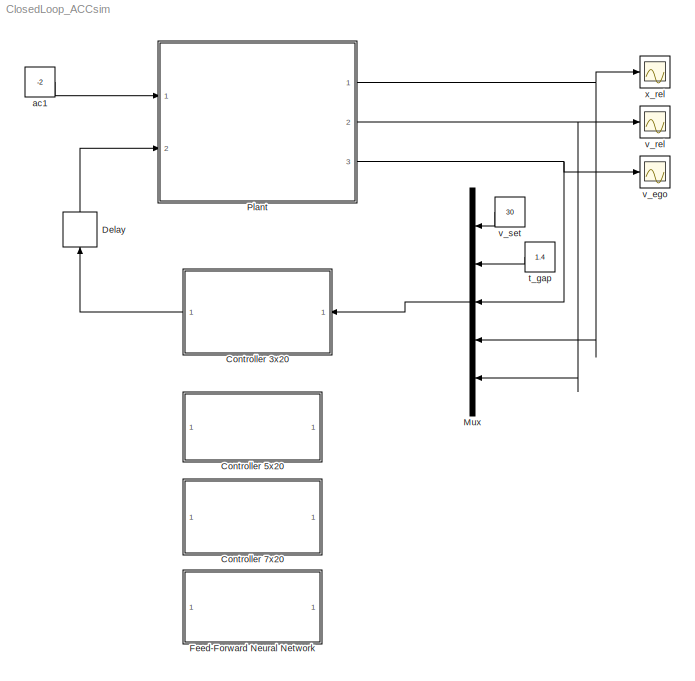
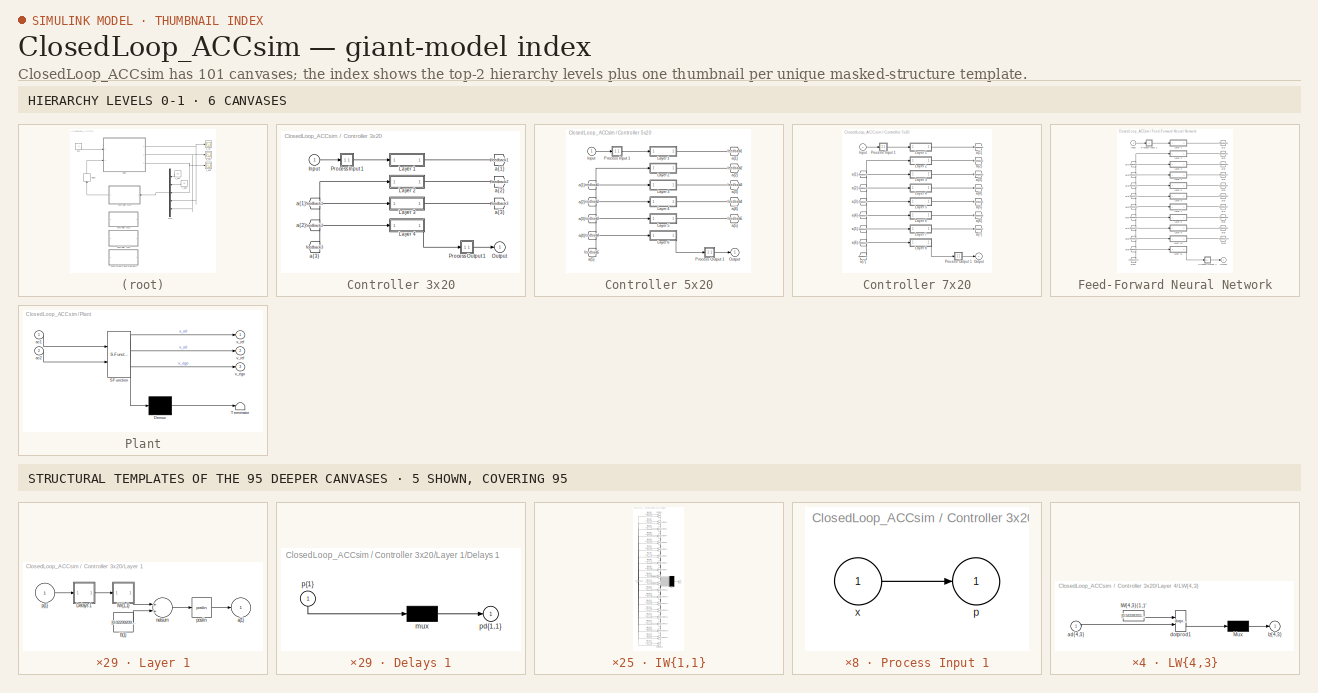
[diagram: thumbnail index - top-2 hierarchy levels (6 canvases) + 5 structural-template representatives of the remaining 95 canvases]
MODEL ClosedLoop_ACCsim
KIND model
BLOCK [SubSystem] Controller 3x20
  Ports = [1, 1]
  RequestExecContextInheritance = off
  SID = 5
BLOCK [From] Controller 3x20/ a{1} 
  GotoTag = feedback1
  SID = 7
BLOCK [From] Controller 3x20/ a{2} 
  GotoTag = feedback2
  SID = 8
BLOCK [From] Controller 3x20/ a{3} 
  GotoTag = feedback3
  SID = 9
BLOCK [Inport] Controller 3x20/Input
  IconDisplay = Port number
  PortDimensions = 5
  SID = 6
BLOCK [SubSystem] Controller 3x20/Layer 1
  Ports = [1, 1]
  RequestExecContextInheritance = off
  SID = 10
BLOCK [SubSystem] Controller 3x20/Layer 1/Delays 1
  Ports = [1, 1]
  RequestExecContextInheritance = off
  SID = 12
BLOCK [Mux] Controller 3x20/Layer 1/Delays 1/mux
  Inputs = 1
  Ports = [1, 1]
  SID = 14
BLOCK [Outport] Controller 3x20/Layer 1/Delays 1/pd{1,1}
  IconDisplay = Port number
  SID = 15
BLOCK [Inport] Controller 3x20/Layer 1/Delays 1/p{1}
  IconDisplay = Port number
  PortDimensions = 5
  SID = 13
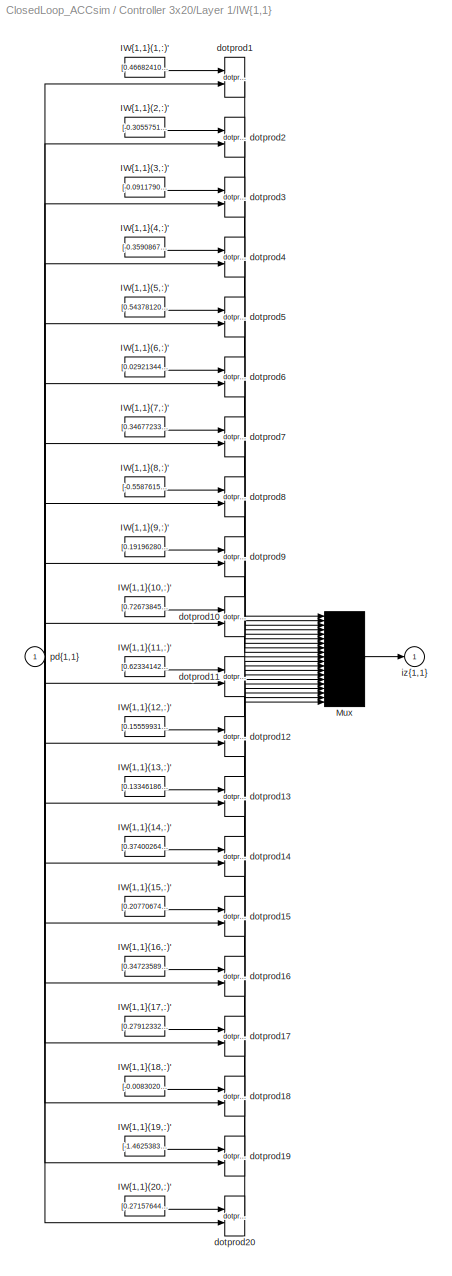
BLOCK [SubSystem] Controller 3x20/Layer 1/IW{1,1}
  Ports = [1, 1]
  RequestExecContextInheritance = off
  SID = 16
BLOCK [Constant] Controller 3x20/Layer 1/IW{1,1}/IW{1,1}(1,:)'
  SID = 18
  Value = [0.46682410703317500644260462649981491267681121826171875;-0.640602677568630429760787592385895550251007080078125;-0.239712385138784733751293742898269556462764739990234375;0.057320498849773360294790336411097086966037750244140625;-0.07522758859103580164617852688024868257343769073486328125]
BLOCK [Constant] Controller 3x20/Layer 1/IW{1,1}/IW{1,1}(10,:)'
  SID = 19
  Value = [0.7267384574545072695173075771890580654144287109375;-0.9162612532142648813504592908429913222789764404296875;-0.13481688446159101335553032185998745262622833251953125;-1.06587422066619108562690598773770034313201904296875;-0.9754512693635024600524729976314119994640350341796875]
BLOCK [Constant] Controller 3x20/Layer 1/IW{1,1}/IW{1,1}(11,:)'
  SID = 20
  Value = [0.62334142557317029353924908718909136950969696044921875;0.66229765746314528396254672770737670361995697021484375;0.2223375564388373193391856830203323625028133392333984375;-0.51700229253684437669136286785942502319812774658203125;-1.9575433046315351415245231692097149789333343505859375]
BLOCK [Constant] Controller 3x20/Layer 1/IW{1,1}/IW{1,1}(12,:)'
  SID = 21
  Value = [0.155599318365181371603966908878646790981292724609375;-0.253971968396632219455710810507298447191715240478515625;0.458175502631448627877119861295795999467372894287109375;-0.435443920455913957567872785148210823535919189453125;-0.793805571651535313293379658716730773448944091796875]
BLOCK [Constant] Controller 3x20/Layer 1/IW{1,1}/IW{1,1}(13,:)'
  SID = 22
  Value = [0.133461869536243227241101294566760770976543426513671875;0.326180182729974565969399691311991773545742034912109375;-0.576847591881870069840942960581742227077484130859375;0.495246972913024385842817309821839444339275360107421875;0.5078927304409746046331974866916425526142120361328125]
BLOCK [Constant] Controller 3x20/Layer 1/IW{1,1}/IW{1,1}(14,:)'
  SID = 23
  Value = [0.374002644064262479428606411602231673896312713623046875;0.7706618516669763163662310034851543605327606201171875;0.71319567797756866500691330656991340219974517822265625;0.6525403923143955342567323896219022572040557861328125;0.37208331795189142354729483486153185367584228515625]
BLOCK [Constant] Controller 3x20/Layer 1/IW{1,1}/IW{1,1}(15,:)'
  SID = 24
  Value = [0.2077067418890844174850229819639935158193111419677734375;-0.449444648342338382018823494945536367595195770263671875;-0.11380489518051521702357575804853695444762706756591796875;-0.6410158933647298606928188746678642928600311279296875;0.53798695885920688741776984898024238646030426025390625]
BLOCK [Constant] Controller 3x20/Layer 1/IW{1,1}/IW{1,1}(16,:)'
  SID = 25
  Value = [0.347235897045915231640123010947718285024166107177734375;0.98625891139768828708156434004195034503936767578125;0.266589759485856447884799536041100509464740753173828125;0.188963982655752482653355173169984482228755950927734375;0.1954787867282887503517230243232916109263896942138671875]
BLOCK [Constant] Controller 3x20/Layer 1/IW{1,1}/IW{1,1}(17,:)'
  SID = 26
  Value = [0.279123328583297969363030688327853567898273468017578125;0.666655065417355974233259985339827835559844970703125;0.52713841563393015743343994472525082528591156005859375;-0.8481291075977048787848389110877178609371185302734375;0.4737394859422729975761967580183409154415130615234375]
BLOCK [Constant] Controller 3x20/Layer 1/IW{1,1}/IW{1,1}(18,:)'
  SID = 27
  Value = [-0.0083020305618295396621331150299738510511815547943115234375;0.5851341685415494264788094369578175246715545654296875;-0.0766144546967286732552793182549066841602325439453125;-0.13656130699230739633520670395228080451488494873046875;0.07016258693908576649089781085422146134078502655029296875]
BLOCK [Constant] Controller 3x20/Layer 1/IW{1,1}/IW{1,1}(19,:)'
  SID = 28
  Value = [-1.4625383828395788210485761737800203263759613037109375;0.271127065475409267936157675649155862629413604736328125;1.478027644357682302000966956256888806819915771484375;0.0092577491840104934872623942965219612233340740203857421875;0.037849500944412285685647390209851437248289585113525390625]
BLOCK [Constant] Controller 3x20/Layer 1/IW{1,1}/IW{1,1}(2,:)'
  SID = 29
  Value = [-0.305575138937998980193100351243629120290279388427734375;-0.58983944398378629347945434346911497414112091064453125;0.376089928658027206065384007160901091992855072021484375;0.55617892872047269836599525660858489573001861572265625;-0.56861379597027583709945020018494687974452972412109375]
BLOCK [Constant] Controller 3x20/Layer 1/IW{1,1}/IW{1,1}(20,:)'
  SID = 30
  Value = [0.271576448093574562836494123985175974667072296142578125;0.09044083476655927211762531214844784699380397796630859375;-0.76351709125858235882589042375911958515644073486328125;0.77601411774369510876425692913471721112728118896484375;-0.9774920505001631898522873598267324268817901611328125]
BLOCK [Constant] Controller 3x20/Layer 1/IW{1,1}/IW{1,1}(3,:)'
  SID = 31
  Value = [-0.0911790804707556523656108993236557580530643463134765625;0.71965560312110909979566031324793584644794464111328125;0.1318527001059186520848243162618018686771392822265625;-0.131626435810072439647200326362508349120616912841796875;0.062384876920620106754977740592948975972831249237060546875]
BLOCK [Constant] Controller 3x20/Layer 1/IW{1,1}/IW{1,1}(4,:)'
  SID = 32
  Value = [-0.3590867333336149602729392427136190235614776611328125;-0.73058175789402690636364923193468712270259857177734375;0.85518340462828701387110186260542832314968109130859375;-0.60101479691198422816711399718769825994968414306640625;0.999941790687881582044838069123215973377227783203125]
BLOCK [Constant] Controller 3x20/Layer 1/IW{1,1}/IW{1,1}(5,:)'
  SID = 33
  Value = [0.5437812082437376570709375300793908536434173583984375;0.282498139828146810348385997713194228708744049072265625;0.74003986648470510001374123021378181874752044677734375;-0.1704400349539929582221020609722472727298736572265625;0.072339935371502683825184476518188603222370147705078125]
BLOCK [Constant] Controller 3x20/Layer 1/IW{1,1}/IW{1,1}(6,:)'
  SID = 34
  Value = [0.029213442379203168053347638988270773552358150482177734375;-0.1488864571629257838036863859088043682277202606201171875;0.52439876896643655701524266987689770758152008056640625;0.3688952203326880674438825735705904662609100341796875;0.72956244730967834133394944728934206068515777587890625]
BLOCK [Constant] Controller 3x20/Layer 1/IW{1,1}/IW{1,1}(7,:)'
  SID = 35
  Value = [0.346772331641130360235791840750607661902904510498046875;0.2353858968563766751458388171158730983734130859375;0.56718683744889963893598405775264836847782135009765625;-0.342802732435041834779809732935973443090915679931640625;-0.9447771846780785853781026162323541939258575439453125]
BLOCK [Constant] Controller 3x20/Layer 1/IW{1,1}/IW{1,1}(8,:)'
  SID = 36
  Value = [-0.55876158413841781058550850502797402441501617431640625;0.459199447556933149083846501525840722024440765380859375;-0.182288350823871792005803627034765668213367462158203125;0.54729139602803034136968562961556017398834228515625;-0.757160106478265593210608130902983248233795166015625]
BLOCK [Constant] Controller 3x20/Layer 1/IW{1,1}/IW{1,1}(9,:)'
  SID = 37
  Value = [0.1919628073383743138702328678846242837607860565185546875;-0.383562016478128209318043673192732967436313629150390625;0.60375408224534632406488299238844774663448333740234375;-0.63966244507239100602902226455626077950000762939453125;0.2170481449972334331288692510497639887034893035888671875]
BLOCK [Mux] Controller 3x20/Layer 1/IW{1,1}/Mux
  Inputs = 20
  Ports = [20, 1]
  SID = 38
BLOCK [Reference] Controller 3x20/Layer 1/IW{1,1}/dotprod1  REF=neural/Weight Functions/dotprod
  Ports = [2, 1]
  SID = 39
  SourceBlock = neural/Weight Functions/dotprod
  SourceProductBaseCode = NN
  SourceProductName = Neural Network Toolbox
  SourceType = DOTPROD
BLOCK [Reference] Controller 3x20/Layer 1/IW{1,1}/dotprod10  REF=neural/Weight Functions/dotprod
  Ports = [2, 1]
  SID = 40
  SourceBlock = neural/Weight Functions/dotprod
  SourceProductBaseCode = NN
  SourceProductName = Neural Network Toolbox
  SourceType = DOTPROD
BLOCK [Reference] Controller 3x20/Layer 1/IW{1,1}/dotprod11  REF=neural/Weight Functions/dotprod
  Ports = [2, 1]
  SID = 41
  SourceBlock = neural/Weight Functions/dotprod
  SourceProductBaseCode = NN
  SourceProductName = Neural Network Toolbox
  SourceType = DOTPROD
BLOCK [Reference] Controller 3x20/Layer 1/IW{1,1}/dotprod12  REF=neural/Weight Functions/dotprod
  Ports = [2, 1]
  SID = 42
  SourceBlock = neural/Weight Functions/dotprod
  SourceProductBaseCode = NN
  SourceProductName = Neural Network Toolbox
  SourceType = DOTPROD
BLOCK [Reference] Controller 3x20/Layer 1/IW{1,1}/dotprod13  REF=neural/Weight Functions/dotprod
  Ports = [2, 1]
  SID = 43
  SourceBlock = neural/Weight Functions/dotprod
  SourceProductBaseCode = NN
  SourceProductName = Neural Network Toolbox
  SourceType = DOTPROD
BLOCK [Reference] Controller 3x20/Layer 1/IW{1,1}/dotprod14  REF=neural/Weight Functions/dotprod
  Ports = [2, 1]
  SID = 44
  SourceBlock = neural/Weight Functions/dotprod
  SourceProductBaseCode = NN
  SourceProductName = Neural Network Toolbox
  SourceType = DOTPROD
BLOCK [Reference] Controller 3x20/Layer 1/IW{1,1}/dotprod15  REF=neural/Weight Functions/dotprod
  Ports = [2, 1]
  SID = 45
  SourceBlock = neural/Weight Functions/dotprod
  SourceProductBaseCode = NN
  SourceProductName = Neural Network Toolbox
  SourceType = DOTPROD
BLOCK [Reference] Controller 3x20/Layer 1/IW{1,1}/dotprod16  REF=neural/Weight Functions/dotprod
  Ports = [2, 1]
  SID = 46
  SourceBlock = neural/Weight Functions/dotprod
  SourceProductBaseCode = NN
  SourceProductName = Neural Network Toolbox
  SourceType = DOTPROD
BLOCK [Reference] Controller 3x20/Layer 1/IW{1,1}/dotprod17  REF=neural/Weight Functions/dotprod
  Ports = [2, 1]
  SID = 47
  SourceBlock = neural/Weight Functions/dotprod
  SourceProductBaseCode = NN
  SourceProductName = Neural Network Toolbox
  SourceType = DOTPROD
BLOCK [Reference] Controller 3x20/Layer 1/IW{1,1}/dotprod18  REF=neural/Weight Functions/dotprod
  Ports = [2, 1]
  SID = 48
  SourceBlock = neural/Weight Functions/dotprod
  SourceProductBaseCode = NN
  SourceProductName = Neural Network Toolbox
  SourceType = DOTPROD
BLOCK [Reference] Controller 3x20/Layer 1/IW{1,1}/dotprod19  REF=neural/Weight Functions/dotprod
  Ports = [2, 1]
  SID = 49
  SourceBlock = neural/Weight Functions/dotprod
  SourceProductBaseCode = NN
  SourceProductName = Neural Network Toolbox
  SourceType = DOTPROD
BLOCK [Reference] Controller 3x20/Layer 1/IW{1,1}/dotprod2  REF=neural/Weight Functions/dotprod
  Ports = [2, 1]
  SID = 50
  SourceBlock = neural/Weight Functions/dotprod
  SourceProductBaseCode = NN
  SourceProductName = Neural Network Toolbox
  SourceType = DOTPROD
BLOCK [Reference] Controller 3x20/Layer 1/IW{1,1}/dotprod20  REF=neural/Weight Functions/dotprod
  Ports = [2, 1]
  SID = 51
  SourceBlock = neural/Weight Functions/dotprod
  SourceProductBaseCode = NN
  SourceProductName = Neural Network Toolbox
  SourceType = DOTPROD
BLOCK [Reference] Controller 3x20/Layer 1/IW{1,1}/dotprod3  REF=neural/Weight Functions/dotprod
  Ports = [2, 1]
  SID = 52
  SourceBlock = neural/Weight Functions/dotprod
  SourceProductBaseCode = NN
  SourceProductName = Neural Network Toolbox
  SourceType = DOTPROD
BLOCK [Reference] Controller 3x20/Layer 1/IW{1,1}/dotprod4  REF=neural/Weight Functions/dotprod
  Ports = [2, 1]
  SID = 53
  SourceBlock = neural/Weight Functions/dotprod
  SourceProductBaseCode = NN
  SourceProductName = Neural Network Toolbox
  SourceType = DOTPROD
BLOCK [Reference] Controller 3x20/Layer 1/IW{1,1}/dotprod5  REF=neural/Weight Functions/dotprod
  Ports = [2, 1]
  SID = 54
  SourceBlock = neural/Weight Functions/dotprod
  SourceProductBaseCode = NN
  SourceProductName = Neural Network Toolbox
  SourceType = DOTPROD
BLOCK [Reference] Controller 3x20/Layer 1/IW{1,1}/dotprod6  REF=neural/Weight Functions/dotprod
  Ports = [2, 1]
  SID = 55
  SourceBlock = neural/Weight Functions/dotprod
  SourceProductBaseCode = NN
  SourceProductName = Neural Network Toolbox
  SourceType = DOTPROD
BLOCK [Reference] Controller 3x20/Layer 1/IW{1,1}/dotprod7  REF=neural/Weight Functions/dotprod
  Ports = [2, 1]
  SID = 56
  SourceBlock = neural/Weight Functions/dotprod
  SourceProductBaseCode = NN
  SourceProductName = Neural Network Toolbox
  SourceType = DOTPROD
BLOCK [Reference] Controller 3x20/Layer 1/IW{1,1}/dotprod8  REF=neural/Weight Functions/dotprod
  Ports = [2, 1]
  SID = 57
  SourceBlock = neural/Weight Functions/dotprod
  SourceProductBaseCode = NN
  SourceProductName = Neural Network Toolbox
  SourceType = DOTPROD
BLOCK [Reference] Controller 3x20/Layer 1/IW{1,1}/dotprod9  REF=neural/Weight Functions/dotprod
  Ports = [2, 1]
  SID = 58
  SourceBlock = neural/Weight Functions/dotprod
  SourceProductBaseCode = NN
  SourceProductName = Neural Network Toolbox
  SourceType = DOTPROD
BLOCK [Outport] Controller 3x20/Layer 1/IW{1,1}/iz{1,1}
  IconDisplay = Port number
  SID = 59
BLOCK [Inport] Controller 3x20/Layer 1/IW{1,1}/pd{1,1}
  IconDisplay = Port number
  PortDimensions = 5
  SID = 17
BLOCK [Outport] Controller 3x20/Layer 1/a{1}
  IconDisplay = Port number
  InitialOutput = [0;0;0;0;0;0;0;0;0;0;0;0;0;0;0;0;0;0;0;0]
  SID = 63
BLOCK [Constant] Controller 3x20/Layer 1/b{1}
  SID = 60
  Value = [0.0229920973022715545430738615095833665691316127777099609375;0.9157833058103210799316684642690233886241912841796875;0.6830303953218164192406902657239697873592376708984375;0.88296710983490156454678299269289709627628326416015625;0.9406548178119147340936478940420784056186676025390625;-0.271747614152229866046894812825485132634639739990234375;-0.3509296660416783009139862770098261535167694091796875;0.5...<+724ch>
BLOCK [Sum] Controller 3x20/Layer 1/netsum
  Inputs = 2
  Ports = [2, 1]
  SID = 61
BLOCK [Reference] Controller 3x20/Layer 1/poslin  REF=neural/Transfer Functions/poslin
  Ports = [1, 1]
  SID = 62
  SourceBlock = neural/Transfer Functions/poslin
  SourceProductBaseCode = NN
  SourceProductName = Neural Network Toolbox
  SourceType = POSLIN
BLOCK [Inport] Controller 3x20/Layer 1/p{1}
  IconDisplay = Port number
  PortDimensions = 5
  SID = 11
BLOCK [SubSystem] Controller 3x20/Layer 2
  Ports = [1, 1]
  RequestExecContextInheritance = off
  SID = 64
BLOCK [SubSystem] Controller 3x20/Layer 2/Delays 1
  Ports = [1, 1]
  RequestExecContextInheritance = off
  SID = 66
BLOCK [Mux] Controller 3x20/Layer 2/Delays 1/mux
  Inputs = 1
  Ports = [1, 1]
  SID = 68
BLOCK [Outport] Controller 3x20/Layer 2/Delays 1/pd{2,1}
  IconDisplay = Port number
  SID = 69
BLOCK [Inport] Controller 3x20/Layer 2/Delays 1/p{2}
  IconDisplay = Port number
  PortDimensions = 20
  SID = 67
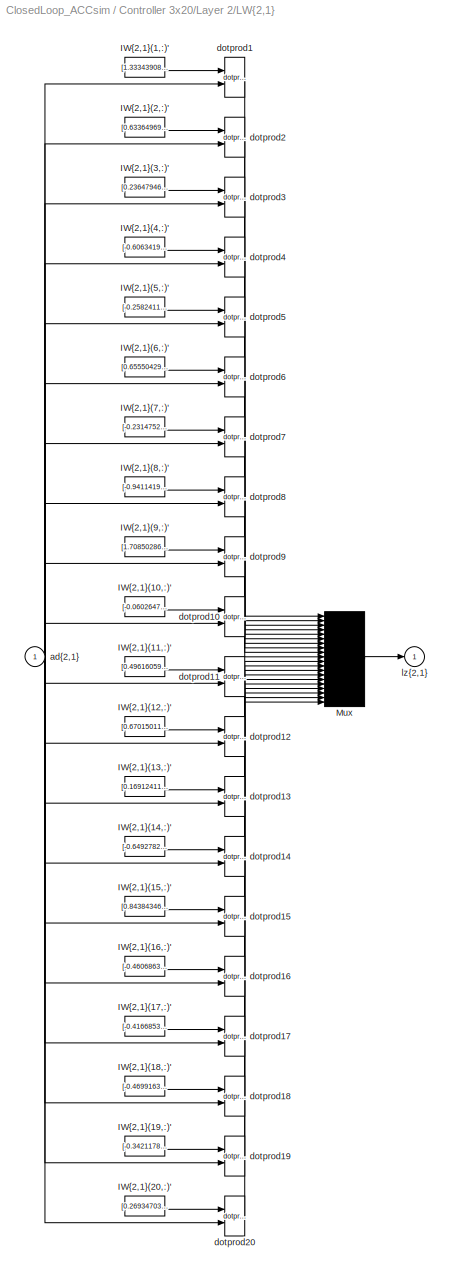
BLOCK [SubSystem] Controller 3x20/Layer 2/LW{2,1}
  Ports = [1, 1]
  RequestExecContextInheritance = off
  SID = 70
BLOCK [Constant] Controller 3x20/Layer 2/LW{2,1}/IW{2,1}(1,:)'
  SID = 72
  Value = [1.333439080567838885826859041117131710052490234375;-1.137188285582368507675710134208202362060546875;0.6832871121230217337227941243327222764492034912109375;0.28315166829605187270857413750491105020046234130859375;0.347456221178380986192024693082203157246112823486328125;-0.457131048374344761686671745337662287056446075439453125;-0.1938372107827908974453379187252721749246120452880859375;0.352731037010...<+711ch>
BLOCK [Constant] Controller 3x20/Layer 2/LW{2,1}/IW{2,1}(10,:)'
  SID = 73
  Value = [-0.060264747551056117857992688868762343190610408782958984375;-0.03443622676466240317694200712139718234539031982421875;-0.0834435348737818938236188159862649627029895782470703125;0.78185636008220316117700576796778477728366851806640625;-0.3010159440229400740207665876368992030620574951171875;0.660098124316974566028193294187076389789581298828125;-1.238648268456352230515449264203198254108428955078125;0...<+728ch>
BLOCK [Constant] Controller 3x20/Layer 2/LW{2,1}/IW{2,1}(11,:)'
  SID = 74
  Value = [0.496160594051641867796575979809858836233615875244140625;0.5300586200034846928730303261545486748218536376953125;-0.382358926784281794031272738720872439444065093994140625;-0.17774366223049808954925765647203661501407623291015625;-0.3440119008129995936684508706093765795230865478515625;-0.49320829841539126636718037843820638954639434814453125;-1.7210530397020724624468357433215714991092681884765625;0.1...<+727ch>
BLOCK [Constant] Controller 3x20/Layer 2/LW{2,1}/IW{2,1}(12,:)'
  SID = 75
  Value = [0.67015011186726691772008734915289096534252166748046875;0.12425596162781422926446595056404476054012775421142578125;-0.9347782901786778619879214602406136691570281982421875;0.288799070618602271576236262262682430446147918701171875;-0.06480363140204181693349028137163259088993072509765625;-0.178978703859594967529034192921244539320468902587890625;-0.06815916289758292001543793503515189513564109802246093...<+736ch>
BLOCK [Constant] Controller 3x20/Layer 2/LW{2,1}/IW{2,1}(13,:)'
  SID = 76
  Value = [0.1691241110038746164878631361716543324291706085205078125;-0.8764137075424631717623924487270414829254150390625;-0.130398001704876864703663841282832436263561248779296875;1.20756017176803442936261490103788673877716064453125;0.37824997000727667018082911454257555305957794189453125;1.394913014969672904186381856561638414859771728515625;1.49459213402200941089859043131582438945770263671875;0.410530268410...<+723ch>
BLOCK [Constant] Controller 3x20/Layer 2/LW{2,1}/IW{2,1}(14,:)'
  SID = 77
  Value = [-0.64927820105385813942433514966978691518306732177734375;0.270695131503176089626805378429708071053028106689453125;-0.0295265886627258111740701451708446256816387176513671875;0.0196925401339308747683531919392407871782779693603515625;-0.05574981647474817891829701466122060082852840423583984375;-1.1834196489506236815714146359823644161224365234375;-0.6626829477319147176928026965470053255558013916015625...<+717ch>
BLOCK [Constant] Controller 3x20/Layer 2/LW{2,1}/IW{2,1}(15,:)'
  SID = 78
  Value = [0.8438434628330266917828339501284062862396240234375;-0.84228095928022461702511236580903641879558563232421875;1.1509486007948270813727731365361250936985015869140625;-0.1409442137938917427586460462407558225095272064208984375;-0.364761091889174660085615187199437059462070465087890625;-0.270942613592798142718720555421896278858184814453125;0.268401030034256471434872537429328076541423797607421875;0.3080...<+731ch>
BLOCK [Constant] Controller 3x20/Layer 2/LW{2,1}/IW{2,1}(16,:)'
  SID = 79
  Value = [-0.4606863416887632123319917809567414224147796630859375;0.469033261425410408218539259905810467898845672607421875;-0.0168984931987460722246918720657049561850726604461669921875;0.82595657971002311992236855076043866574764251708984375;0.45002755509523340027300264409859664738178253173828125;-0.76878571441156717813925070004188455641269683837890625;0.48533486409982246057026600283279549330472946166992187...<+720ch>
BLOCK [Constant] Controller 3x20/Layer 2/LW{2,1}/IW{2,1}(17,:)'
  SID = 80
  Value = [-0.416685336708236431224605667011928744614124298095703125;-0.54401917210900041510512892273254692554473876953125;-0.8858947583452689844563110455055721104145050048828125;0.56928690056683783904389883900876156985759735107421875;0.23304361950729857166919600786059163510799407958984375;-0.76560001560452561886194189355592243373394012451171875;-0.19350174750329929285186381093808449804782867431640625;-0.41...<+721ch>
BLOCK [Constant] Controller 3x20/Layer 2/LW{2,1}/IW{2,1}(18,:)'
  SID = 81
  Value = [-0.46991639331275603108650784633937291800975799560546875;0.99894286061422798983500115355127491056919097900390625;1.0955962778345382790945450324215926229953765869140625;-1.39009851430262099114543161704204976558685302734375;0.97239192854803502275018445288878865540027618408203125;-0.99122069918419863920888701613876037299633026123046875;-1.0303217445324988066346350024105049669742584228515625;1.588912...<+725ch>
BLOCK [Constant] Controller 3x20/Layer 2/LW{2,1}/IW{2,1}(19,:)'
  SID = 82
  Value = [-0.3421178088571548148166812097770161926746368408203125;-0.290404369266545059335982159609557129442691802978515625;0.10471175096750429123204639836330898106098175048828125;-0.467694080525061561814936794689856469631195068359375;0.7553188982367882164936645494890399277210235595703125;-0.042095964310487683779360423841353622265160083770751953125;-0.53346052890399964230283558208611793816089630126953125;0...<+720ch>
BLOCK [Constant] Controller 3x20/Layer 2/LW{2,1}/IW{2,1}(2,:)'
  SID = 83
  Value = [0.6336496923143555282109673498780466616153717041015625;1.8102659630058515194406254522618837654590606689453125;-0.544836938800278058891990440315566956996917724609375;0.68606615856758124127878772924304939806461334228515625;0.06324242390138774816410460744009469635784626007080078125;0.054041428223748189108022188520408235490322113037109375;-1.754748747572351330603623864590190351009368896484375;0.73761...<+726ch>
BLOCK [Constant] Controller 3x20/Layer 2/LW{2,1}/IW{2,1}(20,:)'
  SID = 84
  Value = [0.26934703267098047962946338884648866951465606689453125;-0.28911310049569471924968411258305422961711883544921875;0.87419044525479339124984790032613091170787811279296875;-0.2832189769840649518073405488394200801849365234375;0.1613252764721353205157328147834050469100475311279296875;-0.3043984431133901491506321690394543111324310302734375;-0.454544907461827241146323785869753919541835784912109375;-0.71...<+720ch>
BLOCK [Constant] Controller 3x20/Layer 2/LW{2,1}/IW{2,1}(3,:)'
  SID = 85
  Value = [0.236479467760230821493649955300497822463512420654296875;0.12149503624890072017716846630719373933970928192138671875;-0.04728789730084580200664134963517426513135433197021484375;-0.94338850832467058271646465072990395128726959228515625;-0.44240831657559642753341222487506456673145294189453125;-0.6923718701777108464057164383120834827423095703125;-0.17539753089754078763107258964737411588430404663085937...<+740ch>
BLOCK [Constant] Controller 3x20/Layer 2/LW{2,1}/IW{2,1}(4,:)'
  SID = 86
  Value = [-0.60634192371021045087076117852120660245418548583984375;0.342547966376992862880257462165900506079196929931640625;1.382023489824591333530179326771758496761322021484375;-0.3259070595693296379380399230285547673702239990234375;-0.56384678467995741346641125346650369465351104736328125;-0.78193083148893938183476848280406557023525238037109375;1.581910170616654287556457347818650305271148681640625;0.49354...<+729ch>
BLOCK [Constant] Controller 3x20/Layer 2/LW{2,1}/IW{2,1}(5,:)'
  SID = 87
  Value = [-0.258241182604964036872985388981760479509830474853515625;-0.44010637835552934848948325452511198818683624267578125;-0.1580982973764944177208491282726754434406757354736328125;-0.1922357862049814125615654347711824811995029449462890625;1.8831993036840801725162464208551682531833648681640625;0.1213707399788729046630209040813497267663478851318359375;-1.85900627072990065613566912361420691013336181640625...<+733ch>
BLOCK [Constant] Controller 3x20/Layer 2/LW{2,1}/IW{2,1}(6,:)'
  SID = 88
  Value = [0.6555042950458609407604626539978198707103729248046875;0.94621824213315253171430185830104164779186248779296875;0.6218909793007376674012220973963849246501922607421875;-0.327228727125427332200757746250019408762454986572265625;-1.3160249137585520173843178781680762767791748046875;-0.08814700510794611088005723331662011332809925079345703125;0.0954113383008150239827926952784764580428600311279296875;0.43...<+739ch>
BLOCK [Constant] Controller 3x20/Layer 2/LW{2,1}/IW{2,1}(7,:)'
  SID = 89
  Value = [-0.2314752271826676643939890709589235484600067138671875;0.1615209927760534458496266552174347452819347381591796875;0.1908200910290640262001460314422729425132274627685546875;0.993957027218366651055703187012113630771636962890625;-0.10420181740359703292941873087329440750181674957275390625;0.5774617836893176647805603352026082575321197509765625;0.67604809646980534854066036132280714809894561767578125;0....<+722ch>
BLOCK [Constant] Controller 3x20/Layer 2/LW{2,1}/IW{2,1}(8,:)'
  SID = 90
  Value = [-0.9411419684371711280590488968300633132457733154296875;0.2460099817853773906950465288900886662304401397705078125;0.31079661322506091369888281406019814312458038330078125;-0.167254826710808213174885850094142369925975799560546875;-0.69666768062773776204466003036941401660442352294921875;0.2252167357886773746411535057632136158645153045654296875;0.554200566493860957706374392728321254253387451171875;-0...<+731ch>
BLOCK [Constant] Controller 3x20/Layer 2/LW{2,1}/IW{2,1}(9,:)'
  SID = 91
  Value = [1.7085028678732456786093507616897113621234893798828125;-0.9837198632607340176292609612573869526386260986328125;0.418784499043790170436096786943380720913410186767578125;-0.394761006851188922528450575555325485765933990478515625;0.650659398791810783535538575961254537105560302734375;-0.0223919688248644908890039317839182331226766109466552734375;-1.880943074402015913193508822587318718433380126953125;0....<+750ch>
BLOCK [Mux] Controller 3x20/Layer 2/LW{2,1}/Mux
  Inputs = 20
  Ports = [20, 1]
  SID = 92
BLOCK [Inport] Controller 3x20/Layer 2/LW{2,1}/ad{2,1}
  IconDisplay = Port number
  PortDimensions = 20
  SID = 71
BLOCK [Reference] Controller 3x20/Layer 2/LW{2,1}/dotprod1  REF=neural/Weight Functions/dotprod
  Ports = [2, 1]
  SID = 93
  SourceBlock = neural/Weight Functions/dotprod
  SourceProductBaseCode = NN
  SourceProductName = Neural Network Toolbox
  SourceType = DOTPROD
BLOCK [Reference] Controller 3x20/Layer 2/LW{2,1}/dotprod10  REF=neural/Weight Functions/dotprod
  Ports = [2, 1]
  SID = 94
  SourceBlock = neural/Weight Functions/dotprod
  SourceProductBaseCode = NN
  SourceProductName = Neural Network Toolbox
  SourceType = DOTPROD
BLOCK [Reference] Controller 3x20/Layer 2/LW{2,1}/dotprod11  REF=neural/Weight Functions/dotprod
  Ports = [2, 1]
  SID = 95
  SourceBlock = neural/Weight Functions/dotprod
  SourceProductBaseCode = NN
  SourceProductName = Neural Network Toolbox
  SourceType = DOTPROD
BLOCK [Reference] Controller 3x20/Layer 2/LW{2,1}/dotprod12  REF=neural/Weight Functions/dotprod
  Ports = [2, 1]
  SID = 96
  SourceBlock = neural/Weight Functions/dotprod
  SourceProductBaseCode = NN
  SourceProductName = Neural Network Toolbox
  SourceType = DOTPROD
BLOCK [Reference] Controller 3x20/Layer 2/LW{2,1}/dotprod13  REF=neural/Weight Functions/dotprod
  Ports = [2, 1]
  SID = 97
  SourceBlock = neural/Weight Functions/dotprod
  SourceProductBaseCode = NN
  SourceProductName = Neural Network Toolbox
  SourceType = DOTPROD
BLOCK [Reference] Controller 3x20/Layer 2/LW{2,1}/dotprod14  REF=neural/Weight Functions/dotprod
  Ports = [2, 1]
  SID = 98
  SourceBlock = neural/Weight Functions/dotprod
  SourceProductBaseCode = NN
  SourceProductName = Neural Network Toolbox
  SourceType = DOTPROD
BLOCK [Reference] Controller 3x20/Layer 2/LW{2,1}/dotprod15  REF=neural/Weight Functions/dotprod
  Ports = [2, 1]
  SID = 99
  SourceBlock = neural/Weight Functions/dotprod
  SourceProductBaseCode = NN
  SourceProductName = Neural Network Toolbox
  SourceType = DOTPROD
BLOCK [Reference] Controller 3x20/Layer 2/LW{2,1}/dotprod16  REF=neural/Weight Functions/dotprod
  Ports = [2, 1]
  SID = 100
  SourceBlock = neural/Weight Functions/dotprod
  SourceProductBaseCode = NN
  SourceProductName = Neural Network Toolbox
  SourceType = DOTPROD
BLOCK [Reference] Controller 3x20/Layer 2/LW{2,1}/dotprod17  REF=neural/Weight Functions/dotprod
  Ports = [2, 1]
  SID = 101
  SourceBlock = neural/Weight Functions/dotprod
  SourceProductBaseCode = NN
  SourceProductName = Neural Network Toolbox
  SourceType = DOTPROD
BLOCK [Reference] Controller 3x20/Layer 2/LW{2,1}/dotprod18  REF=neural/Weight Functions/dotprod
  Ports = [2, 1]
  SID = 102
  SourceBlock = neural/Weight Functions/dotprod
  SourceProductBaseCode = NN
  SourceProductName = Neural Network Toolbox
  SourceType = DOTPROD
BLOCK [Reference] Controller 3x20/Layer 2/LW{2,1}/dotprod19  REF=neural/Weight Functions/dotprod
  Ports = [2, 1]
  SID = 103
  SourceBlock = neural/Weight Functions/dotprod
  SourceProductBaseCode = NN
  SourceProductName = Neural Network Toolbox
  SourceType = DOTPROD
BLOCK [Reference] Controller 3x20/Layer 2/LW{2,1}/dotprod2  REF=neural/Weight Functions/dotprod
  Ports = [2, 1]
  SID = 104
  SourceBlock = neural/Weight Functions/dotprod
  SourceProductBaseCode = NN
  SourceProductName = Neural Network Toolbox
  SourceType = DOTPROD
BLOCK [Reference] Controller 3x20/Layer 2/LW{2,1}/dotprod20  REF=neural/Weight Functions/dotprod
  Ports = [2, 1]
  SID = 105
  SourceBlock = neural/Weight Functions/dotprod
  SourceProductBaseCode = NN
  SourceProductName = Neural Network Toolbox
  SourceType = DOTPROD
BLOCK [Reference] Controller 3x20/Layer 2/LW{2,1}/dotprod3  REF=neural/Weight Functions/dotprod
  Ports = [2, 1]
  SID = 106
  SourceBlock = neural/Weight Functions/dotprod
  SourceProductBaseCode = NN
  SourceProductName = Neural Network Toolbox
  SourceType = DOTPROD
BLOCK [Reference] Controller 3x20/Layer 2/LW{2,1}/dotprod4  REF=neural/Weight Functions/dotprod
  Ports = [2, 1]
  SID = 107
  SourceBlock = neural/Weight Functions/dotprod
  SourceProductBaseCode = NN
  SourceProductName = Neural Network Toolbox
  SourceType = DOTPROD
BLOCK [Reference] Controller 3x20/Layer 2/LW{2,1}/dotprod5  REF=neural/Weight Functions/dotprod
  Ports = [2, 1]
  SID = 108
  SourceBlock = neural/Weight Functions/dotprod
  SourceProductBaseCode = NN
  SourceProductName = Neural Network Toolbox
  SourceType = DOTPROD
BLOCK [Reference] Controller 3x20/Layer 2/LW{2,1}/dotprod6  REF=neural/Weight Functions/dotprod
  Ports = [2, 1]
  SID = 109
  SourceBlock = neural/Weight Functions/dotprod
  SourceProductBaseCode = NN
  SourceProductName = Neural Network Toolbox
  SourceType = DOTPROD
BLOCK [Reference] Controller 3x20/Layer 2/LW{2,1}/dotprod7  REF=neural/Weight Functions/dotprod
  Ports = [2, 1]
  SID = 110
  SourceBlock = neural/Weight Functions/dotprod
  SourceProductBaseCode = NN
  SourceProductName = Neural Network Toolbox
  SourceType = DOTPROD
BLOCK [Reference] Controller 3x20/Layer 2/LW{2,1}/dotprod8  REF=neural/Weight Functions/dotprod
  Ports = [2, 1]
  SID = 111
  SourceBlock = neural/Weight Functions/dotprod
  SourceProductBaseCode = NN
  SourceProductName = Neural Network Toolbox
  SourceType = DOTPROD
BLOCK [Reference] Controller 3x20/Layer 2/LW{2,1}/dotprod9  REF=neural/Weight Functions/dotprod
  Ports = [2, 1]
  SID = 112
  SourceBlock = neural/Weight Functions/dotprod
  SourceProductBaseCode = NN
  SourceProductName = Neural Network Toolbox
  SourceType = DOTPROD
BLOCK [Outport] Controller 3x20/Layer 2/LW{2,1}/lz{2,1}
  IconDisplay = Port number
  SID = 113
BLOCK [Inport] Controller 3x20/Layer 2/a{1} 
  IconDisplay = Port number
  PortDimensions = 20
  SID = 65
BLOCK [Outport] Controller 3x20/Layer 2/a{2}
  IconDisplay = Port number
  InitialOutput = [0;0;0;0;0;0;0;0;0;0;0;0;0;0;0;0;0;0;0;0]
  SID = 117
BLOCK [Constant] Controller 3x20/Layer 2/b{2}
  SID = 114
  Value = [-0.82248501333915713384925538775860331952571868896484375;-0.4742796893533733904035898376605473458766937255859375;-0.6593711991318158549546524227480404078960418701171875;0.09373701089581905343539602881719474680721759796142578125;-0.630748499052626865335469119600020349025726318359375;-0.025495619246465185681049803179121227003633975982666015625;0.45734136614098408468720435848808847367763519287109375...<+736ch>
BLOCK [Sum] Controller 3x20/Layer 2/netsum
  Inputs = 2
  Ports = [2, 1]
  SID = 115
BLOCK [Reference] Controller 3x20/Layer 2/poslin  REF=neural/Transfer Functions/poslin
  Ports = [1, 1]
  SID = 116
  SourceBlock = neural/Transfer Functions/poslin
  SourceProductBaseCode = NN
  SourceProductName = Neural Network Toolbox
  SourceType = POSLIN
BLOCK [SubSystem] Controller 3x20/Layer 3
  Ports = [1, 1]
  RequestExecContextInheritance = off
  SID = 118
BLOCK [SubSystem] Controller 3x20/Layer 3/Delays 1
  Ports = [1, 1]
  RequestExecContextInheritance = off
  SID = 120
BLOCK [Mux] Controller 3x20/Layer 3/Delays 1/mux
  Inputs = 1
  Ports = [1, 1]
  SID = 122
BLOCK [Outport] Controller 3x20/Layer 3/Delays 1/pd{3,2}
  IconDisplay = Port number
  SID = 123
BLOCK [Inport] Controller 3x20/Layer 3/Delays 1/p{3}
  IconDisplay = Port number
  PortDimensions = 20
  SID = 121
BLOCK [SubSystem] Controller 3x20/Layer 3/LW{3,2}
  Ports = [1, 1]
  RequestExecContextInheritance = off
  SID = 124
BLOCK [Constant] Controller 3x20/Layer 3/LW{3,2}/IW{3,2}(1,:)'
  SID = 126
  Value = [-0.6572490835838424860781969982781447470188140869140625;-0.6255051856811928434609626492601819336414337158203125;0.7138925791644841201133431241032667458057403564453125;-0.3723702453683419566488055352238006889820098876953125;-0.07971490387827540047283036983571946620941162109375;-0.65640747711532743124962507863529026508331298828125;-0.2690048378672542650491550375591032207012176513671875;-0.463316062...<+706ch>
BLOCK [Constant] Controller 3x20/Layer 3/LW{3,2}/IW{3,2}(10,:)'
  SID = 127
  Value = [0.6544557300415767553403156853164546191692352294921875;0.2591825251694721554684974762494675815105438232421875;0.176182609971736681142573388569871895015239715576171875;-0.8953325596255290452774033838068135082721710205078125;0.45640940341338309682583940229960717260837554931640625;0.933483332578992186512323314673267304897308349609375;-1.10457152061479746407712809741497039794921875;-0.396315148382669...<+715ch>
BLOCK [Constant] Controller 3x20/Layer 3/LW{3,2}/IW{3,2}(11,:)'
  SID = 128
  Value = [1.5885187782445508997142269436153583228588104248046875;0.296700677506267884719903804580098949372768402099609375;0.34612872347322454213980336135136894881725311279296875;0.5240298797655993379152050692937336862087249755859375;-1.1081239216036282702049220461049117147922515869140625;-0.398368868377601492714035202880040742456912994384765625;-0.30130183554730527450971067082718946039676666259765625;-0.45...<+728ch>
BLOCK [Constant] Controller 3x20/Layer 3/LW{3,2}/IW{3,2}(12,:)'
  SID = 129
  Value = [2.212911137540615857943748778779990971088409423828125;-1.2694477335925766769975098213762976229190826416015625;-0.1222660688457459787770176262711174786090850830078125;-0.8603003344741451119404018754721619188785552978515625;-0.9620856083367834710173838175251148641109466552734375;1.301617023810063500377509626559913158416748046875;-0.252520635917495239741725754356593824923038482666015625;0.5525697437...<+722ch>
BLOCK [Constant] Controller 3x20/Layer 3/LW{3,2}/IW{3,2}(13,:)'
  SID = 130
  Value = [-1.042718108483208450110168996616266667842864990234375;-0.8613303221632993000866918009705841541290283203125;-0.2417252058043326823355556598471594043076038360595703125;-0.16232074779385552432131589739583432674407958984375;-0.203767286554848159330077805861947126686573028564453125;-1.4220677385125000125043470688979141414165496826171875;1.10031701568942263946837556432001292705535888671875;0.000337690...<+743ch>
BLOCK [Constant] Controller 3x20/Layer 3/LW{3,2}/IW{3,2}(14,:)'
  SID = 131
  Value = [-0.443831191764445076586298455367796123027801513671875;0.5932009634723567348402184506994672119617462158203125;-0.70955289956560896325044041077489964663982391357421875;-1.0335358336676581103574790176935493946075439453125;1.2154064850418262455633566787582822144031524658203125;-0.8744055482936874401644899990060366690158843994140625;0.28376659519220936989114534299005754292011260986328125;0.2178531729...<+715ch>
BLOCK [Constant] Controller 3x20/Layer 3/LW{3,2}/IW{3,2}(15,:)'
  SID = 132
  Value = [-0.7399868441076697944680518048699013888835906982421875;-1.14061371754811791134898157906718552112579345703125;0.94301873410818448650871914651361294090747833251953125;0.9965085864985330221799131322768516838550567626953125;0.343987369336001602704300239565782248973846435546875;-0.78263968844892384257860840079956687986850738525390625;1.392429089341197023799168164259754121303558349609375;-0.4807449646...<+741ch>
BLOCK [Constant] Controller 3x20/Layer 3/LW{3,2}/IW{3,2}(16,:)'
  SID = 133
  Value = [0.3704225060581214368227165323332883417606353759765625;-0.78455486118771433634577761040418408811092376708984375;-0.2799106675396048071746690766303800046443939208984375;-0.362070662841715018576138618300319649279117584228515625;0.950732840479329599503444114816375076770782470703125;0.362425989975534157405689938968862406909465789794921875;-0.4016556859090993913952161165070720016956329345703125;0.4696...<+731ch>
BLOCK [Constant] Controller 3x20/Layer 3/LW{3,2}/IW{3,2}(17,:)'
  SID = 134
  Value = [1.1995319038325387150933920565876178443431854248046875;0.510223255634176364736731557059101760387420654296875;0.80747187107429707619843384236446581780910491943359375;0.2443651001589912385991709697918849997222423553466796875;0.407518046582067083871692148022702895104885101318359375;-0.08124576029633977236610320460385992191731929779052734375;0.4465053437468118335829103671130724251270294189453125;-0.6...<+722ch>
BLOCK [Constant] Controller 3x20/Layer 3/LW{3,2}/IW{3,2}(18,:)'
  SID = 135
  Value = [-1.3117539556463408967346140343579463660717010498046875;1.5597124021497135171188119784346781671047210693359375;-0.93005481440497905776254583543050102889537811279296875;-0.78904295724333228800873030195361934602260589599609375;1.634922694179330004971006928826682269573211669921875;1.036093843273450776365507408627308905124664306640625;-0.497489679504529547227065222614328376948833465576171875;0.910450...<+717ch>
BLOCK [Constant] Controller 3x20/Layer 3/LW{3,2}/IW{3,2}(19,:)'
  SID = 136
  Value = [-0.65986835172042879182896513157174922525882720947265625;0.348492220310416322970326064023538492619991302490234375;-0.1185962168602206212586480660320376046001911163330078125;-0.3556414294547256549350322529789991676807403564453125;0.396755085824330888666366945471963845193386077880859375;-0.3672997540005649153016520358505658805370330810546875;-0.8382780320395120110532616308773867785930633544921875;1...<+725ch>
BLOCK [Constant] Controller 3x20/Layer 3/LW{3,2}/IW{3,2}(2,:)'
  SID = 137
  Value = [0.144828366092049354296733554292586632072925567626953125;1.42913491434660411272261626436375081539154052734375;0.2992468396426115617714458494447171688079833984375;1.035176156199505204114075240795500576496124267578125;-0.8702941448607062202569295550347305834293365478515625;-0.53770070163347172265133622204302810132503509521484375;1.456667802981273407425533150671981275081634521484375;0.52255127510476...<+700ch>
BLOCK [Constant] Controller 3x20/Layer 3/LW{3,2}/IW{3,2}(20,:)'
  SID = 138
  Value = [-0.480008631007267372314828435264644213020801544189453125;1.029916202612870979038461882737465202808380126953125;-0.745775735626943880873795933439396321773529052734375;0.40560446791679538591779419220983982086181640625;0.08614983051211523579215878498871461488306522369384765625;0.4944639348151740332326653515337966382503509521484375;-0.655474763630369050559920651721768081188201904296875;-0.6206434092...<+716ch>
BLOCK [Constant] Controller 3x20/Layer 3/LW{3,2}/IW{3,2}(3,:)'
  SID = 139
  Value = [0.3757927288594800074861268512904644012451171875;1.3366215707249349264884585863910615444183349609375;0.239733188041607092610973950286279432475566864013671875;0.5826089364591167107931823920807801187038421630859375;-1.5784587681107928869295164986397139728069305419921875;0.90748091484971837861195353980292566120624542236328125;-0.362210691301182163837069083456299267709255218505859375;0.44733190710766...<+738ch>
BLOCK [Constant] Controller 3x20/Layer 3/LW{3,2}/IW{3,2}(4,:)'
  SID = 140
  Value = [-1.0101847867222744081772134450147859752178192138671875;-0.2134986389508247983659572355463751591742038726806640625;-0.04203441199530609517776014172341092489659786224365234375;0.3272512635640516531765342733706347644329071044921875;0.224421902890638069738571402922389097511768341064453125;-0.02708733644752114866349756994168274104595184326171875;-0.0549237097594533693611928981681558070704340934753417...<+744ch>
BLOCK [Constant] Controller 3x20/Layer 3/LW{3,2}/IW{3,2}(5,:)'
  SID = 141
  Value = [-0.1592558372946434597228204665952944196760654449462890625;0.7217602768350614983461355222971178591251373291015625;1.1090751261893141421666086898767389357089996337890625;-0.191985027261511398410931406033341772854328155517578125;0.691526898452721194843206831137649714946746826171875;-0.385851394890885657229517846644739620387554168701171875;-0.207190104133226526972322290021111257374286651611328125;0....<+729ch>
BLOCK [Constant] Controller 3x20/Layer 3/LW{3,2}/IW{3,2}(6,:)'
  SID = 142
  Value = [-1.7293439260160321513382086777710355818271636962890625;-0.7533053203139974396407296808320097625255584716796875;0.632922052226771558736118095112033188343048095703125;-0.150385773196243299754115696487133391201496124267578125;-0.2823842720889648827409246223396621644496917724609375;0.165473832103234019808013499641674570739269256591796875;0.71485198503478708520475493060075677931308746337890625;0.1592...<+733ch>
BLOCK [Constant] Controller 3x20/Layer 3/LW{3,2}/IW{3,2}(7,:)'
  SID = 143
  Value = [-0.8529107472366181941225704576936550438404083251953125;0.55808920637977255108097551783430390059947967529296875;-1.046982340686692936060353531502187252044677734375;0.327951342902138398560651921798125840723514556884765625;-0.70090230482497395403385098688886500895023345947265625;-0.59985891540654179276970126011292450129985809326171875;-1.0380689826429623234815835530753247439861297607421875;-0.17413...<+729ch>
BLOCK [Constant] Controller 3x20/Layer 3/LW{3,2}/IW{3,2}(8,:)'
  SID = 144
  Value = [-1.259174973566744792918825623928569257259368896484375;0.9055629385219976512644279864616692066192626953125;-0.725286780212301085413173495908267796039581298828125;0.1386538200130057185699428146108402870595455169677734375;-0.435329795104342831546517800234141759574413299560546875;-0.052226959617436348459751371819947962649166584014892578125;0.174771866442346379688643764893640764057636260986328125;-0....<+726ch>
BLOCK [Constant] Controller 3x20/Layer 3/LW{3,2}/IW{3,2}(9,:)'
  SID = 145
  Value = [-0.482367032830164188528243585096788592636585235595703125;0.8701245908625090397237045181100256741046905517578125;-0.071311509927202643144283911169623024761676788330078125;0.93039501207503982893598504233523271977901458740234375;-0.59031859375561623881623063425649888813495635986328125;0.7937157395555767269712532652192749083042144775390625;0.396714964303869821460324374129413627088069915771484375;-0....<+743ch>
BLOCK [Mux] Controller 3x20/Layer 3/LW{3,2}/Mux
  Inputs = 20
  Ports = [20, 1]
  SID = 146
BLOCK [Inport] Controller 3x20/Layer 3/LW{3,2}/ad{3,2}
  IconDisplay = Port number
  PortDimensions = 20
  SID = 125
BLOCK [Reference] Controller 3x20/Layer 3/LW{3,2}/dotprod1  REF=neural/Weight Functions/dotprod
  Ports = [2, 1]
  SID = 147
  SourceBlock = neural/Weight Functions/dotprod
  SourceProductBaseCode = NN
  SourceProductName = Neural Network Toolbox
  SourceType = DOTPROD
BLOCK [Reference] Controller 3x20/Layer 3/LW{3,2}/dotprod10  REF=neural/Weight Functions/dotprod
  Ports = [2, 1]
  SID = 148
  SourceBlock = neural/Weight Functions/dotprod
  SourceProductBaseCode = NN
  SourceProductName = Neural Network Toolbox
  SourceType = DOTPROD
BLOCK [Reference] Controller 3x20/Layer 3/LW{3,2}/dotprod11  REF=neural/Weight Functions/dotprod
  Ports = [2, 1]
  SID = 149
  SourceBlock = neural/Weight Functions/dotprod
  SourceProductBaseCode = NN
  SourceProductName = Neural Network Toolbox
  SourceType = DOTPROD
BLOCK [Reference] Controller 3x20/Layer 3/LW{3,2}/dotprod12  REF=neural/Weight Functions/dotprod
  Ports = [2, 1]
  SID = 150
  SourceBlock = neural/Weight Functions/dotprod
  SourceProductBaseCode = NN
  SourceProductName = Neural Network Toolbox
  SourceType = DOTPROD
BLOCK [Reference] Controller 3x20/Layer 3/LW{3,2}/dotprod13  REF=neural/Weight Functions/dotprod
  Ports = [2, 1]
  SID = 151
  SourceBlock = neural/Weight Functions/dotprod
  SourceProductBaseCode = NN
  SourceProductName = Neural Network Toolbox
  SourceType = DOTPROD
BLOCK [Reference] Controller 3x20/Layer 3/LW{3,2}/dotprod14  REF=neural/Weight Functions/dotprod
  Ports = [2, 1]
  SID = 152
  SourceBlock = neural/Weight Functions/dotprod
  SourceProductBaseCode = NN
  SourceProductName = Neural Network Toolbox
  SourceType = DOTPROD
BLOCK [Reference] Controller 3x20/Layer 3/LW{3,2}/dotprod15  REF=neural/Weight Functions/dotprod
  Ports = [2, 1]
  SID = 153
  SourceBlock = neural/Weight Functions/dotprod
  SourceProductBaseCode = NN
  SourceProductName = Neural Network Toolbox
  SourceType = DOTPROD
BLOCK [Reference] Controller 3x20/Layer 3/LW{3,2}/dotprod16  REF=neural/Weight Functions/dotprod
  Ports = [2, 1]
  SID = 154
  SourceBlock = neural/Weight Functions/dotprod
  SourceProductBaseCode = NN
  SourceProductName = Neural Network Toolbox
  SourceType = DOTPROD
BLOCK [Reference] Controller 3x20/Layer 3/LW{3,2}/dotprod17  REF=neural/Weight Functions/dotprod
  Ports = [2, 1]
  SID = 155
  SourceBlock = neural/Weight Functions/dotprod
  SourceProductBaseCode = NN
  SourceProductName = Neural Network Toolbox
  SourceType = DOTPROD
BLOCK [Reference] Controller 3x20/Layer 3/LW{3,2}/dotprod18  REF=neural/Weight Functions/dotprod
  Ports = [2, 1]
  SID = 156
  SourceBlock = neural/Weight Functions/dotprod
  SourceProductBaseCode = NN
  SourceProductName = Neural Network Toolbox
  SourceType = DOTPROD
BLOCK [Reference] Controller 3x20/Layer 3/LW{3,2}/dotprod19  REF=neural/Weight Functions/dotprod
  Ports = [2, 1]
  SID = 157
  SourceBlock = neural/Weight Functions/dotprod
  SourceProductBaseCode = NN
  SourceProductName = Neural Network Toolbox
  SourceType = DOTPROD
BLOCK [Reference] Controller 3x20/Layer 3/LW{3,2}/dotprod2  REF=neural/Weight Functions/dotprod
  Ports = [2, 1]
  SID = 158
  SourceBlock = neural/Weight Functions/dotprod
  SourceProductBaseCode = NN
  SourceProductName = Neural Network Toolbox
  SourceType = DOTPROD
BLOCK [Reference] Controller 3x20/Layer 3/LW{3,2}/dotprod20  REF=neural/Weight Functions/dotprod
  Ports = [2, 1]
  SID = 159
  SourceBlock = neural/Weight Functions/dotprod
  SourceProductBaseCode = NN
  SourceProductName = Neural Network Toolbox
  SourceType = DOTPROD
BLOCK [Reference] Controller 3x20/Layer 3/LW{3,2}/dotprod3  REF=neural/Weight Functions/dotprod
  Ports = [2, 1]
  SID = 160
  SourceBlock = neural/Weight Functions/dotprod
  SourceProductBaseCode = NN
  SourceProductName = Neural Network Toolbox
  SourceType = DOTPROD
BLOCK [Reference] Controller 3x20/Layer 3/LW{3,2}/dotprod4  REF=neural/Weight Functions/dotprod
  Ports = [2, 1]
  SID = 161
  SourceBlock = neural/Weight Functions/dotprod
  SourceProductBaseCode = NN
  SourceProductName = Neural Network Toolbox
  SourceType = DOTPROD
BLOCK [Reference] Controller 3x20/Layer 3/LW{3,2}/dotprod5  REF=neural/Weight Functions/dotprod
  Ports = [2, 1]
  SID = 162
  SourceBlock = neural/Weight Functions/dotprod
  SourceProductBaseCode = NN
  SourceProductName = Neural Network Toolbox
  SourceType = DOTPROD
BLOCK [Reference] Controller 3x20/Layer 3/LW{3,2}/dotprod6  REF=neural/Weight Functions/dotprod
  Ports = [2, 1]
  SID = 163
  SourceBlock = neural/Weight Functions/dotprod
  SourceProductBaseCode = NN
  SourceProductName = Neural Network Toolbox
  SourceType = DOTPROD
BLOCK [Reference] Controller 3x20/Layer 3/LW{3,2}/dotprod7  REF=neural/Weight Functions/dotprod
  Ports = [2, 1]
  SID = 164
  SourceBlock = neural/Weight Functions/dotprod
  SourceProductBaseCode = NN
  SourceProductName = Neural Network Toolbox
  SourceType = DOTPROD
BLOCK [Reference] Controller 3x20/Layer 3/LW{3,2}/dotprod8  REF=neural/Weight Functions/dotprod
  Ports = [2, 1]
  SID = 165
  SourceBlock = neural/Weight Functions/dotprod
  SourceProductBaseCode = NN
  SourceProductName = Neural Network Toolbox
  SourceType = DOTPROD
BLOCK [Reference] Controller 3x20/Layer 3/LW{3,2}/dotprod9  REF=neural/Weight Functions/dotprod
  Ports = [2, 1]
  SID = 166
  SourceBlock = neural/Weight Functions/dotprod
  SourceProductBaseCode = NN
  SourceProductName = Neural Network Toolbox
  SourceType = DOTPROD
BLOCK [Outport] Controller 3x20/Layer 3/LW{3,2}/lz{3,2}
  IconDisplay = Port number
  SID = 167
BLOCK [Inport] Controller 3x20/Layer 3/a{2} 
  IconDisplay = Port number
  PortDimensions = 20
  SID = 119
BLOCK [Outport] Controller 3x20/Layer 3/a{3}
  IconDisplay = Port number
  InitialOutput = [0;0;0;0;0;0;0;0;0;0;0;0;0;0;0;0;0;0;0;0]
  SID = 171
BLOCK [Constant] Controller 3x20/Layer 3/b{3}
  SID = 168
  Value = [0.0904365751746156742996163302450440824031829833984375;-0.50260954556770431889134442826616577804088592529296875;0.79541276583082642925859317983849905431270599365234375;-0.8448384252952934048153110779821872711181640625;0.65653546473791113413653874886222183704376220703125;-0.1070923958599792336077172194563900120556354522705078125;0.86373771370338647823672317827004007995128631591796875;0.04281660328...<+716ch>
BLOCK [Sum] Controller 3x20/Layer 3/netsum
  Inputs = 2
  Ports = [2, 1]
  SID = 169
BLOCK [Reference] Controller 3x20/Layer 3/poslin  REF=neural/Transfer Functions/poslin
  Ports = [1, 1]
  SID = 170
  SourceBlock = neural/Transfer Functions/poslin
  SourceProductBaseCode = NN
  SourceProductName = Neural Network Toolbox
  SourceType = POSLIN
BLOCK [SubSystem] Controller 3x20/Layer 4
  Ports = [1, 1]
  RequestExecContextInheritance = off
  SID = 172
BLOCK [SubSystem] Controller 3x20/Layer 4/Delays 1
  Ports = [1, 1]
  RequestExecContextInheritance = off
  SID = 174
BLOCK [Mux] Controller 3x20/Layer 4/Delays 1/mux
  Inputs = 1
  Ports = [1, 1]
  SID = 176
BLOCK [Outport] Controller 3x20/Layer 4/Delays 1/pd{4,3}
  IconDisplay = Port number
  SID = 177
BLOCK [Inport] Controller 3x20/Layer 4/Delays 1/p{4}
  IconDisplay = Port number
  PortDimensions = 20
  SID = 175
BLOCK [SubSystem] Controller 3x20/Layer 4/LW{4,3}
  Ports = [1, 1]
  RequestExecContextInheritance = off
  SID = 178
BLOCK [Constant] Controller 3x20/Layer 4/LW{4,3}/IW{4,3}(1,:)'
  SID = 180
  Value = [0.5633635565556909252649120389833115041255950927734375;0.020778858172485266397888636902280268259346485137939453125;-0.00882743370895372643503140608345347573049366474151611328125;-0.0247799625078327194482863404800809803418815135955810546875;-0.027025524554136655386304965986710158176720142364501953125;0.032380358572023988650290249324825708754360675811767578125;-0.02550457794166015312864459474440081...<+828ch>
BLOCK [Mux] Controller 3x20/Layer 4/LW{4,3}/Mux
  Inputs = 1
  Ports = [1, 1]
  SID = 181
BLOCK [Inport] Controller 3x20/Layer 4/LW{4,3}/ad{4,3}
  IconDisplay = Port number
  PortDimensions = 20
  SID = 179
BLOCK [Reference] Controller 3x20/Layer 4/LW{4,3}/dotprod1  REF=neural/Weight Functions/dotprod
  Ports = [2, 1]
  SID = 182
  SourceBlock = neural/Weight Functions/dotprod
  SourceProductBaseCode = NN
  SourceProductName = Neural Network Toolbox
  SourceType = DOTPROD
BLOCK [Outport] Controller 3x20/Layer 4/LW{4,3}/lz{4,3}
  IconDisplay = Port number
  SID = 183
BLOCK [Inport] Controller 3x20/Layer 4/a{3} 
  IconDisplay = Port number
  PortDimensions = 20
  SID = 173
BLOCK [Outport] Controller 3x20/Layer 4/a{4}
  IconDisplay = Port number
  InitialOutput = 0
  SID = 187
BLOCK [Constant] Controller 3x20/Layer 4/b{4}
  SID = 184
  Value = -0.279994987987823018560362697826349176466464996337890625
BLOCK [Sum] Controller 3x20/Layer 4/netsum
  Inputs = 2
  Ports = [2, 1]
  SID = 185
BLOCK [Reference] Controller 3x20/Layer 4/purelin  REF=neural/Transfer Functions/purelin
  Ports = [1, 1]
  SID = 186
  SourceBlock = neural/Transfer Functions/purelin
  SourceProductBaseCode = NN
  SourceProductName = Neural Network Toolbox
  SourceType = PURELIN
BLOCK [Outport] Controller 3x20/Output
  IconDisplay = Port number
  InitialOutput = 0
  SID = 197
BLOCK [SubSystem] Controller 3x20/Process Input 1
  Ports = [1, 1]
  RequestExecContextInheritance = off
  SID = 188
BLOCK [Outport] Controller 3x20/Process Input 1/p
  IconDisplay = Port number
  PortDimensions = 5
  SID = 190
BLOCK [Inport] Controller 3x20/Process Input 1/x
  IconDisplay = Port number
  PortDimensions = 5
  SID = 189
BLOCK [SubSystem] Controller 3x20/Process Output 1
  Ports = [1, 1]
  RequestExecContextInheritance = off
  SID = 191
BLOCK [Inport] Controller 3x20/Process Output 1/a
  IconDisplay = Port number
  PortDimensions = 1
  SID = 192
BLOCK [Outport] Controller 3x20/Process Output 1/y
  IconDisplay = Port number
  PortDimensions = 1
  SID = 193
BLOCK [Goto] Controller 3x20/a{1}
  GotoTag = feedback1
  SID = 194
BLOCK [Goto] Controller 3x20/a{2}
  GotoTag = feedback2
  SID = 195
BLOCK [Goto] Controller 3x20/a{3}
  GotoTag = feedback3
  SID = 196
BLOCK [SubSystem] Controller 5x20
  Commented = on
  Ports = [1, 1]
  RequestExecContextInheritance = off
  SID = 203
BLOCK [From] Controller 5x20/ a{1} 
  GotoTag = feedback1
  SID = 205
BLOCK [From] Controller 5x20/ a{2} 
  GotoTag = feedback2
  SID = 206
BLOCK [From] Controller 5x20/ a{3} 
  GotoTag = feedback3
  SID = 207
BLOCK [From] Controller 5x20/ a{4} 
  GotoTag = feedback4
  SID = 208
BLOCK [From] Controller 5x20/ a{5} 
  GotoTag = feedback5
  SID = 209
BLOCK [Inport] Controller 5x20/Input
  IconDisplay = Port number
  PortDimensions = 5
  SID = 204
BLOCK [SubSystem] Controller 5x20/Layer 1
  Ports = [1, 1]
  RequestExecContextInheritance = off
  SID = 210
BLOCK [SubSystem] Controller 5x20/Layer 1/Delays 1
  Ports = [1, 1]
  RequestExecContextInheritance = off
  SID = 212
BLOCK [Mux] Controller 5x20/Layer 1/Delays 1/mux
  Inputs = 1
  Ports = [1, 1]
  SID = 214
BLOCK [Outport] Controller 5x20/Layer 1/Delays 1/pd{1,1}
  IconDisplay = Port number
  SID = 215
BLOCK [Inport] Controller 5x20/Layer 1/Delays 1/p{1}
  IconDisplay = Port number
  PortDimensions = 5
  SID = 213
BLOCK [SubSystem] Controller 5x20/Layer 1/IW{1,1}
  Ports = [1, 1]
  RequestExecContextInheritance = off
  SID = 216
BLOCK [Constant] Controller 5x20/Layer 1/IW{1,1}/IW{1,1}(1,:)'
  SID = 218
  Value = [0.63944941727794779584570505903684534132480621337890625;0.441873982701390388694306921024690382182598114013671875;0.1810593625517409321901141083799302577972412109375;-0.288327270168069638156538303519482724368572235107421875;-0.427441282480707507307471360036288388073444366455078125]
BLOCK [Constant] Controller 5x20/Layer 1/IW{1,1}/IW{1,1}(10,:)'
  SID = 219
  Value = [-0.780541715777256950303808480384759604930877685546875;0.64768264751365112186221040246891789138317108154296875;0.0832744460106624728723545558750629425048828125;0.52460666987157733576196960711968131363391876220703125;0.01510391606472875729305638259347688290290534496307373046875]
BLOCK [Constant] Controller 5x20/Layer 1/IW{1,1}/IW{1,1}(11,:)'
  SID = 220
  Value = [-0.68475436676158640825207157831755466759204864501953125;-0.357319180860754148643110283956048078835010528564453125;-0.6134220048648766354659755961620248854160308837890625;-0.55516072875852484624914495725533924996852874755859375;-0.47606734988326493418497875609318725764751434326171875]
BLOCK [Constant] Controller 5x20/Layer 1/IW{1,1}/IW{1,1}(12,:)'
  SID = 221
  Value = [0.70427889697472767505104229712742380797863006591796875;0.30288422449172036632347726481384597718715667724609375;-0.0523751521182032886425616879932931624352931976318359375;0.6147646637613533027177936673979274928569793701171875;0.41756010873698035101853065498289652168750762939453125]
BLOCK [Constant] Controller 5x20/Layer 1/IW{1,1}/IW{1,1}(13,:)'
  SID = 222
  Value = [0.172524228158408454714134450114215724170207977294921875;0.01229162079763308247637443315625205286778509616851806640625;-0.73979290215458792800973242265172302722930908203125;0.249500982539548832317422011328744702041149139404296875;-0.57950215730051979345915924568544141948223114013671875]
BLOCK [Constant] Controller 5x20/Layer 1/IW{1,1}/IW{1,1}(14,:)'
  SID = 223
  Value = [0.01959914508530875842939877884418820030987262725830078125;-0.682683523295935845709436762263067066669464111328125;-0.254846757327596928899282602287712506949901580810546875;-0.470498201017735373508088514427072368562221527099609375;-0.402036750942489196081197633247938938438892364501953125]
BLOCK [Constant] Controller 5x20/Layer 1/IW{1,1}/IW{1,1}(15,:)'
  SID = 224
  Value = [0.30914120801182909392679221127764321863651275634765625;-0.3889526490302082084582480092649348080158233642578125;-0.630260952151780795560398473753593862056732177734375;0.50292774374151016925083013120456598699092864990234375;0.60317210715845648305588611037819646298885345458984375]
BLOCK [Constant] Controller 5x20/Layer 1/IW{1,1}/IW{1,1}(16,:)'
  SID = 225
  Value = [-0.511729942413364558007060622912831604480743408203125;-0.787376548696963052265118676587007939815521240234375;-0.11594008500043440079707579570822417736053466796875;0.5099989427324824742271403010818175971508026123046875;-0.8678719459485453313618563697673380374908447265625]
BLOCK [Constant] Controller 5x20/Layer 1/IW{1,1}/IW{1,1}(17,:)'
  SID = 226
  Value = [0.345848836012182137000792181424912996590137481689453125;0.739192252870459309832540384377352893352508544921875;0.3498306369600612253378812965820543467998504638671875;-0.67389569935591275839925629043136723339557647705078125;-0.81931527679271454189802170731127262115478515625]
BLOCK [Constant] Controller 5x20/Layer 1/IW{1,1}/IW{1,1}(18,:)'
  SID = 227
  Value = [-0.461417811606915362343528386190882883965969085693359375;0.36009780194955587351302028764621354639530181884765625;0.455915914545793665713091513680410571396350860595703125;-0.544014077344936897162597233545966446399688720703125;-0.12183088722031230888287467450936674140393733978271484375]
BLOCK [Constant] Controller 5x20/Layer 1/IW{1,1}/IW{1,1}(19,:)'
  SID = 228
  Value = [0.262177834471462090082383156186551786959171295166015625;0.6535154375374367941020636862958781421184539794921875;0.6456369613768373483253526501357555389404296875;0.1968913395570332791617573775511118583381175994873046875;-0.6650617297993670629097096025361679494380950927734375]
BLOCK [Constant] Controller 5x20/Layer 1/IW{1,1}/IW{1,1}(2,:)'
  SID = 229
  Value = [-0.39641581533467740161569281553965993225574493408203125;0.94362771281294233194358866967377252876758575439453125;-0.0251969357247785845366205847994933719746768474578857421875;0.63069245720279820677234283721190877258777618408203125;0.46812222722309126954343128090840764343738555908203125]
BLOCK [Constant] Controller 5x20/Layer 1/IW{1,1}/IW{1,1}(20,:)'
  SID = 230
  Value = [0.88779147873542996194373699836432933807373046875;0.89062236195547728190291536520817317068576812744140625;0.49647128185477729100938404371845535933971405029296875;-0.36536568262290092246047379376250319182872772216796875;0.92081085437169252205791281085112132132053375244140625]
BLOCK [Constant] Controller 5x20/Layer 1/IW{1,1}/IW{1,1}(3,:)'
  SID = 231
  Value = [0.75621549208736305036637759258155710995197296142578125;0.52112681140457706163715556613169610500335693359375;0.15712176310640912912930389211396686732769012451171875;0.03477553145685263746855753197451122105121612548828125;0.152933664299456484325645533317583613097667694091796875]
BLOCK [Constant] Controller 5x20/Layer 1/IW{1,1}/IW{1,1}(4,:)'
  SID = 232
  Value = [0.05890380894817469348279104224275215528905391693115234375;0.047611677570757814093038717828676453791558742523193359375;0.7530116683399459276415655040182173252105712890625;-0.331442609125007392467665567892254330217838287353515625;0.2493135330344113942402373140794225037097930908203125]
BLOCK [Constant] Controller 5x20/Layer 1/IW{1,1}/IW{1,1}(5,:)'
  SID = 233
  Value = [0.476683245594003490719359206195804290473461151123046875;-0.106451544391355901186813071035430766642093658447265625;0.1983172569855511102598910611050087027251720428466796875;-0.5240244069983972519111148358206264674663543701171875;0.301396811275104814509262496358132921159267425537109375]
BLOCK [Constant] Controller 5x20/Layer 1/IW{1,1}/IW{1,1}(6,:)'
  SID = 234
  Value = [0.32861667062527966098883780432515777647495269775390625;0.27485617132566220188749639419256709516048431396484375;0.670903154829147752025164663791656494140625;-0.8379688517272267933577722942573018372058868408203125;0.8012625535086701500375738760340027511119842529296875]
BLOCK [Constant] Controller 5x20/Layer 1/IW{1,1}/IW{1,1}(7,:)'
  SID = 235
  Value = [-0.70694223728522109784222493544803000986576080322265625;-0.38508756869127480637615690284292213618755340576171875;-0.0229183744784411912165378311101449071429669857025146484375;-0.57443912376093375637964300040039233863353729248046875;-0.59805450015968253385523212273255921900272369384765625]
BLOCK [Constant] Controller 5x20/Layer 1/IW{1,1}/IW{1,1}(8,:)'
  SID = 236
  Value = [0.81701561374423203876204979678732343018054962158203125;-0.11925247272886185800899738751468248665332794189453125;-0.8148800409285461565644936854369007050991058349609375;0.6699379370098370589658998142112977802753448486328125;0.2413222105500209269113298660158761776983737945556640625]
BLOCK [Constant] Controller 5x20/Layer 1/IW{1,1}/IW{1,1}(9,:)'
  SID = 237
  Value = [-0.1482673272100884231949891045587719418108463287353515625;0.33066414110135788906319476154749281704425811767578125;-0.423695552459811330958672215274418704211711883544921875;-0.62673649043667634117582565522752702236175537109375;-0.04549208932538333083339665563471498899161815643310546875]
BLOCK [Mux] Controller 5x20/Layer 1/IW{1,1}/Mux
  Inputs = 20
  Ports = [20, 1]
  SID = 238
BLOCK [Reference] Controller 5x20/Layer 1/IW{1,1}/dotprod1  REF=neural/Weight Functions/dotprod
  Ports = [2, 1]
  SID = 239
  SourceBlock = neural/Weight Functions/dotprod
  SourceProductBaseCode = NN
  SourceProductName = Neural Network Toolbox
  SourceType = DOTPROD
BLOCK [Reference] Controller 5x20/Layer 1/IW{1,1}/dotprod10  REF=neural/Weight Functions/dotprod
  Ports = [2, 1]
  SID = 240
  SourceBlock = neural/Weight Functions/dotprod
  SourceProductBaseCode = NN
  SourceProductName = Neural Network Toolbox
  SourceType = DOTPROD
BLOCK [Reference] Controller 5x20/Layer 1/IW{1,1}/dotprod11  REF=neural/Weight Functions/dotprod
  Ports = [2, 1]
  SID = 241
  SourceBlock = neural/Weight Functions/dotprod
  SourceProductBaseCode = NN
  SourceProductName = Neural Network Toolbox
  SourceType = DOTPROD
BLOCK [Reference] Controller 5x20/Layer 1/IW{1,1}/dotprod12  REF=neural/Weight Functions/dotprod
  Ports = [2, 1]
  SID = 242
  SourceBlock = neural/Weight Functions/dotprod
  SourceProductBaseCode = NN
  SourceProductName = Neural Network Toolbox
  SourceType = DOTPROD
BLOCK [Reference] Controller 5x20/Layer 1/IW{1,1}/dotprod13  REF=neural/Weight Functions/dotprod
  Ports = [2, 1]
  SID = 243
  SourceBlock = neural/Weight Functions/dotprod
  SourceProductBaseCode = NN
  SourceProductName = Neural Network Toolbox
  SourceType = DOTPROD
BLOCK [Reference] Controller 5x20/Layer 1/IW{1,1}/dotprod14  REF=neural/Weight Functions/dotprod
  Ports = [2, 1]
  SID = 244
  SourceBlock = neural/Weight Functions/dotprod
  SourceProductBaseCode = NN
  SourceProductName = Neural Network Toolbox
  SourceType = DOTPROD
BLOCK [Reference] Controller 5x20/Layer 1/IW{1,1}/dotprod15  REF=neural/Weight Functions/dotprod
  Ports = [2, 1]
  SID = 245
  SourceBlock = neural/Weight Functions/dotprod
  SourceProductBaseCode = NN
  SourceProductName = Neural Network Toolbox
  SourceType = DOTPROD
BLOCK [Reference] Controller 5x20/Layer 1/IW{1,1}/dotprod16  REF=neural/Weight Functions/dotprod
  Ports = [2, 1]
  SID = 246
  SourceBlock = neural/Weight Functions/dotprod
  SourceProductBaseCode = NN
  SourceProductName = Neural Network Toolbox
  SourceType = DOTPROD
BLOCK [Reference] Controller 5x20/Layer 1/IW{1,1}/dotprod17  REF=neural/Weight Functions/dotprod
  Ports = [2, 1]
  SID = 247
  SourceBlock = neural/Weight Functions/dotprod
  SourceProductBaseCode = NN
  SourceProductName = Neural Network Toolbox
  SourceType = DOTPROD
BLOCK [Reference] Controller 5x20/Layer 1/IW{1,1}/dotprod18  REF=neural/Weight Functions/dotprod
  Ports = [2, 1]
  SID = 248
  SourceBlock = neural/Weight Functions/dotprod
  SourceProductBaseCode = NN
  SourceProductName = Neural Network Toolbox
  SourceType = DOTPROD
BLOCK [Reference] Controller 5x20/Layer 1/IW{1,1}/dotprod19  REF=neural/Weight Functions/dotprod
  Ports = [2, 1]
  SID = 249
  SourceBlock = neural/Weight Functions/dotprod
  SourceProductBaseCode = NN
  SourceProductName = Neural Network Toolbox
  SourceType = DOTPROD
BLOCK [Reference] Controller 5x20/Layer 1/IW{1,1}/dotprod2  REF=neural/Weight Functions/dotprod
  Ports = [2, 1]
  SID = 250
  SourceBlock = neural/Weight Functions/dotprod
  SourceProductBaseCode = NN
  SourceProductName = Neural Network Toolbox
  SourceType = DOTPROD
BLOCK [Reference] Controller 5x20/Layer 1/IW{1,1}/dotprod20  REF=neural/Weight Functions/dotprod
  Ports = [2, 1]
  SID = 251
  SourceBlock = neural/Weight Functions/dotprod
  SourceProductBaseCode = NN
  SourceProductName = Neural Network Toolbox
  SourceType = DOTPROD
BLOCK [Reference] Controller 5x20/Layer 1/IW{1,1}/dotprod3  REF=neural/Weight Functions/dotprod
  Ports = [2, 1]
  SID = 252
  SourceBlock = neural/Weight Functions/dotprod
  SourceProductBaseCode = NN
  SourceProductName = Neural Network Toolbox
  SourceType = DOTPROD
BLOCK [Reference] Controller 5x20/Layer 1/IW{1,1}/dotprod4  REF=neural/Weight Functions/dotprod
  Ports = [2, 1]
  SID = 253
  SourceBlock = neural/Weight Functions/dotprod
  SourceProductBaseCode = NN
  SourceProductName = Neural Network Toolbox
  SourceType = DOTPROD
BLOCK [Reference] Controller 5x20/Layer 1/IW{1,1}/dotprod5  REF=neural/Weight Functions/dotprod
  Ports = [2, 1]
  SID = 254
  SourceBlock = neural/Weight Functions/dotprod
  SourceProductBaseCode = NN
  SourceProductName = Neural Network Toolbox
  SourceType = DOTPROD
BLOCK [Reference] Controller 5x20/Layer 1/IW{1,1}/dotprod6  REF=neural/Weight Functions/dotprod
  Ports = [2, 1]
  SID = 255
  SourceBlock = neural/Weight Functions/dotprod
  SourceProductBaseCode = NN
  SourceProductName = Neural Network Toolbox
  SourceType = DOTPROD
BLOCK [Reference] Controller 5x20/Layer 1/IW{1,1}/dotprod7  REF=neural/Weight Functions/dotprod
  Ports = [2, 1]
  SID = 256
  SourceBlock = neural/Weight Functions/dotprod
  SourceProductBaseCode = NN
  SourceProductName = Neural Network Toolbox
  SourceType = DOTPROD
BLOCK [Reference] Controller 5x20/Layer 1/IW{1,1}/dotprod8  REF=neural/Weight Functions/dotprod
  Ports = [2, 1]
  SID = 257
  SourceBlock = neural/Weight Functions/dotprod
  SourceProductBaseCode = NN
  SourceProductName = Neural Network Toolbox
  SourceType = DOTPROD
BLOCK [Reference] Controller 5x20/Layer 1/IW{1,1}/dotprod9  REF=neural/Weight Functions/dotprod
  Ports = [2, 1]
  SID = 258
  SourceBlock = neural/Weight Functions/dotprod
  SourceProductBaseCode = NN
  SourceProductName = Neural Network Toolbox
  SourceType = DOTPROD
BLOCK [Outport] Controller 5x20/Layer 1/IW{1,1}/iz{1,1}
  IconDisplay = Port number
  SID = 259
BLOCK [Inport] Controller 5x20/Layer 1/IW{1,1}/pd{1,1}
  IconDisplay = Port number
  PortDimensions = 5
  SID = 217
BLOCK [Outport] Controller 5x20/Layer 1/a{1}
  IconDisplay = Port number
  InitialOutput = [0;0;0;0;0;0;0;0;0;0;0;0;0;0;0;0;0;0;0;0]
  SID = 263
BLOCK [Constant] Controller 5x20/Layer 1/b{1}
  SID = 260
  Value = [0.2499621277212605019446556298134964890778064727783203125;0.315734314563578977175239970165421254932880401611328125;-0.34644292764214046353998810445773415267467498779296875;-0.05084415481774164080608358062818297185003757476806640625;-0.9675393616066276791798372869379818439483642578125;-0.60127785194924177059050407478935085237026214599609375;0.71744435663535488512110305237001739442348480224609375;-...<+729ch>
BLOCK [Sum] Controller 5x20/Layer 1/netsum
  Inputs = 2
  Ports = [2, 1]
  SID = 261
BLOCK [Reference] Controller 5x20/Layer 1/poslin  REF=neural/Transfer Functions/poslin
  Ports = [1, 1]
  SID = 262
  SourceBlock = neural/Transfer Functions/poslin
  SourceProductBaseCode = NN
  SourceProductName = Neural Network Toolbox
  SourceType = POSLIN
BLOCK [Inport] Controller 5x20/Layer 1/p{1}
  IconDisplay = Port number
  PortDimensions = 5
  SID = 211
BLOCK [SubSystem] Controller 5x20/Layer 2
  Ports = [1, 1]
  RequestExecContextInheritance = off
  SID = 264
BLOCK [SubSystem] Controller 5x20/Layer 2/Delays 1
  Ports = [1, 1]
  RequestExecContextInheritance = off
  SID = 266
BLOCK [Mux] Controller 5x20/Layer 2/Delays 1/mux
  Inputs = 1
  Ports = [1, 1]
  SID = 268
BLOCK [Outport] Controller 5x20/Layer 2/Delays 1/pd{2,1}
  IconDisplay = Port number
  SID = 269
BLOCK [Inport] Controller 5x20/Layer 2/Delays 1/p{2}
  IconDisplay = Port number
  PortDimensions = 20
  SID = 267
BLOCK [SubSystem] Controller 5x20/Layer 2/LW{2,1}
  Ports = [1, 1]
  RequestExecContextInheritance = off
  SID = 270
BLOCK [Constant] Controller 5x20/Layer 2/LW{2,1}/IW{2,1}(1,:)'
  SID = 272
  Value = [0.41372702808061634360825564726837910711765289306640625;0.62068992936244882230312214232981204986572265625;-0.3914076908031651758079760838882066309452056884765625;-0.1273624055136741428650992702387156896293163299560546875;0.4630783512187885975208700983785092830657958984375;0.5398937278440520959321702321176417171955108642578125;-0.50464881122157134729633298775297589600086212158203125;0.540202951739...<+719ch>
BLOCK [Constant] Controller 5x20/Layer 2/LW{2,1}/IW{2,1}(10,:)'
  SID = 273
  Value = [0.3253085578530334753821762205916456878185272216796875;-0.304829756998219403296701557337655685842037200927734375;0.88010133984902816361994837279780767858028411865234375;0.8416425234628761575805810934980399906635284423828125;0.56110125378272523999356735657784156501293182373046875;-0.1701061698336301108991364117173361591994762420654296875;0.184820626777829677411801867492613382637500762939453125;-0....<+738ch>
BLOCK [Constant] Controller 5x20/Layer 2/LW{2,1}/IW{2,1}(11,:)'
  SID = 274
  Value = [-0.254552534046267264766783000595751218497753143310546875;0.43378976888941622735984537939657457172870635986328125;-0.1176442810962321783296857802270096726715564727783203125;-1.0588629229904962247843513978295959532260894775390625;0.326115348711636332534880011735367588698863983154296875;0.4050434179513084931301136748516000807285308837890625;0.005118799549225894196524677681736648082733154296875;0.38...<+739ch>
BLOCK [Constant] Controller 5x20/Layer 2/LW{2,1}/IW{2,1}(12,:)'
  SID = 275
  Value = [0.07968208768754482529406146795736276544630527496337890625;0.041047636341366565415622602586154243908822536468505859375;0.416829252063110666792766778598888777196407318115234375;0.45312308547610502529323639464564621448516845703125;0.52333170533999517903822606967878527939319610595703125;0.71153805493735922116371739321039058268070220947265625;0.56576234985935280885627207680954597890377044677734375;-0...<+734ch>
BLOCK [Constant] Controller 5x20/Layer 2/LW{2,1}/IW{2,1}(13,:)'
  SID = 276
  Value = [-0.8795678557672308439663311219192110002040863037109375;0.2437785652369919286996946539147756993770599365234375;0.0489167205949755656835264971959986723959445953369140625;-0.2029642793702139957900953959324397146701812744140625;0.2359428808879183436797433159881620667874813079833984375;0.329546789606764978231012719334103167057037353515625;0.420703845487026217853099296917207539081573486328125;0.862792...<+720ch>
BLOCK [Constant] Controller 5x20/Layer 2/LW{2,1}/IW{2,1}(14,:)'
  SID = 277
  Value = [0.3680442314658873836918928645900450646877288818359375;0.5279084956297481756593015234102495014667510986328125;-0.412080206627506051564324707214836962521076202392578125;0.349719774151550755192374708713032305240631103515625;-0.3116898065406987772263391889282502233982086181640625;-0.157659777141759327445669214284862391650676727294921875;0.051592964153606708788135648546813172288239002227783203125;-0....<+728ch>
BLOCK [Constant] Controller 5x20/Layer 2/LW{2,1}/IW{2,1}(15,:)'
  SID = 278
  Value = [0.80268213142427857764715781740960665047168731689453125;-0.58198971361380547051567191374488174915313720703125;-0.9886476994639463722336358841857872903347015380859375;-0.84541346302483855179588090322795324027538299560546875;-0.675026282750535333576635821373201906681060791015625;0.582061519441452901446609757840633392333984375;-0.69713975855702103867628238731413148343563079833984375;-0.0548508037835...<+726ch>
BLOCK [Constant] Controller 5x20/Layer 2/LW{2,1}/IW{2,1}(16,:)'
  SID = 279
  Value = [-0.045784546129320848051325043570614070631563663482666015625;-0.01107750770821676333799388203260605223476886749267578125;-0.42067431995422499557690798610565252602100372314453125;0.552076430003165086191074806265532970428466796875;0.77175652837282593399237384801381267607212066650390625;-0.34650140055324618604259967469261027872562408447265625;0.1924341010435884624651947660822770558297634124755859375...<+726ch>
BLOCK [Constant] Controller 5x20/Layer 2/LW{2,1}/IW{2,1}(17,:)'
  SID = 280
  Value = [-0.1806789306391623217695752146028098650276660919189453125;0.45123067495923530056955996769829653203487396240234375;0.3288746629019823064510319454711861908435821533203125;-0.74350581279448046956304096966050565242767333984375;0.76508328881713938418585030376561917364597320556640625;-0.55823380357217400327130008008680306375026702880859375;0.83037082608507273295828099435311742126941680908203125;-0.039...<+727ch>
BLOCK [Constant] Controller 5x20/Layer 2/LW{2,1}/IW{2,1}(18,:)'
  SID = 281
  Value = [0.92496434031542784648394217583700083196163177490234375;-0.3612498407903836916688078417791984975337982177734375;-0.606433636955590049666398044792003929615020751953125;0.2148675706104379024008466103623504750430583953857421875;0.57330236524422117927457520636380650103092193603515625;-0.66588820872680332119131207946338690817356109619140625;0.832285547338539544170998851768672466278076171875;-0.7459576...<+726ch>
BLOCK [Constant] Controller 5x20/Layer 2/LW{2,1}/IW{2,1}(19,:)'
  SID = 282
  Value = [-0.86874716127473583515694599554990418255329132080078125;0.5276507027260939342028223109082318842411041259765625;-0.5432759007095440129120333949686028063297271728515625;0.1378431129323197390501576364840730093419551849365234375;-0.263030959077549086888581086896010674536228179931640625;0.407323651402714592695275541700539179146289825439453125;0.446347152406902036858582505374215543270111083984375;0.37...<+726ch>
BLOCK [Constant] Controller 5x20/Layer 2/LW{2,1}/IW{2,1}(2,:)'
  SID = 283
  Value = [-0.1593912192117015458325823829000000841915607452392578125;0.6188142687233593175477608383516781032085418701171875;-0.00461547188775751800193791751780736376531422138214111328125;0.2995726849903015409637418997590430080890655517578125;-0.475313757213221055319962715657311491668224334716796875;-0.455706527800538940820018751765019260346889495849609375;0.9232501470647874741715099844441283494234085083007...<+728ch>
BLOCK [Constant] Controller 5x20/Layer 2/LW{2,1}/IW{2,1}(20,:)'
  SID = 284
  Value = [0.858470403801856907222145309788174927234649658203125;0.3596152347934236104265437461435794830322265625;0.7552440559429693944792916227015666663646697998046875;0.0601795499082851126360083071631379425525665283203125;-0.00755023756927375444547578808851540088653564453125;-0.9490160527383924016220362318563275039196014404296875;-0.6248831317380967309560446665273047983646392822265625;-0.57083754871048908...<+693ch>
BLOCK [Constant] Controller 5x20/Layer 2/LW{2,1}/IW{2,1}(3,:)'
  SID = 285
  Value = [-0.87363304804092367650270034573622979223728179931640625;0.6015407854511416463338946414296515285968780517578125;0.71376296530793081895893692490062676370143890380859375;-0.70090675964932380725969096602057106792926788330078125;-0.567101089765580379520315545960329473018646240234375;-0.5713248906354266853924173119594343006610870361328125;0.8860428882356912172468810240388847887516021728515625;0.565756...<+717ch>
BLOCK [Constant] Controller 5x20/Layer 2/LW{2,1}/IW{2,1}(4,:)'
  SID = 286
  Value = [0.1485250794462278367547014568117447197437286376953125;-0.78336871745494451868552232554065994918346405029296875;-0.50268266389585658515670729684643447399139404296875;-0.4768186813436574578162208126741461455821990966796875;0.4997195087893124831879276825929991900920867919921875;-0.389101188545940057661454147819313220679759979248046875;1.015927427643496638864917258615605533123016357421875;-0.7622625...<+712ch>
BLOCK [Constant] Controller 5x20/Layer 2/LW{2,1}/IW{2,1}(5,:)'
  SID = 287
  Value = [-0.7986950461681006085967737817554734647274017333984375;0.4538485799631255535047102966927923262119293212890625;-0.927626968286265896068698566523380577564239501953125;0.50415318774774797727644681799574755132198333740234375;0.81450682250085615354606716209673322737216949462890625;-0.261766557489906126487966275817598216235637664794921875;-0.866072068552302010147059263545088469982147216796875;0.192391...<+733ch>
BLOCK [Constant] Controller 5x20/Layer 2/LW{2,1}/IW{2,1}(6,:)'
  SID = 288
  Value = [0.8789095583685544443852677432005293667316436767578125;0.1033328624612124269077639837632887065410614013671875;0.21495730780066413245776857365854084491729736328125;0.258154889464636827511867522844113409519195556640625;-0.6675872790815227109106899661128409206867218017578125;-0.7209230739663452514065511422813870012760162353515625;-0.609485069906721577126518241129815578460693359375;-0.880925759928218...<+687ch>
BLOCK [Constant] Controller 5x20/Layer 2/LW{2,1}/IW{2,1}(7,:)'
  SID = 289
  Value = [0.342083827939231921444473982774070464074611663818359375;0.00120151092506673028321995122524867838365025818347930908203125;0.043697026340244506104060207007933058775961399078369140625;-0.90563919972410322767331081195152364671230316162109375;-0.319391809113331592850926199389505200088024139404296875;-0.23259452632812449568433521562837995588779449462890625;-0.150126226511819282904980354942381381988525...<+745ch>
BLOCK [Constant] Controller 5x20/Layer 2/LW{2,1}/IW{2,1}(8,:)'
  SID = 290
  Value = [-0.469976297641904405821833279333077371120452880859375;-0.345940942441360699266539313612156547605991363525390625;-0.54204101239868440753610911997384391725063323974609375;0.298804979050913299687408652971498668193817138671875;-0.80349891185214172839579305218649096786975860595703125;0.0862397587164498158340819600198301486670970916748046875;0.074152857735117816417869107681326568126678466796875;-0.603...<+721ch>
BLOCK [Constant] Controller 5x20/Layer 2/LW{2,1}/IW{2,1}(9,:)'
  SID = 291
  Value = [0.556199631376198322385562278213910758495330810546875;-0.638202814113372429716264377930201590061187744140625;0.80842128477482499970818707879516296088695526123046875;0.1705050567257683502564447053373442031443119049072265625;0.896926001035158293461790890432894229888916015625;-0.861333575818907792864820294198580086231231689453125;-0.05476088910984468205445097055417136289179325103759765625;-0.8979957...<+729ch>
BLOCK [Mux] Controller 5x20/Layer 2/LW{2,1}/Mux
  Inputs = 20
  Ports = [20, 1]
  SID = 292
BLOCK [Inport] Controller 5x20/Layer 2/LW{2,1}/ad{2,1}
  IconDisplay = Port number
  PortDimensions = 20
  SID = 271
BLOCK [Reference] Controller 5x20/Layer 2/LW{2,1}/dotprod1  REF=neural/Weight Functions/dotprod
  Ports = [2, 1]
  SID = 293
  SourceBlock = neural/Weight Functions/dotprod
  SourceProductBaseCode = NN
  SourceProductName = Neural Network Toolbox
  SourceType = DOTPROD
BLOCK [Reference] Controller 5x20/Layer 2/LW{2,1}/dotprod10  REF=neural/Weight Functions/dotprod
  Ports = [2, 1]
  SID = 294
  SourceBlock = neural/Weight Functions/dotprod
  SourceProductBaseCode = NN
  SourceProductName = Neural Network Toolbox
  SourceType = DOTPROD
BLOCK [Reference] Controller 5x20/Layer 2/LW{2,1}/dotprod11  REF=neural/Weight Functions/dotprod
  Ports = [2, 1]
  SID = 295
  SourceBlock = neural/Weight Functions/dotprod
  SourceProductBaseCode = NN
  SourceProductName = Neural Network Toolbox
  SourceType = DOTPROD
BLOCK [Reference] Controller 5x20/Layer 2/LW{2,1}/dotprod12  REF=neural/Weight Functions/dotprod
  Ports = [2, 1]
  SID = 296
  SourceBlock = neural/Weight Functions/dotprod
  SourceProductBaseCode = NN
  SourceProductName = Neural Network Toolbox
  SourceType = DOTPROD
BLOCK [Reference] Controller 5x20/Layer 2/LW{2,1}/dotprod13  REF=neural/Weight Functions/dotprod
  Ports = [2, 1]
  SID = 297
  SourceBlock = neural/Weight Functions/dotprod
  SourceProductBaseCode = NN
  SourceProductName = Neural Network Toolbox
  SourceType = DOTPROD
BLOCK [Reference] Controller 5x20/Layer 2/LW{2,1}/dotprod14  REF=neural/Weight Functions/dotprod
  Ports = [2, 1]
  SID = 298
  SourceBlock = neural/Weight Functions/dotprod
  SourceProductBaseCode = NN
  SourceProductName = Neural Network Toolbox
  SourceType = DOTPROD
BLOCK [Reference] Controller 5x20/Layer 2/LW{2,1}/dotprod15  REF=neural/Weight Functions/dotprod
  Ports = [2, 1]
  SID = 299
  SourceBlock = neural/Weight Functions/dotprod
  SourceProductBaseCode = NN
  SourceProductName = Neural Network Toolbox
  SourceType = DOTPROD
BLOCK [Reference] Controller 5x20/Layer 2/LW{2,1}/dotprod16  REF=neural/Weight Functions/dotprod
  Ports = [2, 1]
  SID = 300
  SourceBlock = neural/Weight Functions/dotprod
  SourceProductBaseCode = NN
  SourceProductName = Neural Network Toolbox
  SourceType = DOTPROD
BLOCK [Reference] Controller 5x20/Layer 2/LW{2,1}/dotprod17  REF=neural/Weight Functions/dotprod
  Ports = [2, 1]
  SID = 301
  SourceBlock = neural/Weight Functions/dotprod
  SourceProductBaseCode = NN
  SourceProductName = Neural Network Toolbox
  SourceType = DOTPROD
BLOCK [Reference] Controller 5x20/Layer 2/LW{2,1}/dotprod18  REF=neural/Weight Functions/dotprod
  Ports = [2, 1]
  SID = 302
  SourceBlock = neural/Weight Functions/dotprod
  SourceProductBaseCode = NN
  SourceProductName = Neural Network Toolbox
  SourceType = DOTPROD
BLOCK [Reference] Controller 5x20/Layer 2/LW{2,1}/dotprod19  REF=neural/Weight Functions/dotprod
  Ports = [2, 1]
  SID = 303
  SourceBlock = neural/Weight Functions/dotprod
  SourceProductBaseCode = NN
  SourceProductName = Neural Network Toolbox
  SourceType = DOTPROD
BLOCK [Reference] Controller 5x20/Layer 2/LW{2,1}/dotprod2  REF=neural/Weight Functions/dotprod
  Ports = [2, 1]
  SID = 304
  SourceBlock = neural/Weight Functions/dotprod
  SourceProductBaseCode = NN
  SourceProductName = Neural Network Toolbox
  SourceType = DOTPROD
BLOCK [Reference] Controller 5x20/Layer 2/LW{2,1}/dotprod20  REF=neural/Weight Functions/dotprod
  Ports = [2, 1]
  SID = 305
  SourceBlock = neural/Weight Functions/dotprod
  SourceProductBaseCode = NN
  SourceProductName = Neural Network Toolbox
  SourceType = DOTPROD
BLOCK [Reference] Controller 5x20/Layer 2/LW{2,1}/dotprod3  REF=neural/Weight Functions/dotprod
  Ports = [2, 1]
  SID = 306
  SourceBlock = neural/Weight Functions/dotprod
  SourceProductBaseCode = NN
  SourceProductName = Neural Network Toolbox
  SourceType = DOTPROD
BLOCK [Reference] Controller 5x20/Layer 2/LW{2,1}/dotprod4  REF=neural/Weight Functions/dotprod
  Ports = [2, 1]
  SID = 307
  SourceBlock = neural/Weight Functions/dotprod
  SourceProductBaseCode = NN
  SourceProductName = Neural Network Toolbox
  SourceType = DOTPROD
BLOCK [Reference] Controller 5x20/Layer 2/LW{2,1}/dotprod5  REF=neural/Weight Functions/dotprod
  Ports = [2, 1]
  SID = 308
  SourceBlock = neural/Weight Functions/dotprod
  SourceProductBaseCode = NN
  SourceProductName = Neural Network Toolbox
  SourceType = DOTPROD
BLOCK [Reference] Controller 5x20/Layer 2/LW{2,1}/dotprod6  REF=neural/Weight Functions/dotprod
  Ports = [2, 1]
  SID = 309
  SourceBlock = neural/Weight Functions/dotprod
  SourceProductBaseCode = NN
  SourceProductName = Neural Network Toolbox
  SourceType = DOTPROD
BLOCK [Reference] Controller 5x20/Layer 2/LW{2,1}/dotprod7  REF=neural/Weight Functions/dotprod
  Ports = [2, 1]
  SID = 310
  SourceBlock = neural/Weight Functions/dotprod
  SourceProductBaseCode = NN
  SourceProductName = Neural Network Toolbox
  SourceType = DOTPROD
BLOCK [Reference] Controller 5x20/Layer 2/LW{2,1}/dotprod8  REF=neural/Weight Functions/dotprod
  Ports = [2, 1]
  SID = 311
  SourceBlock = neural/Weight Functions/dotprod
  SourceProductBaseCode = NN
  SourceProductName = Neural Network Toolbox
  SourceType = DOTPROD
BLOCK [Reference] Controller 5x20/Layer 2/LW{2,1}/dotprod9  REF=neural/Weight Functions/dotprod
  Ports = [2, 1]
  SID = 312
  SourceBlock = neural/Weight Functions/dotprod
  SourceProductBaseCode = NN
  SourceProductName = Neural Network Toolbox
  SourceType = DOTPROD
BLOCK [Outport] Controller 5x20/Layer 2/LW{2,1}/lz{2,1}
  IconDisplay = Port number
  SID = 313
BLOCK [Inport] Controller 5x20/Layer 2/a{1} 
  IconDisplay = Port number
  PortDimensions = 20
  SID = 265
BLOCK [Outport] Controller 5x20/Layer 2/a{2}
  IconDisplay = Port number
  InitialOutput = [0;0;0;0;0;0;0;0;0;0;0;0;0;0;0;0;0;0;0;0]
  SID = 317
BLOCK [Constant] Controller 5x20/Layer 2/b{2}
  SID = 314
  Value = [0.66073992805935077843315639256616123020648956298828125;-0.37265465647591489162238076460198499262332916259765625;0.199762131857016800307036419326323084533214569091796875;-0.0635311103704872814912363310213549993932247161865234375;0.315000828131875021398400349426083266735076904296875;-0.4780002083518282152141409824253059923648834228515625;-0.431663542235448505213213366005220450460910797119140625;0....<+717ch>
BLOCK [Sum] Controller 5x20/Layer 2/netsum
  Inputs = 2
  Ports = [2, 1]
  SID = 315
BLOCK [Reference] Controller 5x20/Layer 2/poslin  REF=neural/Transfer Functions/poslin
  Ports = [1, 1]
  SID = 316
  SourceBlock = neural/Transfer Functions/poslin
  SourceProductBaseCode = NN
  SourceProductName = Neural Network Toolbox
  SourceType = POSLIN
BLOCK [SubSystem] Controller 5x20/Layer 3
  Ports = [1, 1]
  RequestExecContextInheritance = off
  SID = 318
BLOCK [SubSystem] Controller 5x20/Layer 3/Delays 1
  Ports = [1, 1]
  RequestExecContextInheritance = off
  SID = 320
BLOCK [Mux] Controller 5x20/Layer 3/Delays 1/mux
  Inputs = 1
  Ports = [1, 1]
  SID = 322
BLOCK [Outport] Controller 5x20/Layer 3/Delays 1/pd{3,2}
  IconDisplay = Port number
  SID = 323
BLOCK [Inport] Controller 5x20/Layer 3/Delays 1/p{3}
  IconDisplay = Port number
  PortDimensions = 20
  SID = 321
BLOCK [SubSystem] Controller 5x20/Layer 3/LW{3,2}
  Ports = [1, 1]
  RequestExecContextInheritance = off
  SID = 324
BLOCK [Constant] Controller 5x20/Layer 3/LW{3,2}/IW{3,2}(1,:)'
  SID = 326
  Value = [0.64691820031445546046455774558125995099544525146484375;-0.80364831863311458892695782196824438869953155517578125;-0.7937261843253728965663640337879769504070281982421875;-0.69484774191432852052940916109946556389331817626953125;-0.0184285060116995691448238403609138913452625274658203125;-0.813919474886066307561804933357052505016326904296875;-0.449225591453867367786045861066668294370174407958984375;0...<+715ch>
BLOCK [Constant] Controller 5x20/Layer 3/LW{3,2}/IW{3,2}(10,:)'
  SID = 327
  Value = [-0.213469304586704489157256148246233351528644561767578125;0.8108827197961210320187319666729308664798736572265625;-0.58613575933152917141200077821849845349788665771484375;0.403627633489195114524505925146513618528842926025390625;0.9700814559080621624076457010232843458652496337890625;0.663677390184762572289400850422680377960205078125;-0.421073805071810525202380404152791015803813934326171875;-0.92947...<+728ch>
BLOCK [Constant] Controller 5x20/Layer 3/LW{3,2}/IW{3,2}(11,:)'
  SID = 328
  Value = [-0.334223041577464352602788721924298442900180816650390625;0.678114168386434013058305936283431947231292724609375;0.665571961402943390595510209095664322376251220703125;-0.70437219336258161117569898124202154576778411865234375;0.85749692397562993217974280923954211175441741943359375;0.3774511567102560860575977130793035030364990234375;0.304269868841575752416162004010402597486972808837890625;0.091782416...<+738ch>
BLOCK [Constant] Controller 5x20/Layer 3/LW{3,2}/IW{3,2}(12,:)'
  SID = 329
  Value = [-0.390024857145949976899856892487150616943836212158203125;-0.091750798741431605076712685331585817039012908935546875;-0.2235603122668030351416490475457976572215557098388671875;-0.2200189025045623802956384906792663969099521636962890625;0.979907657664742526293366609024815261363983154296875;0.1920437838886053238951490129693411290645599365234375;-0.73637932178229814628167559931171126663684844970703125...<+730ch>
BLOCK [Constant] Controller 5x20/Layer 3/LW{3,2}/IW{3,2}(13,:)'
  SID = 330
  Value = [-0.321057919042978923140907454580883495509624481201171875;-0.295445524671398451754811276259715668857097625732421875;-0.092230017682208842444424590212292969226837158203125;0.641607279591250634354082649224437773227691650390625;0.6720276708236168072829741504392586648464202880859375;-0.5705204184673393630333748660632409155368804931640625;-0.250461986093379440632133992039598524570465087890625;0.896794...<+723ch>
BLOCK [Constant] Controller 5x20/Layer 3/LW{3,2}/IW{3,2}(14,:)'
  SID = 331
  Value = [0.1285158713933245711036335023891297169029712677001953125;-0.743952065799571737869655407848767936229705810546875;-0.56070306036926265136344227357767522335052490234375;0.043411742928376163830339606874986202456057071685791015625;0.3081600742510894885839434209628961980342864990234375;0.0703385659648503303031930045108310878276824951171875;0.60747678237486424368540838258923031389713287353515625;-0.079...<+731ch>
BLOCK [Constant] Controller 5x20/Layer 3/LW{3,2}/IW{3,2}(15,:)'
  SID = 332
  Value = [-0.438647146409504695707681776184472255408763885498046875;0.10113837105084144685207547809113748371601104736328125;-0.894228231064473799705183409969322383403778076171875;0.846554970956930219472269527614116668701171875;0.719006927601910650338368213851936161518096923828125;-0.8884888858341979389621201335103251039981842041015625;0.382096147967153354496616657343111000955104827880859375;-0.866624197917...<+725ch>
BLOCK [Constant] Controller 5x20/Layer 3/LW{3,2}/IW{3,2}(16,:)'
  SID = 333
  Value = [0.7717022612237192102924154823995195329189300537109375;-0.59483129241866816716566290779155679047107696533203125;0.57509020575344660386463147005997598171234130859375;-0.308635935189261523259318664713646285235881805419921875;0.58780554819758779050431485302397049963474273681640625;-0.137901389434116783405670503270812332630157470703125;0.39414596584326766492978322276030667126178741455078125;0.0492192...<+725ch>
BLOCK [Constant] Controller 5x20/Layer 3/LW{3,2}/IW{3,2}(17,:)'
  SID = 334
  Value = [0.29193634280852176487996985088102519512176513671875;-0.630524764184560382318522897548973560333251953125;0.61816823346387483884001312617328949272632598876953125;0.130148069779303654502911058443714864552021026611328125;0.59392677581061981140209127261186949908733367919921875;-0.618523533504724554177300888113677501678466796875;0.4568149962595959845401694110478274524211883544921875;-0.605967166124311...<+714ch>
BLOCK [Constant] Controller 5x20/Layer 3/LW{3,2}/IW{3,2}(18,:)'
  SID = 335
  Value = [0.58016971094023517263593703319202177226543426513671875;0.458493723217888560217403437491157092154026031494140625;-0.0838581166224389995544896692081238143146038055419921875;-0.682764589705965985189095590612851083278656005859375;-0.61596273297486059394856283688568510115146636962890625;-0.34444908052236034023962929495610296726226806640625;-0.357854041136710099291207143323845230042934417724609375;-0....<+733ch>
BLOCK [Constant] Controller 5x20/Layer 3/LW{3,2}/IW{3,2}(19,:)'
  SID = 336
  Value = [-0.62734914693706567145881081160041503608226776123046875;-0.061989160876851016890309864493247005157172679901123046875;0.5828236242523774368606837015249766409397125244140625;-0.17407918130186639249501467929803766310214996337890625;-0.74868673882637526428851515447604469954967498779296875;0.875314156362283934953438802040182054042816162109375;0.220840938363824790258149732835590839385986328125;0.94991...<+725ch>
BLOCK [Constant] Controller 5x20/Layer 3/LW{3,2}/IW{3,2}(2,:)'
  SID = 337
  Value = [0.8090556569824693955439443016075529158115386962890625;0.09738769755567411312568992798333056271076202392578125;-0.034584267062689556804233603770626359619200229644775390625;-0.9899281805351833884998313806136138737201690673828125;0.83077426003520304931271311943419277667999267578125;-0.1242817423044508817753239782177843153476715087890625;-0.2463620961216003990568168546815286390483379364013671875;0.5...<+735ch>
BLOCK [Constant] Controller 5x20/Layer 3/LW{3,2}/IW{3,2}(20,:)'
  SID = 338
  Value = [-0.74014195220800227392743408927344717085361480712890625;0.426572178223031117649810539660393260419368743896484375;0.291172601479038728466974816910806111991405487060546875;0.93525116303087629798795887836604379117488861083984375;-0.08631539733699590544180324513945379294455051422119140625;0.694734021325817518999201638507656753063201904296875;-0.414814196314795713416145872542983852326869964599609375;...<+728ch>
BLOCK [Constant] Controller 5x20/Layer 3/LW{3,2}/IW{3,2}(3,:)'
  SID = 339
  Value = [-1.0170297418253835264323470255476422607898712158203125;0.1449581151171267789923291502418578602373600006103515625;0.0753019151469073999560777110673370771110057830810546875;-0.74044301773931220367330752196721732616424560546875;0.1686391529579618075995739445716026239097118377685546875;-0.3760570377948468934192760571022517979145050048828125;0.56291033716714233836597713889204896986484527587890625;0.6...<+726ch>
BLOCK [Constant] Controller 5x20/Layer 3/LW{3,2}/IW{3,2}(4,:)'
  SID = 340
  Value = [0.4317952348504630055714414993417449295520782470703125;-0.1350544616694648869525963164051063358783721923828125;0.65574529046706275803302332860766910016536712646484375;-0.44582101856554479102356935982243157923221588134765625;-0.8696827906872621749556628856225870549678802490234375;-0.2416982489299639436097777434042654931545257568359375;0.62177381134827081066163145806058309972286224365234375;0.47237...<+724ch>
BLOCK [Constant] Controller 5x20/Layer 3/LW{3,2}/IW{3,2}(5,:)'
  SID = 341
  Value = [-0.1927516414748830786418665184100973419845104217529296875;-0.99781624539094992965004848883836530148983001708984375;0.834108591263907239721220321371220052242279052734375;0.51241382849026317902740856879972852766513824462890625;-0.1593863942786542808871530496617197059094905853271484375;0.9911847344416944149969594946014694869518280029296875;-1.1128907749181109476666051705251447856426239013671875;0.5...<+724ch>
BLOCK [Constant] Controller 5x20/Layer 3/LW{3,2}/IW{3,2}(6,:)'
  SID = 342
  Value = [0.2020416353508995011001303510056459344923496246337890625;-0.71391759507086127722885748880798928439617156982421875;-0.25926310152886833382268605419085361063480377197265625;0.4657780022218747095763546894886530935764312744140625;0.429924524292478682507834264470147900283336639404296875;0.7389844587913112494703682386898435652256011962890625;-0.62190490231127870668359491901355795562267303466796875;-0....<+720ch>
BLOCK [Constant] Controller 5x20/Layer 3/LW{3,2}/IW{3,2}(7,:)'
  SID = 343
  Value = [1.045554585991079310502982480102218687534332275390625;0.1091279686980876351132252466413774527609348297119140625;-0.26149796282378134915092005030601285398006439208984375;-0.6418864348584063517222375594428740441799163818359375;-0.196789109373908865929792000315501354634761810302734375;0.8958131196141210228489626388181932270526885986328125;-0.7733650453253726464453166045132093131542205810546875;-0.73...<+724ch>
BLOCK [Constant] Controller 5x20/Layer 3/LW{3,2}/IW{3,2}(8,:)'
  SID = 344
  Value = [0.68040353223340854782463793526403605937957763671875;0.6561197710987389797310243011452257633209228515625;-0.8182517080633588957283564013778232038021087646484375;0.49088169390306946038293745004921220242977142333984375;-0.490888654388839995590387843549251556396484375;-0.4913903157559518231067841043113730847835540771484375;0.458594871650347457592289401873131282627582550048828125;-0.67753252138178932...<+697ch>
BLOCK [Constant] Controller 5x20/Layer 3/LW{3,2}/IW{3,2}(9,:)'
  SID = 345
  Value = [0.9480313838989993246997300957445986568927764892578125;0.456524805265484834304601235999143682420253753662109375;0.318718841768843186290638413993292488157749176025390625;-0.61831324755286398708875594820710830390453338623046875;0.1717329283096958592036429536165087483823299407958984375;-0.90301673515581892814907405409030616283416748046875;0.6536211717203228577233176110894419252872467041015625;0.6166...<+716ch>
BLOCK [Mux] Controller 5x20/Layer 3/LW{3,2}/Mux
  Inputs = 20
  Ports = [20, 1]
  SID = 346
BLOCK [Inport] Controller 5x20/Layer 3/LW{3,2}/ad{3,2}
  IconDisplay = Port number
  PortDimensions = 20
  SID = 325
BLOCK [Reference] Controller 5x20/Layer 3/LW{3,2}/dotprod1  REF=neural/Weight Functions/dotprod
  Ports = [2, 1]
  SID = 347
  SourceBlock = neural/Weight Functions/dotprod
  SourceProductBaseCode = NN
  SourceProductName = Neural Network Toolbox
  SourceType = DOTPROD
BLOCK [Reference] Controller 5x20/Layer 3/LW{3,2}/dotprod10  REF=neural/Weight Functions/dotprod
  Ports = [2, 1]
  SID = 348
  SourceBlock = neural/Weight Functions/dotprod
  SourceProductBaseCode = NN
  SourceProductName = Neural Network Toolbox
  SourceType = DOTPROD
BLOCK [Reference] Controller 5x20/Layer 3/LW{3,2}/dotprod11  REF=neural/Weight Functions/dotprod
  Ports = [2, 1]
  SID = 349
  SourceBlock = neural/Weight Functions/dotprod
  SourceProductBaseCode = NN
  SourceProductName = Neural Network Toolbox
  SourceType = DOTPROD
BLOCK [Reference] Controller 5x20/Layer 3/LW{3,2}/dotprod12  REF=neural/Weight Functions/dotprod
  Ports = [2, 1]
  SID = 350
  SourceBlock = neural/Weight Functions/dotprod
  SourceProductBaseCode = NN
  SourceProductName = Neural Network Toolbox
  SourceType = DOTPROD
BLOCK [Reference] Controller 5x20/Layer 3/LW{3,2}/dotprod13  REF=neural/Weight Functions/dotprod
  Ports = [2, 1]
  SID = 351
  SourceBlock = neural/Weight Functions/dotprod
  SourceProductBaseCode = NN
  SourceProductName = Neural Network Toolbox
  SourceType = DOTPROD
BLOCK [Reference] Controller 5x20/Layer 3/LW{3,2}/dotprod14  REF=neural/Weight Functions/dotprod
  Ports = [2, 1]
  SID = 352
  SourceBlock = neural/Weight Functions/dotprod
  SourceProductBaseCode = NN
  SourceProductName = Neural Network Toolbox
  SourceType = DOTPROD
BLOCK [Reference] Controller 5x20/Layer 3/LW{3,2}/dotprod15  REF=neural/Weight Functions/dotprod
  Ports = [2, 1]
  SID = 353
  SourceBlock = neural/Weight Functions/dotprod
  SourceProductBaseCode = NN
  SourceProductName = Neural Network Toolbox
  SourceType = DOTPROD
BLOCK [Reference] Controller 5x20/Layer 3/LW{3,2}/dotprod16  REF=neural/Weight Functions/dotprod
  Ports = [2, 1]
  SID = 354
  SourceBlock = neural/Weight Functions/dotprod
  SourceProductBaseCode = NN
  SourceProductName = Neural Network Toolbox
  SourceType = DOTPROD
BLOCK [Reference] Controller 5x20/Layer 3/LW{3,2}/dotprod17  REF=neural/Weight Functions/dotprod
  Ports = [2, 1]
  SID = 355
  SourceBlock = neural/Weight Functions/dotprod
  SourceProductBaseCode = NN
  SourceProductName = Neural Network Toolbox
  SourceType = DOTPROD
BLOCK [Reference] Controller 5x20/Layer 3/LW{3,2}/dotprod18  REF=neural/Weight Functions/dotprod
  Ports = [2, 1]
  SID = 356
  SourceBlock = neural/Weight Functions/dotprod
  SourceProductBaseCode = NN
  SourceProductName = Neural Network Toolbox
  SourceType = DOTPROD
BLOCK [Reference] Controller 5x20/Layer 3/LW{3,2}/dotprod19  REF=neural/Weight Functions/dotprod
  Ports = [2, 1]
  SID = 357
  SourceBlock = neural/Weight Functions/dotprod
  SourceProductBaseCode = NN
  SourceProductName = Neural Network Toolbox
  SourceType = DOTPROD
BLOCK [Reference] Controller 5x20/Layer 3/LW{3,2}/dotprod2  REF=neural/Weight Functions/dotprod
  Ports = [2, 1]
  SID = 358
  SourceBlock = neural/Weight Functions/dotprod
  SourceProductBaseCode = NN
  SourceProductName = Neural Network Toolbox
  SourceType = DOTPROD
BLOCK [Reference] Controller 5x20/Layer 3/LW{3,2}/dotprod20  REF=neural/Weight Functions/dotprod
  Ports = [2, 1]
  SID = 359
  SourceBlock = neural/Weight Functions/dotprod
  SourceProductBaseCode = NN
  SourceProductName = Neural Network Toolbox
  SourceType = DOTPROD
BLOCK [Reference] Controller 5x20/Layer 3/LW{3,2}/dotprod3  REF=neural/Weight Functions/dotprod
  Ports = [2, 1]
  SID = 360
  SourceBlock = neural/Weight Functions/dotprod
  SourceProductBaseCode = NN
  SourceProductName = Neural Network Toolbox
  SourceType = DOTPROD
BLOCK [Reference] Controller 5x20/Layer 3/LW{3,2}/dotprod4  REF=neural/Weight Functions/dotprod
  Ports = [2, 1]
  SID = 361
  SourceBlock = neural/Weight Functions/dotprod
  SourceProductBaseCode = NN
  SourceProductName = Neural Network Toolbox
  SourceType = DOTPROD
BLOCK [Reference] Controller 5x20/Layer 3/LW{3,2}/dotprod5  REF=neural/Weight Functions/dotprod
  Ports = [2, 1]
  SID = 362
  SourceBlock = neural/Weight Functions/dotprod
  SourceProductBaseCode = NN
  SourceProductName = Neural Network Toolbox
  SourceType = DOTPROD
BLOCK [Reference] Controller 5x20/Layer 3/LW{3,2}/dotprod6  REF=neural/Weight Functions/dotprod
  Ports = [2, 1]
  SID = 363
  SourceBlock = neural/Weight Functions/dotprod
  SourceProductBaseCode = NN
  SourceProductName = Neural Network Toolbox
  SourceType = DOTPROD
BLOCK [Reference] Controller 5x20/Layer 3/LW{3,2}/dotprod7  REF=neural/Weight Functions/dotprod
  Ports = [2, 1]
  SID = 364
  SourceBlock = neural/Weight Functions/dotprod
  SourceProductBaseCode = NN
  SourceProductName = Neural Network Toolbox
  SourceType = DOTPROD
BLOCK [Reference] Controller 5x20/Layer 3/LW{3,2}/dotprod8  REF=neural/Weight Functions/dotprod
  Ports = [2, 1]
  SID = 365
  SourceBlock = neural/Weight Functions/dotprod
  SourceProductBaseCode = NN
  SourceProductName = Neural Network Toolbox
  SourceType = DOTPROD
BLOCK [Reference] Controller 5x20/Layer 3/LW{3,2}/dotprod9  REF=neural/Weight Functions/dotprod
  Ports = [2, 1]
  SID = 366
  SourceBlock = neural/Weight Functions/dotprod
  SourceProductBaseCode = NN
  SourceProductName = Neural Network Toolbox
  SourceType = DOTPROD
BLOCK [Outport] Controller 5x20/Layer 3/LW{3,2}/lz{3,2}
  IconDisplay = Port number
  SID = 367
BLOCK [Inport] Controller 5x20/Layer 3/a{2} 
  IconDisplay = Port number
  PortDimensions = 20
  SID = 319
BLOCK [Outport] Controller 5x20/Layer 3/a{3}
  IconDisplay = Port number
  InitialOutput = [0;0;0;0;0;0;0;0;0;0;0;0;0;0;0;0;0;0;0;0]
  SID = 371
BLOCK [Constant] Controller 5x20/Layer 3/b{3}
  SID = 368
  Value = [-0.6885961256459542934038609018898569047451019287109375;0.4801131876317954461086401352076791226863861083984375;0.263596039240287183247346547432243824005126953125;0.204956572619129528955994601346901617944240570068359375;-0.5216522154134664024383027935982681810855865478515625;-0.431881730363391225235858428277424536645412445068359375;0.60436733574980039396251640937407501041889190673828125;0.17131397...<+736ch>
BLOCK [Sum] Controller 5x20/Layer 3/netsum
  Inputs = 2
  Ports = [2, 1]
  SID = 369
BLOCK [Reference] Controller 5x20/Layer 3/poslin  REF=neural/Transfer Functions/poslin
  Ports = [1, 1]
  SID = 370
  SourceBlock = neural/Transfer Functions/poslin
  SourceProductBaseCode = NN
  SourceProductName = Neural Network Toolbox
  SourceType = POSLIN
BLOCK [SubSystem] Controller 5x20/Layer 4
  Ports = [1, 1]
  RequestExecContextInheritance = off
  SID = 372
BLOCK [SubSystem] Controller 5x20/Layer 4/Delays 1
  Ports = [1, 1]
  RequestExecContextInheritance = off
  SID = 374
BLOCK [Mux] Controller 5x20/Layer 4/Delays 1/mux
  Inputs = 1
  Ports = [1, 1]
  SID = 376
BLOCK [Outport] Controller 5x20/Layer 4/Delays 1/pd{4,3}
  IconDisplay = Port number
  SID = 377
BLOCK [Inport] Controller 5x20/Layer 4/Delays 1/p{4}
  IconDisplay = Port number
  PortDimensions = 20
  SID = 375
BLOCK [SubSystem] Controller 5x20/Layer 4/LW{4,3}
  Ports = [1, 1]
  RequestExecContextInheritance = off
  SID = 378
BLOCK [Constant] Controller 5x20/Layer 4/LW{4,3}/IW{4,3}(1,:)'
  SID = 380
  Value = [-0.07003139402300599669626279819567571394145488739013671875;-0.931035416195354681434537269524298608303070068359375;0.5307675603120813878632588966866023838520050048828125;-0.03116772827667303735754700255711213685572147369384765625;-0.5942325323580461837735811059246771037578582763671875;0.337872770192929439136975133806117810308933258056640625;-0.875984547363664045604991770233027637004852294921875;0...<+737ch>
BLOCK [Constant] Controller 5x20/Layer 4/LW{4,3}/IW{4,3}(10,:)'
  SID = 381
  Value = [-0.5227247963685197618133315700106322765350341796875;-0.15651280104534281978345688912668265402317047119140625;0.75893940554594052638748280514846555888652801513671875;0.50645367623189263550642635891563259065151214599609375;0.373318720251038627111483947373926639556884765625;0.33866958082659925910462561660096980631351470947265625;0.12803477711656119364391770432121120393276214599609375;0.736829213915...<+719ch>
BLOCK [Constant] Controller 5x20/Layer 4/LW{4,3}/IW{4,3}(11,:)'
  SID = 382
  Value = [0.07193807755057766983863842824575840495526790618896484375;-0.739992580186626724980669678188860416412353515625;0.29058352675054432978640761575661599636077880859375;0.455250309845569189892700023847282864153385162353515625;-0.2248672255230817207394267143172328360378742218017578125;0.01985643018864503839271407059641205705702304840087890625;-0.312581947384376335197231355778058059513568878173828125;0....<+738ch>
BLOCK [Constant] Controller 5x20/Layer 4/LW{4,3}/IW{4,3}(12,:)'
  SID = 383
  Value = [0.373165246849975484888517485160264186561107635498046875;0.6305671073052334651976025270414538681507110595703125;-0.70156366366401012868436737335287034511566162109375;0.2224418969214350116914147292845882475376129150390625;0.408376739531513155423425587287056259810924530029296875;-0.8299906276055828424631499729002825915813446044921875;-0.5664553064670918569589730395819060504436492919921875;0.0977077...<+714ch>
BLOCK [Constant] Controller 5x20/Layer 4/LW{4,3}/IW{4,3}(13,:)'
  SID = 384
  Value = [0.84814358197040407016942253903835080564022064208984375;0.591761772286220288918912046938203275203704833984375;0.37111836585422341983075966709293425083160400390625;-0.2497801747016455131689127711069886572659015655517578125;-0.307013133343312316636541936532012186944484710693359375;0.1489199814379535968811296697822399437427520751953125;-0.86884429709201393965400939123355783522129058837890625;-0.0191...<+731ch>
BLOCK [Constant] Controller 5x20/Layer 4/LW{4,3}/IW{4,3}(14,:)'
  SID = 385
  Value = [-0.5042204443197124685838161894935183227062225341796875;0.002162005205638300488202308002883000881411135196685791015625;-0.83329702169003205813879731067572720348834991455078125;0.1381677454724522802198549698005081154406070709228515625;0.159818987834272230319498930839472450315952301025390625;0.62317036002905634717308203107677400112152099609375;0.77550360762506220790868383119232021272182464599609375...<+736ch>
BLOCK [Constant] Controller 5x20/Layer 4/LW{4,3}/IW{4,3}(15,:)'
  SID = 386
  Value = [-0.378311868929329719879461890741367824375629425048828125;0.343948916009733374199441868768190033733844757080078125;0.11289136775467988049737044775611138902604579925537109375;-0.020646538513199981512702407826509443111717700958251953125;-0.3150238366857076588445352172129787504673004150390625;0.6363668091548035921078962928731925785541534423828125;-0.43416896177573544024497209647961426526308059692382...<+742ch>
BLOCK [Constant] Controller 5x20/Layer 4/LW{4,3}/IW{4,3}(16,:)'
  SID = 387
  Value = [0.11051967767872679371254918123668176122009754180908203125;0.189891175248882715376197438672534190118312835693359375;-0.07606608057958134938569827454557525925338268280029296875;0.26512812247318595648692962640780024230480194091796875;0.71455048169217560971588909524143673479557037353515625;-0.6206525996633456276896367853623814880847930908203125;1.095522965108507218445765829528681933879852294921875;0...<+739ch>
BLOCK [Constant] Controller 5x20/Layer 4/LW{4,3}/IW{4,3}(17,:)'
  SID = 388
  Value = [-0.6637055100373496774324166835867799818515777587890625;0.177096776148624623914429321303032338619232177734375;0.33452345165245833680245368668693117797374725341796875;0.56971077186435248318474577899905852973461151123046875;-0.20587860086408660276191540106083266437053680419921875;0.36793372396754697728482597085530869662761688232421875;-0.7050172848326317076583791276789270341396331787109375;0.076710...<+722ch>
BLOCK [Constant] Controller 5x20/Layer 4/LW{4,3}/IW{4,3}(18,:)'
  SID = 389
  Value = [-0.652096358378175811054688892909325659275054931640625;-0.54896044491430606715454132427112199366092681884765625;-0.144866610840888532241166331004933454096317291259765625;-0.1923192970699210968543724220580770634114742279052734375;0.360668499118733720809615306279738433659076690673828125;0.30852421862612733338693260520813055336475372314453125;0.0659068988945559208758595559629611670970916748046875;0....<+733ch>
BLOCK [Constant] Controller 5x20/Layer 4/LW{4,3}/IW{4,3}(19,:)'
  SID = 390
  Value = [-0.97779116178274316784069242203258909285068511962890625;0.5526470099781111144920942024327814579010009765625;-0.88534436042140496336827482082298956811428070068359375;0.10199604224999535284634788467883481644093990325927734375;0.58508578691676771388330280387890525162220001220703125;0.8132106048617584459492491077980957925319671630859375;-0.0239892774606745261267715108033371507190167903900146484375;0...<+734ch>
BLOCK [Constant] Controller 5x20/Layer 4/LW{4,3}/IW{4,3}(2,:)'
  SID = 391
  Value = [0.387182535568532326664126230753026902675628662109375;0.11198014709092334040274607787068816833198070526123046875;-0.72316445620015912254530121572315692901611328125;-0.97923280670543511039483064450905658304691314697265625;0.571350558613864745183263949002139270305633544921875;0.58179918717776590852963636280037462711334228515625;-0.369309106856723301515188495613983832299709320068359375;-0.2779644814...<+708ch>
BLOCK [Constant] Controller 5x20/Layer 4/LW{4,3}/IW{4,3}(20,:)'
  SID = 392
  Value = [-0.0167701420641108746301117804478053585626184940338134765625;0.3368802306273377400458457486820407211780548095703125;-0.0516049120739856259643119074098649434745311737060546875;-0.945009520935154778698006339254789054393768310546875;-0.57108424483521613712611042501521296799182891845703125;-0.176799295908353304440652209450490772724151611328125;0.490729712399624762309002790061640553176403045654296875...<+739ch>
BLOCK [Constant] Controller 5x20/Layer 4/LW{4,3}/IW{4,3}(3,:)'
  SID = 393
  Value = [0.404293385817196149201180332966032437980175018310546875;0.07133780470368090986799103347948403097689151763916015625;-0.97732605692935237140517301668296568095684051513671875;0.25961359805284611734776945013436488807201385498046875;-0.45285746569021501084506553524988703429698944091796875;0.40419799061409722451543302668142132461071014404296875;-0.4587368211693683139884569754940457642078399658203125;0...<+730ch>
BLOCK [Constant] Controller 5x20/Layer 4/LW{4,3}/IW{4,3}(4,:)'
  SID = 394
  Value = [0.2727267397649502100875906762667000293731689453125;-0.85253555632246591500233989791013300418853759765625;0.4770351410799336111523416548152454197406768798828125;-0.396738099737360183638656963012181222438812255859375;-0.885633308092718340986948533100076019763946533203125;-0.649607282551134090908817597664892673492431640625;-0.0145268542745136119975768451695330440998077392578125;-0.76175655900451078...<+695ch>
BLOCK [Constant] Controller 5x20/Layer 4/LW{4,3}/IW{4,3}(5,:)'
  SID = 395
  Value = [0.1650821719259447928340733824370545335114002227783203125;-0.1667903232909876687362071834286325611174106597900390625;0.645122739236972275733705828315578401088714599609375;0.6458931747620584307156832437613047659397125244140625;0.328744208915081104205313522470532916486263275146484375;-0.8427493890059760683897138733300380408763885498046875;-0.79826640873651311114400641599786467850208282470703125;-0....<+717ch>
BLOCK [Constant] Controller 5x20/Layer 4/LW{4,3}/IW{4,3}(6,:)'
  SID = 396
  Value = [0.68530626308493081122463763676933012902736663818359375;0.359075036149500370630249790337984450161457061767578125;0.2073557092763414766434237890280201099812984466552734375;0.79493014935874561910367219752515666186809539794921875;0.12083449797623997679085761092210304923355579376220703125;0.5769158394463003158847413942567072808742523193359375;-0.838036715802238152406289373175241053104400634765625;0.9...<+727ch>
BLOCK [Constant] Controller 5x20/Layer 4/LW{4,3}/IW{4,3}(7,:)'
  SID = 397
  Value = [-0.212214200106471739815106047899462282657623291015625;-0.024353814995866029935456253951997496187686920166015625;-0.8070311558845444377396916024736128747463226318359375;-0.53497668172662304897357898880727589130401611328125;0.401926141190320163065763381382566876709461212158203125;0.86193776876847361112510270686470903456211090087890625;-0.550325323156753309916666694334708154201507568359375;0.879994...<+729ch>
BLOCK [Constant] Controller 5x20/Layer 4/LW{4,3}/IW{4,3}(8,:)'
  SID = 398
  Value = [-0.373981411140806685455828528574784286320209503173828125;-0.13415092937973527309480914482264779508113861083984375;-0.35687373870066119163624307475402019917964935302734375;-0.390039266854360466840745402805623598396778106689453125;0.82596673076751214725987892961711622774600982666015625;0.5030175959417082509617102914489805698394775390625;0.59011387109973922893146891510696150362491607666015625;0.254...<+720ch>
BLOCK [Constant] Controller 5x20/Layer 4/LW{4,3}/IW{4,3}(9,:)'
  SID = 399
  Value = [-0.57103361668657992566977554815821349620819091796875;0.03511592962022112851538935274220420978963375091552734375;0.7726522226767438272787558162235654890537261962890625;-0.7669002909082027752418753152596764266490936279296875;-0.66795460666206174504822001836146228015422821044921875;0.71135787723278431915474584457115270197391510009765625;0.79831076578939408339152805638150312006473541259765625;-0.817...<+725ch>
BLOCK [Mux] Controller 5x20/Layer 4/LW{4,3}/Mux
  Inputs = 20
  Ports = [20, 1]
  SID = 400
BLOCK [Inport] Controller 5x20/Layer 4/LW{4,3}/ad{4,3}
  IconDisplay = Port number
  PortDimensions = 20
  SID = 379
BLOCK [Reference] Controller 5x20/Layer 4/LW{4,3}/dotprod1  REF=neural/Weight Functions/dotprod
  Ports = [2, 1]
  SID = 401
  SourceBlock = neural/Weight Functions/dotprod
  SourceProductBaseCode = NN
  SourceProductName = Neural Network Toolbox
  SourceType = DOTPROD
BLOCK [Reference] Controller 5x20/Layer 4/LW{4,3}/dotprod10  REF=neural/Weight Functions/dotprod
  Ports = [2, 1]
  SID = 402
  SourceBlock = neural/Weight Functions/dotprod
  SourceProductBaseCode = NN
  SourceProductName = Neural Network Toolbox
  SourceType = DOTPROD
BLOCK [Reference] Controller 5x20/Layer 4/LW{4,3}/dotprod11  REF=neural/Weight Functions/dotprod
  Ports = [2, 1]
  SID = 403
  SourceBlock = neural/Weight Functions/dotprod
  SourceProductBaseCode = NN
  SourceProductName = Neural Network Toolbox
  SourceType = DOTPROD
BLOCK [Reference] Controller 5x20/Layer 4/LW{4,3}/dotprod12  REF=neural/Weight Functions/dotprod
  Ports = [2, 1]
  SID = 404
  SourceBlock = neural/Weight Functions/dotprod
  SourceProductBaseCode = NN
  SourceProductName = Neural Network Toolbox
  SourceType = DOTPROD
BLOCK [Reference] Controller 5x20/Layer 4/LW{4,3}/dotprod13  REF=neural/Weight Functions/dotprod
  Ports = [2, 1]
  SID = 405
  SourceBlock = neural/Weight Functions/dotprod
  SourceProductBaseCode = NN
  SourceProductName = Neural Network Toolbox
  SourceType = DOTPROD
BLOCK [Reference] Controller 5x20/Layer 4/LW{4,3}/dotprod14  REF=neural/Weight Functions/dotprod
  Ports = [2, 1]
  SID = 406
  SourceBlock = neural/Weight Functions/dotprod
  SourceProductBaseCode = NN
  SourceProductName = Neural Network Toolbox
  SourceType = DOTPROD
BLOCK [Reference] Controller 5x20/Layer 4/LW{4,3}/dotprod15  REF=neural/Weight Functions/dotprod
  Ports = [2, 1]
  SID = 407
  SourceBlock = neural/Weight Functions/dotprod
  SourceProductBaseCode = NN
  SourceProductName = Neural Network Toolbox
  SourceType = DOTPROD
BLOCK [Reference] Controller 5x20/Layer 4/LW{4,3}/dotprod16  REF=neural/Weight Functions/dotprod
  Ports = [2, 1]
  SID = 408
  SourceBlock = neural/Weight Functions/dotprod
  SourceProductBaseCode = NN
  SourceProductName = Neural Network Toolbox
  SourceType = DOTPROD
BLOCK [Reference] Controller 5x20/Layer 4/LW{4,3}/dotprod17  REF=neural/Weight Functions/dotprod
  Ports = [2, 1]
  SID = 409
  SourceBlock = neural/Weight Functions/dotprod
  SourceProductBaseCode = NN
  SourceProductName = Neural Network Toolbox
  SourceType = DOTPROD
BLOCK [Reference] Controller 5x20/Layer 4/LW{4,3}/dotprod18  REF=neural/Weight Functions/dotprod
  Ports = [2, 1]
  SID = 410
  SourceBlock = neural/Weight Functions/dotprod
  SourceProductBaseCode = NN
  SourceProductName = Neural Network Toolbox
  SourceType = DOTPROD
BLOCK [Reference] Controller 5x20/Layer 4/LW{4,3}/dotprod19  REF=neural/Weight Functions/dotprod
  Ports = [2, 1]
  SID = 411
  SourceBlock = neural/Weight Functions/dotprod
  SourceProductBaseCode = NN
  SourceProductName = Neural Network Toolbox
  SourceType = DOTPROD
BLOCK [Reference] Controller 5x20/Layer 4/LW{4,3}/dotprod2  REF=neural/Weight Functions/dotprod
  Ports = [2, 1]
  SID = 412
  SourceBlock = neural/Weight Functions/dotprod
  SourceProductBaseCode = NN
  SourceProductName = Neural Network Toolbox
  SourceType = DOTPROD
BLOCK [Reference] Controller 5x20/Layer 4/LW{4,3}/dotprod20  REF=neural/Weight Functions/dotprod
  Ports = [2, 1]
  SID = 413
  SourceBlock = neural/Weight Functions/dotprod
  SourceProductBaseCode = NN
  SourceProductName = Neural Network Toolbox
  SourceType = DOTPROD
BLOCK [Reference] Controller 5x20/Layer 4/LW{4,3}/dotprod3  REF=neural/Weight Functions/dotprod
  Ports = [2, 1]
  SID = 414
  SourceBlock = neural/Weight Functions/dotprod
  SourceProductBaseCode = NN
  SourceProductName = Neural Network Toolbox
  SourceType = DOTPROD
BLOCK [Reference] Controller 5x20/Layer 4/LW{4,3}/dotprod4  REF=neural/Weight Functions/dotprod
  Ports = [2, 1]
  SID = 415
  SourceBlock = neural/Weight Functions/dotprod
  SourceProductBaseCode = NN
  SourceProductName = Neural Network Toolbox
  SourceType = DOTPROD
BLOCK [Reference] Controller 5x20/Layer 4/LW{4,3}/dotprod5  REF=neural/Weight Functions/dotprod
  Ports = [2, 1]
  SID = 416
  SourceBlock = neural/Weight Functions/dotprod
  SourceProductBaseCode = NN
  SourceProductName = Neural Network Toolbox
  SourceType = DOTPROD
BLOCK [Reference] Controller 5x20/Layer 4/LW{4,3}/dotprod6  REF=neural/Weight Functions/dotprod
  Ports = [2, 1]
  SID = 417
  SourceBlock = neural/Weight Functions/dotprod
  SourceProductBaseCode = NN
  SourceProductName = Neural Network Toolbox
  SourceType = DOTPROD
BLOCK [Reference] Controller 5x20/Layer 4/LW{4,3}/dotprod7  REF=neural/Weight Functions/dotprod
  Ports = [2, 1]
  SID = 418
  SourceBlock = neural/Weight Functions/dotprod
  SourceProductBaseCode = NN
  SourceProductName = Neural Network Toolbox
  SourceType = DOTPROD
BLOCK [Reference] Controller 5x20/Layer 4/LW{4,3}/dotprod8  REF=neural/Weight Functions/dotprod
  Ports = [2, 1]
  SID = 419
  SourceBlock = neural/Weight Functions/dotprod
  SourceProductBaseCode = NN
  SourceProductName = Neural Network Toolbox
  SourceType = DOTPROD
BLOCK [Reference] Controller 5x20/Layer 4/LW{4,3}/dotprod9  REF=neural/Weight Functions/dotprod
  Ports = [2, 1]
  SID = 420
  SourceBlock = neural/Weight Functions/dotprod
  SourceProductBaseCode = NN
  SourceProductName = Neural Network Toolbox
  SourceType = DOTPROD
BLOCK [Outport] Controller 5x20/Layer 4/LW{4,3}/lz{4,3}
  IconDisplay = Port number
  SID = 421
BLOCK [Inport] Controller 5x20/Layer 4/a{3} 
  IconDisplay = Port number
  PortDimensions = 20
  SID = 373
BLOCK [Outport] Controller 5x20/Layer 4/a{4}
  IconDisplay = Port number
  InitialOutput = [0;0;0;0;0;0;0;0;0;0;0;0;0;0;0;0;0;0;0;0]
  SID = 425
BLOCK [Constant] Controller 5x20/Layer 4/b{4}
  SID = 422
  Value = [0.73114370245284465710255972226150333881378173828125;-0.1661366530140599706566462145929108373820781707763671875;0.48402809306796090726976444784668274223804473876953125;-0.86012902537480950826420666999183595180511474609375;0.91769058464130759400489978361292742192745208740234375;0.3758132923613566322984524958883412182331085205078125;-0.48106928327574760562157507592928595840930938720703125;0.4715861...<+725ch>
BLOCK [Sum] Controller 5x20/Layer 4/netsum
  Inputs = 2
  Ports = [2, 1]
  SID = 423
BLOCK [Reference] Controller 5x20/Layer 4/poslin  REF=neural/Transfer Functions/poslin
  Ports = [1, 1]
  SID = 424
  SourceBlock = neural/Transfer Functions/poslin
  SourceProductBaseCode = NN
  SourceProductName = Neural Network Toolbox
  SourceType = POSLIN
BLOCK [SubSystem] Controller 5x20/Layer 5
  Ports = [1, 1]
  RequestExecContextInheritance = off
  SID = 426
BLOCK [SubSystem] Controller 5x20/Layer 5/Delays 1
  Ports = [1, 1]
  RequestExecContextInheritance = off
  SID = 428
BLOCK [Mux] Controller 5x20/Layer 5/Delays 1/mux
  Inputs = 1
  Ports = [1, 1]
  SID = 430
BLOCK [Outport] Controller 5x20/Layer 5/Delays 1/pd{5,4}
  IconDisplay = Port number
  SID = 431
BLOCK [Inport] Controller 5x20/Layer 5/Delays 1/p{5}
  IconDisplay = Port number
  PortDimensions = 20
  SID = 429
BLOCK [SubSystem] Controller 5x20/Layer 5/LW{5,4}
  Ports = [1, 1]
  RequestExecContextInheritance = off
  SID = 432
BLOCK [Constant] Controller 5x20/Layer 5/LW{5,4}/IW{5,4}(1,:)'
  SID = 434
  Value = [0.75530761739808671695328712303307838737964630126953125;0.08911408401067906492887260583302122540771961212158203125;0.7596494966923763580979311882401816546916961669921875;0.9429324419769133935886884501087479293346405029296875;0.49569037569463481052167708185152150690555572509765625;0.08132789356951782011595497579037328250706195831298828125;0.840132647439638002850870179827325046062469482421875;0.447...<+729ch>
BLOCK [Constant] Controller 5x20/Layer 5/LW{5,4}/IW{5,4}(10,:)'
  SID = 435
  Value = [0.75068362531641985579966558361775241792201995849609375;-0.97208620362970676875846720577101223170757293701171875;0.79406593638012257230229806737042963504791259765625;-0.7055069631310033617666022109915502369403839111328125;-0.83215595146245380231420085692661814391613006591796875;-0.15492831956670938264863934819004498422145843505859375;0.58616691142191179597631389697198756039142608642578125;0.04600...<+724ch>
BLOCK [Constant] Controller 5x20/Layer 5/LW{5,4}/IW{5,4}(11,:)'
  SID = 436
  Value = [-0.08428783264147172993308032573622767813503742218017578125;-0.2366001327412028398811116858269087970256805419921875;-0.53064032539655892062313569113030098378658294677734375;-0.41281690259917258600808054325170814990997314453125;0.6969213303918773139145059758448041975498199462890625;0.315295571300797383695879716469789855182170867919921875;0.26883086782427823013819079278619028627872467041015625;-0.9...<+735ch>
BLOCK [Constant] Controller 5x20/Layer 5/LW{5,4}/IW{5,4}(12,:)'
  SID = 437
  Value = [0.819631748667323467572032313910312950611114501953125;0.81423659006807824756180025360663421452045440673828125;0.221408855331982679093272281534154899418354034423828125;-0.2391650158164961847973017938784323632717132568359375;-0.71899180320698885537922251387499272823333740234375;-1.0149295884910858323024740457185544073581695556640625;0.487831320073520646740661277362960390746593475341796875;0.9325570...<+719ch>
BLOCK [Constant] Controller 5x20/Layer 5/LW{5,4}/IW{5,4}(13,:)'
  SID = 438
  Value = [-0.36858144756334076941328703469480387866497039794921875;-0.39280817260475497931793142925016582012176513671875;-0.47442979147368824488495420155231840908527374267578125;0.849092960810266195181839066208340227603912353515625;-0.69830063768570316273809339691069908440113067626953125;-0.70222557414781705542594636426656506955623626708984375;-0.38892209097685592755766492700786329805850982666015625;-0.511...<+728ch>
BLOCK [Constant] Controller 5x20/Layer 5/LW{5,4}/IW{5,4}(14,:)'
  SID = 439
  Value = [0.54818596468206959304581005198997445404529571533203125;0.7346598082541471175233027679496444761753082275390625;-0.11463975337241461005532983108423650264739990234375;-0.6130642320757953012133611991885118186473846435546875;0.445922822095934312525145060135400854051113128662109375;-0.517085100872022973561570324818603694438934326171875;-0.7515994851031013723741125431843101978302001953125;0.80202354402...<+734ch>
BLOCK [Constant] Controller 5x20/Layer 5/LW{5,4}/IW{5,4}(15,:)'
  SID = 440
  Value = [-0.951187769880139200040503055788576602935791015625;-0.70564297925238961273208815327961929142475128173828125;0.51384004165654761919768134248442947864532470703125;0.310101077713112349698576508671976625919342041015625;-0.57136923561783081737530665122903883457183837890625;0.6968571099921054834425149238086305558681488037109375;-0.6846323420125941527913937534322030842304229736328125;-0.102688936919211...<+730ch>
BLOCK [Constant] Controller 5x20/Layer 5/LW{5,4}/IW{5,4}(16,:)'
  SID = 441
  Value = [-0.55468907230477271230739688689936883747577667236328125;-0.380260378855736547176746853438089601695537567138671875;0.278537209823962961241505809084628708660602569580078125;-0.2115426139910765446217055796296335756778717041015625;0.4760169116927557286800265501369722187519073486328125;0.79464104827266368591409673172165639698505401611328125;0.31887455993817537258649963405332528054714202880859375;-0.8...<+734ch>
BLOCK [Constant] Controller 5x20/Layer 5/LW{5,4}/IW{5,4}(17,:)'
  SID = 442
  Value = [0.57475975393023015502791395192616619169712066650390625;-0.163511946284682796459719611448235809803009033203125;-0.511067032243432972649088696925900876522064208984375;-0.6130279310158386341100822392036207020282745361328125;0.709136597446033523084452099283225834369659423828125;-0.9783781639541035968221649454790167510509490966796875;-0.265652986809941260570866461421246640384197235107421875;-0.801481...<+717ch>
BLOCK [Constant] Controller 5x20/Layer 5/LW{5,4}/IW{5,4}(18,:)'
  SID = 443
  Value = [0.45308248504078119101023958137375302612781524658203125;-0.579705195965744213282277996768243610858917236328125;0.302858258866561202982126133065321482717990875244140625;-0.9365292948620222990285810737987048923969268798828125;-0.6120421644507063607676400351920165121555328369140625;-0.51683595335188592390096573581104166805744171142578125;0.33738994142162492817504926279070787131786346435546875;-0.251...<+737ch>
BLOCK [Constant] Controller 5x20/Layer 5/LW{5,4}/IW{5,4}(19,:)'
  SID = 444
  Value = [0.78179317029538786254505566830630414187908172607421875;0.53491021049867948367051440072827972471714019775390625;0.82406231815254271655390994055778719484806060791015625;0.603644556817327870845701909274794161319732666015625;0.46611729880739483089513441882445476949214935302734375;0.28346775931918866131553613740834407508373260498046875;0.45669548613387467295154920066124759614467620849609375;0.0396406...<+717ch>
BLOCK [Constant] Controller 5x20/Layer 5/LW{5,4}/IW{5,4}(2,:)'
  SID = 445
  Value = [-0.10330748243167676980736047198661253787577152252197265625;0.5062326016382827642559050218551419675350189208984375;-0.3420428704975133626930983155034482479095458984375;-0.7142810170505971001375655760057270526885986328125;0.154474262572310283569976263606804423034191131591796875;0.90413713463290223959489821936585940420627593994140625;0.1632376073474787470107827402898692525923252105712890625;-0.8515...<+725ch>
BLOCK [Constant] Controller 5x20/Layer 5/LW{5,4}/IW{5,4}(20,:)'
  SID = 446
  Value = [0.1988492438951105778510708432804676704108715057373046875;-0.5149100711024530152570832797209732234477996826171875;0.688827702969984301262229564599692821502685546875;-0.37334934935887265083920283359475433826446533203125;0.2060083497887904846468387631830410100519657135009765625;1.0052946476574275980198081015259958803653717041015625;0.41714368318318395534305409455555491149425506591796875;-0.24125471...<+725ch>
BLOCK [Constant] Controller 5x20/Layer 5/LW{5,4}/IW{5,4}(3,:)'
  SID = 447
  Value = [-0.079002579184493715303005956229753792285919189453125;0.7545182143006725627998321215272881090641021728515625;-0.618644092944383050536316659417934715747833251953125;0.7138239949188769362109496796620078384876251220703125;-0.40714267803889736541123056667856872081756591796875;-0.6311129032761784163341189923812635242938995361328125;0.8966359369831635728331775680999271571636199951171875;-0.54589877749...<+697ch>
BLOCK [Constant] Controller 5x20/Layer 5/LW{5,4}/IW{5,4}(4,:)'
  SID = 448
  Value = [-0.694668120050614401606026149238459765911102294921875;0.787547222396731694260552103514783084392547607421875;0.448238974703099035679088046890683472156524658203125;0.52410356983131123342900536954402923583984375;0.6310064846303287122708525203051976859569549560546875;-0.5985245915255668069931971331243403255939483642578125;-0.252478486528433077040745047270320355892181396484375;-0.06744106132292881916...<+682ch>
BLOCK [Constant] Controller 5x20/Layer 5/LW{5,4}/IW{5,4}(5,:)'
  SID = 449
  Value = [-0.474679551280930756007592208334244787693023681640625;0.71166702367218437341733761059003882110118865966796875;0.892552806749424831878059194423258304595947265625;0.520523104480780762770564251695759594440460205078125;0.81136380480470238207857391898869536817073822021484375;0.26502073709806117651766044218675233423709869384765625;-0.543577676177882995744994332198984920978546142578125;0.79239727689414...<+717ch>
BLOCK [Constant] Controller 5x20/Layer 5/LW{5,4}/IW{5,4}(6,:)'
  SID = 450
  Value = [-0.213183267196521197828218419090262614190578460693359375;0.366421706948700853789802067694836296141147613525390625;0.81858347414730536772964342162595130503177642822265625;-0.08116376244826906116713871597312390804290771484375;0.1791655443764905708547985341283492743968963623046875;0.486049089429254677074965229621739126741886138916015625;0.08115916262925980395603886563549167476594448089599609375;0.0...<+726ch>
BLOCK [Constant] Controller 5x20/Layer 5/LW{5,4}/IW{5,4}(7,:)'
  SID = 451
  Value = [0.8013685414254869687766813513007946312427520751953125;-0.184771088844729813871481383102945983409881591796875;0.304600421093285389506633009659708477556705474853515625;-0.231831959917906171853019259287975728511810302734375;0.6346145828331188898374648488243110477924346923828125;-0.1937810483987161547236865999366273172199726104736328125;0.10952604989314096428643097169697284698486328125;-0.8696509987...<+731ch>
BLOCK [Constant] Controller 5x20/Layer 5/LW{5,4}/IW{5,4}(8,:)'
  SID = 452
  Value = [0.07507663866017115494866374092453042976558208465576171875;-0.90428892196218535470819688271149061620235443115234375;0.59396218425006253038844761249492876231670379638671875;-0.785142636134251947765960721881128847599029541015625;0.118551120459087833136635481423581950366497039794921875;0.80868068809495274873455628039664588868618011474609375;-0.30946688229251773094574673450551927089691162109375;0.573...<+733ch>
BLOCK [Constant] Controller 5x20/Layer 5/LW{5,4}/IW{5,4}(9,:)'
  SID = 453
  Value = [-0.75497584922837635001968692449736408889293670654296875;-0.5231445231488101033079374246881343424320220947265625;0.708204366486119507584362509078346192836761474609375;-0.08905638150727401836093122255988419055938720703125;0.63362281576392953663656726348563097417354583740234375;-0.9368279027354129429028262165957130491733551025390625;0.736057153555297105640420340932905673980712890625;0.5464490636042...<+714ch>
BLOCK [Mux] Controller 5x20/Layer 5/LW{5,4}/Mux
  Inputs = 20
  Ports = [20, 1]
  SID = 454
BLOCK [Inport] Controller 5x20/Layer 5/LW{5,4}/ad{5,4}
  IconDisplay = Port number
  PortDimensions = 20
  SID = 433
BLOCK [Reference] Controller 5x20/Layer 5/LW{5,4}/dotprod1  REF=neural/Weight Functions/dotprod
  Ports = [2, 1]
  SID = 455
  SourceBlock = neural/Weight Functions/dotprod
  SourceProductBaseCode = NN
  SourceProductName = Neural Network Toolbox
  SourceType = DOTPROD
BLOCK [Reference] Controller 5x20/Layer 5/LW{5,4}/dotprod10  REF=neural/Weight Functions/dotprod
  Ports = [2, 1]
  SID = 456
  SourceBlock = neural/Weight Functions/dotprod
  SourceProductBaseCode = NN
  SourceProductName = Neural Network Toolbox
  SourceType = DOTPROD
BLOCK [Reference] Controller 5x20/Layer 5/LW{5,4}/dotprod11  REF=neural/Weight Functions/dotprod
  Ports = [2, 1]
  SID = 457
  SourceBlock = neural/Weight Functions/dotprod
  SourceProductBaseCode = NN
  SourceProductName = Neural Network Toolbox
  SourceType = DOTPROD
BLOCK [Reference] Controller 5x20/Layer 5/LW{5,4}/dotprod12  REF=neural/Weight Functions/dotprod
  Ports = [2, 1]
  SID = 458
  SourceBlock = neural/Weight Functions/dotprod
  SourceProductBaseCode = NN
  SourceProductName = Neural Network Toolbox
  SourceType = DOTPROD
BLOCK [Reference] Controller 5x20/Layer 5/LW{5,4}/dotprod13  REF=neural/Weight Functions/dotprod
  Ports = [2, 1]
  SID = 459
  SourceBlock = neural/Weight Functions/dotprod
  SourceProductBaseCode = NN
  SourceProductName = Neural Network Toolbox
  SourceType = DOTPROD
BLOCK [Reference] Controller 5x20/Layer 5/LW{5,4}/dotprod14  REF=neural/Weight Functions/dotprod
  Ports = [2, 1]
  SID = 460
  SourceBlock = neural/Weight Functions/dotprod
  SourceProductBaseCode = NN
  SourceProductName = Neural Network Toolbox
  SourceType = DOTPROD
BLOCK [Reference] Controller 5x20/Layer 5/LW{5,4}/dotprod15  REF=neural/Weight Functions/dotprod
  Ports = [2, 1]
  SID = 461
  SourceBlock = neural/Weight Functions/dotprod
  SourceProductBaseCode = NN
  SourceProductName = Neural Network Toolbox
  SourceType = DOTPROD
BLOCK [Reference] Controller 5x20/Layer 5/LW{5,4}/dotprod16  REF=neural/Weight Functions/dotprod
  Ports = [2, 1]
  SID = 462
  SourceBlock = neural/Weight Functions/dotprod
  SourceProductBaseCode = NN
  SourceProductName = Neural Network Toolbox
  SourceType = DOTPROD
BLOCK [Reference] Controller 5x20/Layer 5/LW{5,4}/dotprod17  REF=neural/Weight Functions/dotprod
  Ports = [2, 1]
  SID = 463
  SourceBlock = neural/Weight Functions/dotprod
  SourceProductBaseCode = NN
  SourceProductName = Neural Network Toolbox
  SourceType = DOTPROD
BLOCK [Reference] Controller 5x20/Layer 5/LW{5,4}/dotprod18  REF=neural/Weight Functions/dotprod
  Ports = [2, 1]
  SID = 464
  SourceBlock = neural/Weight Functions/dotprod
  SourceProductBaseCode = NN
  SourceProductName = Neural Network Toolbox
  SourceType = DOTPROD
BLOCK [Reference] Controller 5x20/Layer 5/LW{5,4}/dotprod19  REF=neural/Weight Functions/dotprod
  Ports = [2, 1]
  SID = 465
  SourceBlock = neural/Weight Functions/dotprod
  SourceProductBaseCode = NN
  SourceProductName = Neural Network Toolbox
  SourceType = DOTPROD
BLOCK [Reference] Controller 5x20/Layer 5/LW{5,4}/dotprod2  REF=neural/Weight Functions/dotprod
  Ports = [2, 1]
  SID = 466
  SourceBlock = neural/Weight Functions/dotprod
  SourceProductBaseCode = NN
  SourceProductName = Neural Network Toolbox
  SourceType = DOTPROD
BLOCK [Reference] Controller 5x20/Layer 5/LW{5,4}/dotprod20  REF=neural/Weight Functions/dotprod
  Ports = [2, 1]
  SID = 467
  SourceBlock = neural/Weight Functions/dotprod
  SourceProductBaseCode = NN
  SourceProductName = Neural Network Toolbox
  SourceType = DOTPROD
BLOCK [Reference] Controller 5x20/Layer 5/LW{5,4}/dotprod3  REF=neural/Weight Functions/dotprod
  Ports = [2, 1]
  SID = 468
  SourceBlock = neural/Weight Functions/dotprod
  SourceProductBaseCode = NN
  SourceProductName = Neural Network Toolbox
  SourceType = DOTPROD
BLOCK [Reference] Controller 5x20/Layer 5/LW{5,4}/dotprod4  REF=neural/Weight Functions/dotprod
  Ports = [2, 1]
  SID = 469
  SourceBlock = neural/Weight Functions/dotprod
  SourceProductBaseCode = NN
  SourceProductName = Neural Network Toolbox
  SourceType = DOTPROD
BLOCK [Reference] Controller 5x20/Layer 5/LW{5,4}/dotprod5  REF=neural/Weight Functions/dotprod
  Ports = [2, 1]
  SID = 470
  SourceBlock = neural/Weight Functions/dotprod
  SourceProductBaseCode = NN
  SourceProductName = Neural Network Toolbox
  SourceType = DOTPROD
BLOCK [Reference] Controller 5x20/Layer 5/LW{5,4}/dotprod6  REF=neural/Weight Functions/dotprod
  Ports = [2, 1]
  SID = 471
  SourceBlock = neural/Weight Functions/dotprod
  SourceProductBaseCode = NN
  SourceProductName = Neural Network Toolbox
  SourceType = DOTPROD
BLOCK [Reference] Controller 5x20/Layer 5/LW{5,4}/dotprod7  REF=neural/Weight Functions/dotprod
  Ports = [2, 1]
  SID = 472
  SourceBlock = neural/Weight Functions/dotprod
  SourceProductBaseCode = NN
  SourceProductName = Neural Network Toolbox
  SourceType = DOTPROD
BLOCK [Reference] Controller 5x20/Layer 5/LW{5,4}/dotprod8  REF=neural/Weight Functions/dotprod
  Ports = [2, 1]
  SID = 473
  SourceBlock = neural/Weight Functions/dotprod
  SourceProductBaseCode = NN
  SourceProductName = Neural Network Toolbox
  SourceType = DOTPROD
BLOCK [Reference] Controller 5x20/Layer 5/LW{5,4}/dotprod9  REF=neural/Weight Functions/dotprod
  Ports = [2, 1]
  SID = 474
  SourceBlock = neural/Weight Functions/dotprod
  SourceProductBaseCode = NN
  SourceProductName = Neural Network Toolbox
  SourceType = DOTPROD
BLOCK [Outport] Controller 5x20/Layer 5/LW{5,4}/lz{5,4}
  IconDisplay = Port number
  SID = 475
BLOCK [Inport] Controller 5x20/Layer 5/a{4} 
  IconDisplay = Port number
  PortDimensions = 20
  SID = 427
BLOCK [Outport] Controller 5x20/Layer 5/a{5}
  IconDisplay = Port number
  InitialOutput = [0;0;0;0;0;0;0;0;0;0;0;0;0;0;0;0;0;0;0;0]
  SID = 479
BLOCK [Constant] Controller 5x20/Layer 5/b{5}
  SID = 476
  Value = [0.183496627003065737593345829736790619790554046630859375;0.54711518768012512570209082696237601339817047119140625;0.1591629400821108486496768819051794707775115966796875;0.36786830804306447362250764854252338409423828125;-0.1444102554099475355098292084221611730754375457763671875;-0.44729097330674283394813528502709232270717620849609375;0.95593734080611636461100033557158894836902618408203125;0.9245629...<+725ch>
BLOCK [Sum] Controller 5x20/Layer 5/netsum
  Inputs = 2
  Ports = [2, 1]
  SID = 477
BLOCK [Reference] Controller 5x20/Layer 5/poslin  REF=neural/Transfer Functions/poslin
  Ports = [1, 1]
  SID = 478
  SourceBlock = neural/Transfer Functions/poslin
  SourceProductBaseCode = NN
  SourceProductName = Neural Network Toolbox
  SourceType = POSLIN
BLOCK [SubSystem] Controller 5x20/Layer 6
  Ports = [1, 1]
  RequestExecContextInheritance = off
  SID = 480
BLOCK [SubSystem] Controller 5x20/Layer 6/Delays 1
  Ports = [1, 1]
  RequestExecContextInheritance = off
  SID = 482
BLOCK [Mux] Controller 5x20/Layer 6/Delays 1/mux
  Inputs = 1
  Ports = [1, 1]
  SID = 484
BLOCK [Outport] Controller 5x20/Layer 6/Delays 1/pd{6,5}
  IconDisplay = Port number
  SID = 485
BLOCK [Inport] Controller 5x20/Layer 6/Delays 1/p{6}
  IconDisplay = Port number
  PortDimensions = 20
  SID = 483
BLOCK [SubSystem] Controller 5x20/Layer 6/LW{6,5}
  Ports = [1, 1]
  RequestExecContextInheritance = off
  SID = 486
BLOCK [Constant] Controller 5x20/Layer 6/LW{6,5}/IW{6,5}(1,:)'
  SID = 488
  Value = [3.249206992752577878059982996461485527106560766696929931640625e-05;-0.0175534784554837140768679404345675720833241939544677734375;0.440072390237479904584461110061965882778167724609375;-0.2475685758101284772436656567151658236980438232421875;0.0196521996822702806062554969912525848485529422760009765625;-0.0190430256444466712573149180798282031901180744171142578125;-0.0114186239307220681327148525951997...<+810ch>
BLOCK [Mux] Controller 5x20/Layer 6/LW{6,5}/Mux
  Inputs = 1
  Ports = [1, 1]
  SID = 489
BLOCK [Inport] Controller 5x20/Layer 6/LW{6,5}/ad{6,5}
  IconDisplay = Port number
  PortDimensions = 20
  SID = 487
BLOCK [Reference] Controller 5x20/Layer 6/LW{6,5}/dotprod1  REF=neural/Weight Functions/dotprod
  Ports = [2, 1]
  SID = 490
  SourceBlock = neural/Weight Functions/dotprod
  SourceProductBaseCode = NN
  SourceProductName = Neural Network Toolbox
  SourceType = DOTPROD
BLOCK [Outport] Controller 5x20/Layer 6/LW{6,5}/lz{6,5}
  IconDisplay = Port number
  SID = 491
BLOCK [Inport] Controller 5x20/Layer 6/a{5} 
  IconDisplay = Port number
  PortDimensions = 20
  SID = 481
BLOCK [Outport] Controller 5x20/Layer 6/a{6}
  IconDisplay = Port number
  InitialOutput = 0
  SID = 495
BLOCK [Constant] Controller 5x20/Layer 6/b{6}
  SID = 492
  Value = -0.74298786620474810415970523536088876426219940185546875
BLOCK [Sum] Controller 5x20/Layer 6/netsum
  Inputs = 2
  Ports = [2, 1]
  SID = 493
BLOCK [Reference] Controller 5x20/Layer 6/purelin  REF=neural/Transfer Functions/purelin
  Ports = [1, 1]
  SID = 494
  SourceBlock = neural/Transfer Functions/purelin
  SourceProductBaseCode = NN
  SourceProductName = Neural Network Toolbox
  SourceType = PURELIN
BLOCK [Outport] Controller 5x20/Output
  IconDisplay = Port number
  InitialOutput = 0
  SID = 507
BLOCK [SubSystem] Controller 5x20/Process Input 1
  Ports = [1, 1]
  RequestExecContextInheritance = off
  SID = 496
BLOCK [Outport] Controller 5x20/Process Input 1/p
  IconDisplay = Port number
  PortDimensions = 5
  SID = 498
BLOCK [Inport] Controller 5x20/Process Input 1/x
  IconDisplay = Port number
  PortDimensions = 5
  SID = 497
BLOCK [SubSystem] Controller 5x20/Process Output 1
  Ports = [1, 1]
  RequestExecContextInheritance = off
  SID = 499
BLOCK [Inport] Controller 5x20/Process Output 1/a
  IconDisplay = Port number
  PortDimensions = 1
  SID = 500
BLOCK [Outport] Controller 5x20/Process Output 1/y
  IconDisplay = Port number
  PortDimensions = 1
  SID = 501
BLOCK [Goto] Controller 5x20/a{1}
  GotoTag = feedback1
  SID = 502
BLOCK [Goto] Controller 5x20/a{2}
  GotoTag = feedback2
  SID = 503
BLOCK [Goto] Controller 5x20/a{3}
  GotoTag = feedback3
  SID = 504
BLOCK [Goto] Controller 5x20/a{4}
  GotoTag = feedback4
  SID = 505
BLOCK [Goto] Controller 5x20/a{5}
  GotoTag = feedback5
  SID = 506
BLOCK [SubSystem] Controller 7x20
  Commented = on
  Ports = [1, 1]
  RequestExecContextInheritance = off
  SID = 508
BLOCK [From] Controller 7x20/ a{1} 
  GotoTag = feedback1
  SID = 510
BLOCK [From] Controller 7x20/ a{2} 
  GotoTag = feedback2
  SID = 511
BLOCK [From] Controller 7x20/ a{3} 
  GotoTag = feedback3
  SID = 512
BLOCK [From] Controller 7x20/ a{4} 
  GotoTag = feedback4
  SID = 513
BLOCK [From] Controller 7x20/ a{5} 
  GotoTag = feedback5
  SID = 514
BLOCK [From] Controller 7x20/ a{6} 
  GotoTag = feedback6
  SID = 515
BLOCK [From] Controller 7x20/ a{7} 
  GotoTag = feedback7
  SID = 516
BLOCK [Inport] Controller 7x20/Input
  IconDisplay = Port number
  PortDimensions = 5
  SID = 509
BLOCK [SubSystem] Controller 7x20/Layer 1
  Ports = [1, 1]
  RequestExecContextInheritance = off
  SID = 517
BLOCK [SubSystem] Controller 7x20/Layer 1/Delays 1
  Ports = [1, 1]
  RequestExecContextInheritance = off
  SID = 519
BLOCK [Mux] Controller 7x20/Layer 1/Delays 1/mux
  Inputs = 1
  Ports = [1, 1]
  SID = 521
BLOCK [Outport] Controller 7x20/Layer 1/Delays 1/pd{1,1}
  IconDisplay = Port number
  SID = 522
BLOCK [Inport] Controller 7x20/Layer 1/Delays 1/p{1}
  IconDisplay = Port number
  PortDimensions = 5
  SID = 520
BLOCK [SubSystem] Controller 7x20/Layer 1/IW{1,1}
  Ports = [1, 1]
  RequestExecContextInheritance = off
  SID = 523
BLOCK [Constant] Controller 7x20/Layer 1/IW{1,1}/IW{1,1}(1,:)'
  SID = 525
  Value = [0.212835419521011315335812241755775175988674163818359375;-0.3927359580132747662872816363233141601085662841796875;-0.144152301067769827991327247218578122556209564208984375;-0.58889119361664221674601549239014275372028350830078125;-0.034369251210462976875437135504398611374199390411376953125]
BLOCK [Constant] Controller 7x20/Layer 1/IW{1,1}/IW{1,1}(10,:)'
  SID = 526
  Value = [0.2443985107421249580728073169666458852589130401611328125;0.251248156472832884222867733114981092512607574462890625;0.12802800348474974168055950940470211207866668701171875;0.5142082099368210368339759952505119144916534423828125;0.295116604969453633078302345893462188541889190673828125]
BLOCK [Constant] Controller 7x20/Layer 1/IW{1,1}/IW{1,1}(11,:)'
  SID = 527
  Value = [-0.389408373941988517064061170458444394171237945556640625;-0.5598485732379170354278130616876296699047088623046875;0.18512337722791460947746600140817463397979736328125;0.15592881193242147386257556718192063271999359130859375;-0.56991107693016029855925808078609406948089599609375]
BLOCK [Constant] Controller 7x20/Layer 1/IW{1,1}/IW{1,1}(12,:)'
  SID = 528
  Value = [0.5343550065999895792856477783061563968658447265625;0.250744758001088363652542057025129906833171844482421875;-0.461235807435400213538656544187688268721103668212890625;0.1640473631794022446594993880353285931050777435302734375;0.67067318966512046163330751369358040392398834228515625]
BLOCK [Constant] Controller 7x20/Layer 1/IW{1,1}/IW{1,1}(13,:)'
  SID = 529
  Value = [-0.5912068926854825434702433994971215724945068359375;-0.2038470656672795866537484243963262997567653656005859375;-0.1583124425194095408198080576767097227275371551513671875;-0.486613579148853225841975245202775113284587860107421875;-0.1335803269614399824138928352112998254597187042236328125]
BLOCK [Constant] Controller 7x20/Layer 1/IW{1,1}/IW{1,1}(14,:)'
  SID = 530
  Value = [0.4222290559586252545187790019554086029529571533203125;0.589193425221622657517173138330690562725067138671875;0.5154792487456205662965658120810985565185546875;-0.44820131779535354876742303531500510871410369873046875;-0.028408822728697803727815340835149982012808322906494140625]
BLOCK [Constant] Controller 7x20/Layer 1/IW{1,1}/IW{1,1}(15,:)'
  SID = 531
  Value = [-0.72764483128828494340467614165390841662883758544921875;0.76631521718359596473391093240934424102306365966796875;-0.261586670059799575316361597288050688803195953369140625;0.26312492002977949656639111708500422537326812744140625;0.90935896357760359620669987634755671024322509765625]
BLOCK [Constant] Controller 7x20/Layer 1/IW{1,1}/IW{1,1}(16,:)'
  SID = 532
  Value = [0.194404631947168893280064594364375807344913482666015625;0.5552546495174126572891282194177620112895965576171875;0.058508554392630300611255478315797518007457256317138671875;-0.27216863837114579904863376214052550494670867919921875;0.7418254711021508018831127628800459206104278564453125]
BLOCK [Constant] Controller 7x20/Layer 1/IW{1,1}/IW{1,1}(17,:)'
  SID = 533
  Value = [-0.6690958623540581573507779467036016285419464111328125;0.414850507163107007357893962762318551540374755859375;0.36526786443267000858980964039801619946956634521484375;0.066989067247426092865936197995324619114398956298828125;0.492191258252048735588601857671164907515048980712890625]
BLOCK [Constant] Controller 7x20/Layer 1/IW{1,1}/IW{1,1}(18,:)'
  SID = 534
  Value = [0.67780340962930984982648396908189170062541961669921875;-0.166200801785160667822793811865267343819141387939453125;0.007773451654268163750483022766957219573669135570526123046875;-0.6277118496053983864868541786563582718372344970703125;-0.10179050764502566017721818525387789122760295867919921875]
BLOCK [Constant] Controller 7x20/Layer 1/IW{1,1}/IW{1,1}(19,:)'
  SID = 535
  Value = [-0.50919847736597778631306709939963184297084808349609375;0.29458849558637767440671950680552981793880462646484375;0.6164242054481239296848116282490082085132598876953125;-0.05022444481905320723402752491892897523939609527587890625;0.56929857309828568734388909433619119226932525634765625]
BLOCK [Constant] Controller 7x20/Layer 1/IW{1,1}/IW{1,1}(2,:)'
  SID = 536
  Value = [-0.035926601776865262072302442675209022127091884613037109375;0.341274893573676296743002467337646521627902984619140625;-0.1624957466411529605210262161563150584697723388671875;0.68546422590090638760074170932057313621044158935546875;-0.76852906292452705105944232855108566582202911376953125]
BLOCK [Constant] Controller 7x20/Layer 1/IW{1,1}/IW{1,1}(20,:)'
  SID = 537
  Value = [-0.66265806828597562105898077788879163563251495361328125;-0.8358574702130796563182002500980161130428314208984375;0.332826348998758014818832862147246487438678741455078125;0.75074131206823901951707966873073019087314605712890625;-0.1851004659156537945907672337853000499308109283447265625]
BLOCK [Constant] Controller 7x20/Layer 1/IW{1,1}/IW{1,1}(3,:)'
  SID = 538
  Value = [0.480339479563791471594669246769626624882221221923828125;-0.59592850278037456934754345638793893158435821533203125;-0.1930903352979157772129070735900313593447208404541015625;0.114496074419272619859810902198660187423229217529296875;-0.361143691370916009031333260281826369464397430419921875]
BLOCK [Constant] Controller 7x20/Layer 1/IW{1,1}/IW{1,1}(4,:)'
  SID = 539
  Value = [0.2164184918114815114886795299753430299460887908935546875;0.9400873566467999875584382607485167682170867919921875;-0.303205328969188225851638662788900546729564666748046875;-0.44570874540381921757870031797210685908794403076171875;0.18120949337870850825993329635821282863616943359375]
BLOCK [Constant] Controller 7x20/Layer 1/IW{1,1}/IW{1,1}(5,:)'
  SID = 540
  Value = [0.1441310745332750331559878986809053458273410797119140625;-0.9206317506257928329205242334865033626556396484375;-0.4099304221757520405589048095862381160259246826171875;-0.568009386779689151580896577797830104827880859375;0.344113066470443096367404223201447166502475738525390625]
BLOCK [Constant] Controller 7x20/Layer 1/IW{1,1}/IW{1,1}(6,:)'
  SID = 541
  Value = [-0.397328696346857801469099058522260747849941253662109375;-0.0029566435601016071398061679786906097433529794216156005859375;0.4309051632885638749570489380857907235622406005859375;-0.67053491722794689167130854912102222442626953125;-0.466971235009332463761211329256184399127960205078125]
BLOCK [Constant] Controller 7x20/Layer 1/IW{1,1}/IW{1,1}(7,:)'
  SID = 542
  Value = [0.175523994536887883999298765047569759190082550048828125;0.2783338599097124888004373133298940956592559814453125;0.67569683197213648018220055746496655046939849853515625;-0.84534829514369536074269717573770321905612945556640625;0.08340677879841050523790357829057029448449611663818359375]
BLOCK [Constant] Controller 7x20/Layer 1/IW{1,1}/IW{1,1}(8,:)'
  SID = 543
  Value = [0.61181872386841373856469772363197989761829376220703125;-0.201160270514594896607007967759273014962673187255859375;0.377397473828878116108853646437637507915496826171875;-0.22875332743301834970139907454722560942173004150390625;0.1859440325483736611289486972964368760585784912109375]
BLOCK [Constant] Controller 7x20/Layer 1/IW{1,1}/IW{1,1}(9,:)'
  SID = 544
  Value = [0.71582623344398610409911043461761437356472015380859375;-0.897528066616040565151024566148407757282257080078125;-0.715669583388752972297197629814036190509796142578125;0.052208333596294072276311482028177124448120594024658203125;0.254905335750240158443347127104061655700206756591796875]
BLOCK [Mux] Controller 7x20/Layer 1/IW{1,1}/Mux
  Inputs = 20
  Ports = [20, 1]
  SID = 545
BLOCK [Reference] Controller 7x20/Layer 1/IW{1,1}/dotprod1  REF=neural/Weight Functions/dotprod
  Ports = [2, 1]
  SID = 546
  SourceBlock = neural/Weight Functions/dotprod
  SourceProductBaseCode = NN
  SourceProductName = Neural Network Toolbox
  SourceType = DOTPROD
BLOCK [Reference] Controller 7x20/Layer 1/IW{1,1}/dotprod10  REF=neural/Weight Functions/dotprod
  Ports = [2, 1]
  SID = 547
  SourceBlock = neural/Weight Functions/dotprod
  SourceProductBaseCode = NN
  SourceProductName = Neural Network Toolbox
  SourceType = DOTPROD
BLOCK [Reference] Controller 7x20/Layer 1/IW{1,1}/dotprod11  REF=neural/Weight Functions/dotprod
  Ports = [2, 1]
  SID = 548
  SourceBlock = neural/Weight Functions/dotprod
  SourceProductBaseCode = NN
  SourceProductName = Neural Network Toolbox
  SourceType = DOTPROD
BLOCK [Reference] Controller 7x20/Layer 1/IW{1,1}/dotprod12  REF=neural/Weight Functions/dotprod
  Ports = [2, 1]
  SID = 549
  SourceBlock = neural/Weight Functions/dotprod
  SourceProductBaseCode = NN
  SourceProductName = Neural Network Toolbox
  SourceType = DOTPROD
BLOCK [Reference] Controller 7x20/Layer 1/IW{1,1}/dotprod13  REF=neural/Weight Functions/dotprod
  Ports = [2, 1]
  SID = 550
  SourceBlock = neural/Weight Functions/dotprod
  SourceProductBaseCode = NN
  SourceProductName = Neural Network Toolbox
  SourceType = DOTPROD
BLOCK [Reference] Controller 7x20/Layer 1/IW{1,1}/dotprod14  REF=neural/Weight Functions/dotprod
  Ports = [2, 1]
  SID = 551
  SourceBlock = neural/Weight Functions/dotprod
  SourceProductBaseCode = NN
  SourceProductName = Neural Network Toolbox
  SourceType = DOTPROD
BLOCK [Reference] Controller 7x20/Layer 1/IW{1,1}/dotprod15  REF=neural/Weight Functions/dotprod
  Ports = [2, 1]
  SID = 552
  SourceBlock = neural/Weight Functions/dotprod
  SourceProductBaseCode = NN
  SourceProductName = Neural Network Toolbox
  SourceType = DOTPROD
BLOCK [Reference] Controller 7x20/Layer 1/IW{1,1}/dotprod16  REF=neural/Weight Functions/dotprod
  Ports = [2, 1]
  SID = 553
  SourceBlock = neural/Weight Functions/dotprod
  SourceProductBaseCode = NN
  SourceProductName = Neural Network Toolbox
  SourceType = DOTPROD
BLOCK [Reference] Controller 7x20/Layer 1/IW{1,1}/dotprod17  REF=neural/Weight Functions/dotprod
  Ports = [2, 1]
  SID = 554
  SourceBlock = neural/Weight Functions/dotprod
  SourceProductBaseCode = NN
  SourceProductName = Neural Network Toolbox
  SourceType = DOTPROD
BLOCK [Reference] Controller 7x20/Layer 1/IW{1,1}/dotprod18  REF=neural/Weight Functions/dotprod
  Ports = [2, 1]
  SID = 555
  SourceBlock = neural/Weight Functions/dotprod
  SourceProductBaseCode = NN
  SourceProductName = Neural Network Toolbox
  SourceType = DOTPROD
BLOCK [Reference] Controller 7x20/Layer 1/IW{1,1}/dotprod19  REF=neural/Weight Functions/dotprod
  Ports = [2, 1]
  SID = 556
  SourceBlock = neural/Weight Functions/dotprod
  SourceProductBaseCode = NN
  SourceProductName = Neural Network Toolbox
  SourceType = DOTPROD
BLOCK [Reference] Controller 7x20/Layer 1/IW{1,1}/dotprod2  REF=neural/Weight Functions/dotprod
  Ports = [2, 1]
  SID = 557
  SourceBlock = neural/Weight Functions/dotprod
  SourceProductBaseCode = NN
  SourceProductName = Neural Network Toolbox
  SourceType = DOTPROD
BLOCK [Reference] Controller 7x20/Layer 1/IW{1,1}/dotprod20  REF=neural/Weight Functions/dotprod
  Ports = [2, 1]
  SID = 558
  SourceBlock = neural/Weight Functions/dotprod
  SourceProductBaseCode = NN
  SourceProductName = Neural Network Toolbox
  SourceType = DOTPROD
BLOCK [Reference] Controller 7x20/Layer 1/IW{1,1}/dotprod3  REF=neural/Weight Functions/dotprod
  Ports = [2, 1]
  SID = 559
  SourceBlock = neural/Weight Functions/dotprod
  SourceProductBaseCode = NN
  SourceProductName = Neural Network Toolbox
  SourceType = DOTPROD
BLOCK [Reference] Controller 7x20/Layer 1/IW{1,1}/dotprod4  REF=neural/Weight Functions/dotprod
  Ports = [2, 1]
  SID = 560
  SourceBlock = neural/Weight Functions/dotprod
  SourceProductBaseCode = NN
  SourceProductName = Neural Network Toolbox
  SourceType = DOTPROD
BLOCK [Reference] Controller 7x20/Layer 1/IW{1,1}/dotprod5  REF=neural/Weight Functions/dotprod
  Ports = [2, 1]
  SID = 561
  SourceBlock = neural/Weight Functions/dotprod
  SourceProductBaseCode = NN
  SourceProductName = Neural Network Toolbox
  SourceType = DOTPROD
BLOCK [Reference] Controller 7x20/Layer 1/IW{1,1}/dotprod6  REF=neural/Weight Functions/dotprod
  Ports = [2, 1]
  SID = 562
  SourceBlock = neural/Weight Functions/dotprod
  SourceProductBaseCode = NN
  SourceProductName = Neural Network Toolbox
  SourceType = DOTPROD
BLOCK [Reference] Controller 7x20/Layer 1/IW{1,1}/dotprod7  REF=neural/Weight Functions/dotprod
  Ports = [2, 1]
  SID = 563
  SourceBlock = neural/Weight Functions/dotprod
  SourceProductBaseCode = NN
  SourceProductName = Neural Network Toolbox
  SourceType = DOTPROD
BLOCK [Reference] Controller 7x20/Layer 1/IW{1,1}/dotprod8  REF=neural/Weight Functions/dotprod
  Ports = [2, 1]
  SID = 564
  SourceBlock = neural/Weight Functions/dotprod
  SourceProductBaseCode = NN
  SourceProductName = Neural Network Toolbox
  SourceType = DOTPROD
BLOCK [Reference] Controller 7x20/Layer 1/IW{1,1}/dotprod9  REF=neural/Weight Functions/dotprod
  Ports = [2, 1]
  SID = 565
  SourceBlock = neural/Weight Functions/dotprod
  SourceProductBaseCode = NN
  SourceProductName = Neural Network Toolbox
  SourceType = DOTPROD
BLOCK [Outport] Controller 7x20/Layer 1/IW{1,1}/iz{1,1}
  IconDisplay = Port number
  SID = 566
BLOCK [Inport] Controller 7x20/Layer 1/IW{1,1}/pd{1,1}
  IconDisplay = Port number
  PortDimensions = 5
  SID = 524
BLOCK [Outport] Controller 7x20/Layer 1/a{1}
  IconDisplay = Port number
  InitialOutput = [0;0;0;0;0;0;0;0;0;0;0;0;0;0;0;0;0;0;0;0]
  SID = 570
BLOCK [Constant] Controller 7x20/Layer 1/b{1}
  SID = 567
  Value = [-0.240782400105953919844381516668363474309444427490234375;0.413100061815954988642118905772804282605648040771484375;-0.52560721167338753101461179539910517632961273193359375;-0.6552791387235912257125391988665796816349029541015625;-0.52352851106158426741643552304594777524471282958984375;-0.42320128490091180051280161933391354978084564208984375;-0.92122590390700087592534828218049369752407073974609375;...<+733ch>
BLOCK [Sum] Controller 7x20/Layer 1/netsum
  Inputs = 2
  Ports = [2, 1]
  SID = 568
BLOCK [Reference] Controller 7x20/Layer 1/poslin  REF=neural/Transfer Functions/poslin
  Ports = [1, 1]
  SID = 569
  SourceBlock = neural/Transfer Functions/poslin
  SourceProductBaseCode = NN
  SourceProductName = Neural Network Toolbox
  SourceType = POSLIN
BLOCK [Inport] Controller 7x20/Layer 1/p{1}
  IconDisplay = Port number
  PortDimensions = 5
  SID = 518
BLOCK [SubSystem] Controller 7x20/Layer 2
  Ports = [1, 1]
  RequestExecContextInheritance = off
  SID = 571
BLOCK [SubSystem] Controller 7x20/Layer 2/Delays 1
  Ports = [1, 1]
  RequestExecContextInheritance = off
  SID = 573
BLOCK [Mux] Controller 7x20/Layer 2/Delays 1/mux
  Inputs = 1
  Ports = [1, 1]
  SID = 575
BLOCK [Outport] Controller 7x20/Layer 2/Delays 1/pd{2,1}
  IconDisplay = Port number
  SID = 576
BLOCK [Inport] Controller 7x20/Layer 2/Delays 1/p{2}
  IconDisplay = Port number
  PortDimensions = 20
  SID = 574
BLOCK [SubSystem] Controller 7x20/Layer 2/LW{2,1}
  Ports = [1, 1]
  RequestExecContextInheritance = off
  SID = 577
BLOCK [Constant] Controller 7x20/Layer 2/LW{2,1}/IW{2,1}(1,:)'
  SID = 579
  Value = [-0.596714276780772490127446872065775096416473388671875;-0.4730965696108437867906104656867682933807373046875;-0.3754862846921918073661572634591720998287200927734375;0.826107146757460331087941085570491850376129150390625;0.68765324578509734454456747698714025318622589111328125;-0.2482387120107035494154246180187328718602657318115234375;-0.6288666858010956151048276296933181583881378173828125;-0.2270927...<+717ch>
BLOCK [Constant] Controller 7x20/Layer 2/LW{2,1}/IW{2,1}(10,:)'
  SID = 580
  Value = [0.183575754664555390593960737533052451908588409423828125;-0.847982673417647436764355006744153797626495361328125;-0.74751903679590814277844401658512651920318603515625;-0.2370716772188005416754918996957712806761264801025390625;-0.133567434904125204031544171812129206955432891845703125;-0.259892873902302257160812359870760701596736907958984375;-0.0559344916276920331443811562621704069897532463073730468...<+732ch>
BLOCK [Constant] Controller 7x20/Layer 2/LW{2,1}/IW{2,1}(11,:)'
  SID = 581
  Value = [-0.536555084148062189086658690939657390117645263671875;0.1742134412923512787330082574044354259967803955078125;-0.1091841483734883322398445670842193067073822021484375;-0.127758394510482542472118439036421477794647216796875;0.0710052871003028496232900579343549907207489013671875;-0.4233643555650024037362300077802501618862152099609375;-0.990372379820247061843474511988461017608642578125;-0.805373684792...<+696ch>
BLOCK [Constant] Controller 7x20/Layer 2/LW{2,1}/IW{2,1}(12,:)'
  SID = 582
  Value = [0.172191757651370902504339710503700189292430877685546875;0.2640539786435167624034647815278731286525726318359375;-0.1351094653078728224926408074679784476757049560546875;0.265679924954510815471309115309850312769412994384765625;0.6238274556803877768373922663158737123012542724609375;-0.5798310442620191462737011534045450389385223388671875;-0.1796278474227658017436937143429531715810298919677734375;0.71...<+719ch>
BLOCK [Constant] Controller 7x20/Layer 2/LW{2,1}/IW{2,1}(13,:)'
  SID = 583
  Value = [0.01135920126168527867493995842096410342492163181304931640625;-0.6752045122749044114840444308356381952762603759765625;0.47809423110813964452603386234841309487819671630859375;-0.725206068689159710771718891919590532779693603515625;0.95242291194894035388784914175630547106266021728515625;0.835481818378403406910592821077443659305572509765625;0.825970710134531049817496750620193779468536376953125;-0.410...<+737ch>
BLOCK [Constant] Controller 7x20/Layer 2/LW{2,1}/IW{2,1}(14,:)'
  SID = 584
  Value = [-0.3239874123125667804146132766618393361568450927734375;0.4881418309743406069856064277701079845428466796875;0.326669464605274739721352261767606250941753387451171875;0.1307749349082021061985159349205787293612957000732421875;-0.235189082410515393206651424407027661800384521484375;-0.173503183993380993843658188779954798519611358642578125;-0.62307338183625116112551722835632972419261932373046875;0.3596...<+725ch>
BLOCK [Constant] Controller 7x20/Layer 2/LW{2,1}/IW{2,1}(15,:)'
  SID = 585
  Value = [0.8905905481823761515869364302488975226879119873046875;0.060763325283351134198372989203562610782682895660400390625;0.01395975094303837822640179666677795466966927051544189453125;-0.406676748190684833605956782776047475636005401611328125;-0.54024093716630883221796466386877000331878662109375;-0.6139953812401193200543048078543506562709808349609375;0.598163458314731055764923439710400998592376708984375;...<+733ch>
BLOCK [Constant] Controller 7x20/Layer 2/LW{2,1}/IW{2,1}(16,:)'
  SID = 586
  Value = [-0.64632369830492242268604741184390150010585784912109375;-0.47702812309863384943042774466448463499546051025390625;-0.621982623401258205575459214742295444011688232421875;-0.8986889077679769410877952395821921527385711669921875;0.93691434754725400058106288270209915935993194580078125;0.098627638124162697597085980305564589798450469970703125;-0.3394235065495985192995931356563232839107513427734375;0.292...<+727ch>
BLOCK [Constant] Controller 7x20/Layer 2/LW{2,1}/IW{2,1}(17,:)'
  SID = 587
  Value = [0.7025753346407059840572628672816790640354156494140625;-0.3770567280982621838347768061794340610504150390625;-0.6860655094816063837015462922863662242889404296875;-0.72803056045027059184349127463065087795257568359375;0.3598736062536123103683394219842739403247833251953125;-0.9389672098291452773111132046324200928211212158203125;-0.43684369829937441664924335782416164875030517578125;-0.4780002083518282...<+689ch>
BLOCK [Constant] Controller 7x20/Layer 2/LW{2,1}/IW{2,1}(18,:)'
  SID = 588
  Value = [0.490322157956438242631946877736481837928295135498046875;0.4758346644900777189235441255732439458370208740234375;-0.121823626398499140766062964758020825684070587158203125;-0.283238333464887415136246318070334382355213165283203125;0.87995601661929701009512427845038473606109619140625;-0.0131294477643324990212558844859813689254224300384521484375;-0.11453059373467008863478611147002084180712699890136718...<+752ch>
BLOCK [Constant] Controller 7x20/Layer 2/LW{2,1}/IW{2,1}(19,:)'
  SID = 589
  Value = [0.07046361363051829862502728474282776005566120147705078125;-0.194237147921904662606351621434441767632961273193359375;-0.05859854459964385087200611224034219048917293548583984375;0.188189009886802427473639909294433891773223876953125;0.207312890856662657146358696991228498518466949462890625;-0.16010608735028231119912334179389290511608123779296875;-0.323450370266667841523400284131639637053012847900390...<+740ch>
BLOCK [Constant] Controller 7x20/Layer 2/LW{2,1}/IW{2,1}(2,:)'
  SID = 590
  Value = [-0.6334682991433575605100259053870104253292083740234375;0.92678871324707545742427328150370158255100250244140625;0.0573726512717613601477495421931962482631206512451171875;-0.488694447641380147473455508588813245296478271484375;0.2231438468912123329612740008087712340056896209716796875;-0.94217035623477174421935842474340461194515228271484375;-0.07491742171325192767294964824031922034919261932373046875...<+725ch>
BLOCK [Constant] Controller 7x20/Layer 2/LW{2,1}/IW{2,1}(20,:)'
  SID = 591
  Value = [-0.9814728081012498162039037197246216237545013427734375;-0.1265510121834192702738874913848121650516986846923828125;0.8730812149692546153545436027343384921550750732421875;-0.30675256301760811528112071755458600819110870361328125;0.1876621244917760777948245731749921105802059173583984375;0.51091005870839600877530983780161477625370025634765625;0.91629257951730125331124554577399976551532745361328125;0....<+718ch>
BLOCK [Constant] Controller 7x20/Layer 2/LW{2,1}/IW{2,1}(3,:)'
  SID = 592
  Value = [-0.1445408738557862615703442088488372974097728729248046875;0.326526681380165884061028691576211713254451751708984375;-0.95504213665282644551979274183395318686962127685546875;0.68788397326304140388941732453531585633754730224609375;-0.5773216690097811021331608571927063167095184326171875;0.160033696894065824434250089325360022485256195068359375;0.1770070661263923594841429576263180933892726898193359375...<+744ch>
BLOCK [Constant] Controller 7x20/Layer 2/LW{2,1}/IW{2,1}(4,:)'
  SID = 593
  Value = [-0.90321120424806389248573168515576981008052825927734375;-0.44989079073882953796470474117086268961429595947265625;0.1865294136478721498395572098161210305988788604736328125;0.11480557319521011994112313914229162037372589111328125;-0.681900175852112599983456675545312464237213134765625;0.4626104593894038163881532454979605972766876220703125;-0.8383014818324523442782947313389740884304046630859375;-0.69...<+720ch>
BLOCK [Constant] Controller 7x20/Layer 2/LW{2,1}/IW{2,1}(5,:)'
  SID = 594
  Value = [-0.166937573250084458909014983873930759727954864501953125;0.2233795993243445909826050410629250109195709228515625;0.956240460801367486709523291210643947124481201171875;0.145260764334145198173331436919397674500942230224609375;0.33880537144446332131764165751519612967967987060546875;0.3403866886276052383664136868901550769805908203125;0.0683292404698138955421171658599632792174816131591796875;0.6265089...<+731ch>
BLOCK [Constant] Controller 7x20/Layer 2/LW{2,1}/IW{2,1}(6,:)'
  SID = 595
  Value = [-0.944774469369274783048240351490676403045654296875;-0.62101489446495861113106684570084325969219207763671875;-0.034040015706884252377761868046945892274379730224609375;0.65658102103979010255585535560385324060916900634765625;0.361632017762921142978171928916708566248416900634765625;-0.80187875979387535085862737105344422161579132080078125;0.5398431405581642916757800776395015418529510498046875;0.22085...<+723ch>
BLOCK [Constant] Controller 7x20/Layer 2/LW{2,1}/IW{2,1}(7,:)'
  SID = 596
  Value = [-0.91167275196492714162133097488549537956714630126953125;0.1649973582055494769615933137174579314887523651123046875;-0.328431977699657651204034891634364612400531768798828125;0.51845694174093981398954156247782520949840545654296875;-0.305976022369276845491725680403760634362697601318359375;-0.631785528193497203375272874836809933185577392578125;-0.677002078264953954800375868217088282108306884765625;0....<+730ch>
BLOCK [Constant] Controller 7x20/Layer 2/LW{2,1}/IW{2,1}(8,:)'
  SID = 597
  Value = [-0.713611853334687129546409778413362801074981689453125;0.52121236155290595615241500127012841403484344482421875;0.491300192410358105288281649336568079888820648193359375;-0.1462475279709091469104720317773171700537204742431640625;-0.91188347367732613957258536174776963889598846435546875;0.425200090697220256519273107187473215162754058837890625;0.30261069970335319201382162646041251718997955322265625;0....<+726ch>
BLOCK [Constant] Controller 7x20/Layer 2/LW{2,1}/IW{2,1}(9,:)'
  SID = 598
  Value = [-0.562809047254745120625329946051351726055145263671875;-0.357046779677132108954396016997634433209896087646484375;-0.8334839334025285761953227847698144614696502685546875;-0.7473888012409160008786557227722369134426116943359375;-0.17920576454376135888679755225894041359424591064453125;0.028579765540793992950607815828334423713386058807373046875;0.6443725540377760463428558068699203431606292724609375;0....<+742ch>
BLOCK [Mux] Controller 7x20/Layer 2/LW{2,1}/Mux
  Inputs = 20
  Ports = [20, 1]
  SID = 599
BLOCK [Inport] Controller 7x20/Layer 2/LW{2,1}/ad{2,1}
  IconDisplay = Port number
  PortDimensions = 20
  SID = 578
BLOCK [Reference] Controller 7x20/Layer 2/LW{2,1}/dotprod1  REF=neural/Weight Functions/dotprod
  Ports = [2, 1]
  SID = 600
  SourceBlock = neural/Weight Functions/dotprod
  SourceProductBaseCode = NN
  SourceProductName = Neural Network Toolbox
  SourceType = DOTPROD
BLOCK [Reference] Controller 7x20/Layer 2/LW{2,1}/dotprod10  REF=neural/Weight Functions/dotprod
  Ports = [2, 1]
  SID = 601
  SourceBlock = neural/Weight Functions/dotprod
  SourceProductBaseCode = NN
  SourceProductName = Neural Network Toolbox
  SourceType = DOTPROD
BLOCK [Reference] Controller 7x20/Layer 2/LW{2,1}/dotprod11  REF=neural/Weight Functions/dotprod
  Ports = [2, 1]
  SID = 602
  SourceBlock = neural/Weight Functions/dotprod
  SourceProductBaseCode = NN
  SourceProductName = Neural Network Toolbox
  SourceType = DOTPROD
BLOCK [Reference] Controller 7x20/Layer 2/LW{2,1}/dotprod12  REF=neural/Weight Functions/dotprod
  Ports = [2, 1]
  SID = 603
  SourceBlock = neural/Weight Functions/dotprod
  SourceProductBaseCode = NN
  SourceProductName = Neural Network Toolbox
  SourceType = DOTPROD
BLOCK [Reference] Controller 7x20/Layer 2/LW{2,1}/dotprod13  REF=neural/Weight Functions/dotprod
  Ports = [2, 1]
  SID = 604
  SourceBlock = neural/Weight Functions/dotprod
  SourceProductBaseCode = NN
  SourceProductName = Neural Network Toolbox
  SourceType = DOTPROD
BLOCK [Reference] Controller 7x20/Layer 2/LW{2,1}/dotprod14  REF=neural/Weight Functions/dotprod
  Ports = [2, 1]
  SID = 605
  SourceBlock = neural/Weight Functions/dotprod
  SourceProductBaseCode = NN
  SourceProductName = Neural Network Toolbox
  SourceType = DOTPROD
BLOCK [Reference] Controller 7x20/Layer 2/LW{2,1}/dotprod15  REF=neural/Weight Functions/dotprod
  Ports = [2, 1]
  SID = 606
  SourceBlock = neural/Weight Functions/dotprod
  SourceProductBaseCode = NN
  SourceProductName = Neural Network Toolbox
  SourceType = DOTPROD
BLOCK [Reference] Controller 7x20/Layer 2/LW{2,1}/dotprod16  REF=neural/Weight Functions/dotprod
  Ports = [2, 1]
  SID = 607
  SourceBlock = neural/Weight Functions/dotprod
  SourceProductBaseCode = NN
  SourceProductName = Neural Network Toolbox
  SourceType = DOTPROD
BLOCK [Reference] Controller 7x20/Layer 2/LW{2,1}/dotprod17  REF=neural/Weight Functions/dotprod
  Ports = [2, 1]
  SID = 608
  SourceBlock = neural/Weight Functions/dotprod
  SourceProductBaseCode = NN
  SourceProductName = Neural Network Toolbox
  SourceType = DOTPROD
BLOCK [Reference] Controller 7x20/Layer 2/LW{2,1}/dotprod18  REF=neural/Weight Functions/dotprod
  Ports = [2, 1]
  SID = 609
  SourceBlock = neural/Weight Functions/dotprod
  SourceProductBaseCode = NN
  SourceProductName = Neural Network Toolbox
  SourceType = DOTPROD
BLOCK [Reference] Controller 7x20/Layer 2/LW{2,1}/dotprod19  REF=neural/Weight Functions/dotprod
  Ports = [2, 1]
  SID = 610
  SourceBlock = neural/Weight Functions/dotprod
  SourceProductBaseCode = NN
  SourceProductName = Neural Network Toolbox
  SourceType = DOTPROD
BLOCK [Reference] Controller 7x20/Layer 2/LW{2,1}/dotprod2  REF=neural/Weight Functions/dotprod
  Ports = [2, 1]
  SID = 611
  SourceBlock = neural/Weight Functions/dotprod
  SourceProductBaseCode = NN
  SourceProductName = Neural Network Toolbox
  SourceType = DOTPROD
BLOCK [Reference] Controller 7x20/Layer 2/LW{2,1}/dotprod20  REF=neural/Weight Functions/dotprod
  Ports = [2, 1]
  SID = 612
  SourceBlock = neural/Weight Functions/dotprod
  SourceProductBaseCode = NN
  SourceProductName = Neural Network Toolbox
  SourceType = DOTPROD
BLOCK [Reference] Controller 7x20/Layer 2/LW{2,1}/dotprod3  REF=neural/Weight Functions/dotprod
  Ports = [2, 1]
  SID = 613
  SourceBlock = neural/Weight Functions/dotprod
  SourceProductBaseCode = NN
  SourceProductName = Neural Network Toolbox
  SourceType = DOTPROD
BLOCK [Reference] Controller 7x20/Layer 2/LW{2,1}/dotprod4  REF=neural/Weight Functions/dotprod
  Ports = [2, 1]
  SID = 614
  SourceBlock = neural/Weight Functions/dotprod
  SourceProductBaseCode = NN
  SourceProductName = Neural Network Toolbox
  SourceType = DOTPROD
BLOCK [Reference] Controller 7x20/Layer 2/LW{2,1}/dotprod5  REF=neural/Weight Functions/dotprod
  Ports = [2, 1]
  SID = 615
  SourceBlock = neural/Weight Functions/dotprod
  SourceProductBaseCode = NN
  SourceProductName = Neural Network Toolbox
  SourceType = DOTPROD
BLOCK [Reference] Controller 7x20/Layer 2/LW{2,1}/dotprod6  REF=neural/Weight Functions/dotprod
  Ports = [2, 1]
  SID = 616
  SourceBlock = neural/Weight Functions/dotprod
  SourceProductBaseCode = NN
  SourceProductName = Neural Network Toolbox
  SourceType = DOTPROD
BLOCK [Reference] Controller 7x20/Layer 2/LW{2,1}/dotprod7  REF=neural/Weight Functions/dotprod
  Ports = [2, 1]
  SID = 617
  SourceBlock = neural/Weight Functions/dotprod
  SourceProductBaseCode = NN
  SourceProductName = Neural Network Toolbox
  SourceType = DOTPROD
BLOCK [Reference] Controller 7x20/Layer 2/LW{2,1}/dotprod8  REF=neural/Weight Functions/dotprod
  Ports = [2, 1]
  SID = 618
  SourceBlock = neural/Weight Functions/dotprod
  SourceProductBaseCode = NN
  SourceProductName = Neural Network Toolbox
  SourceType = DOTPROD
BLOCK [Reference] Controller 7x20/Layer 2/LW{2,1}/dotprod9  REF=neural/Weight Functions/dotprod
  Ports = [2, 1]
  SID = 619
  SourceBlock = neural/Weight Functions/dotprod
  SourceProductBaseCode = NN
  SourceProductName = Neural Network Toolbox
  SourceType = DOTPROD
BLOCK [Outport] Controller 7x20/Layer 2/LW{2,1}/lz{2,1}
  IconDisplay = Port number
  SID = 620
BLOCK [Inport] Controller 7x20/Layer 2/a{1} 
  IconDisplay = Port number
  PortDimensions = 20
  SID = 572
BLOCK [Outport] Controller 7x20/Layer 2/a{2}
  IconDisplay = Port number
  InitialOutput = [0;0;0;0;0;0;0;0;0;0;0;0;0;0;0;0;0;0;0;0]
  SID = 624
BLOCK [Constant] Controller 7x20/Layer 2/b{2}
  SID = 621
  Value = [-0.23244243014979149020149407078861258924007415771484375;0.76382511152320031744267225803923793137073516845703125;-0.98983224872116915005193504839553497731685638427734375;0.362207103393330120955084794331924058496952056884765625;-0.43299224722984563928918078090646304190158843994140625;0.6421427180435801407298868070938624441623687744140625;-0.41612134123596200563355296253575943410396575927734375;-0....<+729ch>
BLOCK [Sum] Controller 7x20/Layer 2/netsum
  Inputs = 2
  Ports = [2, 1]
  SID = 622
BLOCK [Reference] Controller 7x20/Layer 2/poslin  REF=neural/Transfer Functions/poslin
  Ports = [1, 1]
  SID = 623
  SourceBlock = neural/Transfer Functions/poslin
  SourceProductBaseCode = NN
  SourceProductName = Neural Network Toolbox
  SourceType = POSLIN
BLOCK [SubSystem] Controller 7x20/Layer 3
  Ports = [1, 1]
  RequestExecContextInheritance = off
  SID = 625
BLOCK [SubSystem] Controller 7x20/Layer 3/Delays 1
  Ports = [1, 1]
  RequestExecContextInheritance = off
  SID = 627
BLOCK [Mux] Controller 7x20/Layer 3/Delays 1/mux
  Inputs = 1
  Ports = [1, 1]
  SID = 629
BLOCK [Outport] Controller 7x20/Layer 3/Delays 1/pd{3,2}
  IconDisplay = Port number
  SID = 630
BLOCK [Inport] Controller 7x20/Layer 3/Delays 1/p{3}
  IconDisplay = Port number
  PortDimensions = 20
  SID = 628
BLOCK [SubSystem] Controller 7x20/Layer 3/LW{3,2}
  Ports = [1, 1]
  RequestExecContextInheritance = off
  SID = 631
BLOCK [Constant] Controller 7x20/Layer 3/LW{3,2}/IW{3,2}(1,:)'
  SID = 633
  Value = [-0.98861192083549698228495117291458882391452789306640625;0.85188309628011860130669674617820419371128082275390625;0.2481591760453149830834007616431335918605327606201171875;0.747239296009127418329853753675706684589385986328125;0.1835732755110236757989383704625652171671390533447265625;-0.04549912310950583738122787735846941359341144561767578125;0.5909837303257443608117682742886245250701904296875;0.74...<+726ch>
BLOCK [Constant] Controller 7x20/Layer 3/LW{3,2}/IW{3,2}(10,:)'
  SID = 634
  Value = [0.653628701031127690157518372870981693267822265625;0.54916332342640306052317100693471729755401611328125;-0.63979967955566596771177501068450510501861572265625;-0.370556643126449924974252780884853564202785491943359375;0.1859645185320728810740575909221661277115345001220703125;-0.118849253142333133315133864016388542950153350830078125;0.541852890346997906334536310168914496898651123046875;0.50048145345...<+709ch>
BLOCK [Constant] Controller 7x20/Layer 3/LW{3,2}/IW{3,2}(11,:)'
  SID = 635
  Value = [-0.86816053872448861739030689932405948638916015625;0.2116744433408455916545420905094943009316921234130859375;0.492402925700616778126317285568802617490291595458984375;-0.8588264561752512182835062048980034887790679931640625;0.12040203670561720750153966719153686426579952239990234375;0.72861676323310742287020502772065810859203338623046875;-0.92333898577118234118898953965981490910053253173828125;-0.35...<+739ch>
BLOCK [Constant] Controller 7x20/Layer 3/LW{3,2}/IW{3,2}(12,:)'
  SID = 636
  Value = [-0.0318059234551915093192064887261949479579925537109375;0.75889368272029411599532977561466395854949951171875;0.28031085258175636454325285740196704864501953125;0.8150452534639283097561701652011834084987640380859375;-0.9184168406133712547756431376910768449306488037109375;-0.8548869770452165450791426337673328816890716552734375;-0.8915961781768968474892744779936037957668304443359375;-0.68658504074412...<+693ch>
BLOCK [Constant] Controller 7x20/Layer 3/LW{3,2}/IW{3,2}(13,:)'
  SID = 637
  Value = [-0.63033408374160304621369732558378018438816070556640625;-0.2959525308420831724021127229207195341587066650390625;-0.426980341191579959581048342442954890429973602294921875;0.2268175445936660705736898080431274138391017913818359375;-0.506681522764496516941790105192922055721282958984375;0.143812256735428023457501467419206164777278900146484375;-0.325706117276860551701389567824662663042545318603515625;...<+730ch>
BLOCK [Constant] Controller 7x20/Layer 3/LW{3,2}/IW{3,2}(14,:)'
  SID = 638
  Value = [-0.1881518845156280594910214176707086153328418731689453125;0.361449926517514341650638698411057703197002410888671875;-0.6911755028439008352592054507113061845302581787109375;0.49995303409650093673377568848081864416599273681640625;-0.5725043803293392574715880982694216072559356689453125;0.57836771495657457453631877797306515276432037353515625;-0.407658965782245419351426107823499478399753570556640625;0...<+729ch>
BLOCK [Constant] Controller 7x20/Layer 3/LW{3,2}/IW{3,2}(15,:)'
  SID = 639
  Value = [0.7261199659981372178663150407373905181884765625;0.1435897953243168989612144059719867072999477386474609375;0.725935487324137707076943115680478513240814208984375;0.261198589766874433859555892922799102962017059326171875;0.046311039182370138111988211448988295160233974456787109375;-0.29696702735040803045052371089695952832698822021484375;0.66106330802495916199035264071426354348659515380859375;0.195981...<+732ch>
BLOCK [Constant] Controller 7x20/Layer 3/LW{3,2}/IW{3,2}(16,:)'
  SID = 640
  Value = [0.34890547556706241749679975328035652637481689453125;-0.4535536857015898259959385541151277720928192138671875;0.66837701969023222137167294931714423000812530517578125;0.9891464624846875164365656019072048366069793701171875;0.483695484162286082341353221636381931602954864501953125;0.266280237439718792114007328564184717833995819091796875;-0.5750200508794647280552680967957712709903717041015625;-0.430695...<+714ch>
BLOCK [Constant] Controller 7x20/Layer 3/LW{3,2}/IW{3,2}(17,:)'
  SID = 641
  Value = [0.8825913690428819347033595477114431560039520263671875;0.10368277899964466193249990055846865288913249969482421875;-0.672925535130429519625749890110455453395843505859375;-0.668265173107952303865886278799735009670257568359375;0.807034275528464295490493896068073809146881103515625;0.61021738931168101327529029731522314250469207763671875;-0.1678781876954898721887587953460752032697200775146484375;-0.430...<+719ch>
BLOCK [Constant] Controller 7x20/Layer 3/LW{3,2}/IW{3,2}(18,:)'
  SID = 642
  Value = [-0.1556315350525798446579273104362073354423046112060546875;-0.69681453174681162732184702690574340522289276123046875;-0.07120918580913183915104269772200495935976505279541015625;0.36042183885531142717439934131107293069362640380859375;-0.89492740804586656810926115213078446686267852783203125;-0.0194362311755579240946101293729952885769307613372802734375;0.3606934861226898103581106624915264546871185302...<+745ch>
BLOCK [Constant] Controller 7x20/Layer 3/LW{3,2}/IW{3,2}(19,:)'
  SID = 643
  Value = [-0.1916868867996096847949871744276606477797031402587890625;0.60404235720717902591303527515265159308910369873046875;-0.133162132407617483931261403995449654757976531982421875;-0.61241735450999545964378967255470342934131622314453125;0.66295721855033995506545352327520959079265594482421875;0.468721730039173056781010018312372267246246337890625;0.58303899378323797986212184696341864764690399169921875;0.1...<+726ch>
BLOCK [Constant] Controller 7x20/Layer 3/LW{3,2}/IW{3,2}(2,:)'
  SID = 644
  Value = [0.311123547810625122878036563633941113948822021484375;0.347217849902742126122490162742906250059604644775390625;-0.69993370689410217000414604626712389290332794189453125;0.84067638962510804478966974784270860254764556884765625;0.0738737840617439689427925486597814597189426422119140625;-0.18018243039351633516531592249521054327487945556640625;-0.032014391543178165322469652664949535392224788665771484375...<+737ch>
BLOCK [Constant] Controller 7x20/Layer 3/LW{3,2}/IW{3,2}(20,:)'
  SID = 645
  Value = [0.5778602305424467289185486151836812496185302734375;0.75043323419272411900493580105830915272235870361328125;0.5071584229534764620694886616547591984272003173828125;-0.89072909048861170777655615893309004604816436767578125;0.75191557637303763073077789158560335636138916015625;0.1248710294293653710884228758004610426723957061767578125;-0.02721357140169693156206420781018096022307872772216796875;-0.38397...<+726ch>
BLOCK [Constant] Controller 7x20/Layer 3/LW{3,2}/IW{3,2}(3,:)'
  SID = 646
  Value = [-0.403692707969078357077563623533933423459529876708984375;-0.68627806372831889891727996655390597879886627197265625;0.84786016896541804843678846737020649015903472900390625;0.49081436561851810029821763237123377621173858642578125;0.44988756609055935431484840592020191252231597900390625;-0.80727157134010296690718178069801069796085357666015625;-0.78604488089393187433273624264984391629695892333984375;0....<+716ch>
BLOCK [Constant] Controller 7x20/Layer 3/LW{3,2}/IW{3,2}(4,:)'
  SID = 647
  Value = [-0.94169553839970843167606062706909142434597015380859375;-0.27318768214222022283621527094510383903980255126953125;-0.866517253187533587066582185798324644565582275390625;0.2291399035131614081439721530841779895126819610595703125;-0.91472804791496375997894574538804590702056884765625;-0.5870763246950814195912471404881216585636138916015625;0.75132330018419046790967286142404191195964813232421875;0.8861...<+722ch>
BLOCK [Constant] Controller 7x20/Layer 3/LW{3,2}/IW{3,2}(5,:)'
  SID = 648
  Value = [-0.431098147852827739967551679001189768314361572265625;-0.462379418174450884659876237492426298558712005615234375;-0.525908798494060913952807823079638183116912841796875;0.74855806519424372691418057002010755240917205810546875;-0.92004246212332152499158155478653497993946075439453125;0.2063651378387831025751353308805846609175205230712890625;-0.048954973806351879950238270566842402331531047821044921875...<+731ch>
BLOCK [Constant] Controller 7x20/Layer 3/LW{3,2}/IW{3,2}(6,:)'
  SID = 649
  Value = [-0.7609228501832900892765110256732441484928131103515625;-0.480135893470834407281699895975179970264434814453125;-0.254725530522562693125365740343113429844379425048828125;-0.2208278442269977770440192443857085891067981719970703125;0.197496885249108355964153815875761210918426513671875;0.1831351483007827851690052511912654154002666473388671875;0.2055690653467777961882489989875466562807559967041015625;-...<+737ch>
BLOCK [Constant] Controller 7x20/Layer 3/LW{3,2}/IW{3,2}(7,:)'
  SID = 650
  Value = [-0.84936962066255972114703354236553423106670379638671875;0.3628372614999444412120510605745948851108551025390625;-0.0745638384989709968042603804860846139490604400634765625;0.81486981826330950884340609263745136559009552001953125;0.536458019913110373266817987314425408840179443359375;0.267110686811151298858391101020970381796360015869140625;0.261724321260179249026833758762222714722156524658203125;0.84...<+728ch>
BLOCK [Constant] Controller 7x20/Layer 3/LW{3,2}/IW{3,2}(8,:)'
  SID = 651
  Value = [0.1933592652769275666013726322489674203097820281982421875;-0.2467781868866296413056460323787177912890911102294921875;-0.66078513560631291223756988983950577676296234130859375;0.6031667933666897685185404043295420706272125244140625;-0.48648100999036569813682717722258530557155609130859375;-0.108804142944165238571230247544008307158946990966796875;-0.8968282465622431365304123573878314346075057983398437...<+728ch>
BLOCK [Constant] Controller 7x20/Layer 3/LW{3,2}/IW{3,2}(9,:)'
  SID = 652
  Value = [-0.960688092849304897669071579002775251865386962890625;0.92747836137076034024318005322129465639591217041015625;0.78272921748101709216172139349509961903095245361328125;0.72156636678427410469538472170825116336345672607421875;0.0810535784959338367894332577634486369788646697998046875;0.63942069196617967730134068915504030883312225341796875;-0.2868243686443943119002142339013516902923583984375;-0.120632...<+733ch>
BLOCK [Mux] Controller 7x20/Layer 3/LW{3,2}/Mux
  Inputs = 20
  Ports = [20, 1]
  SID = 653
BLOCK [Inport] Controller 7x20/Layer 3/LW{3,2}/ad{3,2}
  IconDisplay = Port number
  PortDimensions = 20
  SID = 632
BLOCK [Reference] Controller 7x20/Layer 3/LW{3,2}/dotprod1  REF=neural/Weight Functions/dotprod
  Ports = [2, 1]
  SID = 654
  SourceBlock = neural/Weight Functions/dotprod
  SourceProductBaseCode = NN
  SourceProductName = Neural Network Toolbox
  SourceType = DOTPROD
BLOCK [Reference] Controller 7x20/Layer 3/LW{3,2}/dotprod10  REF=neural/Weight Functions/dotprod
  Ports = [2, 1]
  SID = 655
  SourceBlock = neural/Weight Functions/dotprod
  SourceProductBaseCode = NN
  SourceProductName = Neural Network Toolbox
  SourceType = DOTPROD
BLOCK [Reference] Controller 7x20/Layer 3/LW{3,2}/dotprod11  REF=neural/Weight Functions/dotprod
  Ports = [2, 1]
  SID = 656
  SourceBlock = neural/Weight Functions/dotprod
  SourceProductBaseCode = NN
  SourceProductName = Neural Network Toolbox
  SourceType = DOTPROD
BLOCK [Reference] Controller 7x20/Layer 3/LW{3,2}/dotprod12  REF=neural/Weight Functions/dotprod
  Ports = [2, 1]
  SID = 657
  SourceBlock = neural/Weight Functions/dotprod
  SourceProductBaseCode = NN
  SourceProductName = Neural Network Toolbox
  SourceType = DOTPROD
BLOCK [Reference] Controller 7x20/Layer 3/LW{3,2}/dotprod13  REF=neural/Weight Functions/dotprod
  Ports = [2, 1]
  SID = 658
  SourceBlock = neural/Weight Functions/dotprod
  SourceProductBaseCode = NN
  SourceProductName = Neural Network Toolbox
  SourceType = DOTPROD
BLOCK [Reference] Controller 7x20/Layer 3/LW{3,2}/dotprod14  REF=neural/Weight Functions/dotprod
  Ports = [2, 1]
  SID = 659
  SourceBlock = neural/Weight Functions/dotprod
  SourceProductBaseCode = NN
  SourceProductName = Neural Network Toolbox
  SourceType = DOTPROD
BLOCK [Reference] Controller 7x20/Layer 3/LW{3,2}/dotprod15  REF=neural/Weight Functions/dotprod
  Ports = [2, 1]
  SID = 660
  SourceBlock = neural/Weight Functions/dotprod
  SourceProductBaseCode = NN
  SourceProductName = Neural Network Toolbox
  SourceType = DOTPROD
BLOCK [Reference] Controller 7x20/Layer 3/LW{3,2}/dotprod16  REF=neural/Weight Functions/dotprod
  Ports = [2, 1]
  SID = 661
  SourceBlock = neural/Weight Functions/dotprod
  SourceProductBaseCode = NN
  SourceProductName = Neural Network Toolbox
  SourceType = DOTPROD
BLOCK [Reference] Controller 7x20/Layer 3/LW{3,2}/dotprod17  REF=neural/Weight Functions/dotprod
  Ports = [2, 1]
  SID = 662
  SourceBlock = neural/Weight Functions/dotprod
  SourceProductBaseCode = NN
  SourceProductName = Neural Network Toolbox
  SourceType = DOTPROD
BLOCK [Reference] Controller 7x20/Layer 3/LW{3,2}/dotprod18  REF=neural/Weight Functions/dotprod
  Ports = [2, 1]
  SID = 663
  SourceBlock = neural/Weight Functions/dotprod
  SourceProductBaseCode = NN
  SourceProductName = Neural Network Toolbox
  SourceType = DOTPROD
BLOCK [Reference] Controller 7x20/Layer 3/LW{3,2}/dotprod19  REF=neural/Weight Functions/dotprod
  Ports = [2, 1]
  SID = 664
  SourceBlock = neural/Weight Functions/dotprod
  SourceProductBaseCode = NN
  SourceProductName = Neural Network Toolbox
  SourceType = DOTPROD
BLOCK [Reference] Controller 7x20/Layer 3/LW{3,2}/dotprod2  REF=neural/Weight Functions/dotprod
  Ports = [2, 1]
  SID = 665
  SourceBlock = neural/Weight Functions/dotprod
  SourceProductBaseCode = NN
  SourceProductName = Neural Network Toolbox
  SourceType = DOTPROD
BLOCK [Reference] Controller 7x20/Layer 3/LW{3,2}/dotprod20  REF=neural/Weight Functions/dotprod
  Ports = [2, 1]
  SID = 666
  SourceBlock = neural/Weight Functions/dotprod
  SourceProductBaseCode = NN
  SourceProductName = Neural Network Toolbox
  SourceType = DOTPROD
BLOCK [Reference] Controller 7x20/Layer 3/LW{3,2}/dotprod3  REF=neural/Weight Functions/dotprod
  Ports = [2, 1]
  SID = 667
  SourceBlock = neural/Weight Functions/dotprod
  SourceProductBaseCode = NN
  SourceProductName = Neural Network Toolbox
  SourceType = DOTPROD
BLOCK [Reference] Controller 7x20/Layer 3/LW{3,2}/dotprod4  REF=neural/Weight Functions/dotprod
  Ports = [2, 1]
  SID = 668
  SourceBlock = neural/Weight Functions/dotprod
  SourceProductBaseCode = NN
  SourceProductName = Neural Network Toolbox
  SourceType = DOTPROD
BLOCK [Reference] Controller 7x20/Layer 3/LW{3,2}/dotprod5  REF=neural/Weight Functions/dotprod
  Ports = [2, 1]
  SID = 669
  SourceBlock = neural/Weight Functions/dotprod
  SourceProductBaseCode = NN
  SourceProductName = Neural Network Toolbox
  SourceType = DOTPROD
BLOCK [Reference] Controller 7x20/Layer 3/LW{3,2}/dotprod6  REF=neural/Weight Functions/dotprod
  Ports = [2, 1]
  SID = 670
  SourceBlock = neural/Weight Functions/dotprod
  SourceProductBaseCode = NN
  SourceProductName = Neural Network Toolbox
  SourceType = DOTPROD
BLOCK [Reference] Controller 7x20/Layer 3/LW{3,2}/dotprod7  REF=neural/Weight Functions/dotprod
  Ports = [2, 1]
  SID = 671
  SourceBlock = neural/Weight Functions/dotprod
  SourceProductBaseCode = NN
  SourceProductName = Neural Network Toolbox
  SourceType = DOTPROD
BLOCK [Reference] Controller 7x20/Layer 3/LW{3,2}/dotprod8  REF=neural/Weight Functions/dotprod
  Ports = [2, 1]
  SID = 672
  SourceBlock = neural/Weight Functions/dotprod
  SourceProductBaseCode = NN
  SourceProductName = Neural Network Toolbox
  SourceType = DOTPROD
BLOCK [Reference] Controller 7x20/Layer 3/LW{3,2}/dotprod9  REF=neural/Weight Functions/dotprod
  Ports = [2, 1]
  SID = 673
  SourceBlock = neural/Weight Functions/dotprod
  SourceProductBaseCode = NN
  SourceProductName = Neural Network Toolbox
  SourceType = DOTPROD
BLOCK [Outport] Controller 7x20/Layer 3/LW{3,2}/lz{3,2}
  IconDisplay = Port number
  SID = 674
BLOCK [Inport] Controller 7x20/Layer 3/a{2} 
  IconDisplay = Port number
  PortDimensions = 20
  SID = 626
BLOCK [Outport] Controller 7x20/Layer 3/a{3}
  IconDisplay = Port number
  InitialOutput = [0;0;0;0;0;0;0;0;0;0;0;0;0;0;0;0;0;0;0;0]
  SID = 678
BLOCK [Constant] Controller 7x20/Layer 3/b{3}
  SID = 675
  Value = [-0.51335856465197482467743839151808060705661773681640625;0.94655654883129691778975711713428609073162078857421875;0.8335724066312708568915468276827596127986907958984375;0.30454703888213463525147517430013976991176605224609375;-0.77692907150476486766166317465831525623798370361328125;0.032146959132449935692132925169062218628823757171630859375;-0.0419443789812686609885794553065352374687790870666503906...<+728ch>
BLOCK [Sum] Controller 7x20/Layer 3/netsum
  Inputs = 2
  Ports = [2, 1]
  SID = 676
BLOCK [Reference] Controller 7x20/Layer 3/poslin  REF=neural/Transfer Functions/poslin
  Ports = [1, 1]
  SID = 677
  SourceBlock = neural/Transfer Functions/poslin
  SourceProductBaseCode = NN
  SourceProductName = Neural Network Toolbox
  SourceType = POSLIN
BLOCK [SubSystem] Controller 7x20/Layer 4
  Ports = [1, 1]
  RequestExecContextInheritance = off
  SID = 679
BLOCK [SubSystem] Controller 7x20/Layer 4/Delays 1
  Ports = [1, 1]
  RequestExecContextInheritance = off
  SID = 681
BLOCK [Mux] Controller 7x20/Layer 4/Delays 1/mux
  Inputs = 1
  Ports = [1, 1]
  SID = 683
BLOCK [Outport] Controller 7x20/Layer 4/Delays 1/pd{4,3}
  IconDisplay = Port number
  SID = 684
BLOCK [Inport] Controller 7x20/Layer 4/Delays 1/p{4}
  IconDisplay = Port number
  PortDimensions = 20
  SID = 682
BLOCK [SubSystem] Controller 7x20/Layer 4/LW{4,3}
  Ports = [1, 1]
  RequestExecContextInheritance = off
  SID = 685
BLOCK [Constant] Controller 7x20/Layer 4/LW{4,3}/IW{4,3}(1,:)'
  SID = 687
  Value = [-0.2964560083540834778403905147570185363292694091796875;0.53807389479066802806528357905335724353790283203125;-0.835628643956390693148250647936947643756866455078125;0.7655947761798509443309512789710424840450286865234375;-0.8973045424280050585963408593670465052127838134765625;0.009178627850689569100950393476523458957672119140625;-0.4171256866312431643706304384977556765079498291015625;-0.77316334829...<+695ch>
BLOCK [Constant] Controller 7x20/Layer 4/LW{4,3}/IW{4,3}(10,:)'
  SID = 688
  Value = [0.1913614123761480378949073610783671028912067413330078125;-0.55861905237098763432612713586422614753246307373046875;-0.84835556315375038050063949413015507161617279052734375;0.443217952130523340503742701912415213882923126220703125;0.99043208748568589694372121812193654477596282958984375;0.1715874733503053306549190892837941646575927734375;-0.87832243319084579713518223798018880188465118408203125;0.668...<+709ch>
BLOCK [Constant] Controller 7x20/Layer 4/LW{4,3}/IW{4,3}(11,:)'
  SID = 689
  Value = [0.463437434972872097649343459124793298542499542236328125;-0.26962209698562045190328717580996453762054443359375;-0.337870915049373110594643776494194753468036651611328125;-0.54482195180962811331681905357982032001018524169921875;-0.44907670675693800443895042917574755847454071044921875;0.098160525961215661094882989345933310687541961669921875;0.6739527645692311441649735570535995066165924072265625;0.40...<+728ch>
BLOCK [Constant] Controller 7x20/Layer 4/LW{4,3}/IW{4,3}(12,:)'
  SID = 690
  Value = [0.061921665931398951754349724296844215132296085357666015625;-0.22807669428690402479986687467317096889019012451171875;0.31811219269431523226643321322626434266567230224609375;-0.43879653038053623159697735900408588349819183349609375;0.03289635962262267565581197459323448128998279571533203125;0.165388532666900622825068012389237992465496063232421875;-0.37094339788773195154547579477366525679826736450195...<+731ch>
BLOCK [Constant] Controller 7x20/Layer 4/LW{4,3}/IW{4,3}(13,:)'
  SID = 691
  Value = [-0.847160138312021526729722609161399304866790771484375;0.7896858789522891441947649582289159297943115234375;-0.135001453038353869118282091221772134304046630859375;-0.36511169235020712875439130584709346294403076171875;-0.7353552703056347450427665535244159400463104248046875;-0.1849866559151838174557269667275249958038330078125;-0.5289853168997122878636218956671655178070068359375;-0.166130660183168910...<+688ch>
BLOCK [Constant] Controller 7x20/Layer 4/LW{4,3}/IW{4,3}(14,:)'
  SID = 692
  Value = [-0.136736607177141256119767831478384323418140411376953125;-0.1714862485554839166557172802640707232058048248291015625;-0.309177448997705550670644925048691220581531524658203125;-0.297670814560082652722172724679694510996341705322265625;0.89984382434850329612885388996801339089870452880859375;-0.4772506155556854867683114207466132938861846923828125;-0.477663802770116829865543195410282351076602935791015...<+731ch>
BLOCK [Constant] Controller 7x20/Layer 4/LW{4,3}/IW{4,3}(15,:)'
  SID = 693
  Value = [0.67422643950684335578671380062587559223175048828125;0.044677783766332045123359506533233798108994960784912109375;-0.9078559079475969628703069247421808540821075439453125;-0.57120518656806440471740415887325070798397064208984375;-0.490333504704205835889041509290109388530254364013671875;0.2184205550671702855680678112548775970935821533203125;-0.73745080582277477976305135598522610962390899658203125;-0....<+712ch>
BLOCK [Constant] Controller 7x20/Layer 4/LW{4,3}/IW{4,3}(16,:)'
  SID = 694
  Value = [-0.1511154569724769969329969399041146971285343170166015625;0.57783990536363827317245522863231599330902099609375;-0.4433686225513058243308250894187949597835540771484375;-0.7133676922616054572046095927362330257892608642578125;-0.85838508619857811776654443747247569262981414794921875;0.284073129603672980270090420162887312471866607666015625;-0.5762746869027406404484281665645539760589599609375;0.864245...<+717ch>
BLOCK [Constant] Controller 7x20/Layer 4/LW{4,3}/IW{4,3}(17,:)'
  SID = 695
  Value = [-0.48359492494602818180027270500431768596172332763671875;-0.259977967822099031991456286050379276275634765625;-0.09406443642849195152511043716003769077360630035400390625;0.333353419378208337686686490997090004384517669677734375;-0.275383477808044785373198237721226178109645843505859375;0.52023400015776244398324479334405623376369476318359375;0.67672742076068626015938889395329169929027557373046875;0.4...<+723ch>
BLOCK [Constant] Controller 7x20/Layer 4/LW{4,3}/IW{4,3}(18,:)'
  SID = 696
  Value = [0.0684575047129550029456623860824038274586200714111328125;-0.5035611681710581155613226655987091362476348876953125;0.28344080405223481822218900560983456671237945556640625;-0.428259288233131141243603678958606906235218048095703125;0.98970362328790784101073541023652069270610809326171875;-0.540682036741372940014116466045379638671875;0.44518791276099889397954711967031471431255340576171875;-0.3565238925...<+725ch>
BLOCK [Constant] Controller 7x20/Layer 4/LW{4,3}/IW{4,3}(19,:)'
  SID = 697
  Value = [-0.228583509464025780300033829917083494365215301513671875;0.409635815612698517274026244194828905165195465087890625;-0.4628056942811642482382694652187637984752655029296875;-0.490771333658150121781460484271519817411899566650390625;-0.57343007438363091665678439312614500522613525390625;-0.43430584641974034898481704658479429781436920166015625;0.534343467795606930081930840970017015933990478515625;0.417...<+729ch>
BLOCK [Constant] Controller 7x20/Layer 4/LW{4,3}/IW{4,3}(2,:)'
  SID = 698
  Value = [-0.041539332848411179843761686925063258968293666839599609375;-0.264018576278344629937322451951331458985805511474609375;-0.43460568397921173211528866886510513722896575927734375;0.8056584194305589363693798077292740345001220703125;0.65182821993449657771435568065498955547809600830078125;0.2334599544914979230014751010457985103130340576171875;-0.334917191333223118743234181238221935927867889404296875;-0...<+732ch>
BLOCK [Constant] Controller 7x20/Layer 4/LW{4,3}/IW{4,3}(20,:)'
  SID = 699
  Value = [0.52512073916045653998452280575293116271495819091796875;-0.8032546741480481866659602019353769719600677490234375;0.416117501361010777571891594561748206615447998046875;0.2439445371204431445288918212099815718829631805419921875;-0.371845357508153673276041217832244001328945159912109375;-0.96035914611543271579563452178263105452060699462890625;-0.33306206975649288448693141617695800960063934326171875;0.0...<+727ch>
BLOCK [Constant] Controller 7x20/Layer 4/LW{4,3}/IW{4,3}(3,:)'
  SID = 700
  Value = [-0.39819657826776932996182267743279226124286651611328125;0.92119359549383361684959936610539443790912628173828125;0.6394912451557466237517246554489247500896453857421875;-0.0329486138705663567094461541273631155490875244140625;-0.7901402873864069587028780006221495568752288818359375;-0.22340576818945334647281697471044026315212249755859375;0.2260867444884472610144854343161568976938724517822265625;-0.5...<+716ch>
BLOCK [Constant] Controller 7x20/Layer 4/LW{4,3}/IW{4,3}(4,:)'
  SID = 701
  Value = [-0.4363821765559701137959791594767011702060699462890625;-0.17037934399601184498607153727789409458637237548828125;-0.062274373085311758579951657566198264248669147491455078125;-0.17079368286191876080692964023910462856292724609375;-0.48494070979055725612028027171618305146694183349609375;0.2935065867710104914323210323345847427845001220703125;0.1633109737568327890500086141400970518589019775390625;0.30...<+718ch>
BLOCK [Constant] Controller 7x20/Layer 4/LW{4,3}/IW{4,3}(5,:)'
  SID = 702
  Value = [0.458681818484646119937764296992099843919277191162109375;-0.65945330256709999705577729400829412043094635009765625;-0.07951331265561546735032294463962898589670658111572265625;0.48106153293038100837719639457645826041698455810546875;-0.3558200732144018996194745341199450194835662841796875;-0.6188778010835240817044677896774373948574066162109375;0.476610092722720202207398187965736724436283111572265625;...<+730ch>
BLOCK [Constant] Controller 7x20/Layer 4/LW{4,3}/IW{4,3}(6,:)'
  SID = 703
  Value = [0.1972884687970978545568101480967015959322452545166015625;-0.8805482128422970067305186603334732353687286376953125;-0.1044728687468003958116469220840372145175933837890625;0.13727331518406649113472894896403886377811431884765625;0.282013921160748248784244651687913574278354644775390625;-0.91979184688003468028938414136064238846302032470703125;0.642745199801237898640238199732266366481781005859375;0.223...<+728ch>
BLOCK [Constant] Controller 7x20/Layer 4/LW{4,3}/IW{4,3}(7,:)'
  SID = 704
  Value = [0.0272675744817662928098922492381461779586970806121826171875;-0.45508491526373606728128606846439652144908905029296875;0.2508578462421109378510664100758731365203857421875;0.166976999241024881559525283591938205063343048095703125;0.28877856496428189192471336355083622038364410400390625;-0.90590348179464352806888882696512155234813690185546875;0.53992121442236407080628168841940350830554962158203125;-0....<+725ch>
BLOCK [Constant] Controller 7x20/Layer 4/LW{4,3}/IW{4,3}(8,:)'
  SID = 705
  Value = [0.951272214867234566781917237676680088043212890625;0.8467915806994705807397849639528430998325347900390625;0.267351362776775236529402945961919613182544708251953125;0.302353305531668059558114691753871738910675048828125;0.436523183282141624683703184928162954747676849365234375;0.12842632260846553737820840979111380875110626220703125;-0.95385177103516827212814632730442099273204803466796875;-0.102465591...<+717ch>
BLOCK [Constant] Controller 7x20/Layer 4/LW{4,3}/IW{4,3}(9,:)'
  SID = 706
  Value = [0.538315970299258150788546117837540805339813232421875;0.27692856198570492409771759412251412868499755859375;0.6856504718943057241631322540342807769775390625;-0.8321891160068608517264010515646077692508697509765625;-0.448330830584234174551738760783337056636810302734375;0.781632373742801700444715606863610446453094482421875;0.0517422717711359947401206227368675172328948974609375;-0.43137255934440998927...<+682ch>
BLOCK [Mux] Controller 7x20/Layer 4/LW{4,3}/Mux
  Inputs = 20
  Ports = [20, 1]
  SID = 707
BLOCK [Inport] Controller 7x20/Layer 4/LW{4,3}/ad{4,3}
  IconDisplay = Port number
  PortDimensions = 20
  SID = 686
BLOCK [Reference] Controller 7x20/Layer 4/LW{4,3}/dotprod1  REF=neural/Weight Functions/dotprod
  Ports = [2, 1]
  SID = 708
  SourceBlock = neural/Weight Functions/dotprod
  SourceProductBaseCode = NN
  SourceProductName = Neural Network Toolbox
  SourceType = DOTPROD
BLOCK [Reference] Controller 7x20/Layer 4/LW{4,3}/dotprod10  REF=neural/Weight Functions/dotprod
  Ports = [2, 1]
  SID = 709
  SourceBlock = neural/Weight Functions/dotprod
  SourceProductBaseCode = NN
  SourceProductName = Neural Network Toolbox
  SourceType = DOTPROD
BLOCK [Reference] Controller 7x20/Layer 4/LW{4,3}/dotprod11  REF=neural/Weight Functions/dotprod
  Ports = [2, 1]
  SID = 710
  SourceBlock = neural/Weight Functions/dotprod
  SourceProductBaseCode = NN
  SourceProductName = Neural Network Toolbox
  SourceType = DOTPROD
BLOCK [Reference] Controller 7x20/Layer 4/LW{4,3}/dotprod12  REF=neural/Weight Functions/dotprod
  Ports = [2, 1]
  SID = 711
  SourceBlock = neural/Weight Functions/dotprod
  SourceProductBaseCode = NN
  SourceProductName = Neural Network Toolbox
  SourceType = DOTPROD
BLOCK [Reference] Controller 7x20/Layer 4/LW{4,3}/dotprod13  REF=neural/Weight Functions/dotprod
  Ports = [2, 1]
  SID = 712
  SourceBlock = neural/Weight Functions/dotprod
  SourceProductBaseCode = NN
  SourceProductName = Neural Network Toolbox
  SourceType = DOTPROD
BLOCK [Reference] Controller 7x20/Layer 4/LW{4,3}/dotprod14  REF=neural/Weight Functions/dotprod
  Ports = [2, 1]
  SID = 713
  SourceBlock = neural/Weight Functions/dotprod
  SourceProductBaseCode = NN
  SourceProductName = Neural Network Toolbox
  SourceType = DOTPROD
BLOCK [Reference] Controller 7x20/Layer 4/LW{4,3}/dotprod15  REF=neural/Weight Functions/dotprod
  Ports = [2, 1]
  SID = 714
  SourceBlock = neural/Weight Functions/dotprod
  SourceProductBaseCode = NN
  SourceProductName = Neural Network Toolbox
  SourceType = DOTPROD
BLOCK [Reference] Controller 7x20/Layer 4/LW{4,3}/dotprod16  REF=neural/Weight Functions/dotprod
  Ports = [2, 1]
  SID = 715
  SourceBlock = neural/Weight Functions/dotprod
  SourceProductBaseCode = NN
  SourceProductName = Neural Network Toolbox
  SourceType = DOTPROD
BLOCK [Reference] Controller 7x20/Layer 4/LW{4,3}/dotprod17  REF=neural/Weight Functions/dotprod
  Ports = [2, 1]
  SID = 716
  SourceBlock = neural/Weight Functions/dotprod
  SourceProductBaseCode = NN
  SourceProductName = Neural Network Toolbox
  SourceType = DOTPROD
BLOCK [Reference] Controller 7x20/Layer 4/LW{4,3}/dotprod18  REF=neural/Weight Functions/dotprod
  Ports = [2, 1]
  SID = 717
  SourceBlock = neural/Weight Functions/dotprod
  SourceProductBaseCode = NN
  SourceProductName = Neural Network Toolbox
  SourceType = DOTPROD
BLOCK [Reference] Controller 7x20/Layer 4/LW{4,3}/dotprod19  REF=neural/Weight Functions/dotprod
  Ports = [2, 1]
  SID = 718
  SourceBlock = neural/Weight Functions/dotprod
  SourceProductBaseCode = NN
  SourceProductName = Neural Network Toolbox
  SourceType = DOTPROD
BLOCK [Reference] Controller 7x20/Layer 4/LW{4,3}/dotprod2  REF=neural/Weight Functions/dotprod
  Ports = [2, 1]
  SID = 719
  SourceBlock = neural/Weight Functions/dotprod
  SourceProductBaseCode = NN
  SourceProductName = Neural Network Toolbox
  SourceType = DOTPROD
BLOCK [Reference] Controller 7x20/Layer 4/LW{4,3}/dotprod20  REF=neural/Weight Functions/dotprod
  Ports = [2, 1]
  SID = 720
  SourceBlock = neural/Weight Functions/dotprod
  SourceProductBaseCode = NN
  SourceProductName = Neural Network Toolbox
  SourceType = DOTPROD
BLOCK [Reference] Controller 7x20/Layer 4/LW{4,3}/dotprod3  REF=neural/Weight Functions/dotprod
  Ports = [2, 1]
  SID = 721
  SourceBlock = neural/Weight Functions/dotprod
  SourceProductBaseCode = NN
  SourceProductName = Neural Network Toolbox
  SourceType = DOTPROD
BLOCK [Reference] Controller 7x20/Layer 4/LW{4,3}/dotprod4  REF=neural/Weight Functions/dotprod
  Ports = [2, 1]
  SID = 722
  SourceBlock = neural/Weight Functions/dotprod
  SourceProductBaseCode = NN
  SourceProductName = Neural Network Toolbox
  SourceType = DOTPROD
BLOCK [Reference] Controller 7x20/Layer 4/LW{4,3}/dotprod5  REF=neural/Weight Functions/dotprod
  Ports = [2, 1]
  SID = 723
  SourceBlock = neural/Weight Functions/dotprod
  SourceProductBaseCode = NN
  SourceProductName = Neural Network Toolbox
  SourceType = DOTPROD
BLOCK [Reference] Controller 7x20/Layer 4/LW{4,3}/dotprod6  REF=neural/Weight Functions/dotprod
  Ports = [2, 1]
  SID = 724
  SourceBlock = neural/Weight Functions/dotprod
  SourceProductBaseCode = NN
  SourceProductName = Neural Network Toolbox
  SourceType = DOTPROD
BLOCK [Reference] Controller 7x20/Layer 4/LW{4,3}/dotprod7  REF=neural/Weight Functions/dotprod
  Ports = [2, 1]
  SID = 725
  SourceBlock = neural/Weight Functions/dotprod
  SourceProductBaseCode = NN
  SourceProductName = Neural Network Toolbox
  SourceType = DOTPROD
BLOCK [Reference] Controller 7x20/Layer 4/LW{4,3}/dotprod8  REF=neural/Weight Functions/dotprod
  Ports = [2, 1]
  SID = 726
  SourceBlock = neural/Weight Functions/dotprod
  SourceProductBaseCode = NN
  SourceProductName = Neural Network Toolbox
  SourceType = DOTPROD
BLOCK [Reference] Controller 7x20/Layer 4/LW{4,3}/dotprod9  REF=neural/Weight Functions/dotprod
  Ports = [2, 1]
  SID = 727
  SourceBlock = neural/Weight Functions/dotprod
  SourceProductBaseCode = NN
  SourceProductName = Neural Network Toolbox
  SourceType = DOTPROD
BLOCK [Outport] Controller 7x20/Layer 4/LW{4,3}/lz{4,3}
  IconDisplay = Port number
  SID = 728
BLOCK [Inport] Controller 7x20/Layer 4/a{3} 
  IconDisplay = Port number
  PortDimensions = 20
  SID = 680
BLOCK [Outport] Controller 7x20/Layer 4/a{4}
  IconDisplay = Port number
  InitialOutput = [0;0;0;0;0;0;0;0;0;0;0;0;0;0;0;0;0;0;0;0]
  SID = 732
BLOCK [Constant] Controller 7x20/Layer 4/b{4}
  SID = 729
  Value = [0.740011514055444852289156187907792627811431884765625;0.42122026886774543985580976368510164320468902587890625;0.8861224249506627348438314584200270473957061767578125;-0.038795237265958036620983051534494734369218349456787109375;-0.1339640735540101046385785821257741190493106842041015625;0.01872763608866838402899901439013774506747722625732421875;0.04827002243664681863100085479345580097287893295288085...<+746ch>
BLOCK [Sum] Controller 7x20/Layer 4/netsum
  Inputs = 2
  Ports = [2, 1]
  SID = 730
BLOCK [Reference] Controller 7x20/Layer 4/poslin  REF=neural/Transfer Functions/poslin
  Ports = [1, 1]
  SID = 731
  SourceBlock = neural/Transfer Functions/poslin
  SourceProductBaseCode = NN
  SourceProductName = Neural Network Toolbox
  SourceType = POSLIN
BLOCK [SubSystem] Controller 7x20/Layer 5
  Ports = [1, 1]
  RequestExecContextInheritance = off
  SID = 733
BLOCK [SubSystem] Controller 7x20/Layer 5/Delays 1
  Ports = [1, 1]
  RequestExecContextInheritance = off
  SID = 735
BLOCK [Mux] Controller 7x20/Layer 5/Delays 1/mux
  Inputs = 1
  Ports = [1, 1]
  SID = 737
BLOCK [Outport] Controller 7x20/Layer 5/Delays 1/pd{5,4}
  IconDisplay = Port number
  SID = 738
BLOCK [Inport] Controller 7x20/Layer 5/Delays 1/p{5}
  IconDisplay = Port number
  PortDimensions = 20
  SID = 736
BLOCK [SubSystem] Controller 7x20/Layer 5/LW{5,4}
  Ports = [1, 1]
  RequestExecContextInheritance = off
  SID = 739
BLOCK [Constant] Controller 7x20/Layer 5/LW{5,4}/IW{5,4}(1,:)'
  SID = 741
  Value = [-0.56244663015654960958045194274745881557464599609375;-0.82423090258328646218188850980368442833423614501953125;-0.85407462341286588536348745037685148417949676513671875;-0.1402795768739106829769980322453193366527557373046875;0.8212215068860775346593072754330933094024658203125;0.66305081323027603712461086615803651511669158935546875;0.557149255467256576679346835589967668056488037109375;-0.5952447895...<+721ch>
BLOCK [Constant] Controller 7x20/Layer 5/LW{5,4}/IW{5,4}(10,:)'
  SID = 742
  Value = [-0.7025072275710269043003108890843577682971954345703125;0.80683793615753085504138653050176799297332763671875;0.786010645443407707233518522116355597972869873046875;-0.0107002107526789347335949287298717536032199859619140625;-0.248122276993471169159732880871160887181758880615234375;-0.1704472336004381471941115933077526278793811798095703125;0.82951963576124498889186043015797622501850128173828125;0.31...<+731ch>
BLOCK [Constant] Controller 7x20/Layer 5/LW{5,4}/IW{5,4}(11,:)'
  SID = 743
  Value = [-0.0171799586998451214725491809076629579067230224609375;-0.1311209114230741656914602799588465131819248199462890625;0.624787800300234952288747081183828413486480712890625;0.9456416321986991224690655144513584673404693603515625;0.6210345642627392859225210486329160630702972412109375;-0.61517065468653264748155606866930611431598663330078125;-0.63974675252819890314270878661773167550563812255859375;-0.758...<+718ch>
BLOCK [Constant] Controller 7x20/Layer 5/LW{5,4}/IW{5,4}(12,:)'
  SID = 744
  Value = [0.7833892884607902562521530853700824081897735595703125;0.57835907173616496468326886315480805933475494384765625;0.408796018808836425506569867138750851154327392578125;0.1304066036399181005567271540712681598961353302001953125;-0.6817481932255311516399842730606906116008758544921875;-0.5783446483602745491481300632585771381855010986328125;0.491306871320059068697361226440989412367343902587890625;0.12695...<+713ch>
BLOCK [Constant] Controller 7x20/Layer 5/LW{5,4}/IW{5,4}(13,:)'
  SID = 745
  Value = [-0.3739591132361486103263814584352076053619384765625;-0.0186193613524117396185175721257110126316547393798828125;0.529483298028704751914119697175920009613037109375;0.6544112856422212853857445225003175437450408935546875;-0.56346372083180729095630567826447077095508575439453125;0.66681238981735024839991865519550628960132598876953125;0.8606460711265702112626740927225910127162933349609375;0.54598537897...<+726ch>
BLOCK [Constant] Controller 7x20/Layer 5/LW{5,4}/IW{5,4}(14,:)'
  SID = 746
  Value = [-0.434347667349263222291710917488671839237213134765625;0.5479223003543369774348548162379302084445953369140625;-0.978699398315451052354774219566024839878082275390625;-0.51695116700150389732471012393943965435028076171875;-0.6998209296687989411367425418575294315814971923828125;-0.396894178332671376807638807804323732852935791015625;-0.067384569715652542498673938098363578319549560546875;0.159162940082...<+695ch>
BLOCK [Constant] Controller 7x20/Layer 5/LW{5,4}/IW{5,4}(15,:)'
  SID = 747
  Value = [-0.870575783106799061528136007837019860744476318359375;-0.294615899486512511362690247551654465496540069580078125;0.081896231882483128128313865090603940188884735107421875;-0.57661926312155997731423440200160257518291473388671875;0.80193396284273321672486645184108056128025054931640625;-0.292794581718734348019239632776589132845401763916015625;0.1716891258214945648052918159010005183517932891845703125;...<+724ch>
BLOCK [Constant] Controller 7x20/Layer 5/LW{5,4}/IW{5,4}(16,:)'
  SID = 748
  Value = [-0.8789697923023271908249398620682768523693084716796875;-0.77406592503730842214082485952530987560749053955078125;0.84549328051562644414929081904119811952114105224609375;-0.62777796364590499056390626719803549349308013916015625;0.49363749685865287997188488589017651975154876708984375;0.816761441310471791865666091325692832469940185546875;-0.08636075176286932275626639921028981916606426239013671875;-0....<+720ch>
BLOCK [Constant] Controller 7x20/Layer 5/LW{5,4}/IW{5,4}(17,:)'
  SID = 749
  Value = [0.1581732633192227677199070967617444694042205810546875;0.388775884681659800179431840660981833934783935546875;0.065639980501244921118342290355940349400043487548828125;-0.88101219997559798713382406276650726795196533203125;-0.58559615623876160039884553043521009385585784912109375;-0.75909598020075719215782328319619409739971160888671875;0.9397219534132845719653914784430526196956634521484375;-0.4464162...<+719ch>
BLOCK [Constant] Controller 7x20/Layer 5/LW{5,4}/IW{5,4}(18,:)'
  SID = 750
  Value = [0.673925981280689700980701672961004078388214111328125;0.460401544082894520482085454204934649169445037841796875;-0.86996955520454688493003914118162356317043304443359375;-0.62468870405703380566109217397752217948436737060546875;0.255280189223815401344808151407050900161266326904296875;0.264954470747169990030300823491415940225124359130859375;0.2408628189678505282511622453966992907226085662841796875;0....<+733ch>
BLOCK [Constant] Controller 7x20/Layer 5/LW{5,4}/IW{5,4}(19,:)'
  SID = 751
  Value = [-0.3052131395791857215726849972270429134368896484375;-0.10026840479223848856538126028681290335953235626220703125;0.150451106637122078435453431666246615350246429443359375;0.62354253576223050981042206331039778888225555419921875;-0.50513832250681034441441852322896011173725128173828125;-0.2011816664550405420186507399193942546844482421875;0.4815289306276795411321245410363189876079559326171875;0.716816...<+710ch>
BLOCK [Constant] Controller 7x20/Layer 5/LW{5,4}/IW{5,4}(2,:)'
  SID = 752
  Value = [-0.3869805509176276192562227151938714087009429931640625;-0.2173632508722125322719875839538872241973876953125;-0.284816925237030338369237369988695718348026275634765625;-0.71885467052706453205956904639606364071369171142578125;-0.80083553916890171109344009892083704471588134765625;0.1793225543096545748777970175069640390574932098388671875;0.1285225555623637772040268600903800688683986663818359375;0.032...<+714ch>
BLOCK [Constant] Controller 7x20/Layer 5/LW{5,4}/IW{5,4}(20,:)'
  SID = 753
  Value = [-0.30314222012656788507456440129317343235015869140625;-0.306828533554349913714531794539652764797210693359375;-0.543746879577291064578048462863080203533172607421875;0.5417481900455298760022060378105379641056060791015625;-0.1013995411978945160313969608978368341922760009765625;-0.3478114490011028347993260467774234712123870849609375;-0.169650319451641440338107713614590466022491455078125;0.45610794575...<+703ch>
BLOCK [Constant] Controller 7x20/Layer 5/LW{5,4}/IW{5,4}(3,:)'
  SID = 754
  Value = [0.4630749836011236464372586851823143661022186279296875;0.73261300404131812769037424004636704921722412109375;-0.2662878359658187310543553394381888210773468017578125;-0.745768514801465443042616243474185466766357421875;-0.860217098205072971950357896275818347930908203125;-0.7045464889286481291463815068709664046764373779296875;0.2895552556726890269800378518993966281414031982421875;0.697388777214405841...<+689ch>
BLOCK [Constant] Controller 7x20/Layer 5/LW{5,4}/IW{5,4}(4,:)'
  SID = 755
  Value = [-0.0801480726800105625073911141953431069850921630859375;-1.0191814083443215821489502559415996074676513671875;-0.146687871688063908859334105727612040936946868896484375;0.5445042492881471130061754593043588101863861083984375;0.703954876797641571073427257942967116832733154296875;0.329145826913211425601701876075821928679943084716796875;0.5525741587219188399870972716598771512508392333984375;0.322168239...<+718ch>
BLOCK [Constant] Controller 7x20/Layer 5/LW{5,4}/IW{5,4}(5,:)'
  SID = 756
  Value = [-0.1899142293381921309247672979836352169513702392578125;-0.60685055195179227194302029602113179862499237060546875;0.83241453830815004266696632839739322662353515625;-0.52850064284285835913834716848214156925678253173828125;-0.07765190627142659618442621649592183530330657958984375;-0.84295140750907660009971777981263585388660430908203125;0.2069121567233425107446009860723279416561126708984375;-0.1204066...<+720ch>
BLOCK [Constant] Controller 7x20/Layer 5/LW{5,4}/IW{5,4}(6,:)'
  SID = 757
  Value = [-0.4966294617993838311775789406965486705303192138671875;0.62373309203025384395147057148278690874576568603515625;0.35381012242009324264557790229446254670619964599609375;0.06629896259535079938718382663864758796989917755126953125;0.39882340507599900458757247179164551198482513427734375;-0.724655754247301775450296190683729946613311767578125;-0.35907287679719968043201561158639378845691680908203125;0.12...<+726ch>
BLOCK [Constant] Controller 7x20/Layer 5/LW{5,4}/IW{5,4}(7,:)'
  SID = 758
  Value = [0.162289460867896639939544911612756550312042236328125;-0.974338291687704138865910863387398421764373779296875;-0.14893251756376457706210203468799591064453125;0.0459912199117658015978804542100988328456878662109375;-0.3804914183285925677324712523841299116611480712890625;-0.5721445746850351010692747877328656613826751708984375;-0.5771828481521852349800383308320306241512298583984375;-0.6877437175158538...<+692ch>
BLOCK [Constant] Controller 7x20/Layer 5/LW{5,4}/IW{5,4}(8,:)'
  SID = 759
  Value = [0.6166548737345161068645893465145491063594818115234375;-0.066620719724955090867979379254393279552459716796875;0.25020058895967078882449641241692006587982177734375;-0.96079000131473701884488036739639937877655029296875;-0.762968185090284745086819384596310555934906005859375;0.052872163291442841881462300079874694347381591796875;0.2513750906539635732173110227449797093868255615234375;0.3957308475580656...<+691ch>
BLOCK [Constant] Controller 7x20/Layer 5/LW{5,4}/IW{5,4}(9,:)'
  SID = 760
  Value = [-0.899132616717373434056526093627326190471649169921875;0.663247013579403077443430447601713240146636962890625;0.200244358982844428140879244892857968807220458984375;0.7540271953342954081023208345868624746799468994140625;-0.0291438296128507801086016115732491016387939453125;0.3334085621460616266631404869258403778076171875;-0.473876993736283669278464003582485020160675048828125;-0.590616399008327741526...<+688ch>
BLOCK [Mux] Controller 7x20/Layer 5/LW{5,4}/Mux
  Inputs = 20
  Ports = [20, 1]
  SID = 761
BLOCK [Inport] Controller 7x20/Layer 5/LW{5,4}/ad{5,4}
  IconDisplay = Port number
  PortDimensions = 20
  SID = 740
BLOCK [Reference] Controller 7x20/Layer 5/LW{5,4}/dotprod1  REF=neural/Weight Functions/dotprod
  Ports = [2, 1]
  SID = 762
  SourceBlock = neural/Weight Functions/dotprod
  SourceProductBaseCode = NN
  SourceProductName = Neural Network Toolbox
  SourceType = DOTPROD
BLOCK [Reference] Controller 7x20/Layer 5/LW{5,4}/dotprod10  REF=neural/Weight Functions/dotprod
  Ports = [2, 1]
  SID = 763
  SourceBlock = neural/Weight Functions/dotprod
  SourceProductBaseCode = NN
  SourceProductName = Neural Network Toolbox
  SourceType = DOTPROD
BLOCK [Reference] Controller 7x20/Layer 5/LW{5,4}/dotprod11  REF=neural/Weight Functions/dotprod
  Ports = [2, 1]
  SID = 764
  SourceBlock = neural/Weight Functions/dotprod
  SourceProductBaseCode = NN
  SourceProductName = Neural Network Toolbox
  SourceType = DOTPROD
BLOCK [Reference] Controller 7x20/Layer 5/LW{5,4}/dotprod12  REF=neural/Weight Functions/dotprod
  Ports = [2, 1]
  SID = 765
  SourceBlock = neural/Weight Functions/dotprod
  SourceProductBaseCode = NN
  SourceProductName = Neural Network Toolbox
  SourceType = DOTPROD
BLOCK [Reference] Controller 7x20/Layer 5/LW{5,4}/dotprod13  REF=neural/Weight Functions/dotprod
  Ports = [2, 1]
  SID = 766
  SourceBlock = neural/Weight Functions/dotprod
  SourceProductBaseCode = NN
  SourceProductName = Neural Network Toolbox
  SourceType = DOTPROD
BLOCK [Reference] Controller 7x20/Layer 5/LW{5,4}/dotprod14  REF=neural/Weight Functions/dotprod
  Ports = [2, 1]
  SID = 767
  SourceBlock = neural/Weight Functions/dotprod
  SourceProductBaseCode = NN
  SourceProductName = Neural Network Toolbox
  SourceType = DOTPROD
BLOCK [Reference] Controller 7x20/Layer 5/LW{5,4}/dotprod15  REF=neural/Weight Functions/dotprod
  Ports = [2, 1]
  SID = 768
  SourceBlock = neural/Weight Functions/dotprod
  SourceProductBaseCode = NN
  SourceProductName = Neural Network Toolbox
  SourceType = DOTPROD
BLOCK [Reference] Controller 7x20/Layer 5/LW{5,4}/dotprod16  REF=neural/Weight Functions/dotprod
  Ports = [2, 1]
  SID = 769
  SourceBlock = neural/Weight Functions/dotprod
  SourceProductBaseCode = NN
  SourceProductName = Neural Network Toolbox
  SourceType = DOTPROD
BLOCK [Reference] Controller 7x20/Layer 5/LW{5,4}/dotprod17  REF=neural/Weight Functions/dotprod
  Ports = [2, 1]
  SID = 770
  SourceBlock = neural/Weight Functions/dotprod
  SourceProductBaseCode = NN
  SourceProductName = Neural Network Toolbox
  SourceType = DOTPROD
BLOCK [Reference] Controller 7x20/Layer 5/LW{5,4}/dotprod18  REF=neural/Weight Functions/dotprod
  Ports = [2, 1]
  SID = 771
  SourceBlock = neural/Weight Functions/dotprod
  SourceProductBaseCode = NN
  SourceProductName = Neural Network Toolbox
  SourceType = DOTPROD
BLOCK [Reference] Controller 7x20/Layer 5/LW{5,4}/dotprod19  REF=neural/Weight Functions/dotprod
  Ports = [2, 1]
  SID = 772
  SourceBlock = neural/Weight Functions/dotprod
  SourceProductBaseCode = NN
  SourceProductName = Neural Network Toolbox
  SourceType = DOTPROD
BLOCK [Reference] Controller 7x20/Layer 5/LW{5,4}/dotprod2  REF=neural/Weight Functions/dotprod
  Ports = [2, 1]
  SID = 773
  SourceBlock = neural/Weight Functions/dotprod
  SourceProductBaseCode = NN
  SourceProductName = Neural Network Toolbox
  SourceType = DOTPROD
BLOCK [Reference] Controller 7x20/Layer 5/LW{5,4}/dotprod20  REF=neural/Weight Functions/dotprod
  Ports = [2, 1]
  SID = 774
  SourceBlock = neural/Weight Functions/dotprod
  SourceProductBaseCode = NN
  SourceProductName = Neural Network Toolbox
  SourceType = DOTPROD
BLOCK [Reference] Controller 7x20/Layer 5/LW{5,4}/dotprod3  REF=neural/Weight Functions/dotprod
  Ports = [2, 1]
  SID = 775
  SourceBlock = neural/Weight Functions/dotprod
  SourceProductBaseCode = NN
  SourceProductName = Neural Network Toolbox
  SourceType = DOTPROD
BLOCK [Reference] Controller 7x20/Layer 5/LW{5,4}/dotprod4  REF=neural/Weight Functions/dotprod
  Ports = [2, 1]
  SID = 776
  SourceBlock = neural/Weight Functions/dotprod
  SourceProductBaseCode = NN
  SourceProductName = Neural Network Toolbox
  SourceType = DOTPROD
BLOCK [Reference] Controller 7x20/Layer 5/LW{5,4}/dotprod5  REF=neural/Weight Functions/dotprod
  Ports = [2, 1]
  SID = 777
  SourceBlock = neural/Weight Functions/dotprod
  SourceProductBaseCode = NN
  SourceProductName = Neural Network Toolbox
  SourceType = DOTPROD
BLOCK [Reference] Controller 7x20/Layer 5/LW{5,4}/dotprod6  REF=neural/Weight Functions/dotprod
  Ports = [2, 1]
  SID = 778
  SourceBlock = neural/Weight Functions/dotprod
  SourceProductBaseCode = NN
  SourceProductName = Neural Network Toolbox
  SourceType = DOTPROD
BLOCK [Reference] Controller 7x20/Layer 5/LW{5,4}/dotprod7  REF=neural/Weight Functions/dotprod
  Ports = [2, 1]
  SID = 779
  SourceBlock = neural/Weight Functions/dotprod
  SourceProductBaseCode = NN
  SourceProductName = Neural Network Toolbox
  SourceType = DOTPROD
BLOCK [Reference] Controller 7x20/Layer 5/LW{5,4}/dotprod8  REF=neural/Weight Functions/dotprod
  Ports = [2, 1]
  SID = 780
  SourceBlock = neural/Weight Functions/dotprod
  SourceProductBaseCode = NN
  SourceProductName = Neural Network Toolbox
  SourceType = DOTPROD
BLOCK [Reference] Controller 7x20/Layer 5/LW{5,4}/dotprod9  REF=neural/Weight Functions/dotprod
  Ports = [2, 1]
  SID = 781
  SourceBlock = neural/Weight Functions/dotprod
  SourceProductBaseCode = NN
  SourceProductName = Neural Network Toolbox
  SourceType = DOTPROD
BLOCK [Outport] Controller 7x20/Layer 5/LW{5,4}/lz{5,4}
  IconDisplay = Port number
  SID = 782
BLOCK [Inport] Controller 7x20/Layer 5/a{4} 
  IconDisplay = Port number
  PortDimensions = 20
  SID = 734
BLOCK [Outport] Controller 7x20/Layer 5/a{5}
  IconDisplay = Port number
  InitialOutput = [0;0;0;0;0;0;0;0;0;0;0;0;0;0;0;0;0;0;0;0]
  SID = 786
BLOCK [Constant] Controller 7x20/Layer 5/b{5}
  SID = 783
  Value = [-0.6598824206455515817282275747857056558132171630859375;-0.6544920974281371872649515353259630501270294189453125;-0.7938591835148276487643670407123863697052001953125;0.21236986186315098823484959211782552301883697509765625;-0.17627118504647165675436326637282036244869232177734375;-0.48861898952191606948503022067598067224025726318359375;-0.5966303083738526691348624808597378432750701904296875;-0.62462...<+711ch>
BLOCK [Sum] Controller 7x20/Layer 5/netsum
  Inputs = 2
  Ports = [2, 1]
  SID = 784
BLOCK [Reference] Controller 7x20/Layer 5/poslin  REF=neural/Transfer Functions/poslin
  Ports = [1, 1]
  SID = 785
  SourceBlock = neural/Transfer Functions/poslin
  SourceProductBaseCode = NN
  SourceProductName = Neural Network Toolbox
  SourceType = POSLIN
BLOCK [SubSystem] Controller 7x20/Layer 6
  Ports = [1, 1]
  RequestExecContextInheritance = off
  SID = 787
BLOCK [SubSystem] Controller 7x20/Layer 6/Delays 1
  Ports = [1, 1]
  RequestExecContextInheritance = off
  SID = 789
BLOCK [Mux] Controller 7x20/Layer 6/Delays 1/mux
  Inputs = 1
  Ports = [1, 1]
  SID = 791
BLOCK [Outport] Controller 7x20/Layer 6/Delays 1/pd{6,5}
  IconDisplay = Port number
  SID = 792
BLOCK [Inport] Controller 7x20/Layer 6/Delays 1/p{6}
  IconDisplay = Port number
  PortDimensions = 20
  SID = 790
BLOCK [SubSystem] Controller 7x20/Layer 6/LW{6,5}
  Ports = [1, 1]
  RequestExecContextInheritance = off
  SID = 793
BLOCK [Constant] Controller 7x20/Layer 6/LW{6,5}/IW{6,5}(1,:)'
  SID = 795
  Value = [0.01437549991065532363487822209435762488283216953277587890625;0.5252699341108260089328041431144811213016510009765625;-0.6122710770736154994864364198292605578899383544921875;0.003903980741524501994754725586744825704954564571380615234375;0.63762793022741026671695863115019164979457855224609375;0.72145021579745816087125831472803838551044464111328125;0.902607129268726993132077041082084178924560546875;...<+728ch>
BLOCK [Constant] Controller 7x20/Layer 6/LW{6,5}/IW{6,5}(10,:)'
  SID = 796
  Value = [0.379821416504313391637737140626995824277400970458984375;-0.1392197972342119893784939677061629481613636016845703125;0.9904820265540841273121941412682645022869110107421875;-0.80335460211380149697646402273676358163356781005859375;0.73843011628154509029542396092438139021396636962890625;0.42449325898743450746763983261189423501491546630859375;-0.8498982875716780682751050335355103015899658203125;-0.507...<+719ch>
BLOCK [Constant] Controller 7x20/Layer 6/LW{6,5}/IW{6,5}(11,:)'
  SID = 797
  Value = [-0.211514379748271530434777787377242930233478546142578125;-0.59537720286880679854135678397142328321933746337890625;-0.5763911960182779292694021933129988610744476318359375;0.58595640147673389019900014318409375846385955810546875;0.608838454120473659969547952641732990741729736328125;-0.385689575570725418085515912025584839284420013427734375;-0.2170199990624812613759786472655832767486572265625;-0.7765...<+723ch>
BLOCK [Constant] Controller 7x20/Layer 6/LW{6,5}/IW{6,5}(12,:)'
  SID = 798
  Value = [-0.50827743183673945726042120440979488193988800048828125;0.473035997375987005142405905644409358501434326171875;-0.3419623008141225994904743856750428676605224609375;0.350787064845547835734151931319502182304859161376953125;0.129938786585671428586152842399314977228641510009765625;0.86176555477890470768898012465797364711761474609375;-0.2900297451705597939763947579194791615009307861328125;0.6935622775...<+726ch>
BLOCK [Constant] Controller 7x20/Layer 6/LW{6,5}/IW{6,5}(13,:)'
  SID = 799
  Value = [-0.81122828089952803143347637160331942141056060791015625;-0.61642126660380325287036384906969033181667327880859375;0.5246836935844958471619747797376476228237152099609375;-0.044060339557026019507990355350557365454733371734619140625;-0.1589374929786724066627101592530380003154277801513671875;0.564125603549549214932312679593451321125030517578125;-0.5104220148043625560063674129196442663669586181640625;...<+712ch>
BLOCK [Constant] Controller 7x20/Layer 6/LW{6,5}/IW{6,5}(14,:)'
  SID = 800
  Value = [-0.5727123083202787512391296331770718097686767578125;0.5348742684575278349967675239895470440387725830078125;0.513518994483012303220448302454315125942230224609375;0.1365321981992313471465649854508228600025177001953125;0.369390198985438289458471672332962043583393096923828125;0.6734915482934262787040324838017113506793975830078125;-0.7839433775949997684762138305814005434513092041015625;0.559324405796...<+706ch>
BLOCK [Constant] Controller 7x20/Layer 6/LW{6,5}/IW{6,5}(15,:)'
  SID = 801
  Value = [0.81985906851622092350595494281151331961154937744140625;-0.54051020600671140226012312268721871078014373779296875;0.9225531735057383997400393127463757991790771484375;-0.3217519743338164150969760157749988138675689697265625;1.0132353779305613983297007507644593715667724609375;0.30343629059383825374851539891096763312816619873046875;-0.775421598010459067751298789517022669315338134765625;-0.282874627066...<+721ch>
BLOCK [Constant] Controller 7x20/Layer 6/LW{6,5}/IW{6,5}(16,:)'
  SID = 802
  Value = [0.88098865996003927758550844373530708253383636474609375;0.21795975665295752587979905001702718436717987060546875;0.139784662205975518389777789707295596599578857421875;-0.2011551921477247317771031021038652397692203521728515625;0.4317033003700796456314492388628423213958740234375;0.274696074920807220554053174055297859013080596923828125;-0.465590907789055652443721555755473673343658447265625;-0.6317291...<+718ch>
BLOCK [Constant] Controller 7x20/Layer 6/LW{6,5}/IW{6,5}(17,:)'
  SID = 803
  Value = [0.00092415188336572411109681723928588326089084148406982421875;-0.312163414515830073270308275823481380939483642578125;0.2170122351484942146981893529300577938556671142578125;0.08516188528973374360919734726849128492176532745361328125;-0.7841006556273135696955023377086035907268524169921875;-0.75540444771129588996672055145609192550182342529296875;-0.4672152487123535369306637221598066389560699462890625...<+722ch>
BLOCK [Constant] Controller 7x20/Layer 6/LW{6,5}/IW{6,5}(18,:)'
  SID = 804
  Value = [-0.5446744559929985740609481581486761569976806640625;0.38379856990988614473536699733813293278217315673828125;-0.269815559745733679619661415927112102508544921875;0.58452328975675948985468721730285324156284332275390625;-0.003969860700040717636782883204205063520930707454681396484375;0.7341424758276560158520851473440416157245635986328125;0.8721625592460846565501242366735823452472686767578125;-0.82817...<+723ch>
BLOCK [Constant] Controller 7x20/Layer 6/LW{6,5}/IW{6,5}(19,:)'
  SID = 805
  Value = [-0.08145854328726571946805989909989875741302967071533203125;-0.7490755169212628405972509426646865904331207275390625;-0.31290487023354263129704122547991573810577392578125;0.289112341858266230776308702843380160629749298095703125;0.435740554552539960386781103807152248919010162353515625;0.248869156303820837639051433143322356045246124267578125;-0.6276461441523177864354465782525949180126190185546875;-0...<+737ch>
BLOCK [Constant] Controller 7x20/Layer 6/LW{6,5}/IW{6,5}(2,:)'
  SID = 806
  Value = [0.6901658406744335394478184753097593784332275390625;0.92142692569259221357924616313539445400238037109375;-0.278903111437649453563381030107848346233367919921875;-0.136575388522145624303760769180371426045894622802734375;0.052873201062228043778379316108839702792465686798095703125;0.271580102903071052278249908340512774884700775146484375;-0.9075884801533871115708507204544730484485626220703125;0.841400...<+715ch>
BLOCK [Constant] Controller 7x20/Layer 6/LW{6,5}/IW{6,5}(20,:)'
  SID = 807
  Value = [0.904925982272470008638265426270663738250732421875;-0.60650813416301285752041394516709260642528533935546875;0.19997590754543370650253564235754311084747314453125;-0.013881774177629958855195724254372180439531803131103515625;-0.326011798766916272018789868525345809757709503173828125;-0.54255184316590854276540767386904917657375335693359375;0.0148701909053130520987906493246555328369140625;-0.3983396914...<+711ch>
BLOCK [Constant] Controller 7x20/Layer 6/LW{6,5}/IW{6,5}(3,:)'
  SID = 808
  Value = [-0.79025679406001902993494923066464252769947052001953125;0.854460286773550681260758210555650293827056884765625;-0.191212550973592687597601980087347328662872314453125;0.311483174581977106942787258958560414612293243408203125;-0.5037704428529610201081823106505908071994781494140625;0.757752598585720971158252723398618400096893310546875;-0.9581457166404983016860796851688064634799957275390625;0.85892253...<+703ch>
BLOCK [Constant] Controller 7x20/Layer 6/LW{6,5}/IW{6,5}(4,:)'
  SID = 809
  Value = [0.46805863885203902174936274604988284409046173095703125;-0.48495355448788635133183788639144040644168853759765625;-0.5484397827722735652145047424710355699062347412109375;-0.8570000099111474423096979080582968890666961669921875;0.5973038524561353757036386014078743755817413330078125;-0.19845948434619142819457238147151656448841094970703125;-0.8238997453753513777741090962081216275691986083984375;-0.726...<+712ch>
BLOCK [Constant] Controller 7x20/Layer 6/LW{6,5}/IW{6,5}(5,:)'
  SID = 810
  Value = [0.1451654843827462626482116547776968218386173248291015625;-0.79210764153113910612802328614634461700916290283203125;0.3381141565026235529245468569570221006870269775390625;-0.6405275932688621054467148496769368648529052734375;0.903420174705008349747004103846848011016845703125;-0.43921296174871071738010641638538800179958343505859375;0.0356857094598914681427004325087182223796844482421875;0.74313842039...<+706ch>
BLOCK [Constant] Controller 7x20/Layer 6/LW{6,5}/IW{6,5}(6,:)'
  SID = 811
  Value = [-0.133697233246932001282658575291861779987812042236328125;-0.1580361380155952677473152334641781635582447052001953125;0.91442569238203308401580216013826429843902587890625;0.82770541190445590107316320427344180643558502197265625;-0.12230077969934054216150087768255616538226604461669921875;0.60172398646736480198882190961739979684352874755859375;0.757327564258717611522797596990130841732025146484375;-0....<+706ch>
BLOCK [Constant] Controller 7x20/Layer 6/LW{6,5}/IW{6,5}(7,:)'
  SID = 812
  Value = [0.62145125740095930044759597876691259443759918212890625;-0.75258409409339732665245037424028851091861724853515625;-0.136669741413272927132993572740815579891204833984375;0.1253332440403846226306683320217416621744632720947265625;-0.6777870231375118237338028848171234130859375;-0.89232346110775095926470612539560534060001373291015625;-0.1956418117294267400296803316450677812099456787109375;0.44407221321...<+713ch>
BLOCK [Constant] Controller 7x20/Layer 6/LW{6,5}/IW{6,5}(8,:)'
  SID = 813
  Value = [-0.2066653682003336545136562563129700720310211181640625;0.509133456928802186070015523000620305538177490234375;0.607628419690914522988123280811123549938201904296875;-0.969179173544007621643459060578607022762298583984375;-0.5145905049701748890100816424819640815258026123046875;-0.703889753928052197551323843072168529033660888671875;0.1226466476612355638309281857800669968128204345703125;0.757170601997...<+692ch>
BLOCK [Constant] Controller 7x20/Layer 6/LW{6,5}/IW{6,5}(9,:)'
  SID = 814
  Value = [-0.207615441295309566260840483664651401340961456298828125;-0.276262190945064711744549867944442667067050933837890625;0.5963783924439078898416255469783209264278411865234375;-0.15736794824490762945146116180694662034511566162109375;-1.2470028767537126856979057265562005341053009033203125;0.941359977416453830301179550588130950927734375;0.1963116918368659202798198748496361076831817626953125;-0.225106589...<+700ch>
BLOCK [Mux] Controller 7x20/Layer 6/LW{6,5}/Mux
  Inputs = 20
  Ports = [20, 1]
  SID = 815
BLOCK [Inport] Controller 7x20/Layer 6/LW{6,5}/ad{6,5}
  IconDisplay = Port number
  PortDimensions = 20
  SID = 794
BLOCK [Reference] Controller 7x20/Layer 6/LW{6,5}/dotprod1  REF=neural/Weight Functions/dotprod
  Ports = [2, 1]
  SID = 816
  SourceBlock = neural/Weight Functions/dotprod
  SourceProductBaseCode = NN
  SourceProductName = Neural Network Toolbox
  SourceType = DOTPROD
BLOCK [Reference] Controller 7x20/Layer 6/LW{6,5}/dotprod10  REF=neural/Weight Functions/dotprod
  Ports = [2, 1]
  SID = 817
  SourceBlock = neural/Weight Functions/dotprod
  SourceProductBaseCode = NN
  SourceProductName = Neural Network Toolbox
  SourceType = DOTPROD
BLOCK [Reference] Controller 7x20/Layer 6/LW{6,5}/dotprod11  REF=neural/Weight Functions/dotprod
  Ports = [2, 1]
  SID = 818
  SourceBlock = neural/Weight Functions/dotprod
  SourceProductBaseCode = NN
  SourceProductName = Neural Network Toolbox
  SourceType = DOTPROD
BLOCK [Reference] Controller 7x20/Layer 6/LW{6,5}/dotprod12  REF=neural/Weight Functions/dotprod
  Ports = [2, 1]
  SID = 819
  SourceBlock = neural/Weight Functions/dotprod
  SourceProductBaseCode = NN
  SourceProductName = Neural Network Toolbox
  SourceType = DOTPROD
BLOCK [Reference] Controller 7x20/Layer 6/LW{6,5}/dotprod13  REF=neural/Weight Functions/dotprod
  Ports = [2, 1]
  SID = 820
  SourceBlock = neural/Weight Functions/dotprod
  SourceProductBaseCode = NN
  SourceProductName = Neural Network Toolbox
  SourceType = DOTPROD
BLOCK [Reference] Controller 7x20/Layer 6/LW{6,5}/dotprod14  REF=neural/Weight Functions/dotprod
  Ports = [2, 1]
  SID = 821
  SourceBlock = neural/Weight Functions/dotprod
  SourceProductBaseCode = NN
  SourceProductName = Neural Network Toolbox
  SourceType = DOTPROD
BLOCK [Reference] Controller 7x20/Layer 6/LW{6,5}/dotprod15  REF=neural/Weight Functions/dotprod
  Ports = [2, 1]
  SID = 822
  SourceBlock = neural/Weight Functions/dotprod
  SourceProductBaseCode = NN
  SourceProductName = Neural Network Toolbox
  SourceType = DOTPROD
BLOCK [Reference] Controller 7x20/Layer 6/LW{6,5}/dotprod16  REF=neural/Weight Functions/dotprod
  Ports = [2, 1]
  SID = 823
  SourceBlock = neural/Weight Functions/dotprod
  SourceProductBaseCode = NN
  SourceProductName = Neural Network Toolbox
  SourceType = DOTPROD
BLOCK [Reference] Controller 7x20/Layer 6/LW{6,5}/dotprod17  REF=neural/Weight Functions/dotprod
  Ports = [2, 1]
  SID = 824
  SourceBlock = neural/Weight Functions/dotprod
  SourceProductBaseCode = NN
  SourceProductName = Neural Network Toolbox
  SourceType = DOTPROD
BLOCK [Reference] Controller 7x20/Layer 6/LW{6,5}/dotprod18  REF=neural/Weight Functions/dotprod
  Ports = [2, 1]
  SID = 825
  SourceBlock = neural/Weight Functions/dotprod
  SourceProductBaseCode = NN
  SourceProductName = Neural Network Toolbox
  SourceType = DOTPROD
BLOCK [Reference] Controller 7x20/Layer 6/LW{6,5}/dotprod19  REF=neural/Weight Functions/dotprod
  Ports = [2, 1]
  SID = 826
  SourceBlock = neural/Weight Functions/dotprod
  SourceProductBaseCode = NN
  SourceProductName = Neural Network Toolbox
  SourceType = DOTPROD
BLOCK [Reference] Controller 7x20/Layer 6/LW{6,5}/dotprod2  REF=neural/Weight Functions/dotprod
  Ports = [2, 1]
  SID = 827
  SourceBlock = neural/Weight Functions/dotprod
  SourceProductBaseCode = NN
  SourceProductName = Neural Network Toolbox
  SourceType = DOTPROD
BLOCK [Reference] Controller 7x20/Layer 6/LW{6,5}/dotprod20  REF=neural/Weight Functions/dotprod
  Ports = [2, 1]
  SID = 828
  SourceBlock = neural/Weight Functions/dotprod
  SourceProductBaseCode = NN
  SourceProductName = Neural Network Toolbox
  SourceType = DOTPROD
BLOCK [Reference] Controller 7x20/Layer 6/LW{6,5}/dotprod3  REF=neural/Weight Functions/dotprod
  Ports = [2, 1]
  SID = 829
  SourceBlock = neural/Weight Functions/dotprod
  SourceProductBaseCode = NN
  SourceProductName = Neural Network Toolbox
  SourceType = DOTPROD
BLOCK [Reference] Controller 7x20/Layer 6/LW{6,5}/dotprod4  REF=neural/Weight Functions/dotprod
  Ports = [2, 1]
  SID = 830
  SourceBlock = neural/Weight Functions/dotprod
  SourceProductBaseCode = NN
  SourceProductName = Neural Network Toolbox
  SourceType = DOTPROD
BLOCK [Reference] Controller 7x20/Layer 6/LW{6,5}/dotprod5  REF=neural/Weight Functions/dotprod
  Ports = [2, 1]
  SID = 831
  SourceBlock = neural/Weight Functions/dotprod
  SourceProductBaseCode = NN
  SourceProductName = Neural Network Toolbox
  SourceType = DOTPROD
BLOCK [Reference] Controller 7x20/Layer 6/LW{6,5}/dotprod6  REF=neural/Weight Functions/dotprod
  Ports = [2, 1]
  SID = 832
  SourceBlock = neural/Weight Functions/dotprod
  SourceProductBaseCode = NN
  SourceProductName = Neural Network Toolbox
  SourceType = DOTPROD
BLOCK [Reference] Controller 7x20/Layer 6/LW{6,5}/dotprod7  REF=neural/Weight Functions/dotprod
  Ports = [2, 1]
  SID = 833
  SourceBlock = neural/Weight Functions/dotprod
  SourceProductBaseCode = NN
  SourceProductName = Neural Network Toolbox
  SourceType = DOTPROD
BLOCK [Reference] Controller 7x20/Layer 6/LW{6,5}/dotprod8  REF=neural/Weight Functions/dotprod
  Ports = [2, 1]
  SID = 834
  SourceBlock = neural/Weight Functions/dotprod
  SourceProductBaseCode = NN
  SourceProductName = Neural Network Toolbox
  SourceType = DOTPROD
BLOCK [Reference] Controller 7x20/Layer 6/LW{6,5}/dotprod9  REF=neural/Weight Functions/dotprod
  Ports = [2, 1]
  SID = 835
  SourceBlock = neural/Weight Functions/dotprod
  SourceProductBaseCode = NN
  SourceProductName = Neural Network Toolbox
  SourceType = DOTPROD
BLOCK [Outport] Controller 7x20/Layer 6/LW{6,5}/lz{6,5}
  IconDisplay = Port number
  SID = 836
BLOCK [Inport] Controller 7x20/Layer 6/a{5} 
  IconDisplay = Port number
  PortDimensions = 20
  SID = 788
BLOCK [Outport] Controller 7x20/Layer 6/a{6}
  IconDisplay = Port number
  InitialOutput = [0;0;0;0;0;0;0;0;0;0;0;0;0;0;0;0;0;0;0;0]
  SID = 840
BLOCK [Constant] Controller 7x20/Layer 6/b{6}
  SID = 837
  Value = [0.5039595282790310104559239334776066243648529052734375;-0.9727501426957727570510314762941561639308929443359375;0.9839043470682422576345516063156537711620330810546875;-0.08765191710867765995107703247413155622780323028564453125;0.040204748397484231514642516458479803986847400665283203125;-0.8201403726558396112267246280680410563945770263671875;0.57121677321927954995572918051038868725299835205078125;0...<+736ch>
BLOCK [Sum] Controller 7x20/Layer 6/netsum
  Inputs = 2
  Ports = [2, 1]
  SID = 838
BLOCK [Reference] Controller 7x20/Layer 6/poslin  REF=neural/Transfer Functions/poslin
  Ports = [1, 1]
  SID = 839
  SourceBlock = neural/Transfer Functions/poslin
  SourceProductBaseCode = NN
  SourceProductName = Neural Network Toolbox
  SourceType = POSLIN
BLOCK [SubSystem] Controller 7x20/Layer 7
  Ports = [1, 1]
  RequestExecContextInheritance = off
  SID = 841
BLOCK [SubSystem] Controller 7x20/Layer 7/Delays 1
  Ports = [1, 1]
  RequestExecContextInheritance = off
  SID = 843
BLOCK [Mux] Controller 7x20/Layer 7/Delays 1/mux
  Inputs = 1
  Ports = [1, 1]
  SID = 845
BLOCK [Outport] Controller 7x20/Layer 7/Delays 1/pd{7,6}
  IconDisplay = Port number
  SID = 846
BLOCK [Inport] Controller 7x20/Layer 7/Delays 1/p{7}
  IconDisplay = Port number
  PortDimensions = 20
  SID = 844
BLOCK [SubSystem] Controller 7x20/Layer 7/LW{7,6}
  Ports = [1, 1]
  RequestExecContextInheritance = off
  SID = 847
BLOCK [Constant] Controller 7x20/Layer 7/LW{7,6}/IW{7,6}(1,:)'
  SID = 849
  Value = [0.6361445431111019122027983030420728027820587158203125;0.88379222906807408666196579360985197126865386962890625;0.2795238299037963169979548183619044721126556396484375;0.1437524059479908522529711945026065222918987274169921875;0.061534861882497883522891157781486981548368930816650390625;0.09254926555561331091848131791266496293246746063232421875;0.9095157376768912005360334660508669912815093994140625;-...<+736ch>
BLOCK [Constant] Controller 7x20/Layer 7/LW{7,6}/IW{7,6}(10,:)'
  SID = 850
  Value = [0.61671688714191186253543719431036151945590972900390625;0.164410209149206176793001077385270036756992340087890625;-0.6939100674290175074787612174986861646175384521484375;-0.900086267967403319545383055810816586017608642578125;-0.7161788638041410859358393281581811606884002685546875;-0.986161008007858885804353121784515678882598876953125;-0.44587418626024011292230397884850390255451202392578125;0.01516...<+735ch>
BLOCK [Constant] Controller 7x20/Layer 7/LW{7,6}/IW{7,6}(11,:)'
  SID = 851
  Value = [0.98552188409373808752889090101234614849090576171875;0.284074693561371549588301377298193983733654022216796875;-0.22274349845773044886954039611737243831157684326171875;0.07368559128239447753028201759661897085607051849365234375;-0.16929124774733705915963355437270365655422210693359375;-0.9350851781555444830473788897506892681121826171875;0.7874465264150145582533468768815509974956512451171875;-0.00175...<+723ch>
BLOCK [Constant] Controller 7x20/Layer 7/LW{7,6}/IW{7,6}(12,:)'
  SID = 852
  Value = [-0.67568194781859836073323322125361301004886627197265625;0.99931833658542001952440614331862889230251312255859375;0.6559931494572897037187431124038994312286376953125;-0.72622119643377003317397111459285952150821685791015625;0.333637293542848378802290199018898420035839080810546875;-0.5726813286301977168335497481166385114192962646484375;0.8329302823897821728138524122186936438083648681640625;0.8229950...<+726ch>
BLOCK [Constant] Controller 7x20/Layer 7/LW{7,6}/IW{7,6}(13,:)'
  SID = 853
  Value = [0.5142984030708170894996555944089777767658233642578125;-0.1775638393017881233593158185612992383539676666259765625;0.82201782556880387264897080967784859240055084228515625;0.12423675497596786687637404611450619995594024658203125;0.278772035500429005150380135091836564242839813232421875;0.73681197671656750713964356691576540470123291015625;0.32189756083551468446302123993518762290477752685546875;0.46068...<+736ch>
BLOCK [Constant] Controller 7x20/Layer 7/LW{7,6}/IW{7,6}(14,:)'
  SID = 854
  Value = [-0.84054108597944743319629878897103480994701385498046875;-0.47195556392247228760794541813083924353122711181640625;-0.3816063912246032696629072233918122947216033935546875;-0.57926454121414650000332358104060404002666473388671875;-0.426616445876735916886701716066454537212848663330078125;0.1154799912168579523186195956441224552690982818603515625;-0.369459946244798498327099878224544227123260498046875;0...<+743ch>
BLOCK [Constant] Controller 7x20/Layer 7/LW{7,6}/IW{7,6}(15,:)'
  SID = 855
  Value = [-0.771568365904680586453423529746942222118377685546875;-0.055976415929399718496295434988496708683669567108154296875;-0.79343637093569518992097755472059361636638641357421875;-0.007705739667573016475621283660757399047724902629852294921875;0.460086261303550847490129172001616097986698150634765625;0.380582725647681752167983404433471150696277618408203125;-0.534603385146192433552414513542316854000091552...<+751ch>
BLOCK [Constant] Controller 7x20/Layer 7/LW{7,6}/IW{7,6}(16,:)'
  SID = 856
  Value = [-0.6267548331818411089244591494207270443439483642578125;-0.855472204673930036733509041368961334228515625;-0.914366852638109239848063225508667528629302978515625;0.3080987484609598592300017116940580308437347412109375;-0.2602112694326825792501267642364837229251861572265625;-0.5629644001905045325173659875872544944286346435546875;0.09711123756639768178633431716662016697227954864501953125;-0.1041315951...<+720ch>
BLOCK [Constant] Controller 7x20/Layer 7/LW{7,6}/IW{7,6}(17,:)'
  SID = 857
  Value = [0.7962466439888971070359957593609578907489776611328125;-0.304230582444965536037528863744228146970272064208984375;0.6786405257358458786853816491202451288700103759765625;-0.74252988573609235434247466400847770273685455322265625;0.99144984690582760311627907867659814655780792236328125;-0.77267622965945059743120282291783951222896575927734375;-0.2051671477421218303671679450417286716401576995849609375;-0...<+719ch>
BLOCK [Constant] Controller 7x20/Layer 7/LW{7,6}/IW{7,6}(18,:)'
  SID = 858
  Value = [0.128845931285849923941810857286327518522739410400390625;0.5563848705660550120200014134752564132213592529296875;0.8663628504281766229411232416168786585330963134765625;0.634232423167968573096686668577603995800018310546875;-0.62390361031374996780840547216939739882946014404296875;-0.856931026391033245914741200977005064487457275390625;0.493578156622062780289894590168842114508152008056640625;-0.865752...<+724ch>
BLOCK [Constant] Controller 7x20/Layer 7/LW{7,6}/IW{7,6}(19,:)'
  SID = 859
  Value = [-0.878094964814347012094231104128994047641754150390625;-0.422553943793605057965834248534520156681537628173828125;0.51687062950922524340313657376100309193134307861328125;-0.88022609066629853291630070089013315737247467041015625;0.56947909031722698802724380584550090134143829345703125;0.288411419852338257729940096396603621542453765869140625;-0.2436071092088832046318458424138952977955341339111328125;-...<+741ch>
BLOCK [Constant] Controller 7x20/Layer 7/LW{7,6}/IW{7,6}(2,:)'
  SID = 860
  Value = [0.207038003960420435856093490656348876655101776123046875;-0.0916620749223629738278162903952761553227901458740234375;0.61677469096818338112342416934552602469921112060546875;-0.2434844270853908365648265998970600776374340057373046875;0.003330282461165721442919451789066442870534956455230712890625;0.0035716749620213375342181461036261680419556796550750732421875;0.914339852210675374521997582633048295974...<+749ch>
BLOCK [Constant] Controller 7x20/Layer 7/LW{7,6}/IW{7,6}(20,:)'
  SID = 861
  Value = [0.73786036910201502347916857615928165614604949951171875;0.50371951672008619116382988067925907671451568603515625;0.821857751700650229764733012416400015354156494140625;0.189551824105260668940076129729277454316616058349609375;0.682240675548554609264328973949886858463287353515625;-0.92837346822367849963342223418294452130794525146484375;-0.496310831084101844457023844370269216597080230712890625;-0.1365...<+717ch>
BLOCK [Constant] Controller 7x20/Layer 7/LW{7,6}/IW{7,6}(3,:)'
  SID = 862
  Value = [0.70558368119366632331690425417036749422550201416015625;-0.15165295358912389556138577972888015210628509521484375;0.03030218401282469553592591182678006589412689208984375;0.048331058038694522938083508734052884392440319061279296875;0.69343913839191195780387033664737828075885772705078125;0.315012682640098684583307431239518336951732635498046875;-0.3023818970958700447226874530315399169921875;-0.2522935...<+716ch>
BLOCK [Constant] Controller 7x20/Layer 7/LW{7,6}/IW{7,6}(4,:)'
  SID = 863
  Value = [-0.41142860046672191653982508796616457402706146240234375;0.22550796945863516018704331145272590219974517822265625;-0.271639176533504389521311850330675952136516571044921875;0.975467933577781831644415433402173221111297607421875;-0.61358236131562626791691172911669127643108367919921875;-0.493614115955114007849857671317295171320438385009765625;0.7698282993776872640268038594513200223445892333984375;-0.0...<+730ch>
BLOCK [Constant] Controller 7x20/Layer 7/LW{7,6}/IW{7,6}(5,:)'
  SID = 864
  Value = [0.66878442726367193227332563765230588614940643310546875;-0.56097061399365089062740707959164865314960479736328125;0.2495013355603761251444439039914868772029876708984375;0.754629407077325620178953613503836095333099365234375;-0.5813529447070937550279268180020153522491455078125;0.499762651662562673582357319901348091661930084228515625;0.268899595148506642683372547253384254872798919677734375;-0.5235707...<+715ch>
BLOCK [Constant] Controller 7x20/Layer 7/LW{7,6}/IW{7,6}(6,:)'
  SID = 865
  Value = [-0.50034468440415424961287271798937581479549407958984375;0.394355455752429528981650719288154505193233489990234375;0.10451347995526549805589411334949545562267303466796875;-0.992210809299246765391444569104351103305816650390625;-0.73294856463599844520473425291129387915134429931640625;0.810935685063811195760763439466245472431182861328125;0.701589807786024977076522191055119037628173828125;0.0624981182...<+724ch>
BLOCK [Constant] Controller 7x20/Layer 7/LW{7,6}/IW{7,6}(7,:)'
  SID = 866
  Value = [-0.71859547742710783158059939523809589445590972900390625;0.9367608110548959476915342747815884649753570556640625;0.0632588609662559087087885245637153275310993194580078125;-0.00999852087338930217708110603780369274318218231201171875;0.57948135188470606404820273382938466966152191162109375;0.8018874485676941166190090370946563780307769775390625;-0.0489723999258745296137007585457467939704656600952148437...<+723ch>
BLOCK [Constant] Controller 7x20/Layer 7/LW{7,6}/IW{7,6}(8,:)'
  SID = 867
  Value = [-0.78417913372526359960801300985622219741344451904296875;-0.499112912573746736466517859298619441688060760498046875;0.434855839198035332149316900540725328028202056884765625;0.45862646371972337622224813458160497248172760009765625;0.254051061378109677146852618534467183053493499755859375;0.63131276842682393368733073657494969666004180908203125;-0.70013396475478850700113753191544674336910247802734375;-...<+724ch>
BLOCK [Constant] Controller 7x20/Layer 7/LW{7,6}/IW{7,6}(9,:)'
  SID = 868
  Value = [-0.61674879145266803259772814271855168044567108154296875;0.217027904345007238706699581598513759672641754150390625;-0.27526101281768056150411894122953526675701141357421875;-0.6662492257494279090934696796466596424579620361328125;0.65684121745224566257803644475643523037433624267578125;-0.076185617559210161431337837711907923221588134765625;0.01510561111931126021534765868636895902454853057861328125;0....<+726ch>
BLOCK [Mux] Controller 7x20/Layer 7/LW{7,6}/Mux
  Inputs = 20
  Ports = [20, 1]
  SID = 869
BLOCK [Inport] Controller 7x20/Layer 7/LW{7,6}/ad{7,6}
  IconDisplay = Port number
  PortDimensions = 20
  SID = 848
BLOCK [Reference] Controller 7x20/Layer 7/LW{7,6}/dotprod1  REF=neural/Weight Functions/dotprod
  Ports = [2, 1]
  SID = 870
  SourceBlock = neural/Weight Functions/dotprod
  SourceProductBaseCode = NN
  SourceProductName = Neural Network Toolbox
  SourceType = DOTPROD
BLOCK [Reference] Controller 7x20/Layer 7/LW{7,6}/dotprod10  REF=neural/Weight Functions/dotprod
  Ports = [2, 1]
  SID = 871
  SourceBlock = neural/Weight Functions/dotprod
  SourceProductBaseCode = NN
  SourceProductName = Neural Network Toolbox
  SourceType = DOTPROD
BLOCK [Reference] Controller 7x20/Layer 7/LW{7,6}/dotprod11  REF=neural/Weight Functions/dotprod
  Ports = [2, 1]
  SID = 872
  SourceBlock = neural/Weight Functions/dotprod
  SourceProductBaseCode = NN
  SourceProductName = Neural Network Toolbox
  SourceType = DOTPROD
BLOCK [Reference] Controller 7x20/Layer 7/LW{7,6}/dotprod12  REF=neural/Weight Functions/dotprod
  Ports = [2, 1]
  SID = 873
  SourceBlock = neural/Weight Functions/dotprod
  SourceProductBaseCode = NN
  SourceProductName = Neural Network Toolbox
  SourceType = DOTPROD
BLOCK [Reference] Controller 7x20/Layer 7/LW{7,6}/dotprod13  REF=neural/Weight Functions/dotprod
  Ports = [2, 1]
  SID = 874
  SourceBlock = neural/Weight Functions/dotprod
  SourceProductBaseCode = NN
  SourceProductName = Neural Network Toolbox
  SourceType = DOTPROD
BLOCK [Reference] Controller 7x20/Layer 7/LW{7,6}/dotprod14  REF=neural/Weight Functions/dotprod
  Ports = [2, 1]
  SID = 875
  SourceBlock = neural/Weight Functions/dotprod
  SourceProductBaseCode = NN
  SourceProductName = Neural Network Toolbox
  SourceType = DOTPROD
BLOCK [Reference] Controller 7x20/Layer 7/LW{7,6}/dotprod15  REF=neural/Weight Functions/dotprod
  Ports = [2, 1]
  SID = 876
  SourceBlock = neural/Weight Functions/dotprod
  SourceProductBaseCode = NN
  SourceProductName = Neural Network Toolbox
  SourceType = DOTPROD
BLOCK [Reference] Controller 7x20/Layer 7/LW{7,6}/dotprod16  REF=neural/Weight Functions/dotprod
  Ports = [2, 1]
  SID = 877
  SourceBlock = neural/Weight Functions/dotprod
  SourceProductBaseCode = NN
  SourceProductName = Neural Network Toolbox
  SourceType = DOTPROD
BLOCK [Reference] Controller 7x20/Layer 7/LW{7,6}/dotprod17  REF=neural/Weight Functions/dotprod
  Ports = [2, 1]
  SID = 878
  SourceBlock = neural/Weight Functions/dotprod
  SourceProductBaseCode = NN
  SourceProductName = Neural Network Toolbox
  SourceType = DOTPROD
BLOCK [Reference] Controller 7x20/Layer 7/LW{7,6}/dotprod18  REF=neural/Weight Functions/dotprod
  Ports = [2, 1]
  SID = 879
  SourceBlock = neural/Weight Functions/dotprod
  SourceProductBaseCode = NN
  SourceProductName = Neural Network Toolbox
  SourceType = DOTPROD
BLOCK [Reference] Controller 7x20/Layer 7/LW{7,6}/dotprod19  REF=neural/Weight Functions/dotprod
  Ports = [2, 1]
  SID = 880
  SourceBlock = neural/Weight Functions/dotprod
  SourceProductBaseCode = NN
  SourceProductName = Neural Network Toolbox
  SourceType = DOTPROD
BLOCK [Reference] Controller 7x20/Layer 7/LW{7,6}/dotprod2  REF=neural/Weight Functions/dotprod
  Ports = [2, 1]
  SID = 881
  SourceBlock = neural/Weight Functions/dotprod
  SourceProductBaseCode = NN
  SourceProductName = Neural Network Toolbox
  SourceType = DOTPROD
BLOCK [Reference] Controller 7x20/Layer 7/LW{7,6}/dotprod20  REF=neural/Weight Functions/dotprod
  Ports = [2, 1]
  SID = 882
  SourceBlock = neural/Weight Functions/dotprod
  SourceProductBaseCode = NN
  SourceProductName = Neural Network Toolbox
  SourceType = DOTPROD
BLOCK [Reference] Controller 7x20/Layer 7/LW{7,6}/dotprod3  REF=neural/Weight Functions/dotprod
  Ports = [2, 1]
  SID = 883
  SourceBlock = neural/Weight Functions/dotprod
  SourceProductBaseCode = NN
  SourceProductName = Neural Network Toolbox
  SourceType = DOTPROD
BLOCK [Reference] Controller 7x20/Layer 7/LW{7,6}/dotprod4  REF=neural/Weight Functions/dotprod
  Ports = [2, 1]
  SID = 884
  SourceBlock = neural/Weight Functions/dotprod
  SourceProductBaseCode = NN
  SourceProductName = Neural Network Toolbox
  SourceType = DOTPROD
BLOCK [Reference] Controller 7x20/Layer 7/LW{7,6}/dotprod5  REF=neural/Weight Functions/dotprod
  Ports = [2, 1]
  SID = 885
  SourceBlock = neural/Weight Functions/dotprod
  SourceProductBaseCode = NN
  SourceProductName = Neural Network Toolbox
  SourceType = DOTPROD
BLOCK [Reference] Controller 7x20/Layer 7/LW{7,6}/dotprod6  REF=neural/Weight Functions/dotprod
  Ports = [2, 1]
  SID = 886
  SourceBlock = neural/Weight Functions/dotprod
  SourceProductBaseCode = NN
  SourceProductName = Neural Network Toolbox
  SourceType = DOTPROD
BLOCK [Reference] Controller 7x20/Layer 7/LW{7,6}/dotprod7  REF=neural/Weight Functions/dotprod
  Ports = [2, 1]
  SID = 887
  SourceBlock = neural/Weight Functions/dotprod
  SourceProductBaseCode = NN
  SourceProductName = Neural Network Toolbox
  SourceType = DOTPROD
BLOCK [Reference] Controller 7x20/Layer 7/LW{7,6}/dotprod8  REF=neural/Weight Functions/dotprod
  Ports = [2, 1]
  SID = 888
  SourceBlock = neural/Weight Functions/dotprod
  SourceProductBaseCode = NN
  SourceProductName = Neural Network Toolbox
  SourceType = DOTPROD
BLOCK [Reference] Controller 7x20/Layer 7/LW{7,6}/dotprod9  REF=neural/Weight Functions/dotprod
  Ports = [2, 1]
  SID = 889
  SourceBlock = neural/Weight Functions/dotprod
  SourceProductBaseCode = NN
  SourceProductName = Neural Network Toolbox
  SourceType = DOTPROD
BLOCK [Outport] Controller 7x20/Layer 7/LW{7,6}/lz{7,6}
  IconDisplay = Port number
  SID = 890
BLOCK [Inport] Controller 7x20/Layer 7/a{6} 
  IconDisplay = Port number
  PortDimensions = 20
  SID = 842
BLOCK [Outport] Controller 7x20/Layer 7/a{7}
  IconDisplay = Port number
  InitialOutput = [0;0;0;0;0;0;0;0;0;0;0;0;0;0;0;0;0;0;0;0]
  SID = 894
BLOCK [Constant] Controller 7x20/Layer 7/b{7}
  SID = 891
  Value = [0.3641460366539470694391411598189733922481536865234375;-0.92820882077840571877658248922671191394329071044921875;-0.11951439786314177471382436124258674681186676025390625;-0.120100906099929793935388033787603490054607391357421875;0.5339171610515622834469695590087212622165679931640625;0.9995236214690466081123076946823857724666595458984375;-0.484441649692772313695598995764157734811305999755859375;0.77...<+736ch>
BLOCK [Sum] Controller 7x20/Layer 7/netsum
  Inputs = 2
  Ports = [2, 1]
  SID = 892
BLOCK [Reference] Controller 7x20/Layer 7/poslin  REF=neural/Transfer Functions/poslin
  Ports = [1, 1]
  SID = 893
  SourceBlock = neural/Transfer Functions/poslin
  SourceProductBaseCode = NN
  SourceProductName = Neural Network Toolbox
  SourceType = POSLIN
BLOCK [SubSystem] Controller 7x20/Layer 8
  Ports = [1, 1]
  RequestExecContextInheritance = off
  SID = 895
BLOCK [SubSystem] Controller 7x20/Layer 8/Delays 1
  Ports = [1, 1]
  RequestExecContextInheritance = off
  SID = 897
BLOCK [Mux] Controller 7x20/Layer 8/Delays 1/mux
  Inputs = 1
  Ports = [1, 1]
  SID = 899
BLOCK [Outport] Controller 7x20/Layer 8/Delays 1/pd{8,7}
  IconDisplay = Port number
  SID = 900
BLOCK [Inport] Controller 7x20/Layer 8/Delays 1/p{8}
  IconDisplay = Port number
  PortDimensions = 20
  SID = 898
BLOCK [SubSystem] Controller 7x20/Layer 8/LW{8,7}
  Ports = [1, 1]
  RequestExecContextInheritance = off
  SID = 901
BLOCK [Constant] Controller 7x20/Layer 8/LW{8,7}/IW{8,7}(1,:)'
  SID = 903
  Value = [-0.03189027646541840732563599658533348701894283294677734375;0.10558029713639750790665772228749119676649570465087890625;0.0203974390348553406837606161161602358333766460418701171875;0.01369088706784405730376708021367448964156210422515869140625;-0.026650338807180096178939265882945619523525238037109375;0.0119284394721580200293686857548891566693782806396484375;0.039698987318959648440408471969931269995...<+827ch>
BLOCK [Mux] Controller 7x20/Layer 8/LW{8,7}/Mux
  Inputs = 1
  Ports = [1, 1]
  SID = 904
BLOCK [Inport] Controller 7x20/Layer 8/LW{8,7}/ad{8,7}
  IconDisplay = Port number
  PortDimensions = 20
  SID = 902
BLOCK [Reference] Controller 7x20/Layer 8/LW{8,7}/dotprod1  REF=neural/Weight Functions/dotprod
  Ports = [2, 1]
  SID = 905
  SourceBlock = neural/Weight Functions/dotprod
  SourceProductBaseCode = NN
  SourceProductName = Neural Network Toolbox
  SourceType = DOTPROD
BLOCK [Outport] Controller 7x20/Layer 8/LW{8,7}/lz{8,7}
  IconDisplay = Port number
  SID = 906
BLOCK [Inport] Controller 7x20/Layer 8/a{7} 
  IconDisplay = Port number
  PortDimensions = 20
  SID = 896
BLOCK [Outport] Controller 7x20/Layer 8/a{8}
  IconDisplay = Port number
  InitialOutput = 0
  SID = 910
BLOCK [Constant] Controller 7x20/Layer 8/b{8}
  SID = 907
  Value = -0.348274848772211431668921477466938085854053497314453125
BLOCK [Sum] Controller 7x20/Layer 8/netsum
  Inputs = 2
  Ports = [2, 1]
  SID = 908
BLOCK [Reference] Controller 7x20/Layer 8/purelin  REF=neural/Transfer Functions/purelin
  Ports = [1, 1]
  SID = 909
  SourceBlock = neural/Transfer Functions/purelin
  SourceProductBaseCode = NN
  SourceProductName = Neural Network Toolbox
  SourceType = PURELIN
BLOCK [Outport] Controller 7x20/Output
  IconDisplay = Port number
  InitialOutput = 0
  SID = 924
BLOCK [SubSystem] Controller 7x20/Process Input 1
  Ports = [1, 1]
  RequestExecContextInheritance = off
  SID = 911
BLOCK [Outport] Controller 7x20/Process Input 1/p
  IconDisplay = Port number
  PortDimensions = 5
  SID = 913
BLOCK [Inport] Controller 7x20/Process Input 1/x
  IconDisplay = Port number
  PortDimensions = 5
  SID = 912
BLOCK [SubSystem] Controller 7x20/Process Output 1
  Ports = [1, 1]
  RequestExecContextInheritance = off
  SID = 914
BLOCK [Inport] Controller 7x20/Process Output 1/a
  IconDisplay = Port number
  PortDimensions = 1
  SID = 915
BLOCK [Outport] Controller 7x20/Process Output 1/y
  IconDisplay = Port number
  PortDimensions = 1
  SID = 916
BLOCK [Goto] Controller 7x20/a{1}
  GotoTag = feedback1
  SID = 917
BLOCK [Goto] Controller 7x20/a{2}
  GotoTag = feedback2
  SID = 918
BLOCK [Goto] Controller 7x20/a{3}
  GotoTag = feedback3
  SID = 919
BLOCK [Goto] Controller 7x20/a{4}
  GotoTag = feedback4
  SID = 920
BLOCK [Goto] Controller 7x20/a{5}
  GotoTag = feedback5
  SID = 921
BLOCK [Goto] Controller 7x20/a{6}
  GotoTag = feedback6
  SID = 922
BLOCK [Goto] Controller 7x20/a{7}
  GotoTag = feedback7
  SID = 923
BLOCK [Delay] Delay
  DelayLength = 1
  InitialCondition = 0
  InputPortMap = u0
  Ports = [1, 1]
  SID = 199
BLOCK [SubSystem] Feed-Forward Neural Network
  Commented = on
  Ports = [1, 1]
  RequestExecContextInheritance = off
  SID = 925
BLOCK [From] Feed-Forward Neural Network/ a{10} 
  GotoTag = feedback10
  SID = 927
BLOCK [From] Feed-Forward Neural Network/ a{1} 
  GotoTag = feedback1
  SID = 928
BLOCK [From] Feed-Forward Neural Network/ a{2} 
  GotoTag = feedback2
  SID = 929
BLOCK [From] Feed-Forward Neural Network/ a{3} 
  GotoTag = feedback3
  SID = 930
BLOCK [From] Feed-Forward Neural Network/ a{4} 
  GotoTag = feedback4
  SID = 931
BLOCK [From] Feed-Forward Neural Network/ a{5} 
  GotoTag = feedback5
  SID = 932
BLOCK [From] Feed-Forward Neural Network/ a{6} 
  GotoTag = feedback6
  SID = 933
BLOCK [From] Feed-Forward Neural Network/ a{7} 
  GotoTag = feedback7
  SID = 934
BLOCK [From] Feed-Forward Neural Network/ a{8} 
  GotoTag = feedback8
  SID = 935
BLOCK [From] Feed-Forward Neural Network/ a{9} 
  GotoTag = feedback9
  SID = 936
BLOCK [Inport] Feed-Forward Neural Network/Input
  IconDisplay = Port number
  PortDimensions = 5
  SID = 926
BLOCK [SubSystem] Feed-Forward Neural Network/Layer 1
  Ports = [1, 1]
  RequestExecContextInheritance = off
  SID = 937
BLOCK [SubSystem] Feed-Forward Neural Network/Layer 1/Delays 1
  Ports = [1, 1]
  RequestExecContextInheritance = off
  SID = 939
BLOCK [Mux] Feed-Forward Neural Network/Layer 1/Delays 1/mux
  Inputs = 1
  Ports = [1, 1]
  SID = 941
BLOCK [Outport] Feed-Forward Neural Network/Layer 1/Delays 1/pd{1,1}
  IconDisplay = Port number
  SID = 942
BLOCK [Inport] Feed-Forward Neural Network/Layer 1/Delays 1/p{1}
  IconDisplay = Port number
  PortDimensions = 5
  SID = 940
BLOCK [SubSystem] Feed-Forward Neural Network/Layer 1/IW{1,1}
  Ports = [1, 1]
  RequestExecContextInheritance = off
  SID = 943
BLOCK [Constant] Feed-Forward Neural Network/Layer 1/IW{1,1}/IW{1,1}(1,:)'
  SID = 945
  Value = [0.777433677520860566545479741762392222881317138671875;0.73019317994989474396305695336195640265941619873046875;-0.69689232254614952299931474044569768011569976806640625;0.5351561132679254484401099034585058689117431640625;0.8471870111859789442831925043719820678234100341796875]
BLOCK [Constant] Feed-Forward Neural Network/Layer 1/IW{1,1}/IW{1,1}(10,:)'
  SID = 946
  Value = [-0.08887973831498015286900482578857918269932270050048828125;-0.148128852319696802108950350884697400033473968505859375;0.489876132094335614564073466681293211877346038818359375;-0.004453902948160336737470910151159841916523873805999755859375;-0.36708303277551956877999828066094778478145599365234375]
BLOCK [Constant] Feed-Forward Neural Network/Layer 1/IW{1,1}/IW{1,1}(11,:)'
  SID = 947
  Value = [0.257842561827505090121803732472471892833709716796875;0.2159497882699046578114376870871637947857379913330078125;-0.1732667109248870185300717139398329891264438629150390625;-0.229891953399321113948872152832336723804473876953125;-0.289081418236195986093406418149243108928203582763671875]
BLOCK [Constant] Feed-Forward Neural Network/Layer 1/IW{1,1}/IW{1,1}(12,:)'
  SID = 948
  Value = [0.99297918861983658356251680743298493325710296630859375;-0.85768613628434042794879132998175919055938720703125;-0.1692019190082666157959323527393280528485774993896484375;-0.0360713330703844314850670116356923244893550872802734375;-0.82372546542318836326757036658818833529949188232421875]
BLOCK [Constant] Feed-Forward Neural Network/Layer 1/IW{1,1}/IW{1,1}(13,:)'
  SID = 949
  Value = [-0.5601984423210086827538134457427076995372772216796875;0.8495448623663961473795325218816287815570831298828125;0.9142783166217982593337865182547830045223236083984375;-0.3151571944657833856950901463278569281101226806640625;-0.403790280453586003517330027534626424312591552734375]
BLOCK [Constant] Feed-Forward Neural Network/Layer 1/IW{1,1}/IW{1,1}(14,:)'
  SID = 950
  Value = [-0.22742222534104128417453694055438973009586334228515625;0.287165266863248114237450181462918408215045928955078125;-0.2107887312575451865814812890675966627895832061767578125;0.384901355748308915405431207545916549861431121826171875;0.35264429343572889496982725177076645195484161376953125]
BLOCK [Constant] Feed-Forward Neural Network/Layer 1/IW{1,1}/IW{1,1}(15,:)'
  SID = 951
  Value = [-0.4675162416237463869350676759495399892330169677734375;-0.791000664204850156835391317144967615604400634765625;0.203085187031351921405075700022280216217041015625;-0.2321122752203861328013090314925648272037506103515625;0.0023001892920386790564180046203546226024627685546875]
BLOCK [Constant] Feed-Forward Neural Network/Layer 1/IW{1,1}/IW{1,1}(16,:)'
  SID = 952
  Value = [-0.370253147285887040940366432550945319235324859619140625;0.4026322235831856222176838855375535786151885986328125;0.454093022082059316613111832339200191199779510498046875;0.2183286697378135354785655408704769797623157501220703125;0.84167058255132121136199430111446417868137359619140625]
BLOCK [Constant] Feed-Forward Neural Network/Layer 1/IW{1,1}/IW{1,1}(17,:)'
  SID = 953
  Value = [-0.6232209169783458069247217281372286379337310791015625;-0.208391342343335228548539816983975470066070556640625;0.357556683342926451274479404673911631107330322265625;-0.03813318521609776468039854080416262149810791015625;-0.8842941938241233312822942025377415120601654052734375]
BLOCK [Constant] Feed-Forward Neural Network/Layer 1/IW{1,1}/IW{1,1}(18,:)'
  SID = 954
  Value = [-0.73987952043528881773681860067881643772125244140625;-0.82018478772733593995525325226481072604656219482421875;-0.3600533958394851463680197412031702697277069091796875;0.3501309983575382478449000700493343174457550048828125;-0.008329197715858167871960660022523370571434497833251953125]
BLOCK [Constant] Feed-Forward Neural Network/Layer 1/IW{1,1}/IW{1,1}(19,:)'
  SID = 955
  Value = [-0.189399706316041804843308682393399067223072052001953125;-0.575158414122049155281501953140832483768463134765625;-0.64617497840545379261811831383965909481048583984375;0.61003694509276495949734453461132943630218505859375;-0.01759269567811309886717907602360355667769908905029296875]
BLOCK [Constant] Feed-Forward Neural Network/Layer 1/IW{1,1}/IW{1,1}(2,:)'
  SID = 956
  Value = [0.63621458796631624732498266894253902137279510498046875;0.0583211436143939165877014829675317741930484771728515625;0.2549619279325689991111403287504799664020538330078125;-0.06918783634941839955079245783053920604288578033447265625;-0.52938238600419096346882952275336720049381256103515625]
BLOCK [Constant] Feed-Forward Neural Network/Layer 1/IW{1,1}/IW{1,1}(20,:)'
  SID = 957
  Value = [-0.320099217953699832772684885640046559274196624755859375;-0.493413713263920694629405261366628110408782958984375;-0.258427516551161529090308022205135785043239593505859375;0.038020508091600242750462967933344771154224872589111328125;0.040457121285289963930065226804799749515950679779052734375]
BLOCK [Constant] Feed-Forward Neural Network/Layer 1/IW{1,1}/IW{1,1}(3,:)'
  SID = 958
  Value = [-0.55562414003558036057484059710986912250518798828125;0.828270336283832175894303873064927756786346435546875;0.50830517043565492940615513361990451812744140625;-0.070744457945359773276550185983069241046905517578125;0.746438680345809846272686627344228327274322509765625]
BLOCK [Constant] Feed-Forward Neural Network/Layer 1/IW{1,1}/IW{1,1}(4,:)'
  SID = 959
  Value = [0.75580233193780987921428504705545492470264434814453125;0.9364857196000182515405185768031515181064605712890625;-0.00704463179962803477673904950506766908802092075347900390625;-0.121740150618717624109166308699059300124645233154296875;-0.5242409013589768296270676728454418480396270751953125]
BLOCK [Constant] Feed-Forward Neural Network/Layer 1/IW{1,1}/IW{1,1}(5,:)'
  SID = 960
  Value = [-1.233281510246877044068014583899639546871185302734375;0.1540174951845404149874951826859614811837673187255859375;0.3254058096269802913269586497335694730281829833984375;0.52623232596991720289025806778226979076862335205078125;0.15639372788910943512519224896095693111419677734375]
BLOCK [Constant] Feed-Forward Neural Network/Layer 1/IW{1,1}/IW{1,1}(6,:)'
  SID = 961
  Value = [-0.2123808527301400961295740899004158563911914825439453125;-0.7650063601999883555748738217516802251338958740234375;0.2036265237720711607227741524184239096939563751220703125;0.2350543570458159259306540889156167395412921905517578125;-0.61247535013271681147983827031566761434078216552734375]
BLOCK [Constant] Feed-Forward Neural Network/Layer 1/IW{1,1}/IW{1,1}(7,:)'
  SID = 962
  Value = [-0.145913693400883115458555039367638528347015380859375;0.85518026859664908467806299086078070104122161865234375;0.62282664130440179572900660787126980721950531005859375;0.2429637230793593172251121359295211732387542724609375;0.43881248529995386942204049773863516747951507568359375]
BLOCK [Constant] Feed-Forward Neural Network/Layer 1/IW{1,1}/IW{1,1}(8,:)'
  SID = 963
  Value = [-0.19941423223278942344904862693510949611663818359375;0.1871215449623158111336351794307120144367218017578125;0.2685564059652356672103223900194279849529266357421875;-0.677958190830524554115754654048942029476165771484375;-0.6415809984175366853520472432137466967105865478515625]
BLOCK [Constant] Feed-Forward Neural Network/Layer 1/IW{1,1}/IW{1,1}(9,:)'
  SID = 964
  Value = [-0.7761547121882117483693264148314483463764190673828125;0.767230609849536282496273997821845114231109619140625;0.20091122506164094119185392628423869609832763671875;-0.1352463461126560684277819746057502925395965576171875;-0.669215506292098805118939708336256444454193115234375]
BLOCK [Mux] Feed-Forward Neural Network/Layer 1/IW{1,1}/Mux
  Inputs = 20
  Ports = [20, 1]
  SID = 965
BLOCK [Reference] Feed-Forward Neural Network/Layer 1/IW{1,1}/dotprod1  REF=neural/Weight Functions/dotprod
  Ports = [2, 1]
  SID = 966
  SourceBlock = neural/Weight Functions/dotprod
  SourceProductBaseCode = NN
  SourceProductName = Neural Network Toolbox
  SourceType = DOTPROD
BLOCK [Reference] Feed-Forward Neural Network/Layer 1/IW{1,1}/dotprod10  REF=neural/Weight Functions/dotprod
  Ports = [2, 1]
  SID = 967
  SourceBlock = neural/Weight Functions/dotprod
  SourceProductBaseCode = NN
  SourceProductName = Neural Network Toolbox
  SourceType = DOTPROD
BLOCK [Reference] Feed-Forward Neural Network/Layer 1/IW{1,1}/dotprod11  REF=neural/Weight Functions/dotprod
  Ports = [2, 1]
  SID = 968
  SourceBlock = neural/Weight Functions/dotprod
  SourceProductBaseCode = NN
  SourceProductName = Neural Network Toolbox
  SourceType = DOTPROD
BLOCK [Reference] Feed-Forward Neural Network/Layer 1/IW{1,1}/dotprod12  REF=neural/Weight Functions/dotprod
  Ports = [2, 1]
  SID = 969
  SourceBlock = neural/Weight Functions/dotprod
  SourceProductBaseCode = NN
  SourceProductName = Neural Network Toolbox
  SourceType = DOTPROD
BLOCK [Reference] Feed-Forward Neural Network/Layer 1/IW{1,1}/dotprod13  REF=neural/Weight Functions/dotprod
  Ports = [2, 1]
  SID = 970
  SourceBlock = neural/Weight Functions/dotprod
  SourceProductBaseCode = NN
  SourceProductName = Neural Network Toolbox
  SourceType = DOTPROD
BLOCK [Reference] Feed-Forward Neural Network/Layer 1/IW{1,1}/dotprod14  REF=neural/Weight Functions/dotprod
  Ports = [2, 1]
  SID = 971
  SourceBlock = neural/Weight Functions/dotprod
  SourceProductBaseCode = NN
  SourceProductName = Neural Network Toolbox
  SourceType = DOTPROD
BLOCK [Reference] Feed-Forward Neural Network/Layer 1/IW{1,1}/dotprod15  REF=neural/Weight Functions/dotprod
  Ports = [2, 1]
  SID = 972
  SourceBlock = neural/Weight Functions/dotprod
  SourceProductBaseCode = NN
  SourceProductName = Neural Network Toolbox
  SourceType = DOTPROD
BLOCK [Reference] Feed-Forward Neural Network/Layer 1/IW{1,1}/dotprod16  REF=neural/Weight Functions/dotprod
  Ports = [2, 1]
  SID = 973
  SourceBlock = neural/Weight Functions/dotprod
  SourceProductBaseCode = NN
  SourceProductName = Neural Network Toolbox
  SourceType = DOTPROD
BLOCK [Reference] Feed-Forward Neural Network/Layer 1/IW{1,1}/dotprod17  REF=neural/Weight Functions/dotprod
  Ports = [2, 1]
  SID = 974
  SourceBlock = neural/Weight Functions/dotprod
  SourceProductBaseCode = NN
  SourceProductName = Neural Network Toolbox
  SourceType = DOTPROD
BLOCK [Reference] Feed-Forward Neural Network/Layer 1/IW{1,1}/dotprod18  REF=neural/Weight Functions/dotprod
  Ports = [2, 1]
  SID = 975
  SourceBlock = neural/Weight Functions/dotprod
  SourceProductBaseCode = NN
  SourceProductName = Neural Network Toolbox
  SourceType = DOTPROD
BLOCK [Reference] Feed-Forward Neural Network/Layer 1/IW{1,1}/dotprod19  REF=neural/Weight Functions/dotprod
  Ports = [2, 1]
  SID = 976
  SourceBlock = neural/Weight Functions/dotprod
  SourceProductBaseCode = NN
  SourceProductName = Neural Network Toolbox
  SourceType = DOTPROD
BLOCK [Reference] Feed-Forward Neural Network/Layer 1/IW{1,1}/dotprod2  REF=neural/Weight Functions/dotprod
  Ports = [2, 1]
  SID = 977
  SourceBlock = neural/Weight Functions/dotprod
  SourceProductBaseCode = NN
  SourceProductName = Neural Network Toolbox
  SourceType = DOTPROD
BLOCK [Reference] Feed-Forward Neural Network/Layer 1/IW{1,1}/dotprod20  REF=neural/Weight Functions/dotprod
  Ports = [2, 1]
  SID = 978
  SourceBlock = neural/Weight Functions/dotprod
  SourceProductBaseCode = NN
  SourceProductName = Neural Network Toolbox
  SourceType = DOTPROD
BLOCK [Reference] Feed-Forward Neural Network/Layer 1/IW{1,1}/dotprod3  REF=neural/Weight Functions/dotprod
  Ports = [2, 1]
  SID = 979
  SourceBlock = neural/Weight Functions/dotprod
  SourceProductBaseCode = NN
  SourceProductName = Neural Network Toolbox
  SourceType = DOTPROD
BLOCK [Reference] Feed-Forward Neural Network/Layer 1/IW{1,1}/dotprod4  REF=neural/Weight Functions/dotprod
  Ports = [2, 1]
  SID = 980
  SourceBlock = neural/Weight Functions/dotprod
  SourceProductBaseCode = NN
  SourceProductName = Neural Network Toolbox
  SourceType = DOTPROD
BLOCK [Reference] Feed-Forward Neural Network/Layer 1/IW{1,1}/dotprod5  REF=neural/Weight Functions/dotprod
  Ports = [2, 1]
  SID = 981
  SourceBlock = neural/Weight Functions/dotprod
  SourceProductBaseCode = NN
  SourceProductName = Neural Network Toolbox
  SourceType = DOTPROD
BLOCK [Reference] Feed-Forward Neural Network/Layer 1/IW{1,1}/dotprod6  REF=neural/Weight Functions/dotprod
  Ports = [2, 1]
  SID = 982
  SourceBlock = neural/Weight Functions/dotprod
  SourceProductBaseCode = NN
  SourceProductName = Neural Network Toolbox
  SourceType = DOTPROD
BLOCK [Reference] Feed-Forward Neural Network/Layer 1/IW{1,1}/dotprod7  REF=neural/Weight Functions/dotprod
  Ports = [2, 1]
  SID = 983
  SourceBlock = neural/Weight Functions/dotprod
  SourceProductBaseCode = NN
  SourceProductName = Neural Network Toolbox
  SourceType = DOTPROD
BLOCK [Reference] Feed-Forward Neural Network/Layer 1/IW{1,1}/dotprod8  REF=neural/Weight Functions/dotprod
  Ports = [2, 1]
  SID = 984
  SourceBlock = neural/Weight Functions/dotprod
  SourceProductBaseCode = NN
  SourceProductName = Neural Network Toolbox
  SourceType = DOTPROD
BLOCK [Reference] Feed-Forward Neural Network/Layer 1/IW{1,1}/dotprod9  REF=neural/Weight Functions/dotprod
  Ports = [2, 1]
  SID = 985
  SourceBlock = neural/Weight Functions/dotprod
  SourceProductBaseCode = NN
  SourceProductName = Neural Network Toolbox
  SourceType = DOTPROD
BLOCK [Outport] Feed-Forward Neural Network/Layer 1/IW{1,1}/iz{1,1}
  IconDisplay = Port number
  SID = 986
BLOCK [Inport] Feed-Forward Neural Network/Layer 1/IW{1,1}/pd{1,1}
  IconDisplay = Port number
  PortDimensions = 5
  SID = 944
BLOCK [Outport] Feed-Forward Neural Network/Layer 1/a{1}
  IconDisplay = Port number
  InitialOutput = [0;0;0;0;0;0;0;0;0;0;0;0;0;0;0;0;0;0;0;0]
  SID = 990
BLOCK [Constant] Feed-Forward Neural Network/Layer 1/b{1}
  SID = 987
  Value = [0.642448579511754047643989906646311283111572265625;-0.7470160280428992383150443856720812618732452392578125;-0.39976644493248070233448743238113820552825927734375;-1.0038807887111655947620647566509433090686798095703125;0.89018959251468043891719617022317834198474884033203125;0.53048644137999045877762682721368037164211273193359375;0.50412067724271658608614643526379950344562530517578125;-0.72227032571...<+718ch>
BLOCK [Sum] Feed-Forward Neural Network/Layer 1/netsum
  Inputs = 2
  Ports = [2, 1]
  SID = 988
BLOCK [Reference] Feed-Forward Neural Network/Layer 1/poslin  REF=neural/Transfer Functions/poslin
  Ports = [1, 1]
  SID = 989
  SourceBlock = neural/Transfer Functions/poslin
  SourceProductBaseCode = NN
  SourceProductName = Neural Network Toolbox
  SourceType = POSLIN
BLOCK [Inport] Feed-Forward Neural Network/Layer 1/p{1}
  IconDisplay = Port number
  PortDimensions = 5
  SID = 938
BLOCK [SubSystem] Feed-Forward Neural Network/Layer 10
  Ports = [1, 1]
  RequestExecContextInheritance = off
  SID = 991
BLOCK [SubSystem] Feed-Forward Neural Network/Layer 10/Delays 1
  Ports = [1, 1]
  RequestExecContextInheritance = off
  SID = 993
BLOCK [Mux] Feed-Forward Neural Network/Layer 10/Delays 1/mux
  Inputs = 1
  Ports = [1, 1]
  SID = 995
BLOCK [Outport] Feed-Forward Neural Network/Layer 10/Delays 1/pd{10,9}
  IconDisplay = Port number
  SID = 996
BLOCK [Inport] Feed-Forward Neural Network/Layer 10/Delays 1/p{10}
  IconDisplay = Port number
  PortDimensions = 20
  SID = 994
BLOCK [SubSystem] Feed-Forward Neural Network/Layer 10/LW{10,9}
  Ports = [1, 1]
  RequestExecContextInheritance = off
  SID = 997
BLOCK [Constant] Feed-Forward Neural Network/Layer 10/LW{10,9}/IW{10,9}(1,:)'
  SID = 999
  Value = [0.5466415304082350434811132799950428307056427001953125;-0.8271711330800453065847932521137408912181854248046875;0.621717062498548411753063192008994519710540771484375;-0.7617361424174025064104398552444763481616973876953125;0.323400873829868817921351364930160343647003173828125;0.5870808725143337181151537151890806853771209716796875;0.331754437350670006168229519971646368503570556640625;-0.819084192538...<+695ch>
BLOCK [Constant] Feed-Forward Neural Network/Layer 10/LW{10,9}/IW{10,9}(10,:)'
  SID = 1000
  Value = [0.189578467104812631305321701802313327789306640625;-0.1971505451331568015138628879867610521614551544189453125;-0.0938551633204507407270966723444871604442596435546875;-0.0355861505184178472660505576641298830509185791015625;0.3106286001380731409682312005315907299518585205078125;-0.54752969328460177056427937714033760130405426025390625;-0.457848112424283471000308054499328136444091796875;0.06672472242...<+711ch>
BLOCK [Constant] Feed-Forward Neural Network/Layer 10/LW{10,9}/IW{10,9}(11,:)'
  SID = 1001
  Value = [-0.4022891319285617495182805214426480233669281005859375;-0.684681661104177496923739454359747469425201416015625;-0.210482527346528502931732873548753559589385986328125;-0.009164173785581652964538079686462879180908203125;0.1336869968563314525766827500774525105953216552734375;-0.8154908488996941429149956093169748783111572265625;-0.7225052276356740410534484908566810190677642822265625;0.053329473852204...<+699ch>
BLOCK [Constant] Feed-Forward Neural Network/Layer 10/LW{10,9}/IW{10,9}(12,:)'
  SID = 1002
  Value = [0.472535423523304742854378446281771175563335418701171875;-0.11729833819846562092958919265583972446620464324951171875;0.923190603308829960127468439168296754360198974609375;-0.37303267056098388110285668517462909221649169921875;-0.99375627128259669262888564844615757465362548828125;-0.482768672816777044687341913231648504734039306640625;-0.62074958062280927162390753437648527324199676513671875;0.309898...<+712ch>
BLOCK [Constant] Feed-Forward Neural Network/Layer 10/LW{10,9}/IW{10,9}(13,:)'
  SID = 1003
  Value = [-0.2790275991646777864474415764561854302883148193359375;0.1921087329921764563778197043575346469879150390625;-0.9836433950387455382724510855041444301605224609375;-0.3529980607903995259988505495130084455013275146484375;0.3027029619324619336140358427655883133411407470703125;0.805139324920179699773825632291845977306365966796875;-0.0121052133967480823883988705347292125225067138671875;0.293128861832891...<+697ch>
BLOCK [Constant] Feed-Forward Neural Network/Layer 10/LW{10,9}/IW{10,9}(14,:)'
  SID = 1004
  Value = [0.4369190502101643058807667330256663262844085693359375;-0.355337007376919533641057569184340536594390869140625;-0.2031226207170384601141677194391377270221710205078125;0.8182026275036318185840400474262423813343048095703125;-0.3658053117802866349705936954705975949764251708984375;-0.565304022594878663454665002063848078250885009765625;-0.8268329782883065970366942565306089818477630615234375;-0.61633853...<+697ch>
BLOCK [Constant] Feed-Forward Neural Network/Layer 10/LW{10,9}/IW{10,9}(15,:)'
  SID = 1005
  Value = [0.81888617750407999285044979842496104538440704345703125;0.5025381956551642215202946317731402814388275146484375;-0.0244554521771054300671721648541279137134552001953125;-0.0993267520517020496839677434763871133327484130859375;-0.468132325571704033251307919272221624851226806640625;-0.09717765831892821726256670444854535162448883056640625;0.98966986014234514801302111663972027599811553955078125;0.760975...<+715ch>
BLOCK [Constant] Feed-Forward Neural Network/Layer 10/LW{10,9}/IW{10,9}(16,:)'
  SID = 1006
  Value = [-0.807261281547004383440935271210037171840667724609375;-0.69747664444503654213036725195706821978092193603515625;0.2362735258440535890400724383653141558170318603515625;0.4972716005811157469196359670604579150676727294921875;-0.0791035934022248365948826176463626325130462646484375;0.82826415173932266267087243249989114701747894287109375;-0.7461955501513630739651716794469393789768218994140625;-0.570484...<+710ch>
BLOCK [Constant] Feed-Forward Neural Network/Layer 10/LW{10,9}/IW{10,9}(17,:)'
  SID = 1007
  Value = [-0.079824662453312489329704249030328355729579925537109375;-0.50863162741843892522553005619556643068790435791015625;-0.8599800118631446554928743353229947388172149658203125;-0.6294933410241403404228321960545144975185394287109375;0.2463218798189050762204033162561245262622833251953125;-0.61285062671762446928624967767973430454730987548828125;-0.6803704001432462344922669217339716851711273193359375;-0.1...<+719ch>
BLOCK [Constant] Feed-Forward Neural Network/Layer 10/LW{10,9}/IW{10,9}(18,:)'
  SID = 1008
  Value = [-0.741994973924807066367748120683245360851287841796875;0.76531031300398344452418086802936159074306488037109375;-0.7146241606467922391487945787957869470119476318359375;-0.830155959148634270405864299391396343708038330078125;0.603706861411432260666742877219803631305694580078125;-0.1606720355925517207396069352398626506328582763671875;0.48859267651597704240629127525608055293560028076171875;-0.53859492...<+707ch>
BLOCK [Constant] Feed-Forward Neural Network/Layer 10/LW{10,9}/IW{10,9}(19,:)'
  SID = 1009
  Value = [0.38736835788324730511789084630436263978481292724609375;0.52891329205685211345411289585172198712825775146484375;0.3084532647244804248742866548127494752407073974609375;-0.5859415921437653995695882258587516844272613525390625;0.1223282385631441204765224028960801661014556884765625;0.2590331905913878518532555972342379391193389892578125;0.2544295394265023713131768090534023940563201904296875;-0.37023538...<+713ch>
BLOCK [Constant] Feed-Forward Neural Network/Layer 10/LW{10,9}/IW{10,9}(2,:)'
  SID = 1010
  Value = [0.31123060134378077723482647343189455568790435791015625;-0.11598795207237037885317221252989838831126689910888671875;-0.9031465636276241326640956685878336429595947265625;-0.9137257980716524397024613790563307702541351318359375;0.878426312741913850601349622593261301517486572265625;-0.46316276823649926708270641029230318963527679443359375;-0.47001936920430587019126278391922824084758758544921875;-0.859...<+712ch>
BLOCK [Constant] Feed-Forward Neural Network/Layer 10/LW{10,9}/IW{10,9}(20,:)'
  SID = 1011
  Value = [0.6218941345983728385959921070025302469730377197265625;0.4764935207095664093657205739873461425304412841796875;-0.5633608101601839113214964527287520468235015869140625;0.1178313244835218487338579507195390760898590087890625;-0.950391819316425578989537825691513717174530029296875;0.1701798976749068492697603005581186152994632720947265625;-0.255211410172140829022424668437452055513858795166015625;-0.8993...<+714ch>
BLOCK [Constant] Feed-Forward Neural Network/Layer 10/LW{10,9}/IW{10,9}(3,:)'
  SID = 1012
  Value = [-0.02031602154059468368085816791790421120822429656982421875;0.039538332958086251645024589151944383047521114349365234375;-0.1705817246055880698207829482271336019039154052734375;-0.6688836378425844220174667498213239014148712158203125;-0.9195092514700846653141752540250308811664581298828125;0.64101413113088667738992398881237022578716278076171875;-0.2123219243529231581302241238518035970628261566162109...<+717ch>
BLOCK [Constant] Feed-Forward Neural Network/Layer 10/LW{10,9}/IW{10,9}(4,:)'
  SID = 1013
  Value = [-0.243878720534027537691912357331602834165096282958984375;0.2053074047445965499836262324606650508940219879150390625;0.45097811081470506877622028696350753307342529296875;0.0222118072027239765731110310298390686511993408203125;-0.6726830018999148119718256566557101905345916748046875;0.466089669839742259949133540430921129882335662841796875;0.477903121225886684531047876589582301676273345947265625;0.793...<+711ch>
BLOCK [Constant] Feed-Forward Neural Network/Layer 10/LW{10,9}/IW{10,9}(5,:)'
  SID = 1014
  Value = [0.312086021341554442631860410983790643513202667236328125;-0.5316311225021383979338907010969705879688262939453125;-0.72191197792878991634779595187865197658538818359375;0.7345360376959693127218997688032686710357666015625;-0.1237533116555358247978801955468952655792236328125;0.204826120903209396573174672084860503673553466796875;0.87040101830124994020110307246795855462551116943359375;-0.08853618153821...<+708ch>
BLOCK [Constant] Feed-Forward Neural Network/Layer 10/LW{10,9}/IW{10,9}(6,:)'
  SID = 1015
  Value = [-0.8112836774170393283611701917834579944610595703125;0.2037554318795340435599428019486367702484130859375;0.2651145183040057862200455929269082844257354736328125;0.5325214763621530789095004365663044154644012451171875;-0.34866479190794752440751835820265114307403564453125;-0.226099811727342281386654576635919511318206787109375;-0.0605618052668830397777810503612272441387176513671875;-0.8007506341562420...<+694ch>
BLOCK [Constant] Feed-Forward Neural Network/Layer 10/LW{10,9}/IW{10,9}(7,:)'
  SID = 1016
  Value = [-0.6640547652893165064824643195606768131256103515625;-0.61815320030233100734307072343653999269008636474609375;-0.5063330851888461214826975265168584883213043212890625;-0.7300981514021891438659395134891383349895477294921875;-0.8201352753790744909423438002704642713069915771484375;-0.856338084438377666884889549692161381244659423828125;-0.30282752635680421082753355221939273178577423095703125;0.5699369...<+719ch>
BLOCK [Constant] Feed-Forward Neural Network/Layer 10/LW{10,9}/IW{10,9}(8,:)'
  SID = 1017
  Value = [0.38285888211369323297361688673845492303371429443359375;0.38708572624391968108881201260373927652835845947265625;0.679944546441566988193017095909453928470611572265625;-0.8701586447601095120063519061659462749958038330078125;0.6206392719932394275161868790746666491031646728515625;1.0111390951356893364021516390494070947170257568359375;-0.09922639634282741372128811008224147371947765350341796875;0.24284...<+711ch>
BLOCK [Constant] Feed-Forward Neural Network/Layer 10/LW{10,9}/IW{10,9}(9,:)'
  SID = 1018
  Value = [-0.291669006265933727917172291199676692485809326171875;0.396125998435526260887939997701323591172695159912109375;0.6733416465825570185188553296029567718505859375;0.3448899030878005422806609203689731657505035400390625;-0.2008820505961332880673353429301641881465911865234375;0.321961693960763739585928533415426500141620635986328125;-0.386560764580124061051691342072444967925548553466796875;-0.095271814...<+704ch>
BLOCK [Mux] Feed-Forward Neural Network/Layer 10/LW{10,9}/Mux
  Inputs = 20
  Ports = [20, 1]
  SID = 1019
BLOCK [Inport] Feed-Forward Neural Network/Layer 10/LW{10,9}/ad{10,9}
  IconDisplay = Port number
  PortDimensions = 20
  SID = 998
BLOCK [Reference] Feed-Forward Neural Network/Layer 10/LW{10,9}/dotprod1  REF=neural/Weight Functions/dotprod
  Ports = [2, 1]
  SID = 1020
  SourceBlock = neural/Weight Functions/dotprod
  SourceProductBaseCode = NN
  SourceProductName = Neural Network Toolbox
  SourceType = DOTPROD
BLOCK [Reference] Feed-Forward Neural Network/Layer 10/LW{10,9}/dotprod10  REF=neural/Weight Functions/dotprod
  Ports = [2, 1]
  SID = 1021
  SourceBlock = neural/Weight Functions/dotprod
  SourceProductBaseCode = NN
  SourceProductName = Neural Network Toolbox
  SourceType = DOTPROD
BLOCK [Reference] Feed-Forward Neural Network/Layer 10/LW{10,9}/dotprod11  REF=neural/Weight Functions/dotprod
  Ports = [2, 1]
  SID = 1022
  SourceBlock = neural/Weight Functions/dotprod
  SourceProductBaseCode = NN
  SourceProductName = Neural Network Toolbox
  SourceType = DOTPROD
BLOCK [Reference] Feed-Forward Neural Network/Layer 10/LW{10,9}/dotprod12  REF=neural/Weight Functions/dotprod
  Ports = [2, 1]
  SID = 1023
  SourceBlock = neural/Weight Functions/dotprod
  SourceProductBaseCode = NN
  SourceProductName = Neural Network Toolbox
  SourceType = DOTPROD
BLOCK [Reference] Feed-Forward Neural Network/Layer 10/LW{10,9}/dotprod13  REF=neural/Weight Functions/dotprod
  Ports = [2, 1]
  SID = 1024
  SourceBlock = neural/Weight Functions/dotprod
  SourceProductBaseCode = NN
  SourceProductName = Neural Network Toolbox
  SourceType = DOTPROD
BLOCK [Reference] Feed-Forward Neural Network/Layer 10/LW{10,9}/dotprod14  REF=neural/Weight Functions/dotprod
  Ports = [2, 1]
  SID = 1025
  SourceBlock = neural/Weight Functions/dotprod
  SourceProductBaseCode = NN
  SourceProductName = Neural Network Toolbox
  SourceType = DOTPROD
BLOCK [Reference] Feed-Forward Neural Network/Layer 10/LW{10,9}/dotprod15  REF=neural/Weight Functions/dotprod
  Ports = [2, 1]
  SID = 1026
  SourceBlock = neural/Weight Functions/dotprod
  SourceProductBaseCode = NN
  SourceProductName = Neural Network Toolbox
  SourceType = DOTPROD
BLOCK [Reference] Feed-Forward Neural Network/Layer 10/LW{10,9}/dotprod16  REF=neural/Weight Functions/dotprod
  Ports = [2, 1]
  SID = 1027
  SourceBlock = neural/Weight Functions/dotprod
  SourceProductBaseCode = NN
  SourceProductName = Neural Network Toolbox
  SourceType = DOTPROD
BLOCK [Reference] Feed-Forward Neural Network/Layer 10/LW{10,9}/dotprod17  REF=neural/Weight Functions/dotprod
  Ports = [2, 1]
  SID = 1028
  SourceBlock = neural/Weight Functions/dotprod
  SourceProductBaseCode = NN
  SourceProductName = Neural Network Toolbox
  SourceType = DOTPROD
BLOCK [Reference] Feed-Forward Neural Network/Layer 10/LW{10,9}/dotprod18  REF=neural/Weight Functions/dotprod
  Ports = [2, 1]
  SID = 1029
  SourceBlock = neural/Weight Functions/dotprod
  SourceProductBaseCode = NN
  SourceProductName = Neural Network Toolbox
  SourceType = DOTPROD
BLOCK [Reference] Feed-Forward Neural Network/Layer 10/LW{10,9}/dotprod19  REF=neural/Weight Functions/dotprod
  Ports = [2, 1]
  SID = 1030
  SourceBlock = neural/Weight Functions/dotprod
  SourceProductBaseCode = NN
  SourceProductName = Neural Network Toolbox
  SourceType = DOTPROD
BLOCK [Reference] Feed-Forward Neural Network/Layer 10/LW{10,9}/dotprod2  REF=neural/Weight Functions/dotprod
  Ports = [2, 1]
  SID = 1031
  SourceBlock = neural/Weight Functions/dotprod
  SourceProductBaseCode = NN
  SourceProductName = Neural Network Toolbox
  SourceType = DOTPROD
BLOCK [Reference] Feed-Forward Neural Network/Layer 10/LW{10,9}/dotprod20  REF=neural/Weight Functions/dotprod
  Ports = [2, 1]
  SID = 1032
  SourceBlock = neural/Weight Functions/dotprod
  SourceProductBaseCode = NN
  SourceProductName = Neural Network Toolbox
  SourceType = DOTPROD
BLOCK [Reference] Feed-Forward Neural Network/Layer 10/LW{10,9}/dotprod3  REF=neural/Weight Functions/dotprod
  Ports = [2, 1]
  SID = 1033
  SourceBlock = neural/Weight Functions/dotprod
  SourceProductBaseCode = NN
  SourceProductName = Neural Network Toolbox
  SourceType = DOTPROD
BLOCK [Reference] Feed-Forward Neural Network/Layer 10/LW{10,9}/dotprod4  REF=neural/Weight Functions/dotprod
  Ports = [2, 1]
  SID = 1034
  SourceBlock = neural/Weight Functions/dotprod
  SourceProductBaseCode = NN
  SourceProductName = Neural Network Toolbox
  SourceType = DOTPROD
BLOCK [Reference] Feed-Forward Neural Network/Layer 10/LW{10,9}/dotprod5  REF=neural/Weight Functions/dotprod
  Ports = [2, 1]
  SID = 1035
  SourceBlock = neural/Weight Functions/dotprod
  SourceProductBaseCode = NN
  SourceProductName = Neural Network Toolbox
  SourceType = DOTPROD
BLOCK [Reference] Feed-Forward Neural Network/Layer 10/LW{10,9}/dotprod6  REF=neural/Weight Functions/dotprod
  Ports = [2, 1]
  SID = 1036
  SourceBlock = neural/Weight Functions/dotprod
  SourceProductBaseCode = NN
  SourceProductName = Neural Network Toolbox
  SourceType = DOTPROD
BLOCK [Reference] Feed-Forward Neural Network/Layer 10/LW{10,9}/dotprod7  REF=neural/Weight Functions/dotprod
  Ports = [2, 1]
  SID = 1037
  SourceBlock = neural/Weight Functions/dotprod
  SourceProductBaseCode = NN
  SourceProductName = Neural Network Toolbox
  SourceType = DOTPROD
BLOCK [Reference] Feed-Forward Neural Network/Layer 10/LW{10,9}/dotprod8  REF=neural/Weight Functions/dotprod
  Ports = [2, 1]
  SID = 1038
  SourceBlock = neural/Weight Functions/dotprod
  SourceProductBaseCode = NN
  SourceProductName = Neural Network Toolbox
  SourceType = DOTPROD
BLOCK [Reference] Feed-Forward Neural Network/Layer 10/LW{10,9}/dotprod9  REF=neural/Weight Functions/dotprod
  Ports = [2, 1]
  SID = 1039
  SourceBlock = neural/Weight Functions/dotprod
  SourceProductBaseCode = NN
  SourceProductName = Neural Network Toolbox
  SourceType = DOTPROD
BLOCK [Outport] Feed-Forward Neural Network/Layer 10/LW{10,9}/lz{10,9}
  IconDisplay = Port number
  SID = 1040
BLOCK [Outport] Feed-Forward Neural Network/Layer 10/a{10}
  IconDisplay = Port number
  InitialOutput = [0;0;0;0;0;0;0;0;0;0;0;0;0;0;0;0;0;0;0;0]
  SID = 1044
BLOCK [Inport] Feed-Forward Neural Network/Layer 10/a{9} 
  IconDisplay = Port number
  PortDimensions = 20
  SID = 992
BLOCK [Constant] Feed-Forward Neural Network/Layer 10/b{10}
  SID = 1041
  Value = [-0.507929598398269899206525224144570529460906982421875;0.4522125532933050084949400115874595940113067626953125;-0.415559239903128319060243711646762676537036895751953125;-0.5514112913453017572606995599926449358463287353515625;-0.7140851818874034417916618622257374227046966552734375;-0.5585394369455212171260427567176520824432373046875;0.6460251551117195401019444034318439662456512451171875;-0.24042753...<+720ch>
BLOCK [Sum] Feed-Forward Neural Network/Layer 10/netsum
  Inputs = 2
  Ports = [2, 1]
  SID = 1042
BLOCK [Reference] Feed-Forward Neural Network/Layer 10/poslin  REF=neural/Transfer Functions/poslin
  Ports = [1, 1]
  SID = 1043
  SourceBlock = neural/Transfer Functions/poslin
  SourceProductBaseCode = NN
  SourceProductName = Neural Network Toolbox
  SourceType = POSLIN
BLOCK [SubSystem] Feed-Forward Neural Network/Layer 11
  Ports = [1, 1]
  RequestExecContextInheritance = off
  SID = 1045
BLOCK [SubSystem] Feed-Forward Neural Network/Layer 11/Delays 1
  Ports = [1, 1]
  RequestExecContextInheritance = off
  SID = 1047
BLOCK [Mux] Feed-Forward Neural Network/Layer 11/Delays 1/mux
  Inputs = 1
  Ports = [1, 1]
  SID = 1049
BLOCK [Outport] Feed-Forward Neural Network/Layer 11/Delays 1/pd{11,10}
  IconDisplay = Port number
  SID = 1050
BLOCK [Inport] Feed-Forward Neural Network/Layer 11/Delays 1/p{11}
  IconDisplay = Port number
  PortDimensions = 20
  SID = 1048
BLOCK [SubSystem] Feed-Forward Neural Network/Layer 11/LW{11,10}
  Ports = [1, 1]
  RequestExecContextInheritance = off
  SID = 1051
BLOCK [Constant] Feed-Forward Neural Network/Layer 11/LW{11,10}/IW{11,10}(1,:)'
  SID = 1053
  Value = [-0.014230825113895395617191752535291016101837158203125;0.01140316880185155042071176723084136028774082660675048828125;0.0135444808052139799292579169787131831981241703033447265625;0.032960766922740629414345647774098324589431285858154296875;-0.1643560088528978335720154291266226209700107574462890625;0.9228792210356735470355715733603574335575103759765625;-0.03561194209016670109146929235066636465489864...<+774ch>
BLOCK [Mux] Feed-Forward Neural Network/Layer 11/LW{11,10}/Mux
  Inputs = 1
  Ports = [1, 1]
  SID = 1054
BLOCK [Inport] Feed-Forward Neural Network/Layer 11/LW{11,10}/ad{11,10}
  IconDisplay = Port number
  PortDimensions = 20
  SID = 1052
BLOCK [Reference] Feed-Forward Neural Network/Layer 11/LW{11,10}/dotprod1  REF=neural/Weight Functions/dotprod
  Ports = [2, 1]
  SID = 1055
  SourceBlock = neural/Weight Functions/dotprod
  SourceProductBaseCode = NN
  SourceProductName = Neural Network Toolbox
  SourceType = DOTPROD
BLOCK [Outport] Feed-Forward Neural Network/Layer 11/LW{11,10}/lz{11,10}
  IconDisplay = Port number
  SID = 1056
BLOCK [Inport] Feed-Forward Neural Network/Layer 11/a{10} 
  IconDisplay = Port number
  PortDimensions = 20
  SID = 1046
BLOCK [Outport] Feed-Forward Neural Network/Layer 11/a{11}
  IconDisplay = Port number
  InitialOutput = 0
  SID = 1060
BLOCK [Constant] Feed-Forward Neural Network/Layer 11/b{11}
  SID = 1057
  Value = 0.16773265544219662093183842443977482616901397705078125
BLOCK [Sum] Feed-Forward Neural Network/Layer 11/netsum
  Inputs = 2
  Ports = [2, 1]
  SID = 1058
BLOCK [Reference] Feed-Forward Neural Network/Layer 11/purelin  REF=neural/Transfer Functions/purelin
  Ports = [1, 1]
  SID = 1059
  SourceBlock = neural/Transfer Functions/purelin
  SourceProductBaseCode = NN
  SourceProductName = Neural Network Toolbox
  SourceType = PURELIN
BLOCK [SubSystem] Feed-Forward Neural Network/Layer 2
  Ports = [1, 1]
  RequestExecContextInheritance = off
  SID = 1061
BLOCK [SubSystem] Feed-Forward Neural Network/Layer 2/Delays 1
  Ports = [1, 1]
  RequestExecContextInheritance = off
  SID = 1063
BLOCK [Mux] Feed-Forward Neural Network/Layer 2/Delays 1/mux
  Inputs = 1
  Ports = [1, 1]
  SID = 1065
BLOCK [Outport] Feed-Forward Neural Network/Layer 2/Delays 1/pd{2,1}
  IconDisplay = Port number
  SID = 1066
BLOCK [Inport] Feed-Forward Neural Network/Layer 2/Delays 1/p{2}
  IconDisplay = Port number
  PortDimensions = 20
  SID = 1064
BLOCK [SubSystem] Feed-Forward Neural Network/Layer 2/LW{2,1}
  Ports = [1, 1]
  RequestExecContextInheritance = off
  SID = 1067
BLOCK [Constant] Feed-Forward Neural Network/Layer 2/LW{2,1}/IW{2,1}(1,:)'
  SID = 1069
  Value = [-0.6728676872318930524130564663209952414035797119140625;0.9150287003423664966561545952572487294673919677734375;0.0852149281181577844535013355198316276073455810546875;0.8886625658040341324550581703078933060169219970703125;0.5195669423650393081715037624235264956951141357421875;-0.9353288931071632728020404101698659360408782958984375;-0.584176007168735633712230992387048900127410888671875;0.2839986110...<+701ch>
BLOCK [Constant] Feed-Forward Neural Network/Layer 2/LW{2,1}/IW{2,1}(10,:)'
  SID = 1070
  Value = [0.392831827915745890322796185500919818878173828125;0.9121849330669231648016648250631988048553466796875;0.662223006391613022714182079653255641460418701171875;-0.1993671680471426344016805387582280673086643218994140625;0.22766178926755242795110234510502777993679046630859375;-0.7632608314397677506946138237253762781620025634765625;-0.00770017240548921504117441116932241129688918590545654296875;-0.35935...<+711ch>
BLOCK [Constant] Feed-Forward Neural Network/Layer 2/LW{2,1}/IW{2,1}(11,:)'
  SID = 1071
  Value = [-0.9166537787433137740578104057931341230869293212890625;1.00676308254835955580119843943975865840911865234375;0.8560217134774774638827921080519445240497589111328125;0.62360447929900797436886250579846091568470001220703125;1.0859179957097422342116033178172074258327484130859375;-0.1702509195486660853458005249194684438407421112060546875;0.5380894960307551766476308330311439931392669677734375;0.71508761...<+711ch>
BLOCK [Constant] Feed-Forward Neural Network/Layer 2/LW{2,1}/IW{2,1}(12,:)'
  SID = 1072
  Value = [0.20494569390785155604817191488109529018402099609375;-0.677314064184391551037833778536878526210784912109375;-0.6610311423119552554084066287032328546047210693359375;-0.6689745454660751544651020594756118953227996826171875;-0.0692291987756527837927222890357370488345623016357421875;-0.62350858358208249843102066733990795910358428955078125;-0.868637221762373901157161526498384773731231689453125;-0.48030...<+730ch>
BLOCK [Constant] Feed-Forward Neural Network/Layer 2/LW{2,1}/IW{2,1}(13,:)'
  SID = 1073
  Value = [0.1074639357348027568495041350615792907774448394775390625;-0.6859155649554400380196739206439815461635589599609375;0.7674746400904191023784051139955408871173858642578125;0.56172638050459922087753739106119610369205474853515625;-0.31349543100400023565299534311634488403797149658203125;0.07771628800494682909327792685871827416121959686279296875;0.65322275342203095505055898684076964855194091796875;0.756...<+717ch>
BLOCK [Constant] Feed-Forward Neural Network/Layer 2/LW{2,1}/IW{2,1}(14,:)'
  SID = 1074
  Value = [-0.84840410455600012706867119050002656877040863037109375;0.399185823472148093582489991604234091937541961669921875;-0.224274210741770563259933624067343771457672119140625;0.37828631299058945725022340411669574677944183349609375;0.746571174594317543693478000932373106479644775390625;-0.8929395000350421884860452337306924164295196533203125;0.8334314363352206544988121095229871571063995361328125;-0.623464...<+712ch>
BLOCK [Constant] Feed-Forward Neural Network/Layer 2/LW{2,1}/IW{2,1}(15,:)'
  SID = 1075
  Value = [-0.63554396945459590284599471488036215305328369140625;-0.901062954936100002356624827370978891849517822265625;-0.2348610795487966473871210837387479841709136962890625;-0.947707103876402445763460491434670984745025634765625;0.4881331345966726242835420634946785867214202880859375;-0.9214645082205092929683587499312125146389007568359375;-0.9834086852147205792817885594558902084827423095703125;0.5183876746...<+681ch>
BLOCK [Constant] Feed-Forward Neural Network/Layer 2/LW{2,1}/IW{2,1}(16,:)'
  SID = 1076
  Value = [-0.667294984527099455107190806302241981029510498046875;-0.857430236072932228097442930447869002819061279296875;-0.4570941520659623780176161744748242199420928955078125;0.571552571795550523603424153407104313373565673828125;-0.1141918649780018224504374302341602742671966552734375;0.8664582235470905668961449919152073562145233154296875;0.6492566853327883524826802386087365448474884033203125;-0.9366213997...<+698ch>
BLOCK [Constant] Feed-Forward Neural Network/Layer 2/LW{2,1}/IW{2,1}(17,:)'
  SID = 1077
  Value = [-0.6904504503477661980781476813717745244503021240234375;-0.114710783269251825888801477049128152430057525634765625;0.7357662856703084397480552070192061364650726318359375;0.715770618815131154377695565926842391490936279296875;-0.78444919052609718423951790100545622408390045166015625;0.8481407211109246446767429006285965442657470703125;0.50738392101975637871191793237812817096710205078125;0.284678314165...<+705ch>
BLOCK [Constant] Feed-Forward Neural Network/Layer 2/LW{2,1}/IW{2,1}(18,:)'
  SID = 1078
  Value = [-0.5605953492178328279038623804808594286441802978515625;0.69782070327521072972132287759450264275074005126953125;0.483004914421780728872590771061368286609649658203125;0.066783071375153324478191052548936568200588226318359375;-1.1432661777413095638422646516119129955768585205078125;-0.197689064570518768793050412568845786154270172119140625;0.7792882546136976618100788982701487839221954345703125;0.13374...<+710ch>
BLOCK [Constant] Feed-Forward Neural Network/Layer 2/LW{2,1}/IW{2,1}(19,:)'
  SID = 1079
  Value = [0.4631768252097872018424595808028243482112884521484375;0.99753936322386760338076783227734267711639404296875;-0.1042545397447074417840440219151787459850311279296875;0.65462853359326678148732980844215489923954010009765625;0.434608198440827153685717121334164403378963470458984375;0.1838845175345222571205994199772248975932598114013671875;-0.67971842692227235627200343515141867101192474365234375;-0.2471...<+716ch>
BLOCK [Constant] Feed-Forward Neural Network/Layer 2/LW{2,1}/IW{2,1}(2,:)'
  SID = 1080
  Value = [0.7232070112902777569985346417524851858615875244140625;-0.889669586992806404879274850827641785144805908203125;0.722696352833129385118127174791879951953887939453125;-0.535378747058111503775990058784373104572296142578125;0.75927240053122468932400579433306120336055755615234375;0.0689988440333255959036051763177965767681598663330078125;-0.96796724222496044465202658102498389780521392822265625;-0.789359...<+730ch>
BLOCK [Constant] Feed-Forward Neural Network/Layer 2/LW{2,1}/IW{2,1}(20,:)'
  SID = 1081
  Value = [-0.98522218464622757227999727547285147011280059814453125;-0.9305275978168234818355131210410036146640777587890625;0.419277715661438232785940272151492536067962646484375;-0.69564905661287479432530744816176593303680419921875;0.2674312866677348576871509067132137715816497802734375;-0.8237135918211209162365094016422517597675323486328125;0.8491693610259158919717492608469910919666290283203125;-0.574903241...<+710ch>
BLOCK [Constant] Feed-Forward Neural Network/Layer 2/LW{2,1}/IW{2,1}(3,:)'
  SID = 1082
  Value = [-0.8453144297333585743814410307095386087894439697265625;0.9422213261914176296585310410591773688793182373046875;0.818278048940124680399321732693351805210113525390625;-0.510807432071349154512063250876963138580322265625;0.6654151488044524054288331171846948564052581787109375;0.439603109784381107516537667834199965000152587890625;-0.061281373552294127193817985244095325469970703125;-0.463678172576634128...<+693ch>
BLOCK [Constant] Feed-Forward Neural Network/Layer 2/LW{2,1}/IW{2,1}(4,:)'
  SID = 1083
  Value = [-0.3229306997166478954142121438053436577320098876953125;-0.4048086464830535913250741941737942397594451904296875;0.69070112455522458816403741366229951381683349609375;0.2818582487905259004179470139206387102603912353515625;-0.48119767829492854360751152853481471538543701171875;-0.7791839020860831244164046438527293503284454345703125;-0.6998065546747331833188354721642099320888519287109375;0.52768752907...<+705ch>
BLOCK [Constant] Feed-Forward Neural Network/Layer 2/LW{2,1}/IW{2,1}(5,:)'
  SID = 1084
  Value = [0.4202660538956413116551402708864770829677581787109375;-0.0999943530107599010126051553015713579952716827392578125;0.7577457692770470654153314171708188951015472412109375;0.420346076506177890319548851039144210517406463623046875;-0.7576959982876356747283352888189256191253662109375;-0.7029787021341975528088141800253652036190032958984375;0.8867115588910134960087816580198705196380615234375;0.6110203111...<+700ch>
BLOCK [Constant] Feed-Forward Neural Network/Layer 2/LW{2,1}/IW{2,1}(6,:)'
  SID = 1085
  Value = [-0.4137065364028640335192221755278296768665313720703125;0.73136216367684558914419312714016996324062347412109375;0.4923644753154878817014150627073831856250762939453125;0.90068417961474611654892896694946102797985076904296875;0.276628895124306162234262274068896658718585968017578125;0.498920721917508303011601356047322042286396026611328125;-0.3629983416189130895901371332001872360706329345703125;-0.791...<+716ch>
BLOCK [Constant] Feed-Forward Neural Network/Layer 2/LW{2,1}/IW{2,1}(7,:)'
  SID = 1086
  Value = [0.306722571383266362499142587694223038852214813232421875;0.854006490427826836508984342799521982669830322265625;-0.7650212396021858207717514233081601560115814208984375;0.052557386700495443976333120872368454001843929290771484375;-0.2322645007948785089713084062168491072952747344970703125;-0.6568737117055085672490122306044213473796844482421875;0.6387209007350065359531754438648931682109832763671875;-0...<+716ch>
BLOCK [Constant] Feed-Forward Neural Network/Layer 2/LW{2,1}/IW{2,1}(8,:)'
  SID = 1087
  Value = [0.0470344240619076925380426246192655526101589202880859375;-0.473320787914701723853028170196921564638614654541015625;0.0180445136729885380333371358574368059635162353515625;-0.51340699343647566710302498904638923704624176025390625;-0.07073285854059761790235683065475313924252986907958984375;0.7706522612310313657957294708467088639736175537109375;0.45229898773200394312965499921119771897792816162109375;...<+732ch>
BLOCK [Constant] Feed-Forward Neural Network/Layer 2/LW{2,1}/IW{2,1}(9,:)'
  SID = 1088
  Value = [-0.58659375440018524106022823616513051092624664306640625;0.48077166651887159876110899858758784830570220947265625;-0.662336472081227700670069680199958384037017822265625;-0.71628473591905528206069675434264354407787322998046875;0.91852229074916902362701875972561538219451904296875;0.936976992122897200943043571896851062774658203125;0.1855020308594009514902012369930162094533443450927734375;0.8454158130...<+699ch>
BLOCK [Mux] Feed-Forward Neural Network/Layer 2/LW{2,1}/Mux
  Inputs = 20
  Ports = [20, 1]
  SID = 1089
BLOCK [Inport] Feed-Forward Neural Network/Layer 2/LW{2,1}/ad{2,1}
  IconDisplay = Port number
  PortDimensions = 20
  SID = 1068
BLOCK [Reference] Feed-Forward Neural Network/Layer 2/LW{2,1}/dotprod1  REF=neural/Weight Functions/dotprod
  Ports = [2, 1]
  SID = 1090
  SourceBlock = neural/Weight Functions/dotprod
  SourceProductBaseCode = NN
  SourceProductName = Neural Network Toolbox
  SourceType = DOTPROD
BLOCK [Reference] Feed-Forward Neural Network/Layer 2/LW{2,1}/dotprod10  REF=neural/Weight Functions/dotprod
  Ports = [2, 1]
  SID = 1091
  SourceBlock = neural/Weight Functions/dotprod
  SourceProductBaseCode = NN
  SourceProductName = Neural Network Toolbox
  SourceType = DOTPROD
BLOCK [Reference] Feed-Forward Neural Network/Layer 2/LW{2,1}/dotprod11  REF=neural/Weight Functions/dotprod
  Ports = [2, 1]
  SID = 1092
  SourceBlock = neural/Weight Functions/dotprod
  SourceProductBaseCode = NN
  SourceProductName = Neural Network Toolbox
  SourceType = DOTPROD
BLOCK [Reference] Feed-Forward Neural Network/Layer 2/LW{2,1}/dotprod12  REF=neural/Weight Functions/dotprod
  Ports = [2, 1]
  SID = 1093
  SourceBlock = neural/Weight Functions/dotprod
  SourceProductBaseCode = NN
  SourceProductName = Neural Network Toolbox
  SourceType = DOTPROD
BLOCK [Reference] Feed-Forward Neural Network/Layer 2/LW{2,1}/dotprod13  REF=neural/Weight Functions/dotprod
  Ports = [2, 1]
  SID = 1094
  SourceBlock = neural/Weight Functions/dotprod
  SourceProductBaseCode = NN
  SourceProductName = Neural Network Toolbox
  SourceType = DOTPROD
BLOCK [Reference] Feed-Forward Neural Network/Layer 2/LW{2,1}/dotprod14  REF=neural/Weight Functions/dotprod
  Ports = [2, 1]
  SID = 1095
  SourceBlock = neural/Weight Functions/dotprod
  SourceProductBaseCode = NN
  SourceProductName = Neural Network Toolbox
  SourceType = DOTPROD
BLOCK [Reference] Feed-Forward Neural Network/Layer 2/LW{2,1}/dotprod15  REF=neural/Weight Functions/dotprod
  Ports = [2, 1]
  SID = 1096
  SourceBlock = neural/Weight Functions/dotprod
  SourceProductBaseCode = NN
  SourceProductName = Neural Network Toolbox
  SourceType = DOTPROD
BLOCK [Reference] Feed-Forward Neural Network/Layer 2/LW{2,1}/dotprod16  REF=neural/Weight Functions/dotprod
  Ports = [2, 1]
  SID = 1097
  SourceBlock = neural/Weight Functions/dotprod
  SourceProductBaseCode = NN
  SourceProductName = Neural Network Toolbox
  SourceType = DOTPROD
BLOCK [Reference] Feed-Forward Neural Network/Layer 2/LW{2,1}/dotprod17  REF=neural/Weight Functions/dotprod
  Ports = [2, 1]
  SID = 1098
  SourceBlock = neural/Weight Functions/dotprod
  SourceProductBaseCode = NN
  SourceProductName = Neural Network Toolbox
  SourceType = DOTPROD
BLOCK [Reference] Feed-Forward Neural Network/Layer 2/LW{2,1}/dotprod18  REF=neural/Weight Functions/dotprod
  Ports = [2, 1]
  SID = 1099
  SourceBlock = neural/Weight Functions/dotprod
  SourceProductBaseCode = NN
  SourceProductName = Neural Network Toolbox
  SourceType = DOTPROD
BLOCK [Reference] Feed-Forward Neural Network/Layer 2/LW{2,1}/dotprod19  REF=neural/Weight Functions/dotprod
  Ports = [2, 1]
  SID = 1100
  SourceBlock = neural/Weight Functions/dotprod
  SourceProductBaseCode = NN
  SourceProductName = Neural Network Toolbox
  SourceType = DOTPROD
BLOCK [Reference] Feed-Forward Neural Network/Layer 2/LW{2,1}/dotprod2  REF=neural/Weight Functions/dotprod
  Ports = [2, 1]
  SID = 1101
  SourceBlock = neural/Weight Functions/dotprod
  SourceProductBaseCode = NN
  SourceProductName = Neural Network Toolbox
  SourceType = DOTPROD
BLOCK [Reference] Feed-Forward Neural Network/Layer 2/LW{2,1}/dotprod20  REF=neural/Weight Functions/dotprod
  Ports = [2, 1]
  SID = 1102
  SourceBlock = neural/Weight Functions/dotprod
  SourceProductBaseCode = NN
  SourceProductName = Neural Network Toolbox
  SourceType = DOTPROD
BLOCK [Reference] Feed-Forward Neural Network/Layer 2/LW{2,1}/dotprod3  REF=neural/Weight Functions/dotprod
  Ports = [2, 1]
  SID = 1103
  SourceBlock = neural/Weight Functions/dotprod
  SourceProductBaseCode = NN
  SourceProductName = Neural Network Toolbox
  SourceType = DOTPROD
BLOCK [Reference] Feed-Forward Neural Network/Layer 2/LW{2,1}/dotprod4  REF=neural/Weight Functions/dotprod
  Ports = [2, 1]
  SID = 1104
  SourceBlock = neural/Weight Functions/dotprod
  SourceProductBaseCode = NN
  SourceProductName = Neural Network Toolbox
  SourceType = DOTPROD
BLOCK [Reference] Feed-Forward Neural Network/Layer 2/LW{2,1}/dotprod5  REF=neural/Weight Functions/dotprod
  Ports = [2, 1]
  SID = 1105
  SourceBlock = neural/Weight Functions/dotprod
  SourceProductBaseCode = NN
  SourceProductName = Neural Network Toolbox
  SourceType = DOTPROD
BLOCK [Reference] Feed-Forward Neural Network/Layer 2/LW{2,1}/dotprod6  REF=neural/Weight Functions/dotprod
  Ports = [2, 1]
  SID = 1106
  SourceBlock = neural/Weight Functions/dotprod
  SourceProductBaseCode = NN
  SourceProductName = Neural Network Toolbox
  SourceType = DOTPROD
BLOCK [Reference] Feed-Forward Neural Network/Layer 2/LW{2,1}/dotprod7  REF=neural/Weight Functions/dotprod
  Ports = [2, 1]
  SID = 1107
  SourceBlock = neural/Weight Functions/dotprod
  SourceProductBaseCode = NN
  SourceProductName = Neural Network Toolbox
  SourceType = DOTPROD
BLOCK [Reference] Feed-Forward Neural Network/Layer 2/LW{2,1}/dotprod8  REF=neural/Weight Functions/dotprod
  Ports = [2, 1]
  SID = 1108
  SourceBlock = neural/Weight Functions/dotprod
  SourceProductBaseCode = NN
  SourceProductName = Neural Network Toolbox
  SourceType = DOTPROD
BLOCK [Reference] Feed-Forward Neural Network/Layer 2/LW{2,1}/dotprod9  REF=neural/Weight Functions/dotprod
  Ports = [2, 1]
  SID = 1109
  SourceBlock = neural/Weight Functions/dotprod
  SourceProductBaseCode = NN
  SourceProductName = Neural Network Toolbox
  SourceType = DOTPROD
BLOCK [Outport] Feed-Forward Neural Network/Layer 2/LW{2,1}/lz{2,1}
  IconDisplay = Port number
  SID = 1110
BLOCK [Inport] Feed-Forward Neural Network/Layer 2/a{1} 
  IconDisplay = Port number
  PortDimensions = 20
  SID = 1062
BLOCK [Outport] Feed-Forward Neural Network/Layer 2/a{2}
  IconDisplay = Port number
  InitialOutput = [0;0;0;0;0;0;0;0;0;0;0;0;0;0;0;0;0;0;0;0]
  SID = 1114
BLOCK [Constant] Feed-Forward Neural Network/Layer 2/b{2}
  SID = 1111
  Value = [-0.52480222465582659907568086055107414722442626953125;0.63650212476769940650456192088313400745391845703125;-0.1883425703874814782778912558569572865962982177734375;-0.067375558724751538619557322817854583263397216796875;0.9009862575248368532498943750397302210330963134765625;0.93037774900409342393459155573509633541107177734375;0.53251709489602927494189543722313828766345977783203125;0.150100208628780...<+721ch>
BLOCK [Sum] Feed-Forward Neural Network/Layer 2/netsum
  Inputs = 2
  Ports = [2, 1]
  SID = 1112
BLOCK [Reference] Feed-Forward Neural Network/Layer 2/poslin  REF=neural/Transfer Functions/poslin
  Ports = [1, 1]
  SID = 1113
  SourceBlock = neural/Transfer Functions/poslin
  SourceProductBaseCode = NN
  SourceProductName = Neural Network Toolbox
  SourceType = POSLIN
BLOCK [SubSystem] Feed-Forward Neural Network/Layer 3
  Ports = [1, 1]
  RequestExecContextInheritance = off
  SID = 1115
BLOCK [SubSystem] Feed-Forward Neural Network/Layer 3/Delays 1
  Ports = [1, 1]
  RequestExecContextInheritance = off
  SID = 1117
BLOCK [Mux] Feed-Forward Neural Network/Layer 3/Delays 1/mux
  Inputs = 1
  Ports = [1, 1]
  SID = 1119
BLOCK [Outport] Feed-Forward Neural Network/Layer 3/Delays 1/pd{3,2}
  IconDisplay = Port number
  SID = 1120
BLOCK [Inport] Feed-Forward Neural Network/Layer 3/Delays 1/p{3}
  IconDisplay = Port number
  PortDimensions = 20
  SID = 1118
BLOCK [SubSystem] Feed-Forward Neural Network/Layer 3/LW{3,2}
  Ports = [1, 1]
  RequestExecContextInheritance = off
  SID = 1121
BLOCK [Constant] Feed-Forward Neural Network/Layer 3/LW{3,2}/IW{3,2}(1,:)'
  SID = 1123
  Value = [0.9404911233550361515654003596864640712738037109375;0.5911469337968637827174234189442358911037445068359375;0.5253221274422532616199532640166580677032470703125;0.925917550736760741614261860377155244350433349609375;0.377571797945668752305437010363675653934478759765625;-0.2655142990190018092988566422718577086925506591796875;-0.77203409323948479769939012840040959417819976806640625;-0.4975519337038221...<+704ch>
BLOCK [Constant] Feed-Forward Neural Network/Layer 3/LW{3,2}/IW{3,2}(10,:)'
  SID = 1124
  Value = [0.6695366231654436006692776572890579700469970703125;0.2250635553699641133729159037102363072335720062255859375;0.000801551030362279703922467888332903385162353515625;0.131495293687895031808920975890941917896270751953125;0.90622836562700037621453930114512331783771514892578125;-0.120059277980544720776379108428955078125;-0.66812847055317370337235161059652455151081085205078125;-0.2456753188624121730931...<+716ch>
BLOCK [Constant] Feed-Forward Neural Network/Layer 3/LW{3,2}/IW{3,2}(11,:)'
  SID = 1125
  Value = [-0.995302488640502414085631244233809411525726318359375;-0.24225960369593446674940651064389385282993316650390625;-0.134473570943277831446494019473902881145477294921875;-0.043082706509605994682488017133437097072601318359375;-1.0585923236161327576354551638360135257244110107421875;-0.11702587499799661785448989803626318462193012237548828125;0.016946653842513571819328177525676437653601169586181640625;0...<+710ch>
BLOCK [Constant] Feed-Forward Neural Network/Layer 3/LW{3,2}/IW{3,2}(12,:)'
  SID = 1126
  Value = [0.2804196923298196697516004860517568886280059814453125;-0.42090076330385628455843516348977573215961456298828125;0.8085649832664241198898480433854274451732635498046875;-0.3589743117039227993103622793569229543209075927734375;-0.8480753213215883601350242315675131976604461669921875;0.5235192497432976654891945145209319889545440673828125;-0.1381856233353880580860817417487851344048976898193359375;0.6218...<+720ch>
BLOCK [Constant] Feed-Forward Neural Network/Layer 3/LW{3,2}/IW{3,2}(13,:)'
  SID = 1127
  Value = [0.6063651501748703598337897346937097609043121337890625;0.293056686379058628499905125863733701407909393310546875;0.2603667028533551697222492293803952634334564208984375;0.2031595969164696757758292733342386782169342041015625;-1.0982693274702928221131514874286949634552001953125;1.040517555769433055701256307656876742839813232421875;0.4905569997372445367744830946321599185466766357421875;-0.349940938350...<+727ch>
BLOCK [Constant] Feed-Forward Neural Network/Layer 3/LW{3,2}/IW{3,2}(14,:)'
  SID = 1128
  Value = [-0.5097384896316066171806369311525486409664154052734375;-0.3594458232600767910724925968679599463939666748046875;0.966072444153911913389265464502386748790740966796875;0.82630548474500375988327505183406174182891845703125;-0.56754534144753687741058456595055758953094482421875;0.252929002146663695071993060992099344730377197265625;-0.187052642170417282585503926384262740612030029296875;0.385317728667600...<+697ch>
BLOCK [Constant] Feed-Forward Neural Network/Layer 3/LW{3,2}/IW{3,2}(15,:)'
  SID = 1129
  Value = [-0.8717555364682147978072634941781871020793914794921875;-0.89282589848246940444909114376059733331203460693359375;0.17040067904509381691013913950882852077484130859375;0.3650356334342192976549767990945838391780853271484375;-0.7251659893495769892979296855628490447998046875;-0.50863057970632308268932320061139762401580810546875;0.7296003416162617494222786262980662286281585693359375;-0.4675617299525735...<+719ch>
BLOCK [Constant] Feed-Forward Neural Network/Layer 3/LW{3,2}/IW{3,2}(16,:)'
  SID = 1130
  Value = [-0.4737033612924481662531661640969105064868927001953125;-0.01990636691593568319280649348002043552696704864501953125;0.6812730351904978665089629430440254509449005126953125;0.8934669422307510711078748499858193099498748779296875;0.11485257678744632825473814818906248547136783599853515625;-0.66918686459437870528432767969206906855106353759765625;0.64079861067229426652147594722919166088104248046875;0.91...<+740ch>
BLOCK [Constant] Feed-Forward Neural Network/Layer 3/LW{3,2}/IW{3,2}(17,:)'
  SID = 1131
  Value = [-0.79455927747421650764181322301737964153289794921875;-0.63933691278623516751622446463443338871002197265625;-0.0623724388406745600121894312906078994274139404296875;-0.8018219827246697573031042338698171079158782958984375;0.0287140171523668878694746098290124791674315929412841796875;0.1943100017139609281269230223188060335814952850341796875;0.89639720744365336546621847446658648550510406494140625;0.46...<+733ch>
BLOCK [Constant] Feed-Forward Neural Network/Layer 3/LW{3,2}/IW{3,2}(18,:)'
  SID = 1132
  Value = [-0.0325619503321779024673787716892547905445098876953125;0.79034927889762751629376680284622125327587127685546875;0.090444659387681536344416599604301154613494873046875;0.0220578483167088723604365441133268177509307861328125;-0.433398390740752315064554522905382327735424041748046875;-0.43602101853343100401616538874804973602294921875;-0.351748822991047982444712260985397733747959136962890625;-0.62822544...<+720ch>
BLOCK [Constant] Feed-Forward Neural Network/Layer 3/LW{3,2}/IW{3,2}(19,:)'
  SID = 1133
  Value = [-0.1622310746975605955100263599888421595096588134765625;0.332914024096185645618106718757189810276031494140625;-0.641791758116840416192871998646296560764312744140625;-0.7797433196343792616289647412486374378204345703125;-0.61250531989325196491336100734770298004150390625;-0.46362725466428056364520671195350587368011474609375;-0.419511582432887220051043186686001718044281005859375;-0.114445653755582021...<+695ch>
BLOCK [Constant] Feed-Forward Neural Network/Layer 3/LW{3,2}/IW{3,2}(2,:)'
  SID = 1134
  Value = [0.9968535786837422474349068579613231122493743896484375;-0.1588849216515010043249134241705178283154964447021484375;0.614027549239702263861317987903021275997161865234375;0.0680275029034620448697978645213879644870758056640625;-0.69903599201348198821648338707746006548404693603515625;-0.99719211349419223378021115422598086297512054443359375;0.352964569665018157440528057122719474136829376220703125;-0.73...<+718ch>
BLOCK [Constant] Feed-Forward Neural Network/Layer 3/LW{3,2}/IW{3,2}(20,:)'
  SID = 1135
  Value = [-0.23742198394532554317493122653104364871978759765625;0.70987646299070539246400812771753408014774322509765625;0.268923393540881239260897928033955395221710205078125;0.090523754661113731145860583637841045856475830078125;-0.6561304223511930100443123592413030564785003662109375;0.195848153598785101880963566145510412752628326416015625;0.527306692456661618706448280136100947856903076171875;0.256348778928...<+717ch>
BLOCK [Constant] Feed-Forward Neural Network/Layer 3/LW{3,2}/IW{3,2}(3,:)'
  SID = 1136
  Value = [0.9749096134980834715832997972029261291027069091796875;-0.402105868968115232053861518579651601612567901611328125;0.2659048873105025467822315476951189339160919189453125;-0.040771495423203685248836336540989577770233154296875;0.555122075216039068124018740491010248661041259765625;0.176948200136363753554036293280660174787044525146484375;-0.93818876245885796105739018457825295627117156982421875;-0.04354...<+722ch>
BLOCK [Constant] Feed-Forward Neural Network/Layer 3/LW{3,2}/IW{3,2}(4,:)'
  SID = 1137
  Value = [-0.6998268439622188363813393152668140828609466552734375;-0.9008846015969058651506884416448883712291717529296875;0.420854615727415559689461588277481496334075927734375;0.587332166051872217593654568190686404705047607421875;-0.2018975337864399310916496688150800764560699462890625;-0.07045223561274970014434160248129046522080898284912109375;-0.9321483292696377542796426496352069079875946044921875;0.80233...<+730ch>
BLOCK [Constant] Feed-Forward Neural Network/Layer 3/LW{3,2}/IW{3,2}(5,:)'
  SID = 1138
  Value = [0.9169576089062430046539020622731186449527740478515625;-0.65307136222200445896390874622738920152187347412109375;0.3773270782355619967773918688180856406688690185546875;-0.814572562271410394174608882167376577854156494140625;0.8195755976029424072493156927521340548992156982421875;-0.71643367703457594419802489937865175306797027587890625;-0.233276506480305678703501826021238230168819427490234375;-0.1948...<+719ch>
BLOCK [Constant] Feed-Forward Neural Network/Layer 3/LW{3,2}/IW{3,2}(6,:)'
  SID = 1139
  Value = [0.060918098468840664594381451024673879146575927734375;-0.5216479718260400577634072760702110826969146728515625;-0.3581042777257386067191191614256240427494049072265625;0.7615990857226844212846117443405091762542724609375;-0.3859122521488604906636510349926538765430450439453125;0.4888888952552574718168898471049033105373382568359375;-0.8452199059341489739693997762515209615230560302734375;-0.56847749565...<+705ch>
BLOCK [Constant] Feed-Forward Neural Network/Layer 3/LW{3,2}/IW{3,2}(7,:)'
  SID = 1140
  Value = [-0.8518269652201677644143273937515914440155029296875;-0.91842053764542297411566096343449316918849945068359375;0.0632969890015484537570955581031739711761474609375;-0.9922529289730255275259196423576213419437408447265625;-0.8086759455400407414771279945853166282176971435546875;0.5616666132142638101498732794425450265407562255859375;0.8375927733053416535113910867949016392230987548828125;-0.664157426023...<+720ch>
BLOCK [Constant] Feed-Forward Neural Network/Layer 3/LW{3,2}/IW{3,2}(8,:)'
  SID = 1141
  Value = [-0.37635819216854837776509157265536487102508544921875;0.369586964788929994707444848245359025895595550537109375;0.746387915219678621525645212386734783649444580078125;0.0230581843988517665167137238313443958759307861328125;-0.491167294171608148634078361283172853291034698486328125;-0.54559941882863771667189212166704237461090087890625;0.9078280894200092543400160138844512403011322021484375;0.7268903288...<+718ch>
BLOCK [Constant] Feed-Forward Neural Network/Layer 3/LW{3,2}/IW{3,2}(9,:)'
  SID = 1142
  Value = [0.7903415599912129163584495472605340182781219482421875;-0.98992690002732752763137114015989936888217926025390625;-0.8909206521804058365177070299978367984294891357421875;0.3569272686415920770031107167596928775310516357421875;-0.8343341259351877425842758384533226490020751953125;0.03163472090736739461558357788817374967038631439208984375;-0.206243830619016910166152456440613605082035064697265625;0.2143...<+717ch>
BLOCK [Mux] Feed-Forward Neural Network/Layer 3/LW{3,2}/Mux
  Inputs = 20
  Ports = [20, 1]
  SID = 1143
BLOCK [Inport] Feed-Forward Neural Network/Layer 3/LW{3,2}/ad{3,2}
  IconDisplay = Port number
  PortDimensions = 20
  SID = 1122
BLOCK [Reference] Feed-Forward Neural Network/Layer 3/LW{3,2}/dotprod1  REF=neural/Weight Functions/dotprod
  Ports = [2, 1]
  SID = 1144
  SourceBlock = neural/Weight Functions/dotprod
  SourceProductBaseCode = NN
  SourceProductName = Neural Network Toolbox
  SourceType = DOTPROD
BLOCK [Reference] Feed-Forward Neural Network/Layer 3/LW{3,2}/dotprod10  REF=neural/Weight Functions/dotprod
  Ports = [2, 1]
  SID = 1145
  SourceBlock = neural/Weight Functions/dotprod
  SourceProductBaseCode = NN
  SourceProductName = Neural Network Toolbox
  SourceType = DOTPROD
BLOCK [Reference] Feed-Forward Neural Network/Layer 3/LW{3,2}/dotprod11  REF=neural/Weight Functions/dotprod
  Ports = [2, 1]
  SID = 1146
  SourceBlock = neural/Weight Functions/dotprod
  SourceProductBaseCode = NN
  SourceProductName = Neural Network Toolbox
  SourceType = DOTPROD
BLOCK [Reference] Feed-Forward Neural Network/Layer 3/LW{3,2}/dotprod12  REF=neural/Weight Functions/dotprod
  Ports = [2, 1]
  SID = 1147
  SourceBlock = neural/Weight Functions/dotprod
  SourceProductBaseCode = NN
  SourceProductName = Neural Network Toolbox
  SourceType = DOTPROD
BLOCK [Reference] Feed-Forward Neural Network/Layer 3/LW{3,2}/dotprod13  REF=neural/Weight Functions/dotprod
  Ports = [2, 1]
  SID = 1148
  SourceBlock = neural/Weight Functions/dotprod
  SourceProductBaseCode = NN
  SourceProductName = Neural Network Toolbox
  SourceType = DOTPROD
BLOCK [Reference] Feed-Forward Neural Network/Layer 3/LW{3,2}/dotprod14  REF=neural/Weight Functions/dotprod
  Ports = [2, 1]
  SID = 1149
  SourceBlock = neural/Weight Functions/dotprod
  SourceProductBaseCode = NN
  SourceProductName = Neural Network Toolbox
  SourceType = DOTPROD
BLOCK [Reference] Feed-Forward Neural Network/Layer 3/LW{3,2}/dotprod15  REF=neural/Weight Functions/dotprod
  Ports = [2, 1]
  SID = 1150
  SourceBlock = neural/Weight Functions/dotprod
  SourceProductBaseCode = NN
  SourceProductName = Neural Network Toolbox
  SourceType = DOTPROD
BLOCK [Reference] Feed-Forward Neural Network/Layer 3/LW{3,2}/dotprod16  REF=neural/Weight Functions/dotprod
  Ports = [2, 1]
  SID = 1151
  SourceBlock = neural/Weight Functions/dotprod
  SourceProductBaseCode = NN
  SourceProductName = Neural Network Toolbox
  SourceType = DOTPROD
BLOCK [Reference] Feed-Forward Neural Network/Layer 3/LW{3,2}/dotprod17  REF=neural/Weight Functions/dotprod
  Ports = [2, 1]
  SID = 1152
  SourceBlock = neural/Weight Functions/dotprod
  SourceProductBaseCode = NN
  SourceProductName = Neural Network Toolbox
  SourceType = DOTPROD
BLOCK [Reference] Feed-Forward Neural Network/Layer 3/LW{3,2}/dotprod18  REF=neural/Weight Functions/dotprod
  Ports = [2, 1]
  SID = 1153
  SourceBlock = neural/Weight Functions/dotprod
  SourceProductBaseCode = NN
  SourceProductName = Neural Network Toolbox
  SourceType = DOTPROD
BLOCK [Reference] Feed-Forward Neural Network/Layer 3/LW{3,2}/dotprod19  REF=neural/Weight Functions/dotprod
  Ports = [2, 1]
  SID = 1154
  SourceBlock = neural/Weight Functions/dotprod
  SourceProductBaseCode = NN
  SourceProductName = Neural Network Toolbox
  SourceType = DOTPROD
BLOCK [Reference] Feed-Forward Neural Network/Layer 3/LW{3,2}/dotprod2  REF=neural/Weight Functions/dotprod
  Ports = [2, 1]
  SID = 1155
  SourceBlock = neural/Weight Functions/dotprod
  SourceProductBaseCode = NN
  SourceProductName = Neural Network Toolbox
  SourceType = DOTPROD
BLOCK [Reference] Feed-Forward Neural Network/Layer 3/LW{3,2}/dotprod20  REF=neural/Weight Functions/dotprod
  Ports = [2, 1]
  SID = 1156
  SourceBlock = neural/Weight Functions/dotprod
  SourceProductBaseCode = NN
  SourceProductName = Neural Network Toolbox
  SourceType = DOTPROD
BLOCK [Reference] Feed-Forward Neural Network/Layer 3/LW{3,2}/dotprod3  REF=neural/Weight Functions/dotprod
  Ports = [2, 1]
  SID = 1157
  SourceBlock = neural/Weight Functions/dotprod
  SourceProductBaseCode = NN
  SourceProductName = Neural Network Toolbox
  SourceType = DOTPROD
BLOCK [Reference] Feed-Forward Neural Network/Layer 3/LW{3,2}/dotprod4  REF=neural/Weight Functions/dotprod
  Ports = [2, 1]
  SID = 1158
  SourceBlock = neural/Weight Functions/dotprod
  SourceProductBaseCode = NN
  SourceProductName = Neural Network Toolbox
  SourceType = DOTPROD
BLOCK [Reference] Feed-Forward Neural Network/Layer 3/LW{3,2}/dotprod5  REF=neural/Weight Functions/dotprod
  Ports = [2, 1]
  SID = 1159
  SourceBlock = neural/Weight Functions/dotprod
  SourceProductBaseCode = NN
  SourceProductName = Neural Network Toolbox
  SourceType = DOTPROD
BLOCK [Reference] Feed-Forward Neural Network/Layer 3/LW{3,2}/dotprod6  REF=neural/Weight Functions/dotprod
  Ports = [2, 1]
  SID = 1160
  SourceBlock = neural/Weight Functions/dotprod
  SourceProductBaseCode = NN
  SourceProductName = Neural Network Toolbox
  SourceType = DOTPROD
BLOCK [Reference] Feed-Forward Neural Network/Layer 3/LW{3,2}/dotprod7  REF=neural/Weight Functions/dotprod
  Ports = [2, 1]
  SID = 1161
  SourceBlock = neural/Weight Functions/dotprod
  SourceProductBaseCode = NN
  SourceProductName = Neural Network Toolbox
  SourceType = DOTPROD
BLOCK [Reference] Feed-Forward Neural Network/Layer 3/LW{3,2}/dotprod8  REF=neural/Weight Functions/dotprod
  Ports = [2, 1]
  SID = 1162
  SourceBlock = neural/Weight Functions/dotprod
  SourceProductBaseCode = NN
  SourceProductName = Neural Network Toolbox
  SourceType = DOTPROD
BLOCK [Reference] Feed-Forward Neural Network/Layer 3/LW{3,2}/dotprod9  REF=neural/Weight Functions/dotprod
  Ports = [2, 1]
  SID = 1163
  SourceBlock = neural/Weight Functions/dotprod
  SourceProductBaseCode = NN
  SourceProductName = Neural Network Toolbox
  SourceType = DOTPROD
BLOCK [Outport] Feed-Forward Neural Network/Layer 3/LW{3,2}/lz{3,2}
  IconDisplay = Port number
  SID = 1164
BLOCK [Inport] Feed-Forward Neural Network/Layer 3/a{2} 
  IconDisplay = Port number
  PortDimensions = 20
  SID = 1116
BLOCK [Outport] Feed-Forward Neural Network/Layer 3/a{3}
  IconDisplay = Port number
  InitialOutput = [0;0;0;0;0;0;0;0;0;0;0;0;0;0;0;0;0;0;0;0]
  SID = 1168
BLOCK [Constant] Feed-Forward Neural Network/Layer 3/b{3}
  SID = 1165
  Value = [-0.1124101828312624451466916752906399779021739959716796875;-0.8195686615463635416034549052710644900798797607421875;0.48326582046235622147634103384916670620441436767578125;-0.935322286141876180209919766639359295368194580078125;-0.1300423429054351764921904077709768898785114288330078125;-0.9254754410519574481241988905821926891803741455078125;0.95013538060885582847703290099161677062511444091796875;0....<+723ch>
BLOCK [Sum] Feed-Forward Neural Network/Layer 3/netsum
  Inputs = 2
  Ports = [2, 1]
  SID = 1166
BLOCK [Reference] Feed-Forward Neural Network/Layer 3/poslin  REF=neural/Transfer Functions/poslin
  Ports = [1, 1]
  SID = 1167
  SourceBlock = neural/Transfer Functions/poslin
  SourceProductBaseCode = NN
  SourceProductName = Neural Network Toolbox
  SourceType = POSLIN
BLOCK [SubSystem] Feed-Forward Neural Network/Layer 4
  Ports = [1, 1]
  RequestExecContextInheritance = off
  SID = 1169
BLOCK [SubSystem] Feed-Forward Neural Network/Layer 4/Delays 1
  Ports = [1, 1]
  RequestExecContextInheritance = off
  SID = 1171
BLOCK [Mux] Feed-Forward Neural Network/Layer 4/Delays 1/mux
  Inputs = 1
  Ports = [1, 1]
  SID = 1173
BLOCK [Outport] Feed-Forward Neural Network/Layer 4/Delays 1/pd{4,3}
  IconDisplay = Port number
  SID = 1174
BLOCK [Inport] Feed-Forward Neural Network/Layer 4/Delays 1/p{4}
  IconDisplay = Port number
  PortDimensions = 20
  SID = 1172
BLOCK [SubSystem] Feed-Forward Neural Network/Layer 4/LW{4,3}
  Ports = [1, 1]
  RequestExecContextInheritance = off
  SID = 1175
BLOCK [Constant] Feed-Forward Neural Network/Layer 4/LW{4,3}/IW{4,3}(1,:)'
  SID = 1177
  Value = [0.7611629220634206216544725975836627185344696044921875;-0.6952672671741890741969882583362050354480743408203125;0.8918925748314290302687368239276111125946044921875;0.79816367548436328860361754777841269969940185546875;-0.399873119926634768006579179200343787670135498046875;0.1095246519134775997628139521111734211444854736328125;0.492083126515203250761487652198411524295806884765625;-0.0744362234313122...<+699ch>
BLOCK [Constant] Feed-Forward Neural Network/Layer 4/LW{4,3}/IW{4,3}(10,:)'
  SID = 1178
  Value = [0.602640129423329451441304627223871648311614990234375;-0.275588573171742012846152647398412227630615234375;-0.6182346664835518534886205088696442544460296630859375;-0.6690588092635334493962773194652982056140899658203125;0.26760171638791963033554566209204494953155517578125;-0.9421958686698008733628739719279110431671142578125;-0.4653498898084909018990629192558117210865020751953125;0.99376097637675053...<+689ch>
BLOCK [Constant] Feed-Forward Neural Network/Layer 4/LW{4,3}/IW{4,3}(11,:)'
  SID = 1179
  Value = [-0.61836336827938576110597068691276945173740386962890625;0.56648221211961935495082798297517001628875732421875;0.041065765441126507451219396216401946730911731719970703125;-0.94069251318301072561922637760289944708347320556640625;-0.80385752732310977730634249383001588284969329833984375;-0.981830203016372582425219661672599613666534423828125;0.878206845545264958019515688647516071796417236328125;-0.413...<+728ch>
BLOCK [Constant] Feed-Forward Neural Network/Layer 4/LW{4,3}/IW{4,3}(12,:)'
  SID = 1180
  Value = [0.303973387510882153694780072328285314142704010009765625;-0.71893242370769805393848628227715380489826202392578125;-0.9073832717484453525003118556924164295196533203125;0.916487842369430705247168589266948401927947998046875;-0.069711939777373388427150757706840522587299346923828125;0.1929034839440746385008651486714370548725128173828125;-0.1089850260883297450309470377760590054094791412353515625;-0.242...<+730ch>
BLOCK [Constant] Feed-Forward Neural Network/Layer 4/LW{4,3}/IW{4,3}(13,:)'
  SID = 1181
  Value = [0.397970705519309131403815626981668174266815185546875;0.80413902909933909768369630910456180572509765625;-0.3494290225606075939168704280746169388294219970703125;0.3605814234112008076493793851113878190517425537109375;0.7726519423362117056086617594701237976551055908203125;0.2180986487676153107173604439594782888889312744140625;-0.400118154110204127249517114250920712947845458984375;-0.2132669575494110...<+692ch>
BLOCK [Constant] Feed-Forward Neural Network/Layer 4/LW{4,3}/IW{4,3}(14,:)'
  SID = 1182
  Value = [-0.8282621337591302701497397720231674611568450927734375;-0.420727828243720569645347495679743587970733642578125;-0.730595942747259474714383031823672354221343994140625;0.721124229449328080221448544762097299098968505859375;-0.745034266073680395692235833848826587200164794921875;0.837846864021104753561530742445029318332672119140625;-0.4807003087960379783538655829033814370632171630859375;-1.17075087566...<+711ch>
BLOCK [Constant] Feed-Forward Neural Network/Layer 4/LW{4,3}/IW{4,3}(15,:)'
  SID = 1183
  Value = [0.0623591455768799374226318832370452582836151123046875;-0.000884147780396915550227276980876922607421875;-0.0989650758319573498056342941708862781524658203125;0.87818703070486758832657869788818061351776123046875;-0.1149176966996414694932582278852351009845733642578125;0.467148886746244773604530564625747501850128173828125;-0.52702162576915867475690902210772037506103515625;0.09056986806420153079955071...<+675ch>
BLOCK [Constant] Feed-Forward Neural Network/Layer 4/LW{4,3}/IW{4,3}(16,:)'
  SID = 1184
  Value = [0.77713304428113350041940066148526966571807861328125;0.5671807763560463566676617119810543954372406005859375;0.1445498603571537810097424880950711667537689208984375;0.36038792889610338221473284647800028324127197265625;0.31909577632310526240644321660511195659637451171875;-0.3977060957983031830309528231737203896045684814453125;-0.609889354637829672611815112759359180927276611328125;0.01822074889316804...<+691ch>
BLOCK [Constant] Feed-Forward Neural Network/Layer 4/LW{4,3}/IW{4,3}(17,:)'
  SID = 1185
  Value = [-0.47266821616095600067097848295816220343112945556640625;0.3541241253952114309555554427788592875003814697265625;0.5840465639663550145854742368101142346858978271484375;0.8348474968948680352553992634057067334651947021484375;-0.82930316162683836989089058988611213862895965576171875;-0.00885104193914099113271731766872107982635498046875;0.417367318936070208490463073758292011916637420654296875;-0.464552...<+709ch>
BLOCK [Constant] Feed-Forward Neural Network/Layer 4/LW{4,3}/IW{4,3}(18,:)'
  SID = 1186
  Value = [-0.52536125912507258828298972730408422648906707763671875;-0.70037653996220061713984250673092901706695556640625;-0.1608807991625687272563283158888225443661212921142578125;-0.479968284591846927611413775593973696231842041015625;0.900736803029799748543382520438171923160552978515625;-0.4836739530032378997503883510944433510303497314453125;-0.63854473888858731545070668289554305374622344970703125;-0.9044...<+707ch>
BLOCK [Constant] Feed-Forward Neural Network/Layer 4/LW{4,3}/IW{4,3}(19,:)'
  SID = 1187
  Value = [0.64397978007378064990717803084407933056354522705078125;0.395532512404849823095531746730557642877101898193359375;0.065073088681911084307785131386481225490570068359375;0.771236268858038531703869011835195124149322509765625;-0.1038019951920523542554519735858775675296783447265625;0.4657087277531053448598186150775291025638580322265625;-0.1508298781309177216680694755268632434308528900146484375;0.457265...<+712ch>
BLOCK [Constant] Feed-Forward Neural Network/Layer 4/LW{4,3}/IW{4,3}(2,:)'
  SID = 1188
  Value = [-0.529756729918975821647109114564955234527587890625;-0.5384636883810072216505204778513871133327484130859375;0.7728236984857315139407774040591903030872344970703125;0.089666796937483805862711960799060761928558349609375;-0.8515476637994565667355573168606497347354888916015625;0.7585569690238374018775857621221803128719329833984375;0.63988827990565078085438699417863972485065460205078125;0.7597234935461...<+705ch>
BLOCK [Constant] Feed-Forward Neural Network/Layer 4/LW{4,3}/IW{4,3}(20,:)'
  SID = 1189
  Value = [0.0980838152217835823609703993497532792389392852783203125;-0.7432312891604142546242428579716943204402923583984375;0.81026933512001109161104750455706380307674407958984375;0.836430873131658980668134972802363336086273193359375;-0.73742653069242380947656556600122712552547454833984375;-0.7664784979169692036293781711719930171966552734375;-0.365660075249591154378236979027860797941684722900390625;-0.9052...<+725ch>
BLOCK [Constant] Feed-Forward Neural Network/Layer 4/LW{4,3}/IW{4,3}(3,:)'
  SID = 1190
  Value = [-0.5102707553058440925752847761032171547412872314453125;0.3159079141693956760406081230030395090579986572265625;0.0300092258748392293199458435992710292339324951171875;0.8022479003407367859068699544877745211124420166015625;0.534797469920274881616251150262542068958282470703125;0.1157153814395919244617516596917994320392608642578125;0.4904673624233242268388721640803851187229156494140625;-0.56822171540...<+700ch>
BLOCK [Constant] Feed-Forward Neural Network/Layer 4/LW{4,3}/IW{4,3}(4,:)'
  SID = 1191
  Value = [0.2818340702794781549300751066766679286956787109375;0.1258967624801510254428649204783141613006591796875;0.3588174918632713872312933744979090988636016845703125;-0.896346582191985152832103267428465187549591064453125;-0.830095568269971995079004045692272484302520751953125;0.504668120302822931222408442408777773380279541015625;-0.325713371773246773699383993516676127910614013671875;-0.997982242985975043...<+690ch>
BLOCK [Constant] Feed-Forward Neural Network/Layer 4/LW{4,3}/IW{4,3}(5,:)'
  SID = 1192
  Value = [-0.2106323441889237368940257510985247790813446044921875;-0.421982106886611862961444785469211637973785400390625;0.93938115367461494376044583987095393240451812744140625;0.60962749838486252063063375317142345011234283447265625;0.4984646771651795038593490971834398806095123291015625;0.78980158445901604835626130807213485240936279296875;0.11431457098949475426064026351014035753905773162841796875;0.8043451...<+726ch>
BLOCK [Constant] Feed-Forward Neural Network/Layer 4/LW{4,3}/IW{4,3}(6,:)'
  SID = 1193
  Value = [0.65124162377762662146096772630698978900909423828125;0.24460996943024770899910436128266155719757080078125;-0.7490792867199396187771753830020315945148468017578125;-0.330190841244627275585798997781239449977874755859375;-0.104220712824580008515340523445047438144683837890625;0.683688346129780466498004898312501609325408935546875;-0.06209579008812138312123352079652249813079833984375;0.36008389125659689...<+685ch>
BLOCK [Constant] Feed-Forward Neural Network/Layer 4/LW{4,3}/IW{4,3}(7,:)'
  SID = 1194
  Value = [0.77542774878319831177719834158779121935367584228515625;0.431810816584756285152479904354549944400787353515625;0.4985506816251825679131570723257027566432952880859375;-0.5416034992109342027788443374447524547576904296875;0.3024973264338648437643541910802014172077178955078125;-0.738286634708103850499583131750114262104034423828125;-0.80008698152447144114063348752097226679325103759765625;0.031982786859...<+704ch>
BLOCK [Constant] Feed-Forward Neural Network/Layer 4/LW{4,3}/IW{4,3}(8,:)'
  SID = 1195
  Value = [0.8142154346458720937107500503771007061004638671875;-0.437478326024048624898199477684102021157741546630859375;0.56437310535920881537919058246188797056674957275390625;0.6598139382681920128703723094076849520206451416015625;-0.73445318868909481579976272769272327423095703125;-0.6216921322960227147547129789018072187900543212890625;0.74487516773721196283730705545167438685894012451171875;-0.044352529268...<+717ch>
BLOCK [Constant] Feed-Forward Neural Network/Layer 4/LW{4,3}/IW{4,3}(9,:)'
  SID = 1196
  Value = [-0.2184093231907591192708650851272977888584136962890625;-0.1754536829018500387888934710645116865634918212890625;0.5628606538204878884101844960241578519344329833984375;-0.3035308420131468398750484993797726929187774658203125;0.0628984827191605422314069073763675987720489501953125;-0.692720338214887210170900289085693657398223876953125;0.371889416877689171769816312007606029510498046875;-0.794162841557...<+690ch>
BLOCK [Mux] Feed-Forward Neural Network/Layer 4/LW{4,3}/Mux
  Inputs = 20
  Ports = [20, 1]
  SID = 1197
BLOCK [Inport] Feed-Forward Neural Network/Layer 4/LW{4,3}/ad{4,3}
  IconDisplay = Port number
  PortDimensions = 20
  SID = 1176
BLOCK [Reference] Feed-Forward Neural Network/Layer 4/LW{4,3}/dotprod1  REF=neural/Weight Functions/dotprod
  Ports = [2, 1]
  SID = 1198
  SourceBlock = neural/Weight Functions/dotprod
  SourceProductBaseCode = NN
  SourceProductName = Neural Network Toolbox
  SourceType = DOTPROD
BLOCK [Reference] Feed-Forward Neural Network/Layer 4/LW{4,3}/dotprod10  REF=neural/Weight Functions/dotprod
  Ports = [2, 1]
  SID = 1199
  SourceBlock = neural/Weight Functions/dotprod
  SourceProductBaseCode = NN
  SourceProductName = Neural Network Toolbox
  SourceType = DOTPROD
BLOCK [Reference] Feed-Forward Neural Network/Layer 4/LW{4,3}/dotprod11  REF=neural/Weight Functions/dotprod
  Ports = [2, 1]
  SID = 1200
  SourceBlock = neural/Weight Functions/dotprod
  SourceProductBaseCode = NN
  SourceProductName = Neural Network Toolbox
  SourceType = DOTPROD
BLOCK [Reference] Feed-Forward Neural Network/Layer 4/LW{4,3}/dotprod12  REF=neural/Weight Functions/dotprod
  Ports = [2, 1]
  SID = 1201
  SourceBlock = neural/Weight Functions/dotprod
  SourceProductBaseCode = NN
  SourceProductName = Neural Network Toolbox
  SourceType = DOTPROD
BLOCK [Reference] Feed-Forward Neural Network/Layer 4/LW{4,3}/dotprod13  REF=neural/Weight Functions/dotprod
  Ports = [2, 1]
  SID = 1202
  SourceBlock = neural/Weight Functions/dotprod
  SourceProductBaseCode = NN
  SourceProductName = Neural Network Toolbox
  SourceType = DOTPROD
BLOCK [Reference] Feed-Forward Neural Network/Layer 4/LW{4,3}/dotprod14  REF=neural/Weight Functions/dotprod
  Ports = [2, 1]
  SID = 1203
  SourceBlock = neural/Weight Functions/dotprod
  SourceProductBaseCode = NN
  SourceProductName = Neural Network Toolbox
  SourceType = DOTPROD
BLOCK [Reference] Feed-Forward Neural Network/Layer 4/LW{4,3}/dotprod15  REF=neural/Weight Functions/dotprod
  Ports = [2, 1]
  SID = 1204
  SourceBlock = neural/Weight Functions/dotprod
  SourceProductBaseCode = NN
  SourceProductName = Neural Network Toolbox
  SourceType = DOTPROD
BLOCK [Reference] Feed-Forward Neural Network/Layer 4/LW{4,3}/dotprod16  REF=neural/Weight Functions/dotprod
  Ports = [2, 1]
  SID = 1205
  SourceBlock = neural/Weight Functions/dotprod
  SourceProductBaseCode = NN
  SourceProductName = Neural Network Toolbox
  SourceType = DOTPROD
BLOCK [Reference] Feed-Forward Neural Network/Layer 4/LW{4,3}/dotprod17  REF=neural/Weight Functions/dotprod
  Ports = [2, 1]
  SID = 1206
  SourceBlock = neural/Weight Functions/dotprod
  SourceProductBaseCode = NN
  SourceProductName = Neural Network Toolbox
  SourceType = DOTPROD
BLOCK [Reference] Feed-Forward Neural Network/Layer 4/LW{4,3}/dotprod18  REF=neural/Weight Functions/dotprod
  Ports = [2, 1]
  SID = 1207
  SourceBlock = neural/Weight Functions/dotprod
  SourceProductBaseCode = NN
  SourceProductName = Neural Network Toolbox
  SourceType = DOTPROD
BLOCK [Reference] Feed-Forward Neural Network/Layer 4/LW{4,3}/dotprod19  REF=neural/Weight Functions/dotprod
  Ports = [2, 1]
  SID = 1208
  SourceBlock = neural/Weight Functions/dotprod
  SourceProductBaseCode = NN
  SourceProductName = Neural Network Toolbox
  SourceType = DOTPROD
BLOCK [Reference] Feed-Forward Neural Network/Layer 4/LW{4,3}/dotprod2  REF=neural/Weight Functions/dotprod
  Ports = [2, 1]
  SID = 1209
  SourceBlock = neural/Weight Functions/dotprod
  SourceProductBaseCode = NN
  SourceProductName = Neural Network Toolbox
  SourceType = DOTPROD
BLOCK [Reference] Feed-Forward Neural Network/Layer 4/LW{4,3}/dotprod20  REF=neural/Weight Functions/dotprod
  Ports = [2, 1]
  SID = 1210
  SourceBlock = neural/Weight Functions/dotprod
  SourceProductBaseCode = NN
  SourceProductName = Neural Network Toolbox
  SourceType = DOTPROD
BLOCK [Reference] Feed-Forward Neural Network/Layer 4/LW{4,3}/dotprod3  REF=neural/Weight Functions/dotprod
  Ports = [2, 1]
  SID = 1211
  SourceBlock = neural/Weight Functions/dotprod
  SourceProductBaseCode = NN
  SourceProductName = Neural Network Toolbox
  SourceType = DOTPROD
BLOCK [Reference] Feed-Forward Neural Network/Layer 4/LW{4,3}/dotprod4  REF=neural/Weight Functions/dotprod
  Ports = [2, 1]
  SID = 1212
  SourceBlock = neural/Weight Functions/dotprod
  SourceProductBaseCode = NN
  SourceProductName = Neural Network Toolbox
  SourceType = DOTPROD
BLOCK [Reference] Feed-Forward Neural Network/Layer 4/LW{4,3}/dotprod5  REF=neural/Weight Functions/dotprod
  Ports = [2, 1]
  SID = 1213
  SourceBlock = neural/Weight Functions/dotprod
  SourceProductBaseCode = NN
  SourceProductName = Neural Network Toolbox
  SourceType = DOTPROD
BLOCK [Reference] Feed-Forward Neural Network/Layer 4/LW{4,3}/dotprod6  REF=neural/Weight Functions/dotprod
  Ports = [2, 1]
  SID = 1214
  SourceBlock = neural/Weight Functions/dotprod
  SourceProductBaseCode = NN
  SourceProductName = Neural Network Toolbox
  SourceType = DOTPROD
BLOCK [Reference] Feed-Forward Neural Network/Layer 4/LW{4,3}/dotprod7  REF=neural/Weight Functions/dotprod
  Ports = [2, 1]
  SID = 1215
  SourceBlock = neural/Weight Functions/dotprod
  SourceProductBaseCode = NN
  SourceProductName = Neural Network Toolbox
  SourceType = DOTPROD
BLOCK [Reference] Feed-Forward Neural Network/Layer 4/LW{4,3}/dotprod8  REF=neural/Weight Functions/dotprod
  Ports = [2, 1]
  SID = 1216
  SourceBlock = neural/Weight Functions/dotprod
  SourceProductBaseCode = NN
  SourceProductName = Neural Network Toolbox
  SourceType = DOTPROD
BLOCK [Reference] Feed-Forward Neural Network/Layer 4/LW{4,3}/dotprod9  REF=neural/Weight Functions/dotprod
  Ports = [2, 1]
  SID = 1217
  SourceBlock = neural/Weight Functions/dotprod
  SourceProductBaseCode = NN
  SourceProductName = Neural Network Toolbox
  SourceType = DOTPROD
BLOCK [Outport] Feed-Forward Neural Network/Layer 4/LW{4,3}/lz{4,3}
  IconDisplay = Port number
  SID = 1218
BLOCK [Inport] Feed-Forward Neural Network/Layer 4/a{3} 
  IconDisplay = Port number
  PortDimensions = 20
  SID = 1170
BLOCK [Outport] Feed-Forward Neural Network/Layer 4/a{4}
  IconDisplay = Port number
  InitialOutput = [0;0;0;0;0;0;0;0;0;0;0;0;0;0;0;0;0;0;0;0]
  SID = 1222
BLOCK [Constant] Feed-Forward Neural Network/Layer 4/b{4}
  SID = 1219
  Value = [0.8850526257563979815046195653849281370639801025390625;0.27269559227822437463828464387916028499603271484375;-0.8188196959172675537530494693783111870288848876953125;-0.850583770202379962910299582290463149547576904296875;-0.6261879045984362068821837965515442192554473876953125;-0.93662467599618448588216779171489179134368896484375;0.4494177552059250846383520183735527098178863525390625;-0.729757651343...<+721ch>
BLOCK [Sum] Feed-Forward Neural Network/Layer 4/netsum
  Inputs = 2
  Ports = [2, 1]
  SID = 1220
BLOCK [Reference] Feed-Forward Neural Network/Layer 4/poslin  REF=neural/Transfer Functions/poslin
  Ports = [1, 1]
  SID = 1221
  SourceBlock = neural/Transfer Functions/poslin
  SourceProductBaseCode = NN
  SourceProductName = Neural Network Toolbox
  SourceType = POSLIN
BLOCK [SubSystem] Feed-Forward Neural Network/Layer 5
  Ports = [1, 1]
  RequestExecContextInheritance = off
  SID = 1223
BLOCK [SubSystem] Feed-Forward Neural Network/Layer 5/Delays 1
  Ports = [1, 1]
  RequestExecContextInheritance = off
  SID = 1225
BLOCK [Mux] Feed-Forward Neural Network/Layer 5/Delays 1/mux
  Inputs = 1
  Ports = [1, 1]
  SID = 1227
BLOCK [Outport] Feed-Forward Neural Network/Layer 5/Delays 1/pd{5,4}
  IconDisplay = Port number
  SID = 1228
BLOCK [Inport] Feed-Forward Neural Network/Layer 5/Delays 1/p{5}
  IconDisplay = Port number
  PortDimensions = 20
  SID = 1226
BLOCK [SubSystem] Feed-Forward Neural Network/Layer 5/LW{5,4}
  Ports = [1, 1]
  RequestExecContextInheritance = off
  SID = 1229
BLOCK [Constant] Feed-Forward Neural Network/Layer 5/LW{5,4}/IW{5,4}(1,:)'
  SID = 1231
  Value = [0.842150444204441850359899035538546741008758544921875;0.33051257174518955395114971906878054141998291015625;0.566969680644291429416625760495662689208984375;0.2740455974858526655424384443904273211956024169921875;-0.4807531314175836900659533057478256523609161376953125;-0.4655418152658217234574067333596758544445037841796875;0.318352133243739121581938888994045555591583251953125;-0.51870822942412542211...<+686ch>
BLOCK [Constant] Feed-Forward Neural Network/Layer 5/LW{5,4}/IW{5,4}(10,:)'
  SID = 1232
  Value = [-0.0671500758008765075146584422327578067779541015625;-0.424292216354547224721471820885199122130870819091796875;-0.5915661572116477362470732259680517017841339111328125;0.61189532063739537903757081949152052402496337890625;0.613444107351555079077343179960735142230987548828125;0.7514480051292593554279619638691656291484832763671875;-0.43920598862091342340363553375937044620513916015625;-0.3537010590862...<+713ch>
BLOCK [Constant] Feed-Forward Neural Network/Layer 5/LW{5,4}/IW{5,4}(11,:)'
  SID = 1233
  Value = [0.5739929760016579951553694627364166080951690673828125;0.2123597522971960582793826688430272042751312255859375;0.3245589344332191483744054494309239089488983154296875;0.04952852878979019379812598344869911670684814453125;0.504225307419066570702170793083496391773223876953125;-0.21380281455099403586928019649349153041839599609375;-0.48114510404508070706697253626771271228790283203125;0.43207468567762163...<+694ch>
BLOCK [Constant] Feed-Forward Neural Network/Layer 5/LW{5,4}/IW{5,4}(12,:)'
  SID = 1234
  Value = [-0.154863832645588228587030243943445384502410888671875;0.52347798619947705223154343912028707563877105712890625;0.82948416005989233923401116044260561466217041015625;0.8885139411628759642525210438179783523082733154296875;0.4038589892983790452518633173895068466663360595703125;-0.0838661239981639550222780599142424762248992919921875;0.0930444769559647111289990561999729834496974945068359375;0.253867930...<+711ch>
BLOCK [Constant] Feed-Forward Neural Network/Layer 5/LW{5,4}/IW{5,4}(13,:)'
  SID = 1235
  Value = [0.8874599168591885689494347388972528278827667236328125;0.7250688275703149887618792490684427320957183837890625;-0.9861949045132210045494502992369234561920166015625;0.9766801532774473937337234019651077687740325927734375;-0.11573739688429847405348738220709492452442646026611328125;-0.5835095900534224000466565485112369060516357421875;0.0811687833018396587281273468761355616152286529541015625;-0.4171887...<+705ch>
BLOCK [Constant] Feed-Forward Neural Network/Layer 5/LW{5,4}/IW{5,4}(14,:)'
  SID = 1236
  Value = [-0.997371204023511648273370155948214232921600341796875;0.76780710846379474077139093424193561077117919921875;0.4928464007242989719514980606618337333202362060546875;-0.1802116403057565374723480999819003045558929443359375;-0.36746484138474289071751854862668551504611968994140625;0.514546325967637496745510361506603658199310302734375;0.5762263680979848867735881867702119052410125732421875;0.271278507442...<+716ch>
BLOCK [Constant] Feed-Forward Neural Network/Layer 5/LW{5,4}/IW{5,4}(15,:)'
  SID = 1237
  Value = [0.9625358143093134533074817227316088974475860595703125;0.1914142951577557649756045066169463098049163818359375;0.599341588339345587854722907650284469127655029296875;-0.2576242457150446085734074586071074008941650390625;0.2379647349833134695185066220801672898232936859130859375;0.0933840563570031978457564036943949759006500244140625;0.73195276339536319287759624785394407808780670166015625;-0.1593945348...<+710ch>
BLOCK [Constant] Feed-Forward Neural Network/Layer 5/LW{5,4}/IW{5,4}(16,:)'
  SID = 1238
  Value = [0.1403883646169050702923186690895818173885345458984375;-0.8629277107678643421451170070213265717029571533203125;0.815597882142010011108368416898883879184722900390625;-0.5462918151099429575623389609972946345806121826171875;-0.8036083132563340836185261650825850665569305419921875;-0.2852236140645121320602584091830067336559295654296875;0.5750810603184248748220852576196193695068359375;0.153068712700979...<+704ch>
BLOCK [Constant] Feed-Forward Neural Network/Layer 5/LW{5,4}/IW{5,4}(17,:)'
  SID = 1239
  Value = [-0.307058891183061177798663266003131866455078125;-0.563913250111773844963636292959563434123992919921875;0.94914787077058004882701425231061875820159912109375;-0.107938082352295072752212945488281548023223876953125;-0.1580819429574063794685656603178358636796474456787109375;0.40199557939047370069829412386752665042877197265625;0.9388557117914906324784851676668040454387664794921875;-0.81994836935578108...<+707ch>
BLOCK [Constant] Feed-Forward Neural Network/Layer 5/LW{5,4}/IW{5,4}(18,:)'
  SID = 1240
  Value = [0.1150061062181346738242382343742065131664276123046875;0.738816983075042177375735263922251760959625244140625;-0.760273017735554557106070205918513238430023193359375;-0.4675571248656813505562013233429752290248870849609375;0.231059621421271066399327764884219504892826080322265625;-0.7815550066226901737564958239090628921985626220703125;-0.64096181318066525189891535774222575128078460693359375;0.1388108...<+713ch>
BLOCK [Constant] Feed-Forward Neural Network/Layer 5/LW{5,4}/IW{5,4}(19,:)'
  SID = 1241
  Value = [-0.40043059499685096369603343191556632518768310546875;-0.17574959316467142489415209638536907732486724853515625;0.037939526833722592158437691978178918361663818359375;-0.081807212065081902352403631084598600864410400390625;-0.1700955291107614508749890092076384462416172027587890625;-0.986778468071595415977981247124262154102325439453125;0.8632988191229100660706308190128766000270843505859375;0.69724524...<+711ch>
BLOCK [Constant] Feed-Forward Neural Network/Layer 5/LW{5,4}/IW{5,4}(2,:)'
  SID = 1242
  Value = [-0.555553074669570268184770611696876585483551025390625;0.3684055665497025788823748371214605867862701416015625;-0.504227984754244129561584486509673297405242919921875;0.907820753799213786550126314978115260601043701171875;-0.74441064422479097384410806625965051352977752685546875;-0.920987391496742358043547937995754182338714599609375;0.160012861103757675351744182989932596683502197265625;-0.96573439139...<+710ch>
BLOCK [Constant] Feed-Forward Neural Network/Layer 5/LW{5,4}/IW{5,4}(20,:)'
  SID = 1243
  Value = [-0.6818543549485254207098705592215992510318756103515625;0.317276890331255945199018242419697344303131103515625;0.6439496233763704058361554416478611528873443603515625;-0.134189343762462609532803980982862412929534912109375;0.52784094115025570470578486492740921676158905029296875;0.1946041596027063835805392955080606043338775634765625;-0.90969624791903047622554367990233004093170166015625;-0.79117680086...<+706ch>
BLOCK [Constant] Feed-Forward Neural Network/Layer 5/LW{5,4}/IW{5,4}(3,:)'
  SID = 1244
  Value = [-0.8327825653039930831056381066446192562580108642578125;0.5848187246965823593569666627445258200168609619140625;0.1088505777061150592288640837068669497966766357421875;0.893852746453701829665305922389961779117584228515625;-0.1615431628182506518243144455482251942157745361328125;-0.4068764449340258604337350334390066564083099365234375;0.819903220246013919592087404453195631504058837890625;0.34318706862...<+699ch>
BLOCK [Constant] Feed-Forward Neural Network/Layer 5/LW{5,4}/IW{5,4}(4,:)'
  SID = 1245
  Value = [-0.852596892515681048507758532650768756866455078125;-0.30832382497549237765355201190686784684658050537109375;-0.540829209728838744553058859310112893581390380859375;0.9332104906639713259863810890237800776958465576171875;-0.281855330781290047692522193756303749978542327880859375;0.112729950187382854664974729530513286590576171875;0.276837735899833681241233307446236722171306610107421875;0.913533011142...<+704ch>
BLOCK [Constant] Feed-Forward Neural Network/Layer 5/LW{5,4}/IW{5,4}(5,:)'
  SID = 1246
  Value = [0.5391033153240971653730184698360972106456756591796875;-0.499850533293864973671816187561489641666412353515625;-0.9861744720592653390411896907608024775981903076171875;-0.8653116230560968791252207665820606052875518798828125;-0.32006355693763344216762334326631389558315277099609375;0.9381489421761168845392830917262472212314605712890625;0.0414888508601040373324764232165762223303318023681640625;0.16806...<+722ch>
BLOCK [Constant] Feed-Forward Neural Network/Layer 5/LW{5,4}/IW{5,4}(6,:)'
  SID = 1247
  Value = [0.6353540533886865571133739649667404592037200927734375;-0.31258166779162588344576079180114902555942535400390625;0.5332787944692685133674103781231679022312164306640625;-0.124930412679750357796137905097566545009613037109375;0.407266243266727279159766794691677205264568328857421875;0.378249422268358781451524919248186051845550537109375;-0.480753839779001879151110188104212284088134765625;-0.57794030283...<+707ch>
BLOCK [Constant] Feed-Forward Neural Network/Layer 5/LW{5,4}/IW{5,4}(7,:)'
  SID = 1248
  Value = [0.4808510705609998492349177467986010015010833740234375;-0.3427348142689965460050416368176229298114776611328125;-0.9563335009711841916413277431274764239788055419921875;-0.3583201143789647158399702675524167716503143310546875;-0.136410979736573512166586397142964415252208709716796875;0.435762796775185368147731423960067331790924072265625;-0.8976582652861082589623720195959322154521942138671875;0.064147...<+724ch>
BLOCK [Constant] Feed-Forward Neural Network/Layer 5/LW{5,4}/IW{5,4}(8,:)'
  SID = 1249
  Value = [0.51649757435592391630052588880062103271484375;0.85807017205465019316079633426852524280548095703125;-0.213793130788622054438974373624660074710845947265625;-0.73189588319911980107690396835096180438995361328125;0.1540672942167400083501860308388131670653820037841796875;0.1180582391398716790575917912065051496028900146484375;0.454853553172528457526624379170243628323078155517578125;-0.30947388298001687...<+715ch>
BLOCK [Constant] Feed-Forward Neural Network/Layer 5/LW{5,4}/IW{5,4}(9,:)'
  SID = 1250
  Value = [0.922389960221077220836605192744173109531402587890625;0.5121448649074071823861231678165495395660400390625;-0.494919688485667474964202483533881604671478271484375;-0.7308296995485992209040659872698597609996795654296875;0.562234908830550494940325734205543994903564453125;0.0667084156073178835555381738231517374515533447265625;-0.6594440810325197244168293764232657849788665771484375;-0.67523819316220123...<+710ch>
BLOCK [Mux] Feed-Forward Neural Network/Layer 5/LW{5,4}/Mux
  Inputs = 20
  Ports = [20, 1]
  SID = 1251
BLOCK [Inport] Feed-Forward Neural Network/Layer 5/LW{5,4}/ad{5,4}
  IconDisplay = Port number
  PortDimensions = 20
  SID = 1230
BLOCK [Reference] Feed-Forward Neural Network/Layer 5/LW{5,4}/dotprod1  REF=neural/Weight Functions/dotprod
  Ports = [2, 1]
  SID = 1252
  SourceBlock = neural/Weight Functions/dotprod
  SourceProductBaseCode = NN
  SourceProductName = Neural Network Toolbox
  SourceType = DOTPROD
BLOCK [Reference] Feed-Forward Neural Network/Layer 5/LW{5,4}/dotprod10  REF=neural/Weight Functions/dotprod
  Ports = [2, 1]
  SID = 1253
  SourceBlock = neural/Weight Functions/dotprod
  SourceProductBaseCode = NN
  SourceProductName = Neural Network Toolbox
  SourceType = DOTPROD
BLOCK [Reference] Feed-Forward Neural Network/Layer 5/LW{5,4}/dotprod11  REF=neural/Weight Functions/dotprod
  Ports = [2, 1]
  SID = 1254
  SourceBlock = neural/Weight Functions/dotprod
  SourceProductBaseCode = NN
  SourceProductName = Neural Network Toolbox
  SourceType = DOTPROD
BLOCK [Reference] Feed-Forward Neural Network/Layer 5/LW{5,4}/dotprod12  REF=neural/Weight Functions/dotprod
  Ports = [2, 1]
  SID = 1255
  SourceBlock = neural/Weight Functions/dotprod
  SourceProductBaseCode = NN
  SourceProductName = Neural Network Toolbox
  SourceType = DOTPROD
BLOCK [Reference] Feed-Forward Neural Network/Layer 5/LW{5,4}/dotprod13  REF=neural/Weight Functions/dotprod
  Ports = [2, 1]
  SID = 1256
  SourceBlock = neural/Weight Functions/dotprod
  SourceProductBaseCode = NN
  SourceProductName = Neural Network Toolbox
  SourceType = DOTPROD
BLOCK [Reference] Feed-Forward Neural Network/Layer 5/LW{5,4}/dotprod14  REF=neural/Weight Functions/dotprod
  Ports = [2, 1]
  SID = 1257
  SourceBlock = neural/Weight Functions/dotprod
  SourceProductBaseCode = NN
  SourceProductName = Neural Network Toolbox
  SourceType = DOTPROD
BLOCK [Reference] Feed-Forward Neural Network/Layer 5/LW{5,4}/dotprod15  REF=neural/Weight Functions/dotprod
  Ports = [2, 1]
  SID = 1258
  SourceBlock = neural/Weight Functions/dotprod
  SourceProductBaseCode = NN
  SourceProductName = Neural Network Toolbox
  SourceType = DOTPROD
BLOCK [Reference] Feed-Forward Neural Network/Layer 5/LW{5,4}/dotprod16  REF=neural/Weight Functions/dotprod
  Ports = [2, 1]
  SID = 1259
  SourceBlock = neural/Weight Functions/dotprod
  SourceProductBaseCode = NN
  SourceProductName = Neural Network Toolbox
  SourceType = DOTPROD
BLOCK [Reference] Feed-Forward Neural Network/Layer 5/LW{5,4}/dotprod17  REF=neural/Weight Functions/dotprod
  Ports = [2, 1]
  SID = 1260
  SourceBlock = neural/Weight Functions/dotprod
  SourceProductBaseCode = NN
  SourceProductName = Neural Network Toolbox
  SourceType = DOTPROD
BLOCK [Reference] Feed-Forward Neural Network/Layer 5/LW{5,4}/dotprod18  REF=neural/Weight Functions/dotprod
  Ports = [2, 1]
  SID = 1261
  SourceBlock = neural/Weight Functions/dotprod
  SourceProductBaseCode = NN
  SourceProductName = Neural Network Toolbox
  SourceType = DOTPROD
BLOCK [Reference] Feed-Forward Neural Network/Layer 5/LW{5,4}/dotprod19  REF=neural/Weight Functions/dotprod
  Ports = [2, 1]
  SID = 1262
  SourceBlock = neural/Weight Functions/dotprod
  SourceProductBaseCode = NN
  SourceProductName = Neural Network Toolbox
  SourceType = DOTPROD
BLOCK [Reference] Feed-Forward Neural Network/Layer 5/LW{5,4}/dotprod2  REF=neural/Weight Functions/dotprod
  Ports = [2, 1]
  SID = 1263
  SourceBlock = neural/Weight Functions/dotprod
  SourceProductBaseCode = NN
  SourceProductName = Neural Network Toolbox
  SourceType = DOTPROD
BLOCK [Reference] Feed-Forward Neural Network/Layer 5/LW{5,4}/dotprod20  REF=neural/Weight Functions/dotprod
  Ports = [2, 1]
  SID = 1264
  SourceBlock = neural/Weight Functions/dotprod
  SourceProductBaseCode = NN
  SourceProductName = Neural Network Toolbox
  SourceType = DOTPROD
BLOCK [Reference] Feed-Forward Neural Network/Layer 5/LW{5,4}/dotprod3  REF=neural/Weight Functions/dotprod
  Ports = [2, 1]
  SID = 1265
  SourceBlock = neural/Weight Functions/dotprod
  SourceProductBaseCode = NN
  SourceProductName = Neural Network Toolbox
  SourceType = DOTPROD
BLOCK [Reference] Feed-Forward Neural Network/Layer 5/LW{5,4}/dotprod4  REF=neural/Weight Functions/dotprod
  Ports = [2, 1]
  SID = 1266
  SourceBlock = neural/Weight Functions/dotprod
  SourceProductBaseCode = NN
  SourceProductName = Neural Network Toolbox
  SourceType = DOTPROD
BLOCK [Reference] Feed-Forward Neural Network/Layer 5/LW{5,4}/dotprod5  REF=neural/Weight Functions/dotprod
  Ports = [2, 1]
  SID = 1267
  SourceBlock = neural/Weight Functions/dotprod
  SourceProductBaseCode = NN
  SourceProductName = Neural Network Toolbox
  SourceType = DOTPROD
BLOCK [Reference] Feed-Forward Neural Network/Layer 5/LW{5,4}/dotprod6  REF=neural/Weight Functions/dotprod
  Ports = [2, 1]
  SID = 1268
  SourceBlock = neural/Weight Functions/dotprod
  SourceProductBaseCode = NN
  SourceProductName = Neural Network Toolbox
  SourceType = DOTPROD
BLOCK [Reference] Feed-Forward Neural Network/Layer 5/LW{5,4}/dotprod7  REF=neural/Weight Functions/dotprod
  Ports = [2, 1]
  SID = 1269
  SourceBlock = neural/Weight Functions/dotprod
  SourceProductBaseCode = NN
  SourceProductName = Neural Network Toolbox
  SourceType = DOTPROD
BLOCK [Reference] Feed-Forward Neural Network/Layer 5/LW{5,4}/dotprod8  REF=neural/Weight Functions/dotprod
  Ports = [2, 1]
  SID = 1270
  SourceBlock = neural/Weight Functions/dotprod
  SourceProductBaseCode = NN
  SourceProductName = Neural Network Toolbox
  SourceType = DOTPROD
BLOCK [Reference] Feed-Forward Neural Network/Layer 5/LW{5,4}/dotprod9  REF=neural/Weight Functions/dotprod
  Ports = [2, 1]
  SID = 1271
  SourceBlock = neural/Weight Functions/dotprod
  SourceProductBaseCode = NN
  SourceProductName = Neural Network Toolbox
  SourceType = DOTPROD
BLOCK [Outport] Feed-Forward Neural Network/Layer 5/LW{5,4}/lz{5,4}
  IconDisplay = Port number
  SID = 1272
BLOCK [Inport] Feed-Forward Neural Network/Layer 5/a{4} 
  IconDisplay = Port number
  PortDimensions = 20
  SID = 1224
BLOCK [Outport] Feed-Forward Neural Network/Layer 5/a{5}
  IconDisplay = Port number
  InitialOutput = [0;0;0;0;0;0;0;0;0;0;0;0;0;0;0;0;0;0;0;0]
  SID = 1276
BLOCK [Constant] Feed-Forward Neural Network/Layer 5/b{5}
  SID = 1273
  Value = [-0.85071911683354617395025343284942209720611572265625;0.1814899390313847449274220480219810269773006439208984375;-0.1079969594514944564167535645538009703159332275390625;0.84488420166763467111792351715848781168460845947265625;-0.8115033387609382753424824841204099357128143310546875;-0.25185482007289172745601035785512067377567291259765625;0.10466579481288118547155363557976670563220977783203125;-0.757...<+726ch>
BLOCK [Sum] Feed-Forward Neural Network/Layer 5/netsum
  Inputs = 2
  Ports = [2, 1]
  SID = 1274
BLOCK [Reference] Feed-Forward Neural Network/Layer 5/poslin  REF=neural/Transfer Functions/poslin
  Ports = [1, 1]
  SID = 1275
  SourceBlock = neural/Transfer Functions/poslin
  SourceProductBaseCode = NN
  SourceProductName = Neural Network Toolbox
  SourceType = POSLIN
BLOCK [SubSystem] Feed-Forward Neural Network/Layer 6
  Ports = [1, 1]
  RequestExecContextInheritance = off
  SID = 1277
BLOCK [SubSystem] Feed-Forward Neural Network/Layer 6/Delays 1
  Ports = [1, 1]
  RequestExecContextInheritance = off
  SID = 1279
BLOCK [Mux] Feed-Forward Neural Network/Layer 6/Delays 1/mux
  Inputs = 1
  Ports = [1, 1]
  SID = 1281
BLOCK [Outport] Feed-Forward Neural Network/Layer 6/Delays 1/pd{6,5}
  IconDisplay = Port number
  SID = 1282
BLOCK [Inport] Feed-Forward Neural Network/Layer 6/Delays 1/p{6}
  IconDisplay = Port number
  PortDimensions = 20
  SID = 1280
BLOCK [SubSystem] Feed-Forward Neural Network/Layer 6/LW{6,5}
  Ports = [1, 1]
  RequestExecContextInheritance = off
  SID = 1283
BLOCK [Constant] Feed-Forward Neural Network/Layer 6/LW{6,5}/IW{6,5}(1,:)'
  SID = 1285
  Value = [0.032665964533829860982905302080325782299041748046875;0.74839451299608816814412648454890586435794830322265625;-0.4952409779204052231449395549134351313114166259765625;-0.71128184558350937560788906921516172587871551513671875;-0.8416200736165440066116616435465402901172637939453125;0.66415339490750968653998143054195679724216461181640625;-0.2069142282197609095106827226118184626102447509765625;0.930663...<+722ch>
BLOCK [Constant] Feed-Forward Neural Network/Layer 6/LW{6,5}/IW{6,5}(10,:)'
  SID = 1286
  Value = [0.7516751532900223242705806114827282726764678955078125;0.832007014649407405926240244298242032527923583984375;-0.5726170183542240721408234094269573688507080078125;-0.724290979549667479631125388550572097301483154296875;-0.8071327542190263049093346126028336584568023681640625;-0.7150712916730632695561098444159142673015594482421875;0.3690337806031636080916769060422666370868682861328125;0.1253207132220...<+699ch>
BLOCK [Constant] Feed-Forward Neural Network/Layer 6/LW{6,5}/IW{6,5}(11,:)'
  SID = 1287
  Value = [0.7424709947606900062311297006090171635150909423828125;0.2295655811223532849485451379223377443850040435791015625;0.0877467289294961982903942043776623904705047607421875;0.2333058104460456194662043571952381171286106109619140625;-0.3743631439574368613421029294840991497039794921875;0.52527614799150634805613435673876665532588958740234375;-0.003874289544332634900591916249368296121247112751007080078125;...<+728ch>
BLOCK [Constant] Feed-Forward Neural Network/Layer 6/LW{6,5}/IW{6,5}(12,:)'
  SID = 1288
  Value = [-0.654419193889381300976992861251346766948699951171875;-0.8136498799658944403034865899826399981975555419921875;-0.1787107754798367142967663312447257339954376220703125;0.88782376406034291260738200435298494994640350341796875;0.56645977581830309066646123028476722538471221923828125;-0.346551966882206574638303209212608635425567626953125;-0.6742329650931646600753310849540866911411285400390625;-1.082359...<+720ch>
BLOCK [Constant] Feed-Forward Neural Network/Layer 6/LW{6,5}/IW{6,5}(13,:)'
  SID = 1289
  Value = [0.7004479644582455311052626711898483335971832275390625;0.26396436667238554196757149838958866894245147705078125;0.8019264121007465551116411006660200655460357666015625;0.69732575831660625897967520359088666737079620361328125;0.2068442927419230359387114503988414071500301361083984375;0.09416539845732853353243996252786018885672092437744140625;0.78360151549228118650347596485516987740993499755859375;-0.1...<+720ch>
BLOCK [Constant] Feed-Forward Neural Network/Layer 6/LW{6,5}/IW{6,5}(14,:)'
  SID = 1290
  Value = [0.91917675258720432651671217172406613826751708984375;-0.6159439542178450910370202109334059059619903564453125;-0.8874209260273187016565543672186322510242462158203125;-0.3032631955362712350421361406915821135044097900390625;-0.0681832931012686938032629768713377416133880615234375;0.0444426041749637068534184436430223286151885986328125;0.765252246987573325753828612505458295345306396484375;-0.4993409469...<+706ch>
BLOCK [Constant] Feed-Forward Neural Network/Layer 6/LW{6,5}/IW{6,5}(15,:)'
  SID = 1291
  Value = [0.5404139782765182697943373568705283105373382568359375;0.5539293801286724328036825681920163333415985107421875;-0.112981505131855453072375894407741725444793701171875;-0.02737961342607331260978753562085330486297607421875;-0.40373730762198700716680832556448876857757568359375;0.1352354299103766255285563602228648960590362548828125;-0.1251229078185647214382925085374154150485992431640625;-0.384163483162...<+693ch>
BLOCK [Constant] Feed-Forward Neural Network/Layer 6/LW{6,5}/IW{6,5}(16,:)'
  SID = 1292
  Value = [0.7500307012753337776445050621987320482730865478515625;0.73201817919521061650556248423526994884014129638671875;0.075625054355092036217911299900151789188385009765625;-0.0091122469853188205191063531174222589470446109771728515625;-0.71136379517817560635961626758216880261898040771484375;-0.427044437096723072944115529026021249592304229736328125;0.54998463113608886398964159525348804891109466552734375;0...<+736ch>
BLOCK [Constant] Feed-Forward Neural Network/Layer 6/LW{6,5}/IW{6,5}(17,:)'
  SID = 1293
  Value = [-0.8651730472633494262169051580713130533695220947265625;-0.30507090493498700833896464246208779513835906982421875;-0.7318787993083633036661694859503768384456634521484375;0.270832070607694763708650498301722109317779541015625;-0.40648434438271519031360412554931826889514923095703125;-0.12343108360279732294007004611557931639254093170166015625;-0.354306123951484142065027072021621279418468475341796875;-...<+730ch>
BLOCK [Constant] Feed-Forward Neural Network/Layer 6/LW{6,5}/IW{6,5}(18,:)'
  SID = 1294
  Value = [0.2935844318919436091164243407547473907470703125;-0.7291720013429185964781709117232821881771087646484375;0.0818944484242842829502251333906315267086029052734375;-0.07823188650790058318307274021208286285400390625;-0.6667458341296919055452008251450024545192718505859375;-0.171303694874734180331188326817937195301055908203125;-0.26472140032415580890301498584449291229248046875;0.040952505547749096237453...<+685ch>
BLOCK [Constant] Feed-Forward Neural Network/Layer 6/LW{6,5}/IW{6,5}(19,:)'
  SID = 1295
  Value = [-0.351806819143286819695504163973964750766754150390625;0.519663728927074242136541215586476027965545654296875;0.7147363849518091338808289947337470948696136474609375;-0.0456996338993388151461516599738388322293758392333984375;-0.38084678462100729490202866145409643650054931640625;0.9678435685718473902028335942304693162441253662109375;0.497446200588590514701792244522948749363422393798828125;-0.5570482...<+710ch>
BLOCK [Constant] Feed-Forward Neural Network/Layer 6/LW{6,5}/IW{6,5}(2,:)'
  SID = 1296
  Value = [0.414056499715220294177697724080644547939300537109375;-0.2527246489535619478061789777711965143680572509765625;-0.599850777101045284922520295367576181888580322265625;-0.8772444643722645540862004054361023008823394775390625;-0.1107500579074862656625555246137082576751708984375;0.943185508334855260414997246698476374149322509765625;0.5826411643267259687917203336837701499462127685546875;-0.9970521541789...<+702ch>
BLOCK [Constant] Feed-Forward Neural Network/Layer 6/LW{6,5}/IW{6,5}(20,:)'
  SID = 1297
  Value = [0.280693824969171945582502303295768797397613525390625;-0.37805681878689056940601176393101923167705535888671875;-0.6039652733401170703331217737286351621150970458984375;-0.406942892601888484005456803060951642692089080810546875;-0.78447214834196810073763117543421685695648193359375;-0.8845214044065252689819089937373064458370208740234375;-0.80138256751564451718650161637924611568450927734375;0.14454159...<+711ch>
BLOCK [Constant] Feed-Forward Neural Network/Layer 6/LW{6,5}/IW{6,5}(3,:)'
  SID = 1298
  Value = [0.6272219666067397891850987434736452996730804443359375;0.50662384292126827478597306253504939377307891845703125;-0.861980295284629161045586442924104630947113037109375;0.266323355734711719744467472992255352437496185302734375;-0.68403638581514691896501290102605707943439483642578125;-0.5800429725838995853592905405093915760517120361328125;0.28193958449284739486984108225442469120025634765625;-0.3785266...<+711ch>
BLOCK [Constant] Feed-Forward Neural Network/Layer 6/LW{6,5}/IW{6,5}(4,:)'
  SID = 1299
  Value = [-0.368383319982501067357816282310523092746734619140625;-0.6638266826965431022244956693612039089202880859375;0.1038214702460227290004013411817140877246856689453125;-0.962794716137337136530049974680878221988677978515625;-0.2025020530456382861217434765421785414218902587890625;0.4121552567866360039516848701168783009052276611328125;-0.380873814917786379652397954487241804599761962890625;-0.903090895235...<+700ch>
BLOCK [Constant] Feed-Forward Neural Network/Layer 6/LW{6,5}/IW{6,5}(5,:)'
  SID = 1300
  Value = [-0.377395637540499873097132876864634454250335693359375;0.039399476439379237102667019598811748437583446502685546875;-0.192376753655968624201477723545394837856292724609375;-0.445036605624173464690329637960530817508697509765625;0.836544753590318546088155926554463803768157958984375;-0.9219726151687572812676307876245118677616119384765625;0.80360581269496744738489724113605916500091552734375;-0.12411497...<+710ch>
BLOCK [Constant] Feed-Forward Neural Network/Layer 6/LW{6,5}/IW{6,5}(6,:)'
  SID = 1301
  Value = [-0.3100462577889204762726649278192780911922454833984375;0.259343445691587959345270064659416675567626953125;0.50023160163271285227892803959548473358154296875;0.9616993417975419067289521990460343658924102783203125;-0.00596576155114540880586293525311702978797256946563720703125;0.2006130424080859453450642604366294108331203460693359375;-0.66080459905275279464120785632985644042491912841796875;0.6705587...<+725ch>
BLOCK [Constant] Feed-Forward Neural Network/Layer 6/LW{6,5}/IW{6,5}(7,:)'
  SID = 1302
  Value = [0.3326097861889996121220747227198444306850433349609375;0.417352618829673727152140827456605620682239532470703125;-0.02563299511913808004237580462358891963958740234375;0.52554130564300216565953860481386072933673858642578125;0.836463991777280480022227493464015424251556396484375;0.55265785484875074029531560881878249347209930419921875;-0.39807551839834187656919084474793635308742523193359375;0.66766284...<+725ch>
BLOCK [Constant] Feed-Forward Neural Network/Layer 6/LW{6,5}/IW{6,5}(8,:)'
  SID = 1303
  Value = [0.7221432597186676627387669213931076228618621826171875;-0.3872077893110221769035206307307817041873931884765625;-0.23042775457355446633300743997097015380859375;-0.50738273025004898553191878818324767053127288818359375;-0.8161321223149380355010862331255339086055755615234375;-0.92559588132210579569658648324548266828060150146484375;0.77392322941289659610220041940920054912567138671875;0.071355833838115...<+714ch>
BLOCK [Constant] Feed-Forward Neural Network/Layer 6/LW{6,5}/IW{6,5}(9,:)'
  SID = 1304
  Value = [0.5235585085108585001734127217787317931652069091796875;-0.467529489449928614686058381266775541007518768310546875;-0.877182979549742558589287000359036028385162353515625;0.428133649963764073564931322835036553442478179931640625;0.9967580361313341796858367160893976688385009765625;-0.91245021934465009305625926572247408330440521240234375;0.2367451026990637641400638813138357363641262054443359375;0.50519...<+733ch>
BLOCK [Mux] Feed-Forward Neural Network/Layer 6/LW{6,5}/Mux
  Inputs = 20
  Ports = [20, 1]
  SID = 1305
BLOCK [Inport] Feed-Forward Neural Network/Layer 6/LW{6,5}/ad{6,5}
  IconDisplay = Port number
  PortDimensions = 20
  SID = 1284
BLOCK [Reference] Feed-Forward Neural Network/Layer 6/LW{6,5}/dotprod1  REF=neural/Weight Functions/dotprod
  Ports = [2, 1]
  SID = 1306
  SourceBlock = neural/Weight Functions/dotprod
  SourceProductBaseCode = NN
  SourceProductName = Neural Network Toolbox
  SourceType = DOTPROD
BLOCK [Reference] Feed-Forward Neural Network/Layer 6/LW{6,5}/dotprod10  REF=neural/Weight Functions/dotprod
  Ports = [2, 1]
  SID = 1307
  SourceBlock = neural/Weight Functions/dotprod
  SourceProductBaseCode = NN
  SourceProductName = Neural Network Toolbox
  SourceType = DOTPROD
BLOCK [Reference] Feed-Forward Neural Network/Layer 6/LW{6,5}/dotprod11  REF=neural/Weight Functions/dotprod
  Ports = [2, 1]
  SID = 1308
  SourceBlock = neural/Weight Functions/dotprod
  SourceProductBaseCode = NN
  SourceProductName = Neural Network Toolbox
  SourceType = DOTPROD
BLOCK [Reference] Feed-Forward Neural Network/Layer 6/LW{6,5}/dotprod12  REF=neural/Weight Functions/dotprod
  Ports = [2, 1]
  SID = 1309
  SourceBlock = neural/Weight Functions/dotprod
  SourceProductBaseCode = NN
  SourceProductName = Neural Network Toolbox
  SourceType = DOTPROD
BLOCK [Reference] Feed-Forward Neural Network/Layer 6/LW{6,5}/dotprod13  REF=neural/Weight Functions/dotprod
  Ports = [2, 1]
  SID = 1310
  SourceBlock = neural/Weight Functions/dotprod
  SourceProductBaseCode = NN
  SourceProductName = Neural Network Toolbox
  SourceType = DOTPROD
BLOCK [Reference] Feed-Forward Neural Network/Layer 6/LW{6,5}/dotprod14  REF=neural/Weight Functions/dotprod
  Ports = [2, 1]
  SID = 1311
  SourceBlock = neural/Weight Functions/dotprod
  SourceProductBaseCode = NN
  SourceProductName = Neural Network Toolbox
  SourceType = DOTPROD
BLOCK [Reference] Feed-Forward Neural Network/Layer 6/LW{6,5}/dotprod15  REF=neural/Weight Functions/dotprod
  Ports = [2, 1]
  SID = 1312
  SourceBlock = neural/Weight Functions/dotprod
  SourceProductBaseCode = NN
  SourceProductName = Neural Network Toolbox
  SourceType = DOTPROD
BLOCK [Reference] Feed-Forward Neural Network/Layer 6/LW{6,5}/dotprod16  REF=neural/Weight Functions/dotprod
  Ports = [2, 1]
  SID = 1313
  SourceBlock = neural/Weight Functions/dotprod
  SourceProductBaseCode = NN
  SourceProductName = Neural Network Toolbox
  SourceType = DOTPROD
BLOCK [Reference] Feed-Forward Neural Network/Layer 6/LW{6,5}/dotprod17  REF=neural/Weight Functions/dotprod
  Ports = [2, 1]
  SID = 1314
  SourceBlock = neural/Weight Functions/dotprod
  SourceProductBaseCode = NN
  SourceProductName = Neural Network Toolbox
  SourceType = DOTPROD
BLOCK [Reference] Feed-Forward Neural Network/Layer 6/LW{6,5}/dotprod18  REF=neural/Weight Functions/dotprod
  Ports = [2, 1]
  SID = 1315
  SourceBlock = neural/Weight Functions/dotprod
  SourceProductBaseCode = NN
  SourceProductName = Neural Network Toolbox
  SourceType = DOTPROD
BLOCK [Reference] Feed-Forward Neural Network/Layer 6/LW{6,5}/dotprod19  REF=neural/Weight Functions/dotprod
  Ports = [2, 1]
  SID = 1316
  SourceBlock = neural/Weight Functions/dotprod
  SourceProductBaseCode = NN
  SourceProductName = Neural Network Toolbox
  SourceType = DOTPROD
BLOCK [Reference] Feed-Forward Neural Network/Layer 6/LW{6,5}/dotprod2  REF=neural/Weight Functions/dotprod
  Ports = [2, 1]
  SID = 1317
  SourceBlock = neural/Weight Functions/dotprod
  SourceProductBaseCode = NN
  SourceProductName = Neural Network Toolbox
  SourceType = DOTPROD
BLOCK [Reference] Feed-Forward Neural Network/Layer 6/LW{6,5}/dotprod20  REF=neural/Weight Functions/dotprod
  Ports = [2, 1]
  SID = 1318
  SourceBlock = neural/Weight Functions/dotprod
  SourceProductBaseCode = NN
  SourceProductName = Neural Network Toolbox
  SourceType = DOTPROD
BLOCK [Reference] Feed-Forward Neural Network/Layer 6/LW{6,5}/dotprod3  REF=neural/Weight Functions/dotprod
  Ports = [2, 1]
  SID = 1319
  SourceBlock = neural/Weight Functions/dotprod
  SourceProductBaseCode = NN
  SourceProductName = Neural Network Toolbox
  SourceType = DOTPROD
BLOCK [Reference] Feed-Forward Neural Network/Layer 6/LW{6,5}/dotprod4  REF=neural/Weight Functions/dotprod
  Ports = [2, 1]
  SID = 1320
  SourceBlock = neural/Weight Functions/dotprod
  SourceProductBaseCode = NN
  SourceProductName = Neural Network Toolbox
  SourceType = DOTPROD
BLOCK [Reference] Feed-Forward Neural Network/Layer 6/LW{6,5}/dotprod5  REF=neural/Weight Functions/dotprod
  Ports = [2, 1]
  SID = 1321
  SourceBlock = neural/Weight Functions/dotprod
  SourceProductBaseCode = NN
  SourceProductName = Neural Network Toolbox
  SourceType = DOTPROD
BLOCK [Reference] Feed-Forward Neural Network/Layer 6/LW{6,5}/dotprod6  REF=neural/Weight Functions/dotprod
  Ports = [2, 1]
  SID = 1322
  SourceBlock = neural/Weight Functions/dotprod
  SourceProductBaseCode = NN
  SourceProductName = Neural Network Toolbox
  SourceType = DOTPROD
BLOCK [Reference] Feed-Forward Neural Network/Layer 6/LW{6,5}/dotprod7  REF=neural/Weight Functions/dotprod
  Ports = [2, 1]
  SID = 1323
  SourceBlock = neural/Weight Functions/dotprod
  SourceProductBaseCode = NN
  SourceProductName = Neural Network Toolbox
  SourceType = DOTPROD
BLOCK [Reference] Feed-Forward Neural Network/Layer 6/LW{6,5}/dotprod8  REF=neural/Weight Functions/dotprod
  Ports = [2, 1]
  SID = 1324
  SourceBlock = neural/Weight Functions/dotprod
  SourceProductBaseCode = NN
  SourceProductName = Neural Network Toolbox
  SourceType = DOTPROD
BLOCK [Reference] Feed-Forward Neural Network/Layer 6/LW{6,5}/dotprod9  REF=neural/Weight Functions/dotprod
  Ports = [2, 1]
  SID = 1325
  SourceBlock = neural/Weight Functions/dotprod
  SourceProductBaseCode = NN
  SourceProductName = Neural Network Toolbox
  SourceType = DOTPROD
BLOCK [Outport] Feed-Forward Neural Network/Layer 6/LW{6,5}/lz{6,5}
  IconDisplay = Port number
  SID = 1326
BLOCK [Inport] Feed-Forward Neural Network/Layer 6/a{5} 
  IconDisplay = Port number
  PortDimensions = 20
  SID = 1278
BLOCK [Outport] Feed-Forward Neural Network/Layer 6/a{6}
  IconDisplay = Port number
  InitialOutput = [0;0;0;0;0;0;0;0;0;0;0;0;0;0;0;0;0;0;0;0]
  SID = 1330
BLOCK [Constant] Feed-Forward Neural Network/Layer 6/b{6}
  SID = 1327
  Value = [-0.28113218847609744432958223114837892353534698486328125;0.438613864950948340037939487956464290618896484375;0.0335539619250171394782000788836739957332611083984375;-0.478313296035835389119483807007782161235809326171875;-0.01375957612508455114863625823318216134794056415557861328125;0.73580441765176463064790368662215769290924072265625;0.456946767048511393038978667391347698867321014404296875;-0.60168...<+730ch>
BLOCK [Sum] Feed-Forward Neural Network/Layer 6/netsum
  Inputs = 2
  Ports = [2, 1]
  SID = 1328
BLOCK [Reference] Feed-Forward Neural Network/Layer 6/poslin  REF=neural/Transfer Functions/poslin
  Ports = [1, 1]
  SID = 1329
  SourceBlock = neural/Transfer Functions/poslin
  SourceProductBaseCode = NN
  SourceProductName = Neural Network Toolbox
  SourceType = POSLIN
BLOCK [SubSystem] Feed-Forward Neural Network/Layer 7
  Ports = [1, 1]
  RequestExecContextInheritance = off
  SID = 1331
BLOCK [SubSystem] Feed-Forward Neural Network/Layer 7/Delays 1
  Ports = [1, 1]
  RequestExecContextInheritance = off
  SID = 1333
BLOCK [Mux] Feed-Forward Neural Network/Layer 7/Delays 1/mux
  Inputs = 1
  Ports = [1, 1]
  SID = 1335
BLOCK [Outport] Feed-Forward Neural Network/Layer 7/Delays 1/pd{7,6}
  IconDisplay = Port number
  SID = 1336
BLOCK [Inport] Feed-Forward Neural Network/Layer 7/Delays 1/p{7}
  IconDisplay = Port number
  PortDimensions = 20
  SID = 1334
BLOCK [SubSystem] Feed-Forward Neural Network/Layer 7/LW{7,6}
  Ports = [1, 1]
  RequestExecContextInheritance = off
  SID = 1337
BLOCK [Constant] Feed-Forward Neural Network/Layer 7/LW{7,6}/IW{7,6}(1,:)'
  SID = 1339
  Value = [-0.4560112196124734840196879304130561649799346923828125;-0.32904282738529300189611603855155408382415771484375;0.214727912214167648841112168156541883945465087890625;-0.354234989658881005425428156740963459014892578125;0.7326548073343399636314643430523574352264404296875;0.1565351229243383546219092750106938183307647705078125;0.069282507073152199694732189527712762355804443359375;-0.0777357469003998602...<+679ch>
BLOCK [Constant] Feed-Forward Neural Network/Layer 7/LW{7,6}/IW{7,6}(10,:)'
  SID = 1340
  Value = [-0.8253289521859892285959858782007358968257904052734375;0.1941215772207016687644909325172193348407745361328125;-0.506715751883373588526637831819243729114532470703125;-0.1866811594044488487043054192326962947845458984375;0.155687590234915074205446217092685401439666748046875;0.296641242531318738429035875014960765838623046875;-0.802439928252993706081497293780557811260223388671875;0.129159718615013074...<+694ch>
BLOCK [Constant] Feed-Forward Neural Network/Layer 7/LW{7,6}/IW{7,6}(11,:)'
  SID = 1341
  Value = [0.07648802156108482075413945722175412811338901519775390625;0.309504286960386121307919893297366797924041748046875;0.0270855321753320117672547695519824628718197345733642578125;-0.073874148181669596624487894587218761444091796875;-0.84639282479232791356338339028297923505306243896484375;0.285376866835838016722703969207941554486751556396484375;0.51605728507599335497246784143499098718166351318359375;0.9...<+713ch>
BLOCK [Constant] Feed-Forward Neural Network/Layer 7/LW{7,6}/IW{7,6}(12,:)'
  SID = 1342
  Value = [-0.1431001279854069441199726497870869934558868408203125;0.8300279875134515261692058629705570638179779052734375;0.5617357012081531930647315675741992890834808349609375;-0.5946514011253889453456622504745610058307647705078125;-0.88531466124903612779917239095084369182586669921875;-0.0606992561680830267079045370337553322315216064453125;-0.9332218452271996422808797433390282094478607177734375;0.541967880...<+692ch>
BLOCK [Constant] Feed-Forward Neural Network/Layer 7/LW{7,6}/IW{7,6}(13,:)'
  SID = 1343
  Value = [0.27973423999891611213541864344733767211437225341796875;-0.133633838721686881712003014399670064449310302734375;-0.12154553680153783179473947484439122490584850311279296875;0.7390997800982861409835322774597443640232086181640625;-0.398412512814380781467349379454390145838260650634765625;0.0952022943749295524895615017157979309558868408203125;0.7037341016385185721304651451646350324153900146484375;-0.37...<+721ch>
BLOCK [Constant] Feed-Forward Neural Network/Layer 7/LW{7,6}/IW{7,6}(14,:)'
  SID = 1344
  Value = [0.1018846918441353166517870931784273125231266021728515625;-0.4204784883155208152771820095949806272983551025390625;0.7729695863330559024717558713746257126331329345703125;0.19588073821427531839844959904439747333526611328125;0.04487164880618514650745254357389057986438274383544921875;0.62667688950049671436914877631352283060550689697265625;0.1715525345152075775700950543978251516819000244140625;-0.8842...<+717ch>
BLOCK [Constant] Feed-Forward Neural Network/Layer 7/LW{7,6}/IW{7,6}(15,:)'
  SID = 1345
  Value = [-0.55065456685149027915571195990196429193019866943359375;0.26376460109185106972518042312003672122955322265625;-0.7039291614647915640290420924429781734943389892578125;-0.9539729258171181225378632007050327956676483154296875;0.1237604701248880001429597541573457419872283935546875;-0.29419895296077280821833710433566011488437652587890625;-0.81989438038613482451211211810004897415637969970703125;-0.91185...<+710ch>
BLOCK [Constant] Feed-Forward Neural Network/Layer 7/LW{7,6}/IW{7,6}(16,:)'
  SID = 1346
  Value = [-0.78604391858410505022902725613676011562347412109375;-0.4091563210280906304205927881412208080291748046875;-0.2210588907955654824899482946420903317630290985107421875;0.79885287420316775097717254539020359516143798828125;-0.521052292593736865455866791307926177978515625;-0.67311021801681258924787698560976423323154449462890625;0.437027471462671790458642817611689679324626922607421875;0.625872044245791...<+710ch>
BLOCK [Constant] Feed-Forward Neural Network/Layer 7/LW{7,6}/IW{7,6}(17,:)'
  SID = 1347
  Value = [-0.9878335276581984292221250143484212458133697509765625;0.2440575807346812009512859731330536305904388427734375;-0.474401747267698181698136750128469429910182952880859375;-0.094107768657010648638561178813688457012176513671875;0.825939162375713298303026022040285170078277587890625;-0.1786647688266755629182824804956908337771892547607421875;0.316616244879574904036445559540879912674427032470703125;-0.17...<+733ch>
BLOCK [Constant] Feed-Forward Neural Network/Layer 7/LW{7,6}/IW{7,6}(18,:)'
  SID = 1348
  Value = [-0.881693391849331487009067132021300494670867919921875;-0.9049316116170922352779371067299507558345794677734375;0.2129204001432201398547050530396518297493457794189453125;-0.8839476470068292623949446351616643369197845458984375;0.64903892292386944351534339148201979696750640869140625;-0.46178028888344024860401759724481962621212005615234375;-0.79176005803189897225280446946271695196628570556640625;-0.2...<+703ch>
BLOCK [Constant] Feed-Forward Neural Network/Layer 7/LW{7,6}/IW{7,6}(19,:)'
  SID = 1349
  Value = [-0.380019977223982674541247206434491090476512908935546875;0.9892197904981827605297439731657505035400390625;-0.82624065844001981506750098560587503015995025634765625;-0.7874612466909647334745159241720102727413177490234375;-0.11068503173205791745292714267634437419474124908447265625;-0.05181614317460557506134222194305039010941982269287109375;0.66314750593363402941804451984353363513946533203125;0.0462...<+721ch>
BLOCK [Constant] Feed-Forward Neural Network/Layer 7/LW{7,6}/IW{7,6}(2,:)'
  SID = 1350
  Value = [-0.53684032389739311241783070727251470088958740234375;0.2391372250059402571054079089662991464138031005859375;-0.304739348614317950847407701076008379459381103515625;-0.8032429392302502524358942537219263613224029541015625;0.2304115931865544641965470873401500284671783447265625;-0.5311530072121397605400261454633437097072601318359375;-0.2291156800513911573347058947547338902950286865234375;0.7275162209...<+692ch>
BLOCK [Constant] Feed-Forward Neural Network/Layer 7/LW{7,6}/IW{7,6}(20,:)'
  SID = 1351
  Value = [0.5446685260238008918776131395134143531322479248046875;-0.5864717017391087861000187331228516995906829833984375;-0.57369667486269915190888468714547343552112579345703125;0.9968505830127940559037824641563929617404937744140625;0.96116571334414657723499431085656397044658660888671875;0.37154519828157173133575952306273393332958221435546875;0.283228419907996020743468079672311432659626007080078125;0.78430...<+722ch>
BLOCK [Constant] Feed-Forward Neural Network/Layer 7/LW{7,6}/IW{7,6}(3,:)'
  SID = 1352
  Value = [0.81788248401812457810677869929349981248378753662109375;0.985771434928247369811060707434080541133880615234375;0.37991580932500534917295453851693309843540191650390625;-0.6599107474624916758187964660464785993099212646484375;-0.9461110310322686789419321939931251108646392822265625;0.2569719766269382699164225414278917014598846435546875;0.72306394299222886967726253715227358043193817138671875;-0.4743418...<+711ch>
BLOCK [Constant] Feed-Forward Neural Network/Layer 7/LW{7,6}/IW{7,6}(4,:)'
  SID = 1353
  Value = [0.8353512380108873980333328290726058185100555419921875;0.296011389904805355399730615317821502685546875;-0.985504532851412040628247268614359200000762939453125;-0.2576724024677112812042878431384451687335968017578125;-0.3549138496693278188587328259018249809741973876953125;-0.12636301908225677781416607103892602026462554931640625;-0.75984667684679385590840183795080520212650299072265625;0.6479714005612...<+705ch>
BLOCK [Constant] Feed-Forward Neural Network/Layer 7/LW{7,6}/IW{7,6}(5,:)'
  SID = 1354
  Value = [0.2072857044684870420070410546031780540943145751953125;0.07955164063693676013144795433618128299713134765625;-0.86401676230340462847578919536317698657512664794921875;-0.92047675475752299689702340401709079742431640625;-0.0724475321134485650276246815337799489498138427734375;-0.4799129949963993890804658803972415626049041748046875;-0.187940341628062501655449523241259157657623291015625;-0.3420493898713...<+705ch>
BLOCK [Constant] Feed-Forward Neural Network/Layer 7/LW{7,6}/IW{7,6}(6,:)'
  SID = 1355
  Value = [-0.257000971349647000518956474479637108743190765380859375;-0.53549049389844061153098664362914860248565673828125;0.95447205884902597272656521454337053000926971435546875;0.418481907067134617506098948069848120212554931640625;-0.8040039337678293041022925535799004137516021728515625;0.95452549189684632313657175473053939640522003173828125;-0.15173699391497674771045467423391528427600860595703125;0.882570...<+725ch>
BLOCK [Constant] Feed-Forward Neural Network/Layer 7/LW{7,6}/IW{7,6}(7,:)'
  SID = 1356
  Value = [0.1971810013691308594019346855930052697658538818359375;0.479664454127414874307078207493759691715240478515625;-0.824456478724734598273471419815905392169952392578125;0.2826827204219493072656632648431695997714996337890625;0.1419762885399060703406348693533800542354583740234375;-0.714699306028412362223889431334100663661956787109375;-0.8763505711753276639086607247008942067623138427734375;-0.51178385797...<+700ch>
BLOCK [Constant] Feed-Forward Neural Network/Layer 7/LW{7,6}/IW{7,6}(8,:)'
  SID = 1357
  Value = [0.3369742925295515778572053022799082100391387939453125;0.7779846903056995000014239849406294524669647216796875;-0.3352028761691270286604549255571328103542327880859375;-0.65187827970425615831118193455040454864501953125;-0.3482498116134709054136919803568162024021148681640625;0.02512676956079840095981126069091260433197021484375;-0.537265558841386603461387494462542235851287841796875;0.9142203303573197...<+698ch>
BLOCK [Constant] Feed-Forward Neural Network/Layer 7/LW{7,6}/IW{7,6}(9,:)'
  SID = 1358
  Value = [0.7645622573820272105393769379588775336742401123046875;0.7196152518252121321751246796338818967342376708984375;0.050254718311913713912897350155617459677159786224365234375;-0.8756961147326294270243352002580650150775909423828125;-0.09711442330619581009276686245357268489897251129150390625;0.7982480044898350168836032025865279138088226318359375;-0.58596722550644197990976635992410592734813690185546875;0...<+725ch>
BLOCK [Mux] Feed-Forward Neural Network/Layer 7/LW{7,6}/Mux
  Inputs = 20
  Ports = [20, 1]
  SID = 1359
BLOCK [Inport] Feed-Forward Neural Network/Layer 7/LW{7,6}/ad{7,6}
  IconDisplay = Port number
  PortDimensions = 20
  SID = 1338
BLOCK [Reference] Feed-Forward Neural Network/Layer 7/LW{7,6}/dotprod1  REF=neural/Weight Functions/dotprod
  Ports = [2, 1]
  SID = 1360
  SourceBlock = neural/Weight Functions/dotprod
  SourceProductBaseCode = NN
  SourceProductName = Neural Network Toolbox
  SourceType = DOTPROD
BLOCK [Reference] Feed-Forward Neural Network/Layer 7/LW{7,6}/dotprod10  REF=neural/Weight Functions/dotprod
  Ports = [2, 1]
  SID = 1361
  SourceBlock = neural/Weight Functions/dotprod
  SourceProductBaseCode = NN
  SourceProductName = Neural Network Toolbox
  SourceType = DOTPROD
BLOCK [Reference] Feed-Forward Neural Network/Layer 7/LW{7,6}/dotprod11  REF=neural/Weight Functions/dotprod
  Ports = [2, 1]
  SID = 1362
  SourceBlock = neural/Weight Functions/dotprod
  SourceProductBaseCode = NN
  SourceProductName = Neural Network Toolbox
  SourceType = DOTPROD
BLOCK [Reference] Feed-Forward Neural Network/Layer 7/LW{7,6}/dotprod12  REF=neural/Weight Functions/dotprod
  Ports = [2, 1]
  SID = 1363
  SourceBlock = neural/Weight Functions/dotprod
  SourceProductBaseCode = NN
  SourceProductName = Neural Network Toolbox
  SourceType = DOTPROD
BLOCK [Reference] Feed-Forward Neural Network/Layer 7/LW{7,6}/dotprod13  REF=neural/Weight Functions/dotprod
  Ports = [2, 1]
  SID = 1364
  SourceBlock = neural/Weight Functions/dotprod
  SourceProductBaseCode = NN
  SourceProductName = Neural Network Toolbox
  SourceType = DOTPROD
BLOCK [Reference] Feed-Forward Neural Network/Layer 7/LW{7,6}/dotprod14  REF=neural/Weight Functions/dotprod
  Ports = [2, 1]
  SID = 1365
  SourceBlock = neural/Weight Functions/dotprod
  SourceProductBaseCode = NN
  SourceProductName = Neural Network Toolbox
  SourceType = DOTPROD
BLOCK [Reference] Feed-Forward Neural Network/Layer 7/LW{7,6}/dotprod15  REF=neural/Weight Functions/dotprod
  Ports = [2, 1]
  SID = 1366
  SourceBlock = neural/Weight Functions/dotprod
  SourceProductBaseCode = NN
  SourceProductName = Neural Network Toolbox
  SourceType = DOTPROD
BLOCK [Reference] Feed-Forward Neural Network/Layer 7/LW{7,6}/dotprod16  REF=neural/Weight Functions/dotprod
  Ports = [2, 1]
  SID = 1367
  SourceBlock = neural/Weight Functions/dotprod
  SourceProductBaseCode = NN
  SourceProductName = Neural Network Toolbox
  SourceType = DOTPROD
BLOCK [Reference] Feed-Forward Neural Network/Layer 7/LW{7,6}/dotprod17  REF=neural/Weight Functions/dotprod
  Ports = [2, 1]
  SID = 1368
  SourceBlock = neural/Weight Functions/dotprod
  SourceProductBaseCode = NN
  SourceProductName = Neural Network Toolbox
  SourceType = DOTPROD
BLOCK [Reference] Feed-Forward Neural Network/Layer 7/LW{7,6}/dotprod18  REF=neural/Weight Functions/dotprod
  Ports = [2, 1]
  SID = 1369
  SourceBlock = neural/Weight Functions/dotprod
  SourceProductBaseCode = NN
  SourceProductName = Neural Network Toolbox
  SourceType = DOTPROD
BLOCK [Reference] Feed-Forward Neural Network/Layer 7/LW{7,6}/dotprod19  REF=neural/Weight Functions/dotprod
  Ports = [2, 1]
  SID = 1370
  SourceBlock = neural/Weight Functions/dotprod
  SourceProductBaseCode = NN
  SourceProductName = Neural Network Toolbox
  SourceType = DOTPROD
BLOCK [Reference] Feed-Forward Neural Network/Layer 7/LW{7,6}/dotprod2  REF=neural/Weight Functions/dotprod
  Ports = [2, 1]
  SID = 1371
  SourceBlock = neural/Weight Functions/dotprod
  SourceProductBaseCode = NN
  SourceProductName = Neural Network Toolbox
  SourceType = DOTPROD
BLOCK [Reference] Feed-Forward Neural Network/Layer 7/LW{7,6}/dotprod20  REF=neural/Weight Functions/dotprod
  Ports = [2, 1]
  SID = 1372
  SourceBlock = neural/Weight Functions/dotprod
  SourceProductBaseCode = NN
  SourceProductName = Neural Network Toolbox
  SourceType = DOTPROD
BLOCK [Reference] Feed-Forward Neural Network/Layer 7/LW{7,6}/dotprod3  REF=neural/Weight Functions/dotprod
  Ports = [2, 1]
  SID = 1373
  SourceBlock = neural/Weight Functions/dotprod
  SourceProductBaseCode = NN
  SourceProductName = Neural Network Toolbox
  SourceType = DOTPROD
BLOCK [Reference] Feed-Forward Neural Network/Layer 7/LW{7,6}/dotprod4  REF=neural/Weight Functions/dotprod
  Ports = [2, 1]
  SID = 1374
  SourceBlock = neural/Weight Functions/dotprod
  SourceProductBaseCode = NN
  SourceProductName = Neural Network Toolbox
  SourceType = DOTPROD
BLOCK [Reference] Feed-Forward Neural Network/Layer 7/LW{7,6}/dotprod5  REF=neural/Weight Functions/dotprod
  Ports = [2, 1]
  SID = 1375
  SourceBlock = neural/Weight Functions/dotprod
  SourceProductBaseCode = NN
  SourceProductName = Neural Network Toolbox
  SourceType = DOTPROD
BLOCK [Reference] Feed-Forward Neural Network/Layer 7/LW{7,6}/dotprod6  REF=neural/Weight Functions/dotprod
  Ports = [2, 1]
  SID = 1376
  SourceBlock = neural/Weight Functions/dotprod
  SourceProductBaseCode = NN
  SourceProductName = Neural Network Toolbox
  SourceType = DOTPROD
BLOCK [Reference] Feed-Forward Neural Network/Layer 7/LW{7,6}/dotprod7  REF=neural/Weight Functions/dotprod
  Ports = [2, 1]
  SID = 1377
  SourceBlock = neural/Weight Functions/dotprod
  SourceProductBaseCode = NN
  SourceProductName = Neural Network Toolbox
  SourceType = DOTPROD
BLOCK [Reference] Feed-Forward Neural Network/Layer 7/LW{7,6}/dotprod8  REF=neural/Weight Functions/dotprod
  Ports = [2, 1]
  SID = 1378
  SourceBlock = neural/Weight Functions/dotprod
  SourceProductBaseCode = NN
  SourceProductName = Neural Network Toolbox
  SourceType = DOTPROD
BLOCK [Reference] Feed-Forward Neural Network/Layer 7/LW{7,6}/dotprod9  REF=neural/Weight Functions/dotprod
  Ports = [2, 1]
  SID = 1379
  SourceBlock = neural/Weight Functions/dotprod
  SourceProductBaseCode = NN
  SourceProductName = Neural Network Toolbox
  SourceType = DOTPROD
BLOCK [Outport] Feed-Forward Neural Network/Layer 7/LW{7,6}/lz{7,6}
  IconDisplay = Port number
  SID = 1380
BLOCK [Inport] Feed-Forward Neural Network/Layer 7/a{6} 
  IconDisplay = Port number
  PortDimensions = 20
  SID = 1332
BLOCK [Outport] Feed-Forward Neural Network/Layer 7/a{7}
  IconDisplay = Port number
  InitialOutput = [0;0;0;0;0;0;0;0;0;0;0;0;0;0;0;0;0;0;0;0]
  SID = 1384
BLOCK [Constant] Feed-Forward Neural Network/Layer 7/b{7}
  SID = 1381
  Value = [0.81447019020369992858832119964063167572021484375;0.5044388452416164181357771667535416781902313232421875;-0.477375167623645013659228197866468690335750579833984375;0.2325978245766562313434633324504829943180084228515625;-0.07417937410402608566784010690753348171710968017578125;-0.7627876898291481300162786283181048929691314697265625;0.09876932516199676825863207341171801090240478515625;0.9390186463633...<+724ch>
BLOCK [Sum] Feed-Forward Neural Network/Layer 7/netsum
  Inputs = 2
  Ports = [2, 1]
  SID = 1382
BLOCK [Reference] Feed-Forward Neural Network/Layer 7/poslin  REF=neural/Transfer Functions/poslin
  Ports = [1, 1]
  SID = 1383
  SourceBlock = neural/Transfer Functions/poslin
  SourceProductBaseCode = NN
  SourceProductName = Neural Network Toolbox
  SourceType = POSLIN
BLOCK [SubSystem] Feed-Forward Neural Network/Layer 8
  Ports = [1, 1]
  RequestExecContextInheritance = off
  SID = 1385
BLOCK [SubSystem] Feed-Forward Neural Network/Layer 8/Delays 1
  Ports = [1, 1]
  RequestExecContextInheritance = off
  SID = 1387
BLOCK [Mux] Feed-Forward Neural Network/Layer 8/Delays 1/mux
  Inputs = 1
  Ports = [1, 1]
  SID = 1389
BLOCK [Outport] Feed-Forward Neural Network/Layer 8/Delays 1/pd{8,7}
  IconDisplay = Port number
  SID = 1390
BLOCK [Inport] Feed-Forward Neural Network/Layer 8/Delays 1/p{8}
  IconDisplay = Port number
  PortDimensions = 20
  SID = 1388
BLOCK [SubSystem] Feed-Forward Neural Network/Layer 8/LW{8,7}
  Ports = [1, 1]
  RequestExecContextInheritance = off
  SID = 1391
BLOCK [Constant] Feed-Forward Neural Network/Layer 8/LW{8,7}/IW{8,7}(1,:)'
  SID = 1393
  Value = [-0.224307390529939976175910487654618918895721435546875;-0.3888673557815547354721275041811168193817138671875;0.3678190372914176275997988341259770095348358154296875;0.7382653568157966361695798696018755435943603515625;-0.0899967048441772943245808846768341027200222015380859375;-0.61213668532191134463715798119665123522281646728515625;-0.4513332075839640022962839793763123452663421630859375;0.2324781317...<+714ch>
BLOCK [Constant] Feed-Forward Neural Network/Layer 8/LW{8,7}/IW{8,7}(10,:)'
  SID = 1394
  Value = [0.5549248450282198152905266397283412516117095947265625;0.9778868393277992954182309404131956398487091064453125;-1.0239788133598299868509684529271908104419708251953125;-0.72157660532848433287966827265336178243160247802734375;-0.24739048020977427722044694746728055179119110107421875;-0.2611925836449895399482556967996060848236083984375;0.215972176048312203278101151227019727230072021484375;-0.699174240...<+726ch>
BLOCK [Constant] Feed-Forward Neural Network/Layer 8/LW{8,7}/IW{8,7}(11,:)'
  SID = 1395
  Value = [0.31436636758105418465447655762545764446258544921875;0.8652022308405549200216455574263818562030792236328125;0.41906403123625768358806453761644661426544189453125;0.35207317297935514233131470973603427410125732421875;-0.70701393326868355870828963816165924072265625;0.79490035424728999746690760730416513979434967041015625;-0.9711983227222782399934430941357277333736419677734375;-0.3325911586822691834441...<+705ch>
BLOCK [Constant] Feed-Forward Neural Network/Layer 8/LW{8,7}/IW{8,7}(12,:)'
  SID = 1396
  Value = [0.056629387145404219694455605349503457546234130859375;-0.0769533052472983758462987680104561150074005126953125;0.6379432961887914199650140290032140910625457763671875;0.67815548364867606068173699895851314067840576171875;-0.85089481487118645564038388329208828508853912353515625;0.655592029290434918920027485000900924205780029296875;-0.31194250247984545154622537666000425815582275390625;0.10735765689731...<+708ch>
BLOCK [Constant] Feed-Forward Neural Network/Layer 8/LW{8,7}/IW{8,7}(13,:)'
  SID = 1397
  Value = [0.651546322884324791147037103655748069286346435546875;0.8098443391074250374828125131898559629917144775390625;0.73120348059907669391321860530297271907329559326171875;0.3965303592004623123301598752732388675212860107421875;-0.07864450565029788842164037987458868883550167083740234375;-0.374927489042362449556122783178579993546009063720703125;0.067329470631205534658647593460045754909515380859375;0.10058...<+715ch>
BLOCK [Constant] Feed-Forward Neural Network/Layer 8/LW{8,7}/IW{8,7}(14,:)'
  SID = 1398
  Value = [0.924867538754781559617867969791404902935028076171875;-0.2270966926295872045926671489723958075046539306640625;-0.6547452617704265787068607096443884074687957763671875;-0.8016668562210664816802818677388131618499755859375;-0.259845721128458440052355626903590746223926544189453125;0.2383799010247066585410635752850794233381748199462890625;0.2555251541030874040671960756299085915088653564453125;-0.679157...<+723ch>
BLOCK [Constant] Feed-Forward Neural Network/Layer 8/LW{8,7}/IW{8,7}(15,:)'
  SID = 1399
  Value = [-0.3725270865762835281742582083097659051418304443359375;0.206033104560978674868465532199479639530181884765625;1.0529657524815443370158618563436903059482574462890625;-0.21340383039941490661561829256243072450160980224609375;0.64961068417450429368642517147236503660678863525390625;-0.37508341154725766131150521687231957912445068359375;-0.1065253987587215789289984968490898609161376953125;-0.76582106085...<+722ch>
BLOCK [Constant] Feed-Forward Neural Network/Layer 8/LW{8,7}/IW{8,7}(16,:)'
  SID = 1400
  Value = [0.5941701149494871270206886038067750632762908935546875;0.1206380174207115629769759834744036197662353515625;-0.1181984181155286695030781629611738026142120361328125;-0.273671811837001843770167397451587021350860595703125;0.0750713121260544458124286393285728991031646728515625;0.8999754169701492667599040942150168120861053466796875;0.62221128769358013954615671536885201930999755859375;-0.202899131967492...<+689ch>
BLOCK [Constant] Feed-Forward Neural Network/Layer 8/LW{8,7}/IW{8,7}(17,:)'
  SID = 1401
  Value = [-0.4296484039643757579796101708780042827129364013671875;0.6916795112209748186415936288540251553058624267578125;0.8062832687940060250042506595491431653499603271484375;-0.36324642147080676846115920852753333747386932373046875;0.63416309074988352900703603154397569596767425537109375;0.2016064975659495883686389561262330971658229827880859375;-0.710344021334518682664338484755717217922210693359375;0.66276...<+730ch>
BLOCK [Constant] Feed-Forward Neural Network/Layer 8/LW{8,7}/IW{8,7}(18,:)'
  SID = 1402
  Value = [-0.9702102489388877426534918413381092250347137451171875;-0.43039009047410470287786665721796452999114990234375;0.59352677872907178002748196377069689333438873291015625;-0.25746011308436156372891900900867767632007598876953125;-0.07909591263176866948736432050282019190490245819091796875;-0.49190394931235570386007793786120600998401641845703125;0.9496587502227937793719547698856331408023834228515625;-0.6...<+730ch>
BLOCK [Constant] Feed-Forward Neural Network/Layer 8/LW{8,7}/IW{8,7}(19,:)'
  SID = 1403
  Value = [-0.811700491217921982212146758683957159519195556640625;0.326636995361738069476587043027393519878387451171875;-0.2896988495437486932360116043128073215484619140625;-0.8260787021969877574889551397063769400119781494140625;-0.9719323712355774080862147457082755863666534423828125;-0.780689677796203351789472435484640300273895263671875;0.66752013191272308034740490256808698177337646484375;0.001571515026424...<+691ch>
BLOCK [Constant] Feed-Forward Neural Network/Layer 8/LW{8,7}/IW{8,7}(2,:)'
  SID = 1404
  Value = [-0.500294484108138259870202091406099498271942138671875;-0.963955733889822585780393637833185493946075439453125;-0.397474812633302032605087106276187114417552947998046875;-0.9282614382138867359373080034856684505939483642578125;-0.9412993739120683045484838658012449741363525390625;-0.264023139233418913107698244857601821422576904296875;-0.8576694798306327971459950276766903698444366455078125;-0.39248766...<+718ch>
BLOCK [Constant] Feed-Forward Neural Network/Layer 8/LW{8,7}/IW{8,7}(20,:)'
  SID = 1405
  Value = [-0.3425539582411236683157085280981846153736114501953125;0.2045163530537308371748395074973814189434051513671875;0.32168436619405971210738925947225652635097503662109375;-0.05715144881339624671756638463193667121231555938720703125;-0.9892102755434473149165341965272091329097747802734375;0.38525105896385192227882043880526907742023468017578125;-0.3197976782331115597202142453170381486415863037109375;-0.7...<+728ch>
BLOCK [Constant] Feed-Forward Neural Network/Layer 8/LW{8,7}/IW{8,7}(3,:)'
  SID = 1406
  Value = [-0.2704951470671763669173515154398046433925628662109375;-0.6755851825329328708136245040805079042911529541015625;-0.27909600407620427375832150573842227458953857421875;-0.8134175447758646981810670695267617702484130859375;0.273636768410309094701204912780667655169963836669921875;0.41299107274693203084581227813032455742359161376953125;-0.6831013995990680154335450424696318805217742919921875;-0.82156246...<+715ch>
BLOCK [Constant] Feed-Forward Neural Network/Layer 8/LW{8,7}/IW{8,7}(4,:)'
  SID = 1407
  Value = [-0.20188491765571381364452463458292186260223388671875;-0.1120210731933524161973991795093752443790435791015625;-0.623605342299720089016545898630283772945404052734375;-0.246571145411226932964154912042431533336639404296875;-0.88108242605092446098069558502174913883209228515625;-0.6811527264444574569779433659277856349945068359375;-0.90095940760899306809506015270017087459564208984375;0.0430516098239090...<+699ch>
BLOCK [Constant] Feed-Forward Neural Network/Layer 8/LW{8,7}/IW{8,7}(5,:)'
  SID = 1408
  Value = [0.8526015192993343649874304901459254324436187744140625;0.533540059074236072689245702349580824375152587890625;-0.633463174393373851245314654079265892505645751953125;-1.022275236235817619245835885521955788135528564453125;-0.66171891513343583657302815481671132147312164306640625;-0.350453139304059579917094424672541208565235137939453125;0.3617674959802468226399696504813618957996368408203125;0.65058306...<+718ch>
BLOCK [Constant] Feed-Forward Neural Network/Layer 8/LW{8,7}/IW{8,7}(6,:)'
  SID = 1409
  Value = [-0.00905413872022275967310633859597146511077880859375;0.362511870302999028581325546838343143463134765625;-0.44754277236897810343663195453700609505176544189453125;-0.97640895145961092982389573080581612884998321533203125;0.369480971241504529967158987346920184791088104248046875;0.32300727234599413417726054831291548907756805419921875;0.563511624803167077146781593910418450832366943359375;0.52785324482...<+718ch>
BLOCK [Constant] Feed-Forward Neural Network/Layer 8/LW{8,7}/IW{8,7}(7,:)'
  SID = 1410
  Value = [0.218374009499550769675124683999456465244293212890625;0.4290734560366102900985652013332583010196685791015625;-0.290347556668042461325285330531187355518341064453125;0.564371081546521491389967195573262870311737060546875;0.10913462513386829044748083106242120265960693359375;-0.42510514419149603160263950485386885702610015869140625;0.614730392508439305032652555382810533046722412109375;0.895278615802232...<+705ch>
BLOCK [Constant] Feed-Forward Neural Network/Layer 8/LW{8,7}/IW{8,7}(8,:)'
  SID = 1411
  Value = [-0.990383072886175330751257206429727375507354736328125;-0.0804382439818696060029878935893066227436065673828125;0.0715233961518977334748115026741288602352142333984375;-0.3455098475182634132352177402935922145843505859375;-0.9879283326866634684648715847288258373737335205078125;-0.3561382146325537956244033921393565833568572998046875;-0.46989281361357537747380774817429482936859130859375;-0.33290545360...<+694ch>
BLOCK [Constant] Feed-Forward Neural Network/Layer 8/LW{8,7}/IW{8,7}(9,:)'
  SID = 1412
  Value = [0.17545752868980546423927080468274652957916259765625;0.8385368147577720865371020408929325640201568603515625;0.9816659560824823049784981776610948145389556884765625;0.6349526593977017352443681375007145106792449951171875;-0.4238296947472879327989403464016504585742950439453125;-0.689166410045317423538335788180120289325714111328125;0.791798794259598981426506725256331264972686767578125;-0.2205232351018...<+689ch>
BLOCK [Mux] Feed-Forward Neural Network/Layer 8/LW{8,7}/Mux
  Inputs = 20
  Ports = [20, 1]
  SID = 1413
BLOCK [Inport] Feed-Forward Neural Network/Layer 8/LW{8,7}/ad{8,7}
  IconDisplay = Port number
  PortDimensions = 20
  SID = 1392
BLOCK [Reference] Feed-Forward Neural Network/Layer 8/LW{8,7}/dotprod1  REF=neural/Weight Functions/dotprod
  Ports = [2, 1]
  SID = 1414
  SourceBlock = neural/Weight Functions/dotprod
  SourceProductBaseCode = NN
  SourceProductName = Neural Network Toolbox
  SourceType = DOTPROD
BLOCK [Reference] Feed-Forward Neural Network/Layer 8/LW{8,7}/dotprod10  REF=neural/Weight Functions/dotprod
  Ports = [2, 1]
  SID = 1415
  SourceBlock = neural/Weight Functions/dotprod
  SourceProductBaseCode = NN
  SourceProductName = Neural Network Toolbox
  SourceType = DOTPROD
BLOCK [Reference] Feed-Forward Neural Network/Layer 8/LW{8,7}/dotprod11  REF=neural/Weight Functions/dotprod
  Ports = [2, 1]
  SID = 1416
  SourceBlock = neural/Weight Functions/dotprod
  SourceProductBaseCode = NN
  SourceProductName = Neural Network Toolbox
  SourceType = DOTPROD
BLOCK [Reference] Feed-Forward Neural Network/Layer 8/LW{8,7}/dotprod12  REF=neural/Weight Functions/dotprod
  Ports = [2, 1]
  SID = 1417
  SourceBlock = neural/Weight Functions/dotprod
  SourceProductBaseCode = NN
  SourceProductName = Neural Network Toolbox
  SourceType = DOTPROD
BLOCK [Reference] Feed-Forward Neural Network/Layer 8/LW{8,7}/dotprod13  REF=neural/Weight Functions/dotprod
  Ports = [2, 1]
  SID = 1418
  SourceBlock = neural/Weight Functions/dotprod
  SourceProductBaseCode = NN
  SourceProductName = Neural Network Toolbox
  SourceType = DOTPROD
BLOCK [Reference] Feed-Forward Neural Network/Layer 8/LW{8,7}/dotprod14  REF=neural/Weight Functions/dotprod
  Ports = [2, 1]
  SID = 1419
  SourceBlock = neural/Weight Functions/dotprod
  SourceProductBaseCode = NN
  SourceProductName = Neural Network Toolbox
  SourceType = DOTPROD
BLOCK [Reference] Feed-Forward Neural Network/Layer 8/LW{8,7}/dotprod15  REF=neural/Weight Functions/dotprod
  Ports = [2, 1]
  SID = 1420
  SourceBlock = neural/Weight Functions/dotprod
  SourceProductBaseCode = NN
  SourceProductName = Neural Network Toolbox
  SourceType = DOTPROD
BLOCK [Reference] Feed-Forward Neural Network/Layer 8/LW{8,7}/dotprod16  REF=neural/Weight Functions/dotprod
  Ports = [2, 1]
  SID = 1421
  SourceBlock = neural/Weight Functions/dotprod
  SourceProductBaseCode = NN
  SourceProductName = Neural Network Toolbox
  SourceType = DOTPROD
BLOCK [Reference] Feed-Forward Neural Network/Layer 8/LW{8,7}/dotprod17  REF=neural/Weight Functions/dotprod
  Ports = [2, 1]
  SID = 1422
  SourceBlock = neural/Weight Functions/dotprod
  SourceProductBaseCode = NN
  SourceProductName = Neural Network Toolbox
  SourceType = DOTPROD
BLOCK [Reference] Feed-Forward Neural Network/Layer 8/LW{8,7}/dotprod18  REF=neural/Weight Functions/dotprod
  Ports = [2, 1]
  SID = 1423
  SourceBlock = neural/Weight Functions/dotprod
  SourceProductBaseCode = NN
  SourceProductName = Neural Network Toolbox
  SourceType = DOTPROD
BLOCK [Reference] Feed-Forward Neural Network/Layer 8/LW{8,7}/dotprod19  REF=neural/Weight Functions/dotprod
  Ports = [2, 1]
  SID = 1424
  SourceBlock = neural/Weight Functions/dotprod
  SourceProductBaseCode = NN
  SourceProductName = Neural Network Toolbox
  SourceType = DOTPROD
BLOCK [Reference] Feed-Forward Neural Network/Layer 8/LW{8,7}/dotprod2  REF=neural/Weight Functions/dotprod
  Ports = [2, 1]
  SID = 1425
  SourceBlock = neural/Weight Functions/dotprod
  SourceProductBaseCode = NN
  SourceProductName = Neural Network Toolbox
  SourceType = DOTPROD
BLOCK [Reference] Feed-Forward Neural Network/Layer 8/LW{8,7}/dotprod20  REF=neural/Weight Functions/dotprod
  Ports = [2, 1]
  SID = 1426
  SourceBlock = neural/Weight Functions/dotprod
  SourceProductBaseCode = NN
  SourceProductName = Neural Network Toolbox
  SourceType = DOTPROD
BLOCK [Reference] Feed-Forward Neural Network/Layer 8/LW{8,7}/dotprod3  REF=neural/Weight Functions/dotprod
  Ports = [2, 1]
  SID = 1427
  SourceBlock = neural/Weight Functions/dotprod
  SourceProductBaseCode = NN
  SourceProductName = Neural Network Toolbox
  SourceType = DOTPROD
BLOCK [Reference] Feed-Forward Neural Network/Layer 8/LW{8,7}/dotprod4  REF=neural/Weight Functions/dotprod
  Ports = [2, 1]
  SID = 1428
  SourceBlock = neural/Weight Functions/dotprod
  SourceProductBaseCode = NN
  SourceProductName = Neural Network Toolbox
  SourceType = DOTPROD
BLOCK [Reference] Feed-Forward Neural Network/Layer 8/LW{8,7}/dotprod5  REF=neural/Weight Functions/dotprod
  Ports = [2, 1]
  SID = 1429
  SourceBlock = neural/Weight Functions/dotprod
  SourceProductBaseCode = NN
  SourceProductName = Neural Network Toolbox
  SourceType = DOTPROD
BLOCK [Reference] Feed-Forward Neural Network/Layer 8/LW{8,7}/dotprod6  REF=neural/Weight Functions/dotprod
  Ports = [2, 1]
  SID = 1430
  SourceBlock = neural/Weight Functions/dotprod
  SourceProductBaseCode = NN
  SourceProductName = Neural Network Toolbox
  SourceType = DOTPROD
BLOCK [Reference] Feed-Forward Neural Network/Layer 8/LW{8,7}/dotprod7  REF=neural/Weight Functions/dotprod
  Ports = [2, 1]
  SID = 1431
  SourceBlock = neural/Weight Functions/dotprod
  SourceProductBaseCode = NN
  SourceProductName = Neural Network Toolbox
  SourceType = DOTPROD
BLOCK [Reference] Feed-Forward Neural Network/Layer 8/LW{8,7}/dotprod8  REF=neural/Weight Functions/dotprod
  Ports = [2, 1]
  SID = 1432
  SourceBlock = neural/Weight Functions/dotprod
  SourceProductBaseCode = NN
  SourceProductName = Neural Network Toolbox
  SourceType = DOTPROD
BLOCK [Reference] Feed-Forward Neural Network/Layer 8/LW{8,7}/dotprod9  REF=neural/Weight Functions/dotprod
  Ports = [2, 1]
  SID = 1433
  SourceBlock = neural/Weight Functions/dotprod
  SourceProductBaseCode = NN
  SourceProductName = Neural Network Toolbox
  SourceType = DOTPROD
BLOCK [Outport] Feed-Forward Neural Network/Layer 8/LW{8,7}/lz{8,7}
  IconDisplay = Port number
  SID = 1434
BLOCK [Inport] Feed-Forward Neural Network/Layer 8/a{7} 
  IconDisplay = Port number
  PortDimensions = 20
  SID = 1386
BLOCK [Outport] Feed-Forward Neural Network/Layer 8/a{8}
  IconDisplay = Port number
  InitialOutput = [0;0;0;0;0;0;0;0;0;0;0;0;0;0;0;0;0;0;0;0]
  SID = 1438
BLOCK [Constant] Feed-Forward Neural Network/Layer 8/b{8}
  SID = 1435
  Value = [-0.7313971060230193277362786830053664743900299072265625;-0.85619590389653288386995200198725797235965728759765625;0.4240515658238954710412826898391358554363250732421875;0.86340555134994279029569952399469912052154541015625;-0.75838868587150465305768420876120217144489288330078125;0.301486574013942132399535012154956348240375518798828125;-0.70786740544137349839814987717545591294765472412109375;0.38792...<+718ch>
BLOCK [Sum] Feed-Forward Neural Network/Layer 8/netsum
  Inputs = 2
  Ports = [2, 1]
  SID = 1436
BLOCK [Reference] Feed-Forward Neural Network/Layer 8/poslin  REF=neural/Transfer Functions/poslin
  Ports = [1, 1]
  SID = 1437
  SourceBlock = neural/Transfer Functions/poslin
  SourceProductBaseCode = NN
  SourceProductName = Neural Network Toolbox
  SourceType = POSLIN
BLOCK [SubSystem] Feed-Forward Neural Network/Layer 9
  Ports = [1, 1]
  RequestExecContextInheritance = off
  SID = 1439
BLOCK [SubSystem] Feed-Forward Neural Network/Layer 9/Delays 1
  Ports = [1, 1]
  RequestExecContextInheritance = off
  SID = 1441
BLOCK [Mux] Feed-Forward Neural Network/Layer 9/Delays 1/mux
  Inputs = 1
  Ports = [1, 1]
  SID = 1443
BLOCK [Outport] Feed-Forward Neural Network/Layer 9/Delays 1/pd{9,8}
  IconDisplay = Port number
  SID = 1444
BLOCK [Inport] Feed-Forward Neural Network/Layer 9/Delays 1/p{9}
  IconDisplay = Port number
  PortDimensions = 20
  SID = 1442
BLOCK [SubSystem] Feed-Forward Neural Network/Layer 9/LW{9,8}
  Ports = [1, 1]
  RequestExecContextInheritance = off
  SID = 1445
BLOCK [Constant] Feed-Forward Neural Network/Layer 9/LW{9,8}/IW{9,8}(1,:)'
  SID = 1447
  Value = [-0.6560547546419084330437954122317023575305938720703125;0.35083411654069707186209825522382743656635284423828125;0.472134398607613692266937732711085118353366851806640625;0.134826798000105885222410506685264408588409423828125;-0.2098769711438507601375391686815419234335422515869140625;0.11105792628763182239293172415273147635161876678466796875;0.4167685290121931895868101491942070424556732177734375;-0....<+719ch>
BLOCK [Constant] Feed-Forward Neural Network/Layer 9/LW{9,8}/IW{9,8}(10,:)'
  SID = 1448
  Value = [-0.55487174578468467789349460872472263872623443603515625;-0.02089956171590236222446179681355715729296207427978515625;0.68044944271341012420606375599163584411144256591796875;0.3138438200570250469212396637885831296443939208984375;-0.44232865355808936858039714934420771896839141845703125;-0.9016108292111575384097932328586466610431671142578125;0.127807228138261674832421022074413485825061798095703125;-...<+718ch>
BLOCK [Constant] Feed-Forward Neural Network/Layer 9/LW{9,8}/IW{9,8}(11,:)'
  SID = 1449
  Value = [0.250081517436200051474060046530212275683879852294921875;0.51858121229005871288819662368041463196277618408203125;0.08179308754961833738406085103633813560009002685546875;0.5579348969340254260629308191710151731967926025390625;-0.486925914754121669236752723008976317942142486572265625;-0.74927847517478174399485624235239811241626739501953125;-0.899796500512363817136929355910979211330413818359375;-0.22...<+721ch>
BLOCK [Constant] Feed-Forward Neural Network/Layer 9/LW{9,8}/IW{9,8}(12,:)'
  SID = 1450
  Value = [0.69781434027841182654583462863229215145111083984375;0.029346016758554020753546609512341092340648174285888671875;0.7854041995769505124513898408622480928897857666015625;0.16093911174851260881268899538554251194000244140625;0.11603035894912812342472108184665557928383350372314453125;0.363834197165293471432079286387306638062000274658203125;0.74543025482794977865097507674363441765308380126953125;0.6812...<+715ch>
BLOCK [Constant] Feed-Forward Neural Network/Layer 9/LW{9,8}/IW{9,8}(13,:)'
  SID = 1451
  Value = [-0.3386562287608068100297487035277299582958221435546875;0.234783889932240530384888188564218580722808837890625;0.2361597545354803262540599462226964533329010009765625;0.0064602672262490390409084284328855574131011962890625;-0.132616735512844030608903267420828342437744140625;-0.821102826535335506008550510159693658351898193359375;0.7200495194329459280879746074788272380828857421875;-0.57346739417996239...<+692ch>
BLOCK [Constant] Feed-Forward Neural Network/Layer 9/LW{9,8}/IW{9,8}(14,:)'
  SID = 1452
  Value = [0.6268782593336006403461624358897097408771514892578125;0.11648140212280733152283573872409760951995849609375;-0.498561920883070275323234454845078289508819580078125;0.757462618262670250857127030030824244022369384765625;-0.7942269038612812526167772375629283487796783447265625;0.8356244055831909545162261565565131604671478271484375;-0.3234841142058988427976373714045621454715728759765625;0.8704687953519...<+690ch>
BLOCK [Constant] Feed-Forward Neural Network/Layer 9/LW{9,8}/IW{9,8}(15,:)'
  SID = 1453
  Value = [0.5304811557440789471229436458088457584381103515625;0.42840202711804209467771897834609262645244598388671875;-0.7329930366536687724732246351777575910091400146484375;-0.2141014596717436546668977825902402400970458984375;-0.2289134699203138334500096107149147428572177886962890625;0.02835565552181447401824954113180865533649921417236328125;0.948896026264481218248647564905695617198944091796875;0.93960075...<+707ch>
BLOCK [Constant] Feed-Forward Neural Network/Layer 9/LW{9,8}/IW{9,8}(16,:)'
  SID = 1454
  Value = [-0.75135504111190609677350948913954198360443115234375;-0.87319576770329820902816209127195179462432861328125;0.0927278023643614002224921932793222367763519287109375;-0.514728984900183039741250468068756163120269775390625;0.9435655918190597457595458763535134494304656982421875;-0.8405542575351165890396032409626059234142303466796875;0.9095500161074128175897612891276367008686065673828125;-0.249482888275...<+693ch>
BLOCK [Constant] Feed-Forward Neural Network/Layer 9/LW{9,8}/IW{9,8}(17,:)'
  SID = 1455
  Value = [-0.6852249044990177395675345906056463718414306640625;-0.0144269463632593630819656027597375214099884033203125;-0.1147087703637683642199363021063618361949920654296875;-0.4367467437095751137121624196879565715789794921875;0.3977948326501579145997311570681631565093994140625;0.1442882275625343435621061871643178164958953857421875;0.977241995084102921254043394583277404308319091796875;0.969725684633016005...<+696ch>
BLOCK [Constant] Feed-Forward Neural Network/Layer 9/LW{9,8}/IW{9,8}(18,:)'
  SID = 1456
  Value = [-0.13368832153439813570372507456340827047824859619140625;-0.51352345226283968582237093869480304419994354248046875;0.3014020350081805244002453036955557763576507568359375;0.8095420219972113695661164456396363675594329833984375;0.26081195507691179447107288069673813879489898681640625;0.6144401932425271883886352952686138451099395751953125;-0.6845646505104914236738977706409059464931488037109375;-0.75582...<+726ch>
BLOCK [Constant] Feed-Forward Neural Network/Layer 9/LW{9,8}/IW{9,8}(19,:)'
  SID = 1457
  Value = [0.442762940415832140228502566969837062060832977294921875;-0.314612371516916844438327416355605237185955047607421875;0.5517937799397356624098165411851368844509124755859375;0.4053504423060161343528307043015956878662109375;-0.1363333645001761074144752683423575945198535919189453125;-0.10222540116667740150990795200414140708744525909423828125;-0.994630814662133655446041302639059722423553466796875;0.5219...<+716ch>
BLOCK [Constant] Feed-Forward Neural Network/Layer 9/LW{9,8}/IW{9,8}(2,:)'
  SID = 1458
  Value = [1.0054829423077402683617265211069025099277496337890625;-0.937597169030207400197696188115514814853668212890625;-0.210364639073681469749743655484053306281566619873046875;-0.588832150143876020820243866182863712310791015625;0.1933204527834444519385215244255959987640380859375;-1.00021262537426114391791998059488832950592041015625;0.1823755063018833444399291465742862783372402191162109375;-0.533322574395...<+714ch>
BLOCK [Constant] Feed-Forward Neural Network/Layer 9/LW{9,8}/IW{9,8}(20,:)'
  SID = 1459
  Value = [-0.018135819559807565826137221165481605567038059234619140625;0.1267888014247940120515778517074068076908588409423828125;-0.1828098777944967279207588717326871119439601898193359375;0.7061114544661746261766666066250763833522796630859375;-1.0448391831718737421397236175835132598876953125;0.5488928620151687365336101720458827912807464599609375;-0.5053800037866669203623359862831421196460723876953125;0.158...<+715ch>
BLOCK [Constant] Feed-Forward Neural Network/Layer 9/LW{9,8}/IW{9,8}(3,:)'
  SID = 1460
  Value = [-0.814938844465143308326560145360417664051055908203125;-0.742780852935327029484824379323981702327728271484375;0.015236665277116312466887393384240567684173583984375;0.88705722082654059335027341148816049098968505859375;-0.936886314885177373668057043687440454959869384765625;-0.4705145102597108053288366136257536709308624267578125;-0.2460126075369821752047982954536564648151397705078125;0.5117823682740...<+697ch>
BLOCK [Constant] Feed-Forward Neural Network/Layer 9/LW{9,8}/IW{9,8}(4,:)'
  SID = 1461
  Value = [-0.3320441376465328442435520628350786864757537841796875;0.527812762659028322786980425007641315460205078125;-0.7420552548198742215390666387975215911865234375;0.0256132893181784115910204491228796541690826416015625;0.84006707761008758694742937223054468631744384765625;-0.6186831316241081513140898096025921404361724853515625;-0.2123499504735644194397536921314895153045654296875;-0.5481446359145838442827...<+683ch>
BLOCK [Constant] Feed-Forward Neural Network/Layer 9/LW{9,8}/IW{9,8}(5,:)'
  SID = 1462
  Value = [0.30209928596225044117318248027004301548004150390625;0.6838309959465680432089129681116901338100433349609375;-0.5703286868723040914375133070279844105243682861328125;-0.4475067958526055544865585034131072461605072021484375;-0.0605062301284753356611645358498208224773406982421875;-0.1014007511559606999895777335041202604770660400390625;-0.143382308330203489532550520380027592182159423828125;-0.103113509...<+703ch>
BLOCK [Constant] Feed-Forward Neural Network/Layer 9/LW{9,8}/IW{9,8}(6,:)'
  SID = 1463
  Value = [0.019181302916376978540125008976247045211493968963623046875;0.388421476387092845516946226780419237911701202392578125;-0.56241188480296344653908136024256236851215362548828125;-0.54172089500292042174578455160371959209442138671875;-0.01614357448764415503550395669662975706160068511962890625;0.476536805844381905483686523439246229827404022216796875;-0.155043245230133658330018420201668050140142440795898...<+725ch>
BLOCK [Constant] Feed-Forward Neural Network/Layer 9/LW{9,8}/IW{9,8}(7,:)'
  SID = 1464
  Value = [0.057152529823073762449414658703972236253321170806884765625;0.91323842657265086319995361918699927628040313720703125;-0.0535415416803486643448906079356675036251544952392578125;0.905856829003715890991088599548675119876861572265625;0.55941074329332696191130480656283907592296600341796875;0.194478262805267310131540625661727972328662872314453125;-0.56058330705151304673705681125284172594547271728515625;...<+735ch>
BLOCK [Constant] Feed-Forward Neural Network/Layer 9/LW{9,8}/IW{9,8}(8,:)'
  SID = 1465
  Value = [-0.190569078234290145701379515230655670166015625;0.867103081364505978712031719624064862728118896484375;-0.427692624811617794211571208506939001381397247314453125;0.37884165922137302828787142061628401279449462890625;-0.2148409594502762309797816442369366995990276336669921875;-0.39303099502049942959303052703035064041614532470703125;-0.0064706958408160542006726245745085179805755615234375;0.80590989577...<+716ch>
BLOCK [Constant] Feed-Forward Neural Network/Layer 9/LW{9,8}/IW{9,8}(9,:)'
  SID = 1466
  Value = [0.5378148256770380886138127607409842312335968017578125;-0.5538514194402452961440985745866782963275909423828125;-0.4734730289007653691868426903965882956981658935546875;0.4157454997948228925253033594344742596149444580078125;0.2519702404256494165935009732493199408054351806640625;-0.4159137308981659675310993407038040459156036376953125;-0.920260573040213358808614430017769336700439453125;-0.97459826346...<+702ch>
BLOCK [Mux] Feed-Forward Neural Network/Layer 9/LW{9,8}/Mux
  Inputs = 20
  Ports = [20, 1]
  SID = 1467
BLOCK [Inport] Feed-Forward Neural Network/Layer 9/LW{9,8}/ad{9,8}
  IconDisplay = Port number
  PortDimensions = 20
  SID = 1446
BLOCK [Reference] Feed-Forward Neural Network/Layer 9/LW{9,8}/dotprod1  REF=neural/Weight Functions/dotprod
  Ports = [2, 1]
  SID = 1468
  SourceBlock = neural/Weight Functions/dotprod
  SourceProductBaseCode = NN
  SourceProductName = Neural Network Toolbox
  SourceType = DOTPROD
BLOCK [Reference] Feed-Forward Neural Network/Layer 9/LW{9,8}/dotprod10  REF=neural/Weight Functions/dotprod
  Ports = [2, 1]
  SID = 1469
  SourceBlock = neural/Weight Functions/dotprod
  SourceProductBaseCode = NN
  SourceProductName = Neural Network Toolbox
  SourceType = DOTPROD
BLOCK [Reference] Feed-Forward Neural Network/Layer 9/LW{9,8}/dotprod11  REF=neural/Weight Functions/dotprod
  Ports = [2, 1]
  SID = 1470
  SourceBlock = neural/Weight Functions/dotprod
  SourceProductBaseCode = NN
  SourceProductName = Neural Network Toolbox
  SourceType = DOTPROD
BLOCK [Reference] Feed-Forward Neural Network/Layer 9/LW{9,8}/dotprod12  REF=neural/Weight Functions/dotprod
  Ports = [2, 1]
  SID = 1471
  SourceBlock = neural/Weight Functions/dotprod
  SourceProductBaseCode = NN
  SourceProductName = Neural Network Toolbox
  SourceType = DOTPROD
BLOCK [Reference] Feed-Forward Neural Network/Layer 9/LW{9,8}/dotprod13  REF=neural/Weight Functions/dotprod
  Ports = [2, 1]
  SID = 1472
  SourceBlock = neural/Weight Functions/dotprod
  SourceProductBaseCode = NN
  SourceProductName = Neural Network Toolbox
  SourceType = DOTPROD
BLOCK [Reference] Feed-Forward Neural Network/Layer 9/LW{9,8}/dotprod14  REF=neural/Weight Functions/dotprod
  Ports = [2, 1]
  SID = 1473
  SourceBlock = neural/Weight Functions/dotprod
  SourceProductBaseCode = NN
  SourceProductName = Neural Network Toolbox
  SourceType = DOTPROD
BLOCK [Reference] Feed-Forward Neural Network/Layer 9/LW{9,8}/dotprod15  REF=neural/Weight Functions/dotprod
  Ports = [2, 1]
  SID = 1474
  SourceBlock = neural/Weight Functions/dotprod
  SourceProductBaseCode = NN
  SourceProductName = Neural Network Toolbox
  SourceType = DOTPROD
BLOCK [Reference] Feed-Forward Neural Network/Layer 9/LW{9,8}/dotprod16  REF=neural/Weight Functions/dotprod
  Ports = [2, 1]
  SID = 1475
  SourceBlock = neural/Weight Functions/dotprod
  SourceProductBaseCode = NN
  SourceProductName = Neural Network Toolbox
  SourceType = DOTPROD
BLOCK [Reference] Feed-Forward Neural Network/Layer 9/LW{9,8}/dotprod17  REF=neural/Weight Functions/dotprod
  Ports = [2, 1]
  SID = 1476
  SourceBlock = neural/Weight Functions/dotprod
  SourceProductBaseCode = NN
  SourceProductName = Neural Network Toolbox
  SourceType = DOTPROD
BLOCK [Reference] Feed-Forward Neural Network/Layer 9/LW{9,8}/dotprod18  REF=neural/Weight Functions/dotprod
  Ports = [2, 1]
  SID = 1477
  SourceBlock = neural/Weight Functions/dotprod
  SourceProductBaseCode = NN
  SourceProductName = Neural Network Toolbox
  SourceType = DOTPROD
BLOCK [Reference] Feed-Forward Neural Network/Layer 9/LW{9,8}/dotprod19  REF=neural/Weight Functions/dotprod
  Ports = [2, 1]
  SID = 1478
  SourceBlock = neural/Weight Functions/dotprod
  SourceProductBaseCode = NN
  SourceProductName = Neural Network Toolbox
  SourceType = DOTPROD
BLOCK [Reference] Feed-Forward Neural Network/Layer 9/LW{9,8}/dotprod2  REF=neural/Weight Functions/dotprod
  Ports = [2, 1]
  SID = 1479
  SourceBlock = neural/Weight Functions/dotprod
  SourceProductBaseCode = NN
  SourceProductName = Neural Network Toolbox
  SourceType = DOTPROD
BLOCK [Reference] Feed-Forward Neural Network/Layer 9/LW{9,8}/dotprod20  REF=neural/Weight Functions/dotprod
  Ports = [2, 1]
  SID = 1480
  SourceBlock = neural/Weight Functions/dotprod
  SourceProductBaseCode = NN
  SourceProductName = Neural Network Toolbox
  SourceType = DOTPROD
BLOCK [Reference] Feed-Forward Neural Network/Layer 9/LW{9,8}/dotprod3  REF=neural/Weight Functions/dotprod
  Ports = [2, 1]
  SID = 1481
  SourceBlock = neural/Weight Functions/dotprod
  SourceProductBaseCode = NN
  SourceProductName = Neural Network Toolbox
  SourceType = DOTPROD
BLOCK [Reference] Feed-Forward Neural Network/Layer 9/LW{9,8}/dotprod4  REF=neural/Weight Functions/dotprod
  Ports = [2, 1]
  SID = 1482
  SourceBlock = neural/Weight Functions/dotprod
  SourceProductBaseCode = NN
  SourceProductName = Neural Network Toolbox
  SourceType = DOTPROD
BLOCK [Reference] Feed-Forward Neural Network/Layer 9/LW{9,8}/dotprod5  REF=neural/Weight Functions/dotprod
  Ports = [2, 1]
  SID = 1483
  SourceBlock = neural/Weight Functions/dotprod
  SourceProductBaseCode = NN
  SourceProductName = Neural Network Toolbox
  SourceType = DOTPROD
BLOCK [Reference] Feed-Forward Neural Network/Layer 9/LW{9,8}/dotprod6  REF=neural/Weight Functions/dotprod
  Ports = [2, 1]
  SID = 1484
  SourceBlock = neural/Weight Functions/dotprod
  SourceProductBaseCode = NN
  SourceProductName = Neural Network Toolbox
  SourceType = DOTPROD
BLOCK [Reference] Feed-Forward Neural Network/Layer 9/LW{9,8}/dotprod7  REF=neural/Weight Functions/dotprod
  Ports = [2, 1]
  SID = 1485
  SourceBlock = neural/Weight Functions/dotprod
  SourceProductBaseCode = NN
  SourceProductName = Neural Network Toolbox
  SourceType = DOTPROD
BLOCK [Reference] Feed-Forward Neural Network/Layer 9/LW{9,8}/dotprod8  REF=neural/Weight Functions/dotprod
  Ports = [2, 1]
  SID = 1486
  SourceBlock = neural/Weight Functions/dotprod
  SourceProductBaseCode = NN
  SourceProductName = Neural Network Toolbox
  SourceType = DOTPROD
BLOCK [Reference] Feed-Forward Neural Network/Layer 9/LW{9,8}/dotprod9  REF=neural/Weight Functions/dotprod
  Ports = [2, 1]
  SID = 1487
  SourceBlock = neural/Weight Functions/dotprod
  SourceProductBaseCode = NN
  SourceProductName = Neural Network Toolbox
  SourceType = DOTPROD
BLOCK [Outport] Feed-Forward Neural Network/Layer 9/LW{9,8}/lz{9,8}
  IconDisplay = Port number
  SID = 1488
BLOCK [Inport] Feed-Forward Neural Network/Layer 9/a{8} 
  IconDisplay = Port number
  PortDimensions = 20
  SID = 1440
BLOCK [Outport] Feed-Forward Neural Network/Layer 9/a{9}
  IconDisplay = Port number
  InitialOutput = [0;0;0;0;0;0;0;0;0;0;0;0;0;0;0;0;0;0;0;0]
  SID = 1492
BLOCK [Constant] Feed-Forward Neural Network/Layer 9/b{9}
  SID = 1489
  Value = [-0.608008271101367459010589300305582582950592041015625;0.176409128997516762016317670713760890066623687744140625;-0.832593116657946996639338976819999516010284423828125;0.0888294195231882355301422649063169956207275390625;0.6922982970830033888631760419229976832866668701171875;-0.93632914914198750455653907920350320637226104736328125;-0.350542507343491183124939425397315062582492828369140625;0.41595280...<+721ch>
BLOCK [Sum] Feed-Forward Neural Network/Layer 9/netsum
  Inputs = 2
  Ports = [2, 1]
  SID = 1490
BLOCK [Reference] Feed-Forward Neural Network/Layer 9/poslin  REF=neural/Transfer Functions/poslin
  Ports = [1, 1]
  SID = 1491
  SourceBlock = neural/Transfer Functions/poslin
  SourceProductBaseCode = NN
  SourceProductName = Neural Network Toolbox
  SourceType = POSLIN
BLOCK [Outport] Feed-Forward Neural Network/Output
  IconDisplay = Port number
  InitialOutput = 0
  SID = 1509
BLOCK [SubSystem] Feed-Forward Neural Network/Process Input 1
  Ports = [1, 1]
  RequestExecContextInheritance = off
  SID = 1493
BLOCK [Outport] Feed-Forward Neural Network/Process Input 1/p
  IconDisplay = Port number
  PortDimensions = 5
  SID = 1495
BLOCK [Inport] Feed-Forward Neural Network/Process Input 1/x
  IconDisplay = Port number
  PortDimensions = 5
  SID = 1494
BLOCK [SubSystem] Feed-Forward Neural Network/Process Output 1
  Ports = [1, 1]
  RequestExecContextInheritance = off
  SID = 1496
BLOCK [Inport] Feed-Forward Neural Network/Process Output 1/a
  IconDisplay = Port number
  PortDimensions = 1
  SID = 1497
BLOCK [Outport] Feed-Forward Neural Network/Process Output 1/y
  IconDisplay = Port number
  PortDimensions = 1
  SID = 1498
BLOCK [Goto] Feed-Forward Neural Network/a{10}
  GotoTag = feedback10
  SID = 1499
BLOCK [Goto] Feed-Forward Neural Network/a{1}
  GotoTag = feedback1
  SID = 1500
BLOCK [Goto] Feed-Forward Neural Network/a{2}
  GotoTag = feedback2
  SID = 1501
BLOCK [Goto] Feed-Forward Neural Network/a{3}
  GotoTag = feedback3
  SID = 1502
BLOCK [Goto] Feed-Forward Neural Network/a{4}
  GotoTag = feedback4
  SID = 1503
BLOCK [Goto] Feed-Forward Neural Network/a{5}
  GotoTag = feedback5
  SID = 1504
BLOCK [Goto] Feed-Forward Neural Network/a{6}
  GotoTag = feedback6
  SID = 1505
BLOCK [Goto] Feed-Forward Neural Network/a{7}
  GotoTag = feedback7
  SID = 1506
BLOCK [Goto] Feed-Forward Neural Network/a{8}
  GotoTag = feedback8
  SID = 1507
BLOCK [Goto] Feed-Forward Neural Network/a{9}
  GotoTag = feedback9
  SID = 1508
BLOCK [Mux] Mux
  DisplayOption = bar
  Inputs = 5
  Ports = [5, 1]
  SID = 198
BLOCK [SubSystem] Plant
  ErrorFcn = Stateflow.Translate.translate
  PermitHierarchicalResolution = ExplicitOnly
  Ports = [2, 3]
  RequestExecContextInheritance = off
  SFBlockType = Chart
  SID = 1
  TreatAsAtomicUnit = on
BLOCK [Demux] Plant/ Demux 
  Outputs = 1
  Ports = [1, 1]
  SID = 1::90
BLOCK [S-Function] Plant/ SFunction 
  EnableBusSupport = on
  FunctionName = sf_sfun
  PortCounts = [2 4]
  Ports = [2, 4]
  SFcnIsStateOwnerBlock = off
  SFunctionDeploymentMode = off
  SID = 1::89
  Tag = Stateflow S-Function ClosedLoop_ACCsim 3
BLOCK [Terminator] Plant/ Terminator 
  SID = 1::91
BLOCK [Inport] Plant/ac1
  IconDisplay = Port number
  SID = 1::93
BLOCK [Inport] Plant/ac2
  IconDisplay = Port number
  Port = 2
  SID = 1::94
BLOCK [Outport] Plant/v_ego
  IconDisplay = Port number
  Port = 3
  SID = 1::97
BLOCK [Outport] Plant/v_rel
  IconDisplay = Port number
  Port = 2
  SID = 1::96
BLOCK [Outport] Plant/x_rel
  IconDisplay = Port number
  SID = 1::95
BLOCK [Constant] ac1
  SID = 2
  Value = -2
BLOCK [Constant] t_gap
  SID = 4
  Value = 1.4
BLOCK [Scope] v_ego
  Floating = off
  NumInputPorts = 1
  Ports = [1]
  SID = 202
  ScopeSpecificationString = Simulink.scopes.TimeScopeBlockCfg('CurrentConfiguration', extmgr.ConfigurationSet(extmgr.Configuration('Core','General UI',true),extmgr.Configuration('Core','Source UI',true),extmgr.Configuration('Sources','WiredSimulink',true,'DataLoggingVariableName','ScopeData2'),extmgr.Configuration('Visuals','Time Domain',true,'SerializedDisplays',{struct('MinYLimReal','29.88722','MaxYLimReal','30.08586','YLa...<+1405ch>
BLOCK [Scope] v_rel
  Floating = off
  NumInputPorts = 1
  Ports = [1]
  SID = 201
  ScopeSpecificationString = Simulink.scopes.TimeScopeBlockCfg('CurrentConfiguration', extmgr.ConfigurationSet(extmgr.Configuration('Core','General UI',true),extmgr.Configuration('Core','Source UI',true),extmgr.Configuration('Sources','WiredSimulink',true,'DataLoggingVariableName','ScopeData1'),extmgr.Configuration('Visuals','Time Domain',true,'SerializedDisplays',{struct('MinYLimReal','-8.18445','MaxYLimReal','3.09383','YLab...<+1399ch>
BLOCK [Constant] v_set
  SID = 3
  Value = 30
BLOCK [Scope] x_rel
  Floating = off
  NumInputPorts = 1
  Ports = [1]
  SID = 200
  ScopeSpecificationString = Simulink.scopes.TimeScopeBlockCfg('CurrentConfiguration', extmgr.ConfigurationSet(extmgr.Configuration('Core','General UI',true),extmgr.Configuration('Core','Source UI',true),extmgr.Configuration('Sources','WiredSimulink',true),extmgr.Configuration('Visuals','Time Domain',true,'SerializedDisplays',{struct('MinYLimReal','29.21018','MaxYLimReal','104.12332','YLabelReal','','MinYLimMag','29.21018','M...<+1369ch>
LINE Controller 3x20/ a{1} :1 -> Controller 3x20/Layer 2:1
LINE Controller 3x20/ a{2} :1 -> Controller 3x20/Layer 3:1
LINE Controller 3x20/ a{3} :1 -> Controller 3x20/Layer 4:1
LINE Controller 3x20/Input:1 -> Controller 3x20/Process Input 1:1
LINE Controller 3x20/Layer 1/Delays 1/mux:1 -> Controller 3x20/Layer 1/Delays 1/pd{1,1}:1
LINE Controller 3x20/Layer 1/Delays 1/p{1}:1 -> Controller 3x20/Layer 1/Delays 1/mux:1
LINE Controller 3x20/Layer 1/Delays 1:1 -> Controller 3x20/Layer 1/IW{1,1}:1
LINE Controller 3x20/Layer 1/IW{1,1}/IW{1,1}(1,:)':1 -> Controller 3x20/Layer 1/IW{1,1}/dotprod1:1
LINE Controller 3x20/Layer 1/IW{1,1}/IW{1,1}(10,:)':1 -> Controller 3x20/Layer 1/IW{1,1}/dotprod10:1
LINE Controller 3x20/Layer 1/IW{1,1}/IW{1,1}(11,:)':1 -> Controller 3x20/Layer 1/IW{1,1}/dotprod11:1
LINE Controller 3x20/Layer 1/IW{1,1}/IW{1,1}(12,:)':1 -> Controller 3x20/Layer 1/IW{1,1}/dotprod12:1
LINE Controller 3x20/Layer 1/IW{1,1}/IW{1,1}(13,:)':1 -> Controller 3x20/Layer 1/IW{1,1}/dotprod13:1
LINE Controller 3x20/Layer 1/IW{1,1}/IW{1,1}(14,:)':1 -> Controller 3x20/Layer 1/IW{1,1}/dotprod14:1
LINE Controller 3x20/Layer 1/IW{1,1}/IW{1,1}(15,:)':1 -> Controller 3x20/Layer 1/IW{1,1}/dotprod15:1
LINE Controller 3x20/Layer 1/IW{1,1}/IW{1,1}(16,:)':1 -> Controller 3x20/Layer 1/IW{1,1}/dotprod16:1
LINE Controller 3x20/Layer 1/IW{1,1}/IW{1,1}(17,:)':1 -> Controller 3x20/Layer 1/IW{1,1}/dotprod17:1
LINE Controller 3x20/Layer 1/IW{1,1}/IW{1,1}(18,:)':1 -> Controller 3x20/Layer 1/IW{1,1}/dotprod18:1
LINE Controller 3x20/Layer 1/IW{1,1}/IW{1,1}(19,:)':1 -> Controller 3x20/Layer 1/IW{1,1}/dotprod19:1
LINE Controller 3x20/Layer 1/IW{1,1}/IW{1,1}(2,:)':1 -> Controller 3x20/Layer 1/IW{1,1}/dotprod2:1
LINE Controller 3x20/Layer 1/IW{1,1}/IW{1,1}(20,:)':1 -> Controller 3x20/Layer 1/IW{1,1}/dotprod20:1
LINE Controller 3x20/Layer 1/IW{1,1}/IW{1,1}(3,:)':1 -> Controller 3x20/Layer 1/IW{1,1}/dotprod3:1
LINE Controller 3x20/Layer 1/IW{1,1}/IW{1,1}(4,:)':1 -> Controller 3x20/Layer 1/IW{1,1}/dotprod4:1
LINE Controller 3x20/Layer 1/IW{1,1}/IW{1,1}(5,:)':1 -> Controller 3x20/Layer 1/IW{1,1}/dotprod5:1
LINE Controller 3x20/Layer 1/IW{1,1}/IW{1,1}(6,:)':1 -> Controller 3x20/Layer 1/IW{1,1}/dotprod6:1
LINE Controller 3x20/Layer 1/IW{1,1}/IW{1,1}(7,:)':1 -> Controller 3x20/Layer 1/IW{1,1}/dotprod7:1
LINE Controller 3x20/Layer 1/IW{1,1}/IW{1,1}(8,:)':1 -> Controller 3x20/Layer 1/IW{1,1}/dotprod8:1
LINE Controller 3x20/Layer 1/IW{1,1}/IW{1,1}(9,:)':1 -> Controller 3x20/Layer 1/IW{1,1}/dotprod9:1
LINE Controller 3x20/Layer 1/IW{1,1}/Mux:1 -> Controller 3x20/Layer 1/IW{1,1}/iz{1,1}:1
LINE Controller 3x20/Layer 1/IW{1,1}/dotprod10:1 -> Controller 3x20/Layer 1/IW{1,1}/Mux:10
LINE Controller 3x20/Layer 1/IW{1,1}/dotprod11:1 -> Controller 3x20/Layer 1/IW{1,1}/Mux:11
LINE Controller 3x20/Layer 1/IW{1,1}/dotprod12:1 -> Controller 3x20/Layer 1/IW{1,1}/Mux:12
LINE Controller 3x20/Layer 1/IW{1,1}/dotprod13:1 -> Controller 3x20/Layer 1/IW{1,1}/Mux:13
LINE Controller 3x20/Layer 1/IW{1,1}/dotprod14:1 -> Controller 3x20/Layer 1/IW{1,1}/Mux:14
LINE Controller 3x20/Layer 1/IW{1,1}/dotprod15:1 -> Controller 3x20/Layer 1/IW{1,1}/Mux:15
LINE Controller 3x20/Layer 1/IW{1,1}/dotprod16:1 -> Controller 3x20/Layer 1/IW{1,1}/Mux:16
LINE Controller 3x20/Layer 1/IW{1,1}/dotprod17:1 -> Controller 3x20/Layer 1/IW{1,1}/Mux:17
LINE Controller 3x20/Layer 1/IW{1,1}/dotprod18:1 -> Controller 3x20/Layer 1/IW{1,1}/Mux:18
LINE Controller 3x20/Layer 1/IW{1,1}/dotprod19:1 -> Controller 3x20/Layer 1/IW{1,1}/Mux:19
LINE Controller 3x20/Layer 1/IW{1,1}/dotprod1:1 -> Controller 3x20/Layer 1/IW{1,1}/Mux:1
LINE Controller 3x20/Layer 1/IW{1,1}/dotprod20:1 -> Controller 3x20/Layer 1/IW{1,1}/Mux:20
LINE Controller 3x20/Layer 1/IW{1,1}/dotprod2:1 -> Controller 3x20/Layer 1/IW{1,1}/Mux:2
LINE Controller 3x20/Layer 1/IW{1,1}/dotprod3:1 -> Controller 3x20/Layer 1/IW{1,1}/Mux:3
LINE Controller 3x20/Layer 1/IW{1,1}/dotprod4:1 -> Controller 3x20/Layer 1/IW{1,1}/Mux:4
LINE Controller 3x20/Layer 1/IW{1,1}/dotprod5:1 -> Controller 3x20/Layer 1/IW{1,1}/Mux:5
LINE Controller 3x20/Layer 1/IW{1,1}/dotprod6:1 -> Controller 3x20/Layer 1/IW{1,1}/Mux:6
LINE Controller 3x20/Layer 1/IW{1,1}/dotprod7:1 -> Controller 3x20/Layer 1/IW{1,1}/Mux:7
LINE Controller 3x20/Layer 1/IW{1,1}/dotprod8:1 -> Controller 3x20/Layer 1/IW{1,1}/Mux:8
LINE Controller 3x20/Layer 1/IW{1,1}/dotprod9:1 -> Controller 3x20/Layer 1/IW{1,1}/Mux:9
NET Controller 3x20/Layer 1/IW{1,1}/pd{1,1}:1 -> Controller 3x20/Layer 1/IW{1,1}/dotprod10:2, Controller 3x20/Layer 1/IW{1,1}/dotprod11:2, Controller 3x20/Layer 1/IW{1,1}/dotprod12:2, Controller 3x20/Layer 1/IW{1,1}/dotprod13:2, Controller 3x20/Layer 1/IW{1,1}/dotprod14:2, Controller 3x20/Layer 1/IW{1,1}/dotprod15:2, Controller 3x20/Layer 1/IW{1,1}/dotprod16:2, Controller 3x20/Layer 1/IW{1,1}/dotprod17:2, Controller 3x20/Layer 1/IW{1,1}/dotprod18:2, Controller 3x20/Layer 1/IW{1,1}/dotprod19:2, Controller 3x20/Layer 1/IW{1,1}/dotprod1:2, Controller 3x20/Layer 1/IW{1,1}/dotprod20:2, Controller 3x20/Layer 1/IW{1,1}/dotprod2:2, Controller 3x20/Layer 1/IW{1,1}/dotprod3:2, Controller 3x20/Layer 1/IW{1,1}/dotprod4:2, Controller 3x20/Layer 1/IW{1,1}/dotprod5:2, Controller 3x20/Layer 1/IW{1,1}/dotprod6:2, Controller 3x20/Layer 1/IW{1,1}/dotprod7:2, Controller 3x20/Layer 1/IW{1,1}/dotprod8:2, Controller 3x20/Layer 1/IW{1,1}/dotprod9:2
LINE Controller 3x20/Layer 1/IW{1,1}:1 -> Controller 3x20/Layer 1/netsum:1
LINE Controller 3x20/Layer 1/b{1}:1 -> Controller 3x20/Layer 1/netsum:2
LINE Controller 3x20/Layer 1/netsum:1 -> Controller 3x20/Layer 1/poslin:1
LINE Controller 3x20/Layer 1/poslin:1 -> Controller 3x20/Layer 1/a{1}:1
LINE Controller 3x20/Layer 1/p{1}:1 -> Controller 3x20/Layer 1/Delays 1:1
LINE Controller 3x20/Layer 1:1 -> Controller 3x20/a{1}:1
LINE Controller 3x20/Layer 2/Delays 1/mux:1 -> Controller 3x20/Layer 2/Delays 1/pd{2,1}:1
LINE Controller 3x20/Layer 2/Delays 1/p{2}:1 -> Controller 3x20/Layer 2/Delays 1/mux:1
LINE Controller 3x20/Layer 2/Delays 1:1 -> Controller 3x20/Layer 2/LW{2,1}:1
LINE Controller 3x20/Layer 2/LW{2,1}/IW{2,1}(1,:)':1 -> Controller 3x20/Layer 2/LW{2,1}/dotprod1:1
LINE Controller 3x20/Layer 2/LW{2,1}/IW{2,1}(10,:)':1 -> Controller 3x20/Layer 2/LW{2,1}/dotprod10:1
LINE Controller 3x20/Layer 2/LW{2,1}/IW{2,1}(11,:)':1 -> Controller 3x20/Layer 2/LW{2,1}/dotprod11:1
LINE Controller 3x20/Layer 2/LW{2,1}/IW{2,1}(12,:)':1 -> Controller 3x20/Layer 2/LW{2,1}/dotprod12:1
LINE Controller 3x20/Layer 2/LW{2,1}/IW{2,1}(13,:)':1 -> Controller 3x20/Layer 2/LW{2,1}/dotprod13:1
LINE Controller 3x20/Layer 2/LW{2,1}/IW{2,1}(14,:)':1 -> Controller 3x20/Layer 2/LW{2,1}/dotprod14:1
LINE Controller 3x20/Layer 2/LW{2,1}/IW{2,1}(15,:)':1 -> Controller 3x20/Layer 2/LW{2,1}/dotprod15:1
LINE Controller 3x20/Layer 2/LW{2,1}/IW{2,1}(16,:)':1 -> Controller 3x20/Layer 2/LW{2,1}/dotprod16:1
LINE Controller 3x20/Layer 2/LW{2,1}/IW{2,1}(17,:)':1 -> Controller 3x20/Layer 2/LW{2,1}/dotprod17:1
LINE Controller 3x20/Layer 2/LW{2,1}/IW{2,1}(18,:)':1 -> Controller 3x20/Layer 2/LW{2,1}/dotprod18:1
LINE Controller 3x20/Layer 2/LW{2,1}/IW{2,1}(19,:)':1 -> Controller 3x20/Layer 2/LW{2,1}/dotprod19:1
LINE Controller 3x20/Layer 2/LW{2,1}/IW{2,1}(2,:)':1 -> Controller 3x20/Layer 2/LW{2,1}/dotprod2:1
LINE Controller 3x20/Layer 2/LW{2,1}/IW{2,1}(20,:)':1 -> Controller 3x20/Layer 2/LW{2,1}/dotprod20:1
LINE Controller 3x20/Layer 2/LW{2,1}/IW{2,1}(3,:)':1 -> Controller 3x20/Layer 2/LW{2,1}/dotprod3:1
LINE Controller 3x20/Layer 2/LW{2,1}/IW{2,1}(4,:)':1 -> Controller 3x20/Layer 2/LW{2,1}/dotprod4:1
LINE Controller 3x20/Layer 2/LW{2,1}/IW{2,1}(5,:)':1 -> Controller 3x20/Layer 2/LW{2,1}/dotprod5:1
LINE Controller 3x20/Layer 2/LW{2,1}/IW{2,1}(6,:)':1 -> Controller 3x20/Layer 2/LW{2,1}/dotprod6:1
LINE Controller 3x20/Layer 2/LW{2,1}/IW{2,1}(7,:)':1 -> Controller 3x20/Layer 2/LW{2,1}/dotprod7:1
LINE Controller 3x20/Layer 2/LW{2,1}/IW{2,1}(8,:)':1 -> Controller 3x20/Layer 2/LW{2,1}/dotprod8:1
LINE Controller 3x20/Layer 2/LW{2,1}/IW{2,1}(9,:)':1 -> Controller 3x20/Layer 2/LW{2,1}/dotprod9:1
LINE Controller 3x20/Layer 2/LW{2,1}/Mux:1 -> Controller 3x20/Layer 2/LW{2,1}/lz{2,1}:1
NET Controller 3x20/Layer 2/LW{2,1}/ad{2,1}:1 -> Controller 3x20/Layer 2/LW{2,1}/dotprod10:2, Controller 3x20/Layer 2/LW{2,1}/dotprod11:2, Controller 3x20/Layer 2/LW{2,1}/dotprod12:2, Controller 3x20/Layer 2/LW{2,1}/dotprod13:2, Controller 3x20/Layer 2/LW{2,1}/dotprod14:2, Controller 3x20/Layer 2/LW{2,1}/dotprod15:2, Controller 3x20/Layer 2/LW{2,1}/dotprod16:2, Controller 3x20/Layer 2/LW{2,1}/dotprod17:2, Controller 3x20/Layer 2/LW{2,1}/dotprod18:2, Controller 3x20/Layer 2/LW{2,1}/dotprod19:2, Controller 3x20/Layer 2/LW{2,1}/dotprod1:2, Controller 3x20/Layer 2/LW{2,1}/dotprod20:2, Controller 3x20/Layer 2/LW{2,1}/dotprod2:2, Controller 3x20/Layer 2/LW{2,1}/dotprod3:2, Controller 3x20/Layer 2/LW{2,1}/dotprod4:2, Controller 3x20/Layer 2/LW{2,1}/dotprod5:2, Controller 3x20/Layer 2/LW{2,1}/dotprod6:2, Controller 3x20/Layer 2/LW{2,1}/dotprod7:2, Controller 3x20/Layer 2/LW{2,1}/dotprod8:2, Controller 3x20/Layer 2/LW{2,1}/dotprod9:2
LINE Controller 3x20/Layer 2/LW{2,1}/dotprod10:1 -> Controller 3x20/Layer 2/LW{2,1}/Mux:10
LINE Controller 3x20/Layer 2/LW{2,1}/dotprod11:1 -> Controller 3x20/Layer 2/LW{2,1}/Mux:11
LINE Controller 3x20/Layer 2/LW{2,1}/dotprod12:1 -> Controller 3x20/Layer 2/LW{2,1}/Mux:12
LINE Controller 3x20/Layer 2/LW{2,1}/dotprod13:1 -> Controller 3x20/Layer 2/LW{2,1}/Mux:13
LINE Controller 3x20/Layer 2/LW{2,1}/dotprod14:1 -> Controller 3x20/Layer 2/LW{2,1}/Mux:14
LINE Controller 3x20/Layer 2/LW{2,1}/dotprod15:1 -> Controller 3x20/Layer 2/LW{2,1}/Mux:15
LINE Controller 3x20/Layer 2/LW{2,1}/dotprod16:1 -> Controller 3x20/Layer 2/LW{2,1}/Mux:16
LINE Controller 3x20/Layer 2/LW{2,1}/dotprod17:1 -> Controller 3x20/Layer 2/LW{2,1}/Mux:17
LINE Controller 3x20/Layer 2/LW{2,1}/dotprod18:1 -> Controller 3x20/Layer 2/LW{2,1}/Mux:18
LINE Controller 3x20/Layer 2/LW{2,1}/dotprod19:1 -> Controller 3x20/Layer 2/LW{2,1}/Mux:19
LINE Controller 3x20/Layer 2/LW{2,1}/dotprod1:1 -> Controller 3x20/Layer 2/LW{2,1}/Mux:1
LINE Controller 3x20/Layer 2/LW{2,1}/dotprod20:1 -> Controller 3x20/Layer 2/LW{2,1}/Mux:20
LINE Controller 3x20/Layer 2/LW{2,1}/dotprod2:1 -> Controller 3x20/Layer 2/LW{2,1}/Mux:2
LINE Controller 3x20/Layer 2/LW{2,1}/dotprod3:1 -> Controller 3x20/Layer 2/LW{2,1}/Mux:3
LINE Controller 3x20/Layer 2/LW{2,1}/dotprod4:1 -> Controller 3x20/Layer 2/LW{2,1}/Mux:4
LINE Controller 3x20/Layer 2/LW{2,1}/dotprod5:1 -> Controller 3x20/Layer 2/LW{2,1}/Mux:5
LINE Controller 3x20/Layer 2/LW{2,1}/dotprod6:1 -> Controller 3x20/Layer 2/LW{2,1}/Mux:6
LINE Controller 3x20/Layer 2/LW{2,1}/dotprod7:1 -> Controller 3x20/Layer 2/LW{2,1}/Mux:7
LINE Controller 3x20/Layer 2/LW{2,1}/dotprod8:1 -> Controller 3x20/Layer 2/LW{2,1}/Mux:8
LINE Controller 3x20/Layer 2/LW{2,1}/dotprod9:1 -> Controller 3x20/Layer 2/LW{2,1}/Mux:9
LINE Controller 3x20/Layer 2/LW{2,1}:1 -> Controller 3x20/Layer 2/netsum:1
LINE Controller 3x20/Layer 2/a{1} :1 -> Controller 3x20/Layer 2/Delays 1:1
LINE Controller 3x20/Layer 2/b{2}:1 -> Controller 3x20/Layer 2/netsum:2
LINE Controller 3x20/Layer 2/netsum:1 -> Controller 3x20/Layer 2/poslin:1
LINE Controller 3x20/Layer 2/poslin:1 -> Controller 3x20/Layer 2/a{2}:1
LINE Controller 3x20/Layer 2:1 -> Controller 3x20/a{2}:1
LINE Controller 3x20/Layer 3/Delays 1/mux:1 -> Controller 3x20/Layer 3/Delays 1/pd{3,2}:1
LINE Controller 3x20/Layer 3/Delays 1/p{3}:1 -> Controller 3x20/Layer 3/Delays 1/mux:1
LINE Controller 3x20/Layer 3/Delays 1:1 -> Controller 3x20/Layer 3/LW{3,2}:1
LINE Controller 3x20/Layer 3/LW{3,2}/IW{3,2}(1,:)':1 -> Controller 3x20/Layer 3/LW{3,2}/dotprod1:1
LINE Controller 3x20/Layer 3/LW{3,2}/IW{3,2}(10,:)':1 -> Controller 3x20/Layer 3/LW{3,2}/dotprod10:1
LINE Controller 3x20/Layer 3/LW{3,2}/IW{3,2}(11,:)':1 -> Controller 3x20/Layer 3/LW{3,2}/dotprod11:1
LINE Controller 3x20/Layer 3/LW{3,2}/IW{3,2}(12,:)':1 -> Controller 3x20/Layer 3/LW{3,2}/dotprod12:1
LINE Controller 3x20/Layer 3/LW{3,2}/IW{3,2}(13,:)':1 -> Controller 3x20/Layer 3/LW{3,2}/dotprod13:1
LINE Controller 3x20/Layer 3/LW{3,2}/IW{3,2}(14,:)':1 -> Controller 3x20/Layer 3/LW{3,2}/dotprod14:1
LINE Controller 3x20/Layer 3/LW{3,2}/IW{3,2}(15,:)':1 -> Controller 3x20/Layer 3/LW{3,2}/dotprod15:1
LINE Controller 3x20/Layer 3/LW{3,2}/IW{3,2}(16,:)':1 -> Controller 3x20/Layer 3/LW{3,2}/dotprod16:1
LINE Controller 3x20/Layer 3/LW{3,2}/IW{3,2}(17,:)':1 -> Controller 3x20/Layer 3/LW{3,2}/dotprod17:1
LINE Controller 3x20/Layer 3/LW{3,2}/IW{3,2}(18,:)':1 -> Controller 3x20/Layer 3/LW{3,2}/dotprod18:1
LINE Controller 3x20/Layer 3/LW{3,2}/IW{3,2}(19,:)':1 -> Controller 3x20/Layer 3/LW{3,2}/dotprod19:1
LINE Controller 3x20/Layer 3/LW{3,2}/IW{3,2}(2,:)':1 -> Controller 3x20/Layer 3/LW{3,2}/dotprod2:1
LINE Controller 3x20/Layer 3/LW{3,2}/IW{3,2}(20,:)':1 -> Controller 3x20/Layer 3/LW{3,2}/dotprod20:1
LINE Controller 3x20/Layer 3/LW{3,2}/IW{3,2}(3,:)':1 -> Controller 3x20/Layer 3/LW{3,2}/dotprod3:1
LINE Controller 3x20/Layer 3/LW{3,2}/IW{3,2}(4,:)':1 -> Controller 3x20/Layer 3/LW{3,2}/dotprod4:1
LINE Controller 3x20/Layer 3/LW{3,2}/IW{3,2}(5,:)':1 -> Controller 3x20/Layer 3/LW{3,2}/dotprod5:1
LINE Controller 3x20/Layer 3/LW{3,2}/IW{3,2}(6,:)':1 -> Controller 3x20/Layer 3/LW{3,2}/dotprod6:1
LINE Controller 3x20/Layer 3/LW{3,2}/IW{3,2}(7,:)':1 -> Controller 3x20/Layer 3/LW{3,2}/dotprod7:1
LINE Controller 3x20/Layer 3/LW{3,2}/IW{3,2}(8,:)':1 -> Controller 3x20/Layer 3/LW{3,2}/dotprod8:1
LINE Controller 3x20/Layer 3/LW{3,2}/IW{3,2}(9,:)':1 -> Controller 3x20/Layer 3/LW{3,2}/dotprod9:1
LINE Controller 3x20/Layer 3/LW{3,2}/Mux:1 -> Controller 3x20/Layer 3/LW{3,2}/lz{3,2}:1
NET Controller 3x20/Layer 3/LW{3,2}/ad{3,2}:1 -> Controller 3x20/Layer 3/LW{3,2}/dotprod10:2, Controller 3x20/Layer 3/LW{3,2}/dotprod11:2, Controller 3x20/Layer 3/LW{3,2}/dotprod12:2, Controller 3x20/Layer 3/LW{3,2}/dotprod13:2, Controller 3x20/Layer 3/LW{3,2}/dotprod14:2, Controller 3x20/Layer 3/LW{3,2}/dotprod15:2, Controller 3x20/Layer 3/LW{3,2}/dotprod16:2, Controller 3x20/Layer 3/LW{3,2}/dotprod17:2, Controller 3x20/Layer 3/LW{3,2}/dotprod18:2, Controller 3x20/Layer 3/LW{3,2}/dotprod19:2, Controller 3x20/Layer 3/LW{3,2}/dotprod1:2, Controller 3x20/Layer 3/LW{3,2}/dotprod20:2, Controller 3x20/Layer 3/LW{3,2}/dotprod2:2, Controller 3x20/Layer 3/LW{3,2}/dotprod3:2, Controller 3x20/Layer 3/LW{3,2}/dotprod4:2, Controller 3x20/Layer 3/LW{3,2}/dotprod5:2, Controller 3x20/Layer 3/LW{3,2}/dotprod6:2, Controller 3x20/Layer 3/LW{3,2}/dotprod7:2, Controller 3x20/Layer 3/LW{3,2}/dotprod8:2, Controller 3x20/Layer 3/LW{3,2}/dotprod9:2
LINE Controller 3x20/Layer 3/LW{3,2}/dotprod10:1 -> Controller 3x20/Layer 3/LW{3,2}/Mux:10
LINE Controller 3x20/Layer 3/LW{3,2}/dotprod11:1 -> Controller 3x20/Layer 3/LW{3,2}/Mux:11
LINE Controller 3x20/Layer 3/LW{3,2}/dotprod12:1 -> Controller 3x20/Layer 3/LW{3,2}/Mux:12
LINE Controller 3x20/Layer 3/LW{3,2}/dotprod13:1 -> Controller 3x20/Layer 3/LW{3,2}/Mux:13
LINE Controller 3x20/Layer 3/LW{3,2}/dotprod14:1 -> Controller 3x20/Layer 3/LW{3,2}/Mux:14
LINE Controller 3x20/Layer 3/LW{3,2}/dotprod15:1 -> Controller 3x20/Layer 3/LW{3,2}/Mux:15
LINE Controller 3x20/Layer 3/LW{3,2}/dotprod16:1 -> Controller 3x20/Layer 3/LW{3,2}/Mux:16
LINE Controller 3x20/Layer 3/LW{3,2}/dotprod17:1 -> Controller 3x20/Layer 3/LW{3,2}/Mux:17
LINE Controller 3x20/Layer 3/LW{3,2}/dotprod18:1 -> Controller 3x20/Layer 3/LW{3,2}/Mux:18
LINE Controller 3x20/Layer 3/LW{3,2}/dotprod19:1 -> Controller 3x20/Layer 3/LW{3,2}/Mux:19
LINE Controller 3x20/Layer 3/LW{3,2}/dotprod1:1 -> Controller 3x20/Layer 3/LW{3,2}/Mux:1
LINE Controller 3x20/Layer 3/LW{3,2}/dotprod20:1 -> Controller 3x20/Layer 3/LW{3,2}/Mux:20
LINE Controller 3x20/Layer 3/LW{3,2}/dotprod2:1 -> Controller 3x20/Layer 3/LW{3,2}/Mux:2
LINE Controller 3x20/Layer 3/LW{3,2}/dotprod3:1 -> Controller 3x20/Layer 3/LW{3,2}/Mux:3
LINE Controller 3x20/Layer 3/LW{3,2}/dotprod4:1 -> Controller 3x20/Layer 3/LW{3,2}/Mux:4
LINE Controller 3x20/Layer 3/LW{3,2}/dotprod5:1 -> Controller 3x20/Layer 3/LW{3,2}/Mux:5
LINE Controller 3x20/Layer 3/LW{3,2}/dotprod6:1 -> Controller 3x20/Layer 3/LW{3,2}/Mux:6
LINE Controller 3x20/Layer 3/LW{3,2}/dotprod7:1 -> Controller 3x20/Layer 3/LW{3,2}/Mux:7
LINE Controller 3x20/Layer 3/LW{3,2}/dotprod8:1 -> Controller 3x20/Layer 3/LW{3,2}/Mux:8
LINE Controller 3x20/Layer 3/LW{3,2}/dotprod9:1 -> Controller 3x20/Layer 3/LW{3,2}/Mux:9
LINE Controller 3x20/Layer 3/LW{3,2}:1 -> Controller 3x20/Layer 3/netsum:1
LINE Controller 3x20/Layer 3/a{2} :1 -> Controller 3x20/Layer 3/Delays 1:1
LINE Controller 3x20/Layer 3/b{3}:1 -> Controller 3x20/Layer 3/netsum:2
LINE Controller 3x20/Layer 3/netsum:1 -> Controller 3x20/Layer 3/poslin:1
LINE Controller 3x20/Layer 3/poslin:1 -> Controller 3x20/Layer 3/a{3}:1
LINE Controller 3x20/Layer 3:1 -> Controller 3x20/a{3}:1
LINE Controller 3x20/Layer 4/Delays 1/mux:1 -> Controller 3x20/Layer 4/Delays 1/pd{4,3}:1
LINE Controller 3x20/Layer 4/Delays 1/p{4}:1 -> Controller 3x20/Layer 4/Delays 1/mux:1
LINE Controller 3x20/Layer 4/Delays 1:1 -> Controller 3x20/Layer 4/LW{4,3}:1
LINE Controller 3x20/Layer 4/LW{4,3}/IW{4,3}(1,:)':1 -> Controller 3x20/Layer 4/LW{4,3}/dotprod1:1
LINE Controller 3x20/Layer 4/LW{4,3}/Mux:1 -> Controller 3x20/Layer 4/LW{4,3}/lz{4,3}:1
LINE Controller 3x20/Layer 4/LW{4,3}/ad{4,3}:1 -> Controller 3x20/Layer 4/LW{4,3}/dotprod1:2
LINE Controller 3x20/Layer 4/LW{4,3}/dotprod1:1 -> Controller 3x20/Layer 4/LW{4,3}/Mux:1
LINE Controller 3x20/Layer 4/LW{4,3}:1 -> Controller 3x20/Layer 4/netsum:1
LINE Controller 3x20/Layer 4/a{3} :1 -> Controller 3x20/Layer 4/Delays 1:1
LINE Controller 3x20/Layer 4/b{4}:1 -> Controller 3x20/Layer 4/netsum:2
LINE Controller 3x20/Layer 4/netsum:1 -> Controller 3x20/Layer 4/purelin:1
LINE Controller 3x20/Layer 4/purelin:1 -> Controller 3x20/Layer 4/a{4}:1
LINE Controller 3x20/Layer 4:1 -> Controller 3x20/Process Output 1:1
LINE Controller 3x20/Process Input 1/x:1 -> Controller 3x20/Process Input 1/p:1
LINE Controller 3x20/Process Input 1:1 -> Controller 3x20/Layer 1:1
LINE Controller 3x20/Process Output 1/a:1 -> Controller 3x20/Process Output 1/y:1
LINE Controller 3x20/Process Output 1:1 -> Controller 3x20/Output:1
LINE Controller 3x20:1 -> Delay:1
LINE Controller 5x20/ a{1} :1 -> Controller 5x20/Layer 2:1
LINE Controller 5x20/ a{2} :1 -> Controller 5x20/Layer 3:1
LINE Controller 5x20/ a{3} :1 -> Controller 5x20/Layer 4:1
LINE Controller 5x20/ a{4} :1 -> Controller 5x20/Layer 5:1
LINE Controller 5x20/ a{5} :1 -> Controller 5x20/Layer 6:1
LINE Controller 5x20/Input:1 -> Controller 5x20/Process Input 1:1
LINE Controller 5x20/Layer 1/Delays 1/mux:1 -> Controller 5x20/Layer 1/Delays 1/pd{1,1}:1
LINE Controller 5x20/Layer 1/Delays 1/p{1}:1 -> Controller 5x20/Layer 1/Delays 1/mux:1
LINE Controller 5x20/Layer 1/Delays 1:1 -> Controller 5x20/Layer 1/IW{1,1}:1
LINE Controller 5x20/Layer 1/IW{1,1}/IW{1,1}(1,:)':1 -> Controller 5x20/Layer 1/IW{1,1}/dotprod1:1
LINE Controller 5x20/Layer 1/IW{1,1}/IW{1,1}(10,:)':1 -> Controller 5x20/Layer 1/IW{1,1}/dotprod10:1
LINE Controller 5x20/Layer 1/IW{1,1}/IW{1,1}(11,:)':1 -> Controller 5x20/Layer 1/IW{1,1}/dotprod11:1
LINE Controller 5x20/Layer 1/IW{1,1}/IW{1,1}(12,:)':1 -> Controller 5x20/Layer 1/IW{1,1}/dotprod12:1
LINE Controller 5x20/Layer 1/IW{1,1}/IW{1,1}(13,:)':1 -> Controller 5x20/Layer 1/IW{1,1}/dotprod13:1
LINE Controller 5x20/Layer 1/IW{1,1}/IW{1,1}(14,:)':1 -> Controller 5x20/Layer 1/IW{1,1}/dotprod14:1
LINE Controller 5x20/Layer 1/IW{1,1}/IW{1,1}(15,:)':1 -> Controller 5x20/Layer 1/IW{1,1}/dotprod15:1
LINE Controller 5x20/Layer 1/IW{1,1}/IW{1,1}(16,:)':1 -> Controller 5x20/Layer 1/IW{1,1}/dotprod16:1
LINE Controller 5x20/Layer 1/IW{1,1}/IW{1,1}(17,:)':1 -> Controller 5x20/Layer 1/IW{1,1}/dotprod17:1
LINE Controller 5x20/Layer 1/IW{1,1}/IW{1,1}(18,:)':1 -> Controller 5x20/Layer 1/IW{1,1}/dotprod18:1
LINE Controller 5x20/Layer 1/IW{1,1}/IW{1,1}(19,:)':1 -> Controller 5x20/Layer 1/IW{1,1}/dotprod19:1
LINE Controller 5x20/Layer 1/IW{1,1}/IW{1,1}(2,:)':1 -> Controller 5x20/Layer 1/IW{1,1}/dotprod2:1
LINE Controller 5x20/Layer 1/IW{1,1}/IW{1,1}(20,:)':1 -> Controller 5x20/Layer 1/IW{1,1}/dotprod20:1
LINE Controller 5x20/Layer 1/IW{1,1}/IW{1,1}(3,:)':1 -> Controller 5x20/Layer 1/IW{1,1}/dotprod3:1
LINE Controller 5x20/Layer 1/IW{1,1}/IW{1,1}(4,:)':1 -> Controller 5x20/Layer 1/IW{1,1}/dotprod4:1
LINE Controller 5x20/Layer 1/IW{1,1}/IW{1,1}(5,:)':1 -> Controller 5x20/Layer 1/IW{1,1}/dotprod5:1
LINE Controller 5x20/Layer 1/IW{1,1}/IW{1,1}(6,:)':1 -> Controller 5x20/Layer 1/IW{1,1}/dotprod6:1
LINE Controller 5x20/Layer 1/IW{1,1}/IW{1,1}(7,:)':1 -> Controller 5x20/Layer 1/IW{1,1}/dotprod7:1
LINE Controller 5x20/Layer 1/IW{1,1}/IW{1,1}(8,:)':1 -> Controller 5x20/Layer 1/IW{1,1}/dotprod8:1
LINE Controller 5x20/Layer 1/IW{1,1}/IW{1,1}(9,:)':1 -> Controller 5x20/Layer 1/IW{1,1}/dotprod9:1
LINE Controller 5x20/Layer 1/IW{1,1}/Mux:1 -> Controller 5x20/Layer 1/IW{1,1}/iz{1,1}:1
LINE Controller 5x20/Layer 1/IW{1,1}/dotprod10:1 -> Controller 5x20/Layer 1/IW{1,1}/Mux:10
LINE Controller 5x20/Layer 1/IW{1,1}/dotprod11:1 -> Controller 5x20/Layer 1/IW{1,1}/Mux:11
LINE Controller 5x20/Layer 1/IW{1,1}/dotprod12:1 -> Controller 5x20/Layer 1/IW{1,1}/Mux:12
LINE Controller 5x20/Layer 1/IW{1,1}/dotprod13:1 -> Controller 5x20/Layer 1/IW{1,1}/Mux:13
LINE Controller 5x20/Layer 1/IW{1,1}/dotprod14:1 -> Controller 5x20/Layer 1/IW{1,1}/Mux:14
LINE Controller 5x20/Layer 1/IW{1,1}/dotprod15:1 -> Controller 5x20/Layer 1/IW{1,1}/Mux:15
LINE Controller 5x20/Layer 1/IW{1,1}/dotprod16:1 -> Controller 5x20/Layer 1/IW{1,1}/Mux:16
LINE Controller 5x20/Layer 1/IW{1,1}/dotprod17:1 -> Controller 5x20/Layer 1/IW{1,1}/Mux:17
LINE Controller 5x20/Layer 1/IW{1,1}/dotprod18:1 -> Controller 5x20/Layer 1/IW{1,1}/Mux:18
LINE Controller 5x20/Layer 1/IW{1,1}/dotprod19:1 -> Controller 5x20/Layer 1/IW{1,1}/Mux:19
LINE Controller 5x20/Layer 1/IW{1,1}/dotprod1:1 -> Controller 5x20/Layer 1/IW{1,1}/Mux:1
LINE Controller 5x20/Layer 1/IW{1,1}/dotprod20:1 -> Controller 5x20/Layer 1/IW{1,1}/Mux:20
LINE Controller 5x20/Layer 1/IW{1,1}/dotprod2:1 -> Controller 5x20/Layer 1/IW{1,1}/Mux:2
LINE Controller 5x20/Layer 1/IW{1,1}/dotprod3:1 -> Controller 5x20/Layer 1/IW{1,1}/Mux:3
LINE Controller 5x20/Layer 1/IW{1,1}/dotprod4:1 -> Controller 5x20/Layer 1/IW{1,1}/Mux:4
LINE Controller 5x20/Layer 1/IW{1,1}/dotprod5:1 -> Controller 5x20/Layer 1/IW{1,1}/Mux:5
LINE Controller 5x20/Layer 1/IW{1,1}/dotprod6:1 -> Controller 5x20/Layer 1/IW{1,1}/Mux:6
LINE Controller 5x20/Layer 1/IW{1,1}/dotprod7:1 -> Controller 5x20/Layer 1/IW{1,1}/Mux:7
LINE Controller 5x20/Layer 1/IW{1,1}/dotprod8:1 -> Controller 5x20/Layer 1/IW{1,1}/Mux:8
LINE Controller 5x20/Layer 1/IW{1,1}/dotprod9:1 -> Controller 5x20/Layer 1/IW{1,1}/Mux:9
NET Controller 5x20/Layer 1/IW{1,1}/pd{1,1}:1 -> Controller 5x20/Layer 1/IW{1,1}/dotprod10:2, Controller 5x20/Layer 1/IW{1,1}/dotprod11:2, Controller 5x20/Layer 1/IW{1,1}/dotprod12:2, Controller 5x20/Layer 1/IW{1,1}/dotprod13:2, Controller 5x20/Layer 1/IW{1,1}/dotprod14:2, Controller 5x20/Layer 1/IW{1,1}/dotprod15:2, Controller 5x20/Layer 1/IW{1,1}/dotprod16:2, Controller 5x20/Layer 1/IW{1,1}/dotprod17:2, Controller 5x20/Layer 1/IW{1,1}/dotprod18:2, Controller 5x20/Layer 1/IW{1,1}/dotprod19:2, Controller 5x20/Layer 1/IW{1,1}/dotprod1:2, Controller 5x20/Layer 1/IW{1,1}/dotprod20:2, Controller 5x20/Layer 1/IW{1,1}/dotprod2:2, Controller 5x20/Layer 1/IW{1,1}/dotprod3:2, Controller 5x20/Layer 1/IW{1,1}/dotprod4:2, Controller 5x20/Layer 1/IW{1,1}/dotprod5:2, Controller 5x20/Layer 1/IW{1,1}/dotprod6:2, Controller 5x20/Layer 1/IW{1,1}/dotprod7:2, Controller 5x20/Layer 1/IW{1,1}/dotprod8:2, Controller 5x20/Layer 1/IW{1,1}/dotprod9:2
LINE Controller 5x20/Layer 1/IW{1,1}:1 -> Controller 5x20/Layer 1/netsum:1
LINE Controller 5x20/Layer 1/b{1}:1 -> Controller 5x20/Layer 1/netsum:2
LINE Controller 5x20/Layer 1/netsum:1 -> Controller 5x20/Layer 1/poslin:1
LINE Controller 5x20/Layer 1/poslin:1 -> Controller 5x20/Layer 1/a{1}:1
LINE Controller 5x20/Layer 1/p{1}:1 -> Controller 5x20/Layer 1/Delays 1:1
LINE Controller 5x20/Layer 1:1 -> Controller 5x20/a{1}:1
LINE Controller 5x20/Layer 2/Delays 1/mux:1 -> Controller 5x20/Layer 2/Delays 1/pd{2,1}:1
LINE Controller 5x20/Layer 2/Delays 1/p{2}:1 -> Controller 5x20/Layer 2/Delays 1/mux:1
LINE Controller 5x20/Layer 2/Delays 1:1 -> Controller 5x20/Layer 2/LW{2,1}:1
LINE Controller 5x20/Layer 2/LW{2,1}/IW{2,1}(1,:)':1 -> Controller 5x20/Layer 2/LW{2,1}/dotprod1:1
LINE Controller 5x20/Layer 2/LW{2,1}/IW{2,1}(10,:)':1 -> Controller 5x20/Layer 2/LW{2,1}/dotprod10:1
LINE Controller 5x20/Layer 2/LW{2,1}/IW{2,1}(11,:)':1 -> Controller 5x20/Layer 2/LW{2,1}/dotprod11:1
LINE Controller 5x20/Layer 2/LW{2,1}/IW{2,1}(12,:)':1 -> Controller 5x20/Layer 2/LW{2,1}/dotprod12:1
LINE Controller 5x20/Layer 2/LW{2,1}/IW{2,1}(13,:)':1 -> Controller 5x20/Layer 2/LW{2,1}/dotprod13:1
LINE Controller 5x20/Layer 2/LW{2,1}/IW{2,1}(14,:)':1 -> Controller 5x20/Layer 2/LW{2,1}/dotprod14:1
LINE Controller 5x20/Layer 2/LW{2,1}/IW{2,1}(15,:)':1 -> Controller 5x20/Layer 2/LW{2,1}/dotprod15:1
LINE Controller 5x20/Layer 2/LW{2,1}/IW{2,1}(16,:)':1 -> Controller 5x20/Layer 2/LW{2,1}/dotprod16:1
LINE Controller 5x20/Layer 2/LW{2,1}/IW{2,1}(17,:)':1 -> Controller 5x20/Layer 2/LW{2,1}/dotprod17:1
LINE Controller 5x20/Layer 2/LW{2,1}/IW{2,1}(18,:)':1 -> Controller 5x20/Layer 2/LW{2,1}/dotprod18:1
LINE Controller 5x20/Layer 2/LW{2,1}/IW{2,1}(19,:)':1 -> Controller 5x20/Layer 2/LW{2,1}/dotprod19:1
LINE Controller 5x20/Layer 2/LW{2,1}/IW{2,1}(2,:)':1 -> Controller 5x20/Layer 2/LW{2,1}/dotprod2:1
LINE Controller 5x20/Layer 2/LW{2,1}/IW{2,1}(20,:)':1 -> Controller 5x20/Layer 2/LW{2,1}/dotprod20:1
LINE Controller 5x20/Layer 2/LW{2,1}/IW{2,1}(3,:)':1 -> Controller 5x20/Layer 2/LW{2,1}/dotprod3:1
LINE Controller 5x20/Layer 2/LW{2,1}/IW{2,1}(4,:)':1 -> Controller 5x20/Layer 2/LW{2,1}/dotprod4:1
LINE Controller 5x20/Layer 2/LW{2,1}/IW{2,1}(5,:)':1 -> Controller 5x20/Layer 2/LW{2,1}/dotprod5:1
LINE Controller 5x20/Layer 2/LW{2,1}/IW{2,1}(6,:)':1 -> Controller 5x20/Layer 2/LW{2,1}/dotprod6:1
LINE Controller 5x20/Layer 2/LW{2,1}/IW{2,1}(7,:)':1 -> Controller 5x20/Layer 2/LW{2,1}/dotprod7:1
LINE Controller 5x20/Layer 2/LW{2,1}/IW{2,1}(8,:)':1 -> Controller 5x20/Layer 2/LW{2,1}/dotprod8:1
LINE Controller 5x20/Layer 2/LW{2,1}/IW{2,1}(9,:)':1 -> Controller 5x20/Layer 2/LW{2,1}/dotprod9:1
LINE Controller 5x20/Layer 2/LW{2,1}/Mux:1 -> Controller 5x20/Layer 2/LW{2,1}/lz{2,1}:1
NET Controller 5x20/Layer 2/LW{2,1}/ad{2,1}:1 -> Controller 5x20/Layer 2/LW{2,1}/dotprod10:2, Controller 5x20/Layer 2/LW{2,1}/dotprod11:2, Controller 5x20/Layer 2/LW{2,1}/dotprod12:2, Controller 5x20/Layer 2/LW{2,1}/dotprod13:2, Controller 5x20/Layer 2/LW{2,1}/dotprod14:2, Controller 5x20/Layer 2/LW{2,1}/dotprod15:2, Controller 5x20/Layer 2/LW{2,1}/dotprod16:2, Controller 5x20/Layer 2/LW{2,1}/dotprod17:2, Controller 5x20/Layer 2/LW{2,1}/dotprod18:2, Controller 5x20/Layer 2/LW{2,1}/dotprod19:2, Controller 5x20/Layer 2/LW{2,1}/dotprod1:2, Controller 5x20/Layer 2/LW{2,1}/dotprod20:2, Controller 5x20/Layer 2/LW{2,1}/dotprod2:2, Controller 5x20/Layer 2/LW{2,1}/dotprod3:2, Controller 5x20/Layer 2/LW{2,1}/dotprod4:2, Controller 5x20/Layer 2/LW{2,1}/dotprod5:2, Controller 5x20/Layer 2/LW{2,1}/dotprod6:2, Controller 5x20/Layer 2/LW{2,1}/dotprod7:2, Controller 5x20/Layer 2/LW{2,1}/dotprod8:2, Controller 5x20/Layer 2/LW{2,1}/dotprod9:2
LINE Controller 5x20/Layer 2/LW{2,1}/dotprod10:1 -> Controller 5x20/Layer 2/LW{2,1}/Mux:10
LINE Controller 5x20/Layer 2/LW{2,1}/dotprod11:1 -> Controller 5x20/Layer 2/LW{2,1}/Mux:11
LINE Controller 5x20/Layer 2/LW{2,1}/dotprod12:1 -> Controller 5x20/Layer 2/LW{2,1}/Mux:12
LINE Controller 5x20/Layer 2/LW{2,1}/dotprod13:1 -> Controller 5x20/Layer 2/LW{2,1}/Mux:13
LINE Controller 5x20/Layer 2/LW{2,1}/dotprod14:1 -> Controller 5x20/Layer 2/LW{2,1}/Mux:14
LINE Controller 5x20/Layer 2/LW{2,1}/dotprod15:1 -> Controller 5x20/Layer 2/LW{2,1}/Mux:15
LINE Controller 5x20/Layer 2/LW{2,1}/dotprod16:1 -> Controller 5x20/Layer 2/LW{2,1}/Mux:16
LINE Controller 5x20/Layer 2/LW{2,1}/dotprod17:1 -> Controller 5x20/Layer 2/LW{2,1}/Mux:17
LINE Controller 5x20/Layer 2/LW{2,1}/dotprod18:1 -> Controller 5x20/Layer 2/LW{2,1}/Mux:18
LINE Controller 5x20/Layer 2/LW{2,1}/dotprod19:1 -> Controller 5x20/Layer 2/LW{2,1}/Mux:19
LINE Controller 5x20/Layer 2/LW{2,1}/dotprod1:1 -> Controller 5x20/Layer 2/LW{2,1}/Mux:1
LINE Controller 5x20/Layer 2/LW{2,1}/dotprod20:1 -> Controller 5x20/Layer 2/LW{2,1}/Mux:20
LINE Controller 5x20/Layer 2/LW{2,1}/dotprod2:1 -> Controller 5x20/Layer 2/LW{2,1}/Mux:2
LINE Controller 5x20/Layer 2/LW{2,1}/dotprod3:1 -> Controller 5x20/Layer 2/LW{2,1}/Mux:3
LINE Controller 5x20/Layer 2/LW{2,1}/dotprod4:1 -> Controller 5x20/Layer 2/LW{2,1}/Mux:4
LINE Controller 5x20/Layer 2/LW{2,1}/dotprod5:1 -> Controller 5x20/Layer 2/LW{2,1}/Mux:5
LINE Controller 5x20/Layer 2/LW{2,1}/dotprod6:1 -> Controller 5x20/Layer 2/LW{2,1}/Mux:6
LINE Controller 5x20/Layer 2/LW{2,1}/dotprod7:1 -> Controller 5x20/Layer 2/LW{2,1}/Mux:7
LINE Controller 5x20/Layer 2/LW{2,1}/dotprod8:1 -> Controller 5x20/Layer 2/LW{2,1}/Mux:8
LINE Controller 5x20/Layer 2/LW{2,1}/dotprod9:1 -> Controller 5x20/Layer 2/LW{2,1}/Mux:9
LINE Controller 5x20/Layer 2/LW{2,1}:1 -> Controller 5x20/Layer 2/netsum:1
LINE Controller 5x20/Layer 2/a{1} :1 -> Controller 5x20/Layer 2/Delays 1:1
LINE Controller 5x20/Layer 2/b{2}:1 -> Controller 5x20/Layer 2/netsum:2
LINE Controller 5x20/Layer 2/netsum:1 -> Controller 5x20/Layer 2/poslin:1
LINE Controller 5x20/Layer 2/poslin:1 -> Controller 5x20/Layer 2/a{2}:1
LINE Controller 5x20/Layer 2:1 -> Controller 5x20/a{2}:1
LINE Controller 5x20/Layer 3/Delays 1/mux:1 -> Controller 5x20/Layer 3/Delays 1/pd{3,2}:1
LINE Controller 5x20/Layer 3/Delays 1/p{3}:1 -> Controller 5x20/Layer 3/Delays 1/mux:1
LINE Controller 5x20/Layer 3/Delays 1:1 -> Controller 5x20/Layer 3/LW{3,2}:1
LINE Controller 5x20/Layer 3/LW{3,2}/IW{3,2}(1,:)':1 -> Controller 5x20/Layer 3/LW{3,2}/dotprod1:1
LINE Controller 5x20/Layer 3/LW{3,2}/IW{3,2}(10,:)':1 -> Controller 5x20/Layer 3/LW{3,2}/dotprod10:1
LINE Controller 5x20/Layer 3/LW{3,2}/IW{3,2}(11,:)':1 -> Controller 5x20/Layer 3/LW{3,2}/dotprod11:1
LINE Controller 5x20/Layer 3/LW{3,2}/IW{3,2}(12,:)':1 -> Controller 5x20/Layer 3/LW{3,2}/dotprod12:1
LINE Controller 5x20/Layer 3/LW{3,2}/IW{3,2}(13,:)':1 -> Controller 5x20/Layer 3/LW{3,2}/dotprod13:1
LINE Controller 5x20/Layer 3/LW{3,2}/IW{3,2}(14,:)':1 -> Controller 5x20/Layer 3/LW{3,2}/dotprod14:1
LINE Controller 5x20/Layer 3/LW{3,2}/IW{3,2}(15,:)':1 -> Controller 5x20/Layer 3/LW{3,2}/dotprod15:1
LINE Controller 5x20/Layer 3/LW{3,2}/IW{3,2}(16,:)':1 -> Controller 5x20/Layer 3/LW{3,2}/dotprod16:1
LINE Controller 5x20/Layer 3/LW{3,2}/IW{3,2}(17,:)':1 -> Controller 5x20/Layer 3/LW{3,2}/dotprod17:1
LINE Controller 5x20/Layer 3/LW{3,2}/IW{3,2}(18,:)':1 -> Controller 5x20/Layer 3/LW{3,2}/dotprod18:1
LINE Controller 5x20/Layer 3/LW{3,2}/IW{3,2}(19,:)':1 -> Controller 5x20/Layer 3/LW{3,2}/dotprod19:1
LINE Controller 5x20/Layer 3/LW{3,2}/IW{3,2}(2,:)':1 -> Controller 5x20/Layer 3/LW{3,2}/dotprod2:1
LINE Controller 5x20/Layer 3/LW{3,2}/IW{3,2}(20,:)':1 -> Controller 5x20/Layer 3/LW{3,2}/dotprod20:1
LINE Controller 5x20/Layer 3/LW{3,2}/IW{3,2}(3,:)':1 -> Controller 5x20/Layer 3/LW{3,2}/dotprod3:1
LINE Controller 5x20/Layer 3/LW{3,2}/IW{3,2}(4,:)':1 -> Controller 5x20/Layer 3/LW{3,2}/dotprod4:1
LINE Controller 5x20/Layer 3/LW{3,2}/IW{3,2}(5,:)':1 -> Controller 5x20/Layer 3/LW{3,2}/dotprod5:1
LINE Controller 5x20/Layer 3/LW{3,2}/IW{3,2}(6,:)':1 -> Controller 5x20/Layer 3/LW{3,2}/dotprod6:1
LINE Controller 5x20/Layer 3/LW{3,2}/IW{3,2}(7,:)':1 -> Controller 5x20/Layer 3/LW{3,2}/dotprod7:1
LINE Controller 5x20/Layer 3/LW{3,2}/IW{3,2}(8,:)':1 -> Controller 5x20/Layer 3/LW{3,2}/dotprod8:1
LINE Controller 5x20/Layer 3/LW{3,2}/IW{3,2}(9,:)':1 -> Controller 5x20/Layer 3/LW{3,2}/dotprod9:1
LINE Controller 5x20/Layer 3/LW{3,2}/Mux:1 -> Controller 5x20/Layer 3/LW{3,2}/lz{3,2}:1
NET Controller 5x20/Layer 3/LW{3,2}/ad{3,2}:1 -> Controller 5x20/Layer 3/LW{3,2}/dotprod10:2, Controller 5x20/Layer 3/LW{3,2}/dotprod11:2, Controller 5x20/Layer 3/LW{3,2}/dotprod12:2, Controller 5x20/Layer 3/LW{3,2}/dotprod13:2, Controller 5x20/Layer 3/LW{3,2}/dotprod14:2, Controller 5x20/Layer 3/LW{3,2}/dotprod15:2, Controller 5x20/Layer 3/LW{3,2}/dotprod16:2, Controller 5x20/Layer 3/LW{3,2}/dotprod17:2, Controller 5x20/Layer 3/LW{3,2}/dotprod18:2, Controller 5x20/Layer 3/LW{3,2}/dotprod19:2, Controller 5x20/Layer 3/LW{3,2}/dotprod1:2, Controller 5x20/Layer 3/LW{3,2}/dotprod20:2, Controller 5x20/Layer 3/LW{3,2}/dotprod2:2, Controller 5x20/Layer 3/LW{3,2}/dotprod3:2, Controller 5x20/Layer 3/LW{3,2}/dotprod4:2, Controller 5x20/Layer 3/LW{3,2}/dotprod5:2, Controller 5x20/Layer 3/LW{3,2}/dotprod6:2, Controller 5x20/Layer 3/LW{3,2}/dotprod7:2, Controller 5x20/Layer 3/LW{3,2}/dotprod8:2, Controller 5x20/Layer 3/LW{3,2}/dotprod9:2
LINE Controller 5x20/Layer 3/LW{3,2}/dotprod10:1 -> Controller 5x20/Layer 3/LW{3,2}/Mux:10
LINE Controller 5x20/Layer 3/LW{3,2}/dotprod11:1 -> Controller 5x20/Layer 3/LW{3,2}/Mux:11
LINE Controller 5x20/Layer 3/LW{3,2}/dotprod12:1 -> Controller 5x20/Layer 3/LW{3,2}/Mux:12
LINE Controller 5x20/Layer 3/LW{3,2}/dotprod13:1 -> Controller 5x20/Layer 3/LW{3,2}/Mux:13
LINE Controller 5x20/Layer 3/LW{3,2}/dotprod14:1 -> Controller 5x20/Layer 3/LW{3,2}/Mux:14
LINE Controller 5x20/Layer 3/LW{3,2}/dotprod15:1 -> Controller 5x20/Layer 3/LW{3,2}/Mux:15
LINE Controller 5x20/Layer 3/LW{3,2}/dotprod16:1 -> Controller 5x20/Layer 3/LW{3,2}/Mux:16
LINE Controller 5x20/Layer 3/LW{3,2}/dotprod17:1 -> Controller 5x20/Layer 3/LW{3,2}/Mux:17
LINE Controller 5x20/Layer 3/LW{3,2}/dotprod18:1 -> Controller 5x20/Layer 3/LW{3,2}/Mux:18
LINE Controller 5x20/Layer 3/LW{3,2}/dotprod19:1 -> Controller 5x20/Layer 3/LW{3,2}/Mux:19
LINE Controller 5x20/Layer 3/LW{3,2}/dotprod1:1 -> Controller 5x20/Layer 3/LW{3,2}/Mux:1
LINE Controller 5x20/Layer 3/LW{3,2}/dotprod20:1 -> Controller 5x20/Layer 3/LW{3,2}/Mux:20
LINE Controller 5x20/Layer 3/LW{3,2}/dotprod2:1 -> Controller 5x20/Layer 3/LW{3,2}/Mux:2
LINE Controller 5x20/Layer 3/LW{3,2}/dotprod3:1 -> Controller 5x20/Layer 3/LW{3,2}/Mux:3
LINE Controller 5x20/Layer 3/LW{3,2}/dotprod4:1 -> Controller 5x20/Layer 3/LW{3,2}/Mux:4
LINE Controller 5x20/Layer 3/LW{3,2}/dotprod5:1 -> Controller 5x20/Layer 3/LW{3,2}/Mux:5
LINE Controller 5x20/Layer 3/LW{3,2}/dotprod6:1 -> Controller 5x20/Layer 3/LW{3,2}/Mux:6
LINE Controller 5x20/Layer 3/LW{3,2}/dotprod7:1 -> Controller 5x20/Layer 3/LW{3,2}/Mux:7
LINE Controller 5x20/Layer 3/LW{3,2}/dotprod8:1 -> Controller 5x20/Layer 3/LW{3,2}/Mux:8
LINE Controller 5x20/Layer 3/LW{3,2}/dotprod9:1 -> Controller 5x20/Layer 3/LW{3,2}/Mux:9
LINE Controller 5x20/Layer 3/LW{3,2}:1 -> Controller 5x20/Layer 3/netsum:1
LINE Controller 5x20/Layer 3/a{2} :1 -> Controller 5x20/Layer 3/Delays 1:1
LINE Controller 5x20/Layer 3/b{3}:1 -> Controller 5x20/Layer 3/netsum:2
LINE Controller 5x20/Layer 3/netsum:1 -> Controller 5x20/Layer 3/poslin:1
LINE Controller 5x20/Layer 3/poslin:1 -> Controller 5x20/Layer 3/a{3}:1
LINE Controller 5x20/Layer 3:1 -> Controller 5x20/a{3}:1
LINE Controller 5x20/Layer 4/Delays 1/mux:1 -> Controller 5x20/Layer 4/Delays 1/pd{4,3}:1
LINE Controller 5x20/Layer 4/Delays 1/p{4}:1 -> Controller 5x20/Layer 4/Delays 1/mux:1
LINE Controller 5x20/Layer 4/Delays 1:1 -> Controller 5x20/Layer 4/LW{4,3}:1
LINE Controller 5x20/Layer 4/LW{4,3}/IW{4,3}(1,:)':1 -> Controller 5x20/Layer 4/LW{4,3}/dotprod1:1
LINE Controller 5x20/Layer 4/LW{4,3}/IW{4,3}(10,:)':1 -> Controller 5x20/Layer 4/LW{4,3}/dotprod10:1
LINE Controller 5x20/Layer 4/LW{4,3}/IW{4,3}(11,:)':1 -> Controller 5x20/Layer 4/LW{4,3}/dotprod11:1
LINE Controller 5x20/Layer 4/LW{4,3}/IW{4,3}(12,:)':1 -> Controller 5x20/Layer 4/LW{4,3}/dotprod12:1
LINE Controller 5x20/Layer 4/LW{4,3}/IW{4,3}(13,:)':1 -> Controller 5x20/Layer 4/LW{4,3}/dotprod13:1
LINE Controller 5x20/Layer 4/LW{4,3}/IW{4,3}(14,:)':1 -> Controller 5x20/Layer 4/LW{4,3}/dotprod14:1
LINE Controller 5x20/Layer 4/LW{4,3}/IW{4,3}(15,:)':1 -> Controller 5x20/Layer 4/LW{4,3}/dotprod15:1
LINE Controller 5x20/Layer 4/LW{4,3}/IW{4,3}(16,:)':1 -> Controller 5x20/Layer 4/LW{4,3}/dotprod16:1
LINE Controller 5x20/Layer 4/LW{4,3}/IW{4,3}(17,:)':1 -> Controller 5x20/Layer 4/LW{4,3}/dotprod17:1
LINE Controller 5x20/Layer 4/LW{4,3}/IW{4,3}(18,:)':1 -> Controller 5x20/Layer 4/LW{4,3}/dotprod18:1
LINE Controller 5x20/Layer 4/LW{4,3}/IW{4,3}(19,:)':1 -> Controller 5x20/Layer 4/LW{4,3}/dotprod19:1
LINE Controller 5x20/Layer 4/LW{4,3}/IW{4,3}(2,:)':1 -> Controller 5x20/Layer 4/LW{4,3}/dotprod2:1
LINE Controller 5x20/Layer 4/LW{4,3}/IW{4,3}(20,:)':1 -> Controller 5x20/Layer 4/LW{4,3}/dotprod20:1
LINE Controller 5x20/Layer 4/LW{4,3}/IW{4,3}(3,:)':1 -> Controller 5x20/Layer 4/LW{4,3}/dotprod3:1
LINE Controller 5x20/Layer 4/LW{4,3}/IW{4,3}(4,:)':1 -> Controller 5x20/Layer 4/LW{4,3}/dotprod4:1
LINE Controller 5x20/Layer 4/LW{4,3}/IW{4,3}(5,:)':1 -> Controller 5x20/Layer 4/LW{4,3}/dotprod5:1
LINE Controller 5x20/Layer 4/LW{4,3}/IW{4,3}(6,:)':1 -> Controller 5x20/Layer 4/LW{4,3}/dotprod6:1
LINE Controller 5x20/Layer 4/LW{4,3}/IW{4,3}(7,:)':1 -> Controller 5x20/Layer 4/LW{4,3}/dotprod7:1
LINE Controller 5x20/Layer 4/LW{4,3}/IW{4,3}(8,:)':1 -> Controller 5x20/Layer 4/LW{4,3}/dotprod8:1
LINE Controller 5x20/Layer 4/LW{4,3}/IW{4,3}(9,:)':1 -> Controller 5x20/Layer 4/LW{4,3}/dotprod9:1
LINE Controller 5x20/Layer 4/LW{4,3}/Mux:1 -> Controller 5x20/Layer 4/LW{4,3}/lz{4,3}:1
NET Controller 5x20/Layer 4/LW{4,3}/ad{4,3}:1 -> Controller 5x20/Layer 4/LW{4,3}/dotprod10:2, Controller 5x20/Layer 4/LW{4,3}/dotprod11:2, Controller 5x20/Layer 4/LW{4,3}/dotprod12:2, Controller 5x20/Layer 4/LW{4,3}/dotprod13:2, Controller 5x20/Layer 4/LW{4,3}/dotprod14:2, Controller 5x20/Layer 4/LW{4,3}/dotprod15:2, Controller 5x20/Layer 4/LW{4,3}/dotprod16:2, Controller 5x20/Layer 4/LW{4,3}/dotprod17:2, Controller 5x20/Layer 4/LW{4,3}/dotprod18:2, Controller 5x20/Layer 4/LW{4,3}/dotprod19:2, Controller 5x20/Layer 4/LW{4,3}/dotprod1:2, Controller 5x20/Layer 4/LW{4,3}/dotprod20:2, Controller 5x20/Layer 4/LW{4,3}/dotprod2:2, Controller 5x20/Layer 4/LW{4,3}/dotprod3:2, Controller 5x20/Layer 4/LW{4,3}/dotprod4:2, Controller 5x20/Layer 4/LW{4,3}/dotprod5:2, Controller 5x20/Layer 4/LW{4,3}/dotprod6:2, Controller 5x20/Layer 4/LW{4,3}/dotprod7:2, Controller 5x20/Layer 4/LW{4,3}/dotprod8:2, Controller 5x20/Layer 4/LW{4,3}/dotprod9:2
LINE Controller 5x20/Layer 4/LW{4,3}/dotprod10:1 -> Controller 5x20/Layer 4/LW{4,3}/Mux:10
LINE Controller 5x20/Layer 4/LW{4,3}/dotprod11:1 -> Controller 5x20/Layer 4/LW{4,3}/Mux:11
LINE Controller 5x20/Layer 4/LW{4,3}/dotprod12:1 -> Controller 5x20/Layer 4/LW{4,3}/Mux:12
LINE Controller 5x20/Layer 4/LW{4,3}/dotprod13:1 -> Controller 5x20/Layer 4/LW{4,3}/Mux:13
LINE Controller 5x20/Layer 4/LW{4,3}/dotprod14:1 -> Controller 5x20/Layer 4/LW{4,3}/Mux:14
LINE Controller 5x20/Layer 4/LW{4,3}/dotprod15:1 -> Controller 5x20/Layer 4/LW{4,3}/Mux:15
LINE Controller 5x20/Layer 4/LW{4,3}/dotprod16:1 -> Controller 5x20/Layer 4/LW{4,3}/Mux:16
LINE Controller 5x20/Layer 4/LW{4,3}/dotprod17:1 -> Controller 5x20/Layer 4/LW{4,3}/Mux:17
LINE Controller 5x20/Layer 4/LW{4,3}/dotprod18:1 -> Controller 5x20/Layer 4/LW{4,3}/Mux:18
LINE Controller 5x20/Layer 4/LW{4,3}/dotprod19:1 -> Controller 5x20/Layer 4/LW{4,3}/Mux:19
LINE Controller 5x20/Layer 4/LW{4,3}/dotprod1:1 -> Controller 5x20/Layer 4/LW{4,3}/Mux:1
LINE Controller 5x20/Layer 4/LW{4,3}/dotprod20:1 -> Controller 5x20/Layer 4/LW{4,3}/Mux:20
LINE Controller 5x20/Layer 4/LW{4,3}/dotprod2:1 -> Controller 5x20/Layer 4/LW{4,3}/Mux:2
LINE Controller 5x20/Layer 4/LW{4,3}/dotprod3:1 -> Controller 5x20/Layer 4/LW{4,3}/Mux:3
LINE Controller 5x20/Layer 4/LW{4,3}/dotprod4:1 -> Controller 5x20/Layer 4/LW{4,3}/Mux:4
LINE Controller 5x20/Layer 4/LW{4,3}/dotprod5:1 -> Controller 5x20/Layer 4/LW{4,3}/Mux:5
LINE Controller 5x20/Layer 4/LW{4,3}/dotprod6:1 -> Controller 5x20/Layer 4/LW{4,3}/Mux:6
LINE Controller 5x20/Layer 4/LW{4,3}/dotprod7:1 -> Controller 5x20/Layer 4/LW{4,3}/Mux:7
LINE Controller 5x20/Layer 4/LW{4,3}/dotprod8:1 -> Controller 5x20/Layer 4/LW{4,3}/Mux:8
LINE Controller 5x20/Layer 4/LW{4,3}/dotprod9:1 -> Controller 5x20/Layer 4/LW{4,3}/Mux:9
LINE Controller 5x20/Layer 4/LW{4,3}:1 -> Controller 5x20/Layer 4/netsum:1
LINE Controller 5x20/Layer 4/a{3} :1 -> Controller 5x20/Layer 4/Delays 1:1
LINE Controller 5x20/Layer 4/b{4}:1 -> Controller 5x20/Layer 4/netsum:2
LINE Controller 5x20/Layer 4/netsum:1 -> Controller 5x20/Layer 4/poslin:1
LINE Controller 5x20/Layer 4/poslin:1 -> Controller 5x20/Layer 4/a{4}:1
LINE Controller 5x20/Layer 4:1 -> Controller 5x20/a{4}:1
LINE Controller 5x20/Layer 5/Delays 1/mux:1 -> Controller 5x20/Layer 5/Delays 1/pd{5,4}:1
LINE Controller 5x20/Layer 5/Delays 1/p{5}:1 -> Controller 5x20/Layer 5/Delays 1/mux:1
LINE Controller 5x20/Layer 5/Delays 1:1 -> Controller 5x20/Layer 5/LW{5,4}:1
LINE Controller 5x20/Layer 5/LW{5,4}/IW{5,4}(1,:)':1 -> Controller 5x20/Layer 5/LW{5,4}/dotprod1:1
LINE Controller 5x20/Layer 5/LW{5,4}/IW{5,4}(10,:)':1 -> Controller 5x20/Layer 5/LW{5,4}/dotprod10:1
LINE Controller 5x20/Layer 5/LW{5,4}/IW{5,4}(11,:)':1 -> Controller 5x20/Layer 5/LW{5,4}/dotprod11:1
LINE Controller 5x20/Layer 5/LW{5,4}/IW{5,4}(12,:)':1 -> Controller 5x20/Layer 5/LW{5,4}/dotprod12:1
LINE Controller 5x20/Layer 5/LW{5,4}/IW{5,4}(13,:)':1 -> Controller 5x20/Layer 5/LW{5,4}/dotprod13:1
LINE Controller 5x20/Layer 5/LW{5,4}/IW{5,4}(14,:)':1 -> Controller 5x20/Layer 5/LW{5,4}/dotprod14:1
LINE Controller 5x20/Layer 5/LW{5,4}/IW{5,4}(15,:)':1 -> Controller 5x20/Layer 5/LW{5,4}/dotprod15:1
LINE Controller 5x20/Layer 5/LW{5,4}/IW{5,4}(16,:)':1 -> Controller 5x20/Layer 5/LW{5,4}/dotprod16:1
LINE Controller 5x20/Layer 5/LW{5,4}/IW{5,4}(17,:)':1 -> Controller 5x20/Layer 5/LW{5,4}/dotprod17:1
LINE Controller 5x20/Layer 5/LW{5,4}/IW{5,4}(18,:)':1 -> Controller 5x20/Layer 5/LW{5,4}/dotprod18:1
LINE Controller 5x20/Layer 5/LW{5,4}/IW{5,4}(19,:)':1 -> Controller 5x20/Layer 5/LW{5,4}/dotprod19:1
LINE Controller 5x20/Layer 5/LW{5,4}/IW{5,4}(2,:)':1 -> Controller 5x20/Layer 5/LW{5,4}/dotprod2:1
LINE Controller 5x20/Layer 5/LW{5,4}/IW{5,4}(20,:)':1 -> Controller 5x20/Layer 5/LW{5,4}/dotprod20:1
LINE Controller 5x20/Layer 5/LW{5,4}/IW{5,4}(3,:)':1 -> Controller 5x20/Layer 5/LW{5,4}/dotprod3:1
LINE Controller 5x20/Layer 5/LW{5,4}/IW{5,4}(4,:)':1 -> Controller 5x20/Layer 5/LW{5,4}/dotprod4:1
LINE Controller 5x20/Layer 5/LW{5,4}/IW{5,4}(5,:)':1 -> Controller 5x20/Layer 5/LW{5,4}/dotprod5:1
LINE Controller 5x20/Layer 5/LW{5,4}/IW{5,4}(6,:)':1 -> Controller 5x20/Layer 5/LW{5,4}/dotprod6:1
LINE Controller 5x20/Layer 5/LW{5,4}/IW{5,4}(7,:)':1 -> Controller 5x20/Layer 5/LW{5,4}/dotprod7:1
LINE Controller 5x20/Layer 5/LW{5,4}/IW{5,4}(8,:)':1 -> Controller 5x20/Layer 5/LW{5,4}/dotprod8:1
LINE Controller 5x20/Layer 5/LW{5,4}/IW{5,4}(9,:)':1 -> Controller 5x20/Layer 5/LW{5,4}/dotprod9:1
LINE Controller 5x20/Layer 5/LW{5,4}/Mux:1 -> Controller 5x20/Layer 5/LW{5,4}/lz{5,4}:1
NET Controller 5x20/Layer 5/LW{5,4}/ad{5,4}:1 -> Controller 5x20/Layer 5/LW{5,4}/dotprod10:2, Controller 5x20/Layer 5/LW{5,4}/dotprod11:2, Controller 5x20/Layer 5/LW{5,4}/dotprod12:2, Controller 5x20/Layer 5/LW{5,4}/dotprod13:2, Controller 5x20/Layer 5/LW{5,4}/dotprod14:2, Controller 5x20/Layer 5/LW{5,4}/dotprod15:2, Controller 5x20/Layer 5/LW{5,4}/dotprod16:2, Controller 5x20/Layer 5/LW{5,4}/dotprod17:2, Controller 5x20/Layer 5/LW{5,4}/dotprod18:2, Controller 5x20/Layer 5/LW{5,4}/dotprod19:2, Controller 5x20/Layer 5/LW{5,4}/dotprod1:2, Controller 5x20/Layer 5/LW{5,4}/dotprod20:2, Controller 5x20/Layer 5/LW{5,4}/dotprod2:2, Controller 5x20/Layer 5/LW{5,4}/dotprod3:2, Controller 5x20/Layer 5/LW{5,4}/dotprod4:2, Controller 5x20/Layer 5/LW{5,4}/dotprod5:2, Controller 5x20/Layer 5/LW{5,4}/dotprod6:2, Controller 5x20/Layer 5/LW{5,4}/dotprod7:2, Controller 5x20/Layer 5/LW{5,4}/dotprod8:2, Controller 5x20/Layer 5/LW{5,4}/dotprod9:2
LINE Controller 5x20/Layer 5/LW{5,4}/dotprod10:1 -> Controller 5x20/Layer 5/LW{5,4}/Mux:10
LINE Controller 5x20/Layer 5/LW{5,4}/dotprod11:1 -> Controller 5x20/Layer 5/LW{5,4}/Mux:11
LINE Controller 5x20/Layer 5/LW{5,4}/dotprod12:1 -> Controller 5x20/Layer 5/LW{5,4}/Mux:12
LINE Controller 5x20/Layer 5/LW{5,4}/dotprod13:1 -> Controller 5x20/Layer 5/LW{5,4}/Mux:13
LINE Controller 5x20/Layer 5/LW{5,4}/dotprod14:1 -> Controller 5x20/Layer 5/LW{5,4}/Mux:14
LINE Controller 5x20/Layer 5/LW{5,4}/dotprod15:1 -> Controller 5x20/Layer 5/LW{5,4}/Mux:15
LINE Controller 5x20/Layer 5/LW{5,4}/dotprod16:1 -> Controller 5x20/Layer 5/LW{5,4}/Mux:16
LINE Controller 5x20/Layer 5/LW{5,4}/dotprod17:1 -> Controller 5x20/Layer 5/LW{5,4}/Mux:17
LINE Controller 5x20/Layer 5/LW{5,4}/dotprod18:1 -> Controller 5x20/Layer 5/LW{5,4}/Mux:18
LINE Controller 5x20/Layer 5/LW{5,4}/dotprod19:1 -> Controller 5x20/Layer 5/LW{5,4}/Mux:19
LINE Controller 5x20/Layer 5/LW{5,4}/dotprod1:1 -> Controller 5x20/Layer 5/LW{5,4}/Mux:1
LINE Controller 5x20/Layer 5/LW{5,4}/dotprod20:1 -> Controller 5x20/Layer 5/LW{5,4}/Mux:20
LINE Controller 5x20/Layer 5/LW{5,4}/dotprod2:1 -> Controller 5x20/Layer 5/LW{5,4}/Mux:2
LINE Controller 5x20/Layer 5/LW{5,4}/dotprod3:1 -> Controller 5x20/Layer 5/LW{5,4}/Mux:3
LINE Controller 5x20/Layer 5/LW{5,4}/dotprod4:1 -> Controller 5x20/Layer 5/LW{5,4}/Mux:4
LINE Controller 5x20/Layer 5/LW{5,4}/dotprod5:1 -> Controller 5x20/Layer 5/LW{5,4}/Mux:5
LINE Controller 5x20/Layer 5/LW{5,4}/dotprod6:1 -> Controller 5x20/Layer 5/LW{5,4}/Mux:6
LINE Controller 5x20/Layer 5/LW{5,4}/dotprod7:1 -> Controller 5x20/Layer 5/LW{5,4}/Mux:7
LINE Controller 5x20/Layer 5/LW{5,4}/dotprod8:1 -> Controller 5x20/Layer 5/LW{5,4}/Mux:8
LINE Controller 5x20/Layer 5/LW{5,4}/dotprod9:1 -> Controller 5x20/Layer 5/LW{5,4}/Mux:9
LINE Controller 5x20/Layer 5/LW{5,4}:1 -> Controller 5x20/Layer 5/netsum:1
LINE Controller 5x20/Layer 5/a{4} :1 -> Controller 5x20/Layer 5/Delays 1:1
LINE Controller 5x20/Layer 5/b{5}:1 -> Controller 5x20/Layer 5/netsum:2
LINE Controller 5x20/Layer 5/netsum:1 -> Controller 5x20/Layer 5/poslin:1
LINE Controller 5x20/Layer 5/poslin:1 -> Controller 5x20/Layer 5/a{5}:1
LINE Controller 5x20/Layer 5:1 -> Controller 5x20/a{5}:1
LINE Controller 5x20/Layer 6/Delays 1/mux:1 -> Controller 5x20/Layer 6/Delays 1/pd{6,5}:1
LINE Controller 5x20/Layer 6/Delays 1/p{6}:1 -> Controller 5x20/Layer 6/Delays 1/mux:1
LINE Controller 5x20/Layer 6/Delays 1:1 -> Controller 5x20/Layer 6/LW{6,5}:1
LINE Controller 5x20/Layer 6/LW{6,5}/IW{6,5}(1,:)':1 -> Controller 5x20/Layer 6/LW{6,5}/dotprod1:1
LINE Controller 5x20/Layer 6/LW{6,5}/Mux:1 -> Controller 5x20/Layer 6/LW{6,5}/lz{6,5}:1
LINE Controller 5x20/Layer 6/LW{6,5}/ad{6,5}:1 -> Controller 5x20/Layer 6/LW{6,5}/dotprod1:2
LINE Controller 5x20/Layer 6/LW{6,5}/dotprod1:1 -> Controller 5x20/Layer 6/LW{6,5}/Mux:1
LINE Controller 5x20/Layer 6/LW{6,5}:1 -> Controller 5x20/Layer 6/netsum:1
LINE Controller 5x20/Layer 6/a{5} :1 -> Controller 5x20/Layer 6/Delays 1:1
LINE Controller 5x20/Layer 6/b{6}:1 -> Controller 5x20/Layer 6/netsum:2
LINE Controller 5x20/Layer 6/netsum:1 -> Controller 5x20/Layer 6/purelin:1
LINE Controller 5x20/Layer 6/purelin:1 -> Controller 5x20/Layer 6/a{6}:1
LINE Controller 5x20/Layer 6:1 -> Controller 5x20/Process Output 1:1
LINE Controller 5x20/Process Input 1/x:1 -> Controller 5x20/Process Input 1/p:1
LINE Controller 5x20/Process Input 1:1 -> Controller 5x20/Layer 1:1
LINE Controller 5x20/Process Output 1/a:1 -> Controller 5x20/Process Output 1/y:1
LINE Controller 5x20/Process Output 1:1 -> Controller 5x20/Output:1
LINE Controller 7x20/ a{1} :1 -> Controller 7x20/Layer 2:1
LINE Controller 7x20/ a{2} :1 -> Controller 7x20/Layer 3:1
LINE Controller 7x20/ a{3} :1 -> Controller 7x20/Layer 4:1
LINE Controller 7x20/ a{4} :1 -> Controller 7x20/Layer 5:1
LINE Controller 7x20/ a{5} :1 -> Controller 7x20/Layer 6:1
LINE Controller 7x20/ a{6} :1 -> Controller 7x20/Layer 7:1
LINE Controller 7x20/ a{7} :1 -> Controller 7x20/Layer 8:1
LINE Controller 7x20/Input:1 -> Controller 7x20/Process Input 1:1
LINE Controller 7x20/Layer 1/Delays 1/mux:1 -> Controller 7x20/Layer 1/Delays 1/pd{1,1}:1
LINE Controller 7x20/Layer 1/Delays 1/p{1}:1 -> Controller 7x20/Layer 1/Delays 1/mux:1
LINE Controller 7x20/Layer 1/Delays 1:1 -> Controller 7x20/Layer 1/IW{1,1}:1
LINE Controller 7x20/Layer 1/IW{1,1}/IW{1,1}(1,:)':1 -> Controller 7x20/Layer 1/IW{1,1}/dotprod1:1
LINE Controller 7x20/Layer 1/IW{1,1}/IW{1,1}(10,:)':1 -> Controller 7x20/Layer 1/IW{1,1}/dotprod10:1
LINE Controller 7x20/Layer 1/IW{1,1}/IW{1,1}(11,:)':1 -> Controller 7x20/Layer 1/IW{1,1}/dotprod11:1
LINE Controller 7x20/Layer 1/IW{1,1}/IW{1,1}(12,:)':1 -> Controller 7x20/Layer 1/IW{1,1}/dotprod12:1
LINE Controller 7x20/Layer 1/IW{1,1}/IW{1,1}(13,:)':1 -> Controller 7x20/Layer 1/IW{1,1}/dotprod13:1
LINE Controller 7x20/Layer 1/IW{1,1}/IW{1,1}(14,:)':1 -> Controller 7x20/Layer 1/IW{1,1}/dotprod14:1
LINE Controller 7x20/Layer 1/IW{1,1}/IW{1,1}(15,:)':1 -> Controller 7x20/Layer 1/IW{1,1}/dotprod15:1
LINE Controller 7x20/Layer 1/IW{1,1}/IW{1,1}(16,:)':1 -> Controller 7x20/Layer 1/IW{1,1}/dotprod16:1
LINE Controller 7x20/Layer 1/IW{1,1}/IW{1,1}(17,:)':1 -> Controller 7x20/Layer 1/IW{1,1}/dotprod17:1
LINE Controller 7x20/Layer 1/IW{1,1}/IW{1,1}(18,:)':1 -> Controller 7x20/Layer 1/IW{1,1}/dotprod18:1
LINE Controller 7x20/Layer 1/IW{1,1}/IW{1,1}(19,:)':1 -> Controller 7x20/Layer 1/IW{1,1}/dotprod19:1
LINE Controller 7x20/Layer 1/IW{1,1}/IW{1,1}(2,:)':1 -> Controller 7x20/Layer 1/IW{1,1}/dotprod2:1
LINE Controller 7x20/Layer 1/IW{1,1}/IW{1,1}(20,:)':1 -> Controller 7x20/Layer 1/IW{1,1}/dotprod20:1
LINE Controller 7x20/Layer 1/IW{1,1}/IW{1,1}(3,:)':1 -> Controller 7x20/Layer 1/IW{1,1}/dotprod3:1
LINE Controller 7x20/Layer 1/IW{1,1}/IW{1,1}(4,:)':1 -> Controller 7x20/Layer 1/IW{1,1}/dotprod4:1
LINE Controller 7x20/Layer 1/IW{1,1}/IW{1,1}(5,:)':1 -> Controller 7x20/Layer 1/IW{1,1}/dotprod5:1
LINE Controller 7x20/Layer 1/IW{1,1}/IW{1,1}(6,:)':1 -> Controller 7x20/Layer 1/IW{1,1}/dotprod6:1
LINE Controller 7x20/Layer 1/IW{1,1}/IW{1,1}(7,:)':1 -> Controller 7x20/Layer 1/IW{1,1}/dotprod7:1
LINE Controller 7x20/Layer 1/IW{1,1}/IW{1,1}(8,:)':1 -> Controller 7x20/Layer 1/IW{1,1}/dotprod8:1
LINE Controller 7x20/Layer 1/IW{1,1}/IW{1,1}(9,:)':1 -> Controller 7x20/Layer 1/IW{1,1}/dotprod9:1
LINE Controller 7x20/Layer 1/IW{1,1}/Mux:1 -> Controller 7x20/Layer 1/IW{1,1}/iz{1,1}:1
LINE Controller 7x20/Layer 1/IW{1,1}/dotprod10:1 -> Controller 7x20/Layer 1/IW{1,1}/Mux:10
LINE Controller 7x20/Layer 1/IW{1,1}/dotprod11:1 -> Controller 7x20/Layer 1/IW{1,1}/Mux:11
LINE Controller 7x20/Layer 1/IW{1,1}/dotprod12:1 -> Controller 7x20/Layer 1/IW{1,1}/Mux:12
LINE Controller 7x20/Layer 1/IW{1,1}/dotprod13:1 -> Controller 7x20/Layer 1/IW{1,1}/Mux:13
LINE Controller 7x20/Layer 1/IW{1,1}/dotprod14:1 -> Controller 7x20/Layer 1/IW{1,1}/Mux:14
LINE Controller 7x20/Layer 1/IW{1,1}/dotprod15:1 -> Controller 7x20/Layer 1/IW{1,1}/Mux:15
LINE Controller 7x20/Layer 1/IW{1,1}/dotprod16:1 -> Controller 7x20/Layer 1/IW{1,1}/Mux:16
LINE Controller 7x20/Layer 1/IW{1,1}/dotprod17:1 -> Controller 7x20/Layer 1/IW{1,1}/Mux:17
LINE Controller 7x20/Layer 1/IW{1,1}/dotprod18:1 -> Controller 7x20/Layer 1/IW{1,1}/Mux:18
LINE Controller 7x20/Layer 1/IW{1,1}/dotprod19:1 -> Controller 7x20/Layer 1/IW{1,1}/Mux:19
LINE Controller 7x20/Layer 1/IW{1,1}/dotprod1:1 -> Controller 7x20/Layer 1/IW{1,1}/Mux:1
LINE Controller 7x20/Layer 1/IW{1,1}/dotprod20:1 -> Controller 7x20/Layer 1/IW{1,1}/Mux:20
LINE Controller 7x20/Layer 1/IW{1,1}/dotprod2:1 -> Controller 7x20/Layer 1/IW{1,1}/Mux:2
LINE Controller 7x20/Layer 1/IW{1,1}/dotprod3:1 -> Controller 7x20/Layer 1/IW{1,1}/Mux:3
LINE Controller 7x20/Layer 1/IW{1,1}/dotprod4:1 -> Controller 7x20/Layer 1/IW{1,1}/Mux:4
LINE Controller 7x20/Layer 1/IW{1,1}/dotprod5:1 -> Controller 7x20/Layer 1/IW{1,1}/Mux:5
LINE Controller 7x20/Layer 1/IW{1,1}/dotprod6:1 -> Controller 7x20/Layer 1/IW{1,1}/Mux:6
LINE Controller 7x20/Layer 1/IW{1,1}/dotprod7:1 -> Controller 7x20/Layer 1/IW{1,1}/Mux:7
LINE Controller 7x20/Layer 1/IW{1,1}/dotprod8:1 -> Controller 7x20/Layer 1/IW{1,1}/Mux:8
LINE Controller 7x20/Layer 1/IW{1,1}/dotprod9:1 -> Controller 7x20/Layer 1/IW{1,1}/Mux:9
NET Controller 7x20/Layer 1/IW{1,1}/pd{1,1}:1 -> Controller 7x20/Layer 1/IW{1,1}/dotprod10:2, Controller 7x20/Layer 1/IW{1,1}/dotprod11:2, Controller 7x20/Layer 1/IW{1,1}/dotprod12:2, Controller 7x20/Layer 1/IW{1,1}/dotprod13:2, Controller 7x20/Layer 1/IW{1,1}/dotprod14:2, Controller 7x20/Layer 1/IW{1,1}/dotprod15:2, Controller 7x20/Layer 1/IW{1,1}/dotprod16:2, Controller 7x20/Layer 1/IW{1,1}/dotprod17:2, Controller 7x20/Layer 1/IW{1,1}/dotprod18:2, Controller 7x20/Layer 1/IW{1,1}/dotprod19:2, Controller 7x20/Layer 1/IW{1,1}/dotprod1:2, Controller 7x20/Layer 1/IW{1,1}/dotprod20:2, Controller 7x20/Layer 1/IW{1,1}/dotprod2:2, Controller 7x20/Layer 1/IW{1,1}/dotprod3:2, Controller 7x20/Layer 1/IW{1,1}/dotprod4:2, Controller 7x20/Layer 1/IW{1,1}/dotprod5:2, Controller 7x20/Layer 1/IW{1,1}/dotprod6:2, Controller 7x20/Layer 1/IW{1,1}/dotprod7:2, Controller 7x20/Layer 1/IW{1,1}/dotprod8:2, Controller 7x20/Layer 1/IW{1,1}/dotprod9:2
LINE Controller 7x20/Layer 1/IW{1,1}:1 -> Controller 7x20/Layer 1/netsum:1
LINE Controller 7x20/Layer 1/b{1}:1 -> Controller 7x20/Layer 1/netsum:2
LINE Controller 7x20/Layer 1/netsum:1 -> Controller 7x20/Layer 1/poslin:1
LINE Controller 7x20/Layer 1/poslin:1 -> Controller 7x20/Layer 1/a{1}:1
LINE Controller 7x20/Layer 1/p{1}:1 -> Controller 7x20/Layer 1/Delays 1:1
LINE Controller 7x20/Layer 1:1 -> Controller 7x20/a{1}:1
LINE Controller 7x20/Layer 2/Delays 1/mux:1 -> Controller 7x20/Layer 2/Delays 1/pd{2,1}:1
LINE Controller 7x20/Layer 2/Delays 1/p{2}:1 -> Controller 7x20/Layer 2/Delays 1/mux:1
LINE Controller 7x20/Layer 2/Delays 1:1 -> Controller 7x20/Layer 2/LW{2,1}:1
LINE Controller 7x20/Layer 2/LW{2,1}/IW{2,1}(1,:)':1 -> Controller 7x20/Layer 2/LW{2,1}/dotprod1:1
LINE Controller 7x20/Layer 2/LW{2,1}/IW{2,1}(10,:)':1 -> Controller 7x20/Layer 2/LW{2,1}/dotprod10:1
LINE Controller 7x20/Layer 2/LW{2,1}/IW{2,1}(11,:)':1 -> Controller 7x20/Layer 2/LW{2,1}/dotprod11:1
LINE Controller 7x20/Layer 2/LW{2,1}/IW{2,1}(12,:)':1 -> Controller 7x20/Layer 2/LW{2,1}/dotprod12:1
LINE Controller 7x20/Layer 2/LW{2,1}/IW{2,1}(13,:)':1 -> Controller 7x20/Layer 2/LW{2,1}/dotprod13:1
LINE Controller 7x20/Layer 2/LW{2,1}/IW{2,1}(14,:)':1 -> Controller 7x20/Layer 2/LW{2,1}/dotprod14:1
LINE Controller 7x20/Layer 2/LW{2,1}/IW{2,1}(15,:)':1 -> Controller 7x20/Layer 2/LW{2,1}/dotprod15:1
LINE Controller 7x20/Layer 2/LW{2,1}/IW{2,1}(16,:)':1 -> Controller 7x20/Layer 2/LW{2,1}/dotprod16:1
LINE Controller 7x20/Layer 2/LW{2,1}/IW{2,1}(17,:)':1 -> Controller 7x20/Layer 2/LW{2,1}/dotprod17:1
LINE Controller 7x20/Layer 2/LW{2,1}/IW{2,1}(18,:)':1 -> Controller 7x20/Layer 2/LW{2,1}/dotprod18:1
LINE Controller 7x20/Layer 2/LW{2,1}/IW{2,1}(19,:)':1 -> Controller 7x20/Layer 2/LW{2,1}/dotprod19:1
LINE Controller 7x20/Layer 2/LW{2,1}/IW{2,1}(2,:)':1 -> Controller 7x20/Layer 2/LW{2,1}/dotprod2:1
LINE Controller 7x20/Layer 2/LW{2,1}/IW{2,1}(20,:)':1 -> Controller 7x20/Layer 2/LW{2,1}/dotprod20:1
LINE Controller 7x20/Layer 2/LW{2,1}/IW{2,1}(3,:)':1 -> Controller 7x20/Layer 2/LW{2,1}/dotprod3:1
LINE Controller 7x20/Layer 2/LW{2,1}/IW{2,1}(4,:)':1 -> Controller 7x20/Layer 2/LW{2,1}/dotprod4:1
LINE Controller 7x20/Layer 2/LW{2,1}/IW{2,1}(5,:)':1 -> Controller 7x20/Layer 2/LW{2,1}/dotprod5:1
LINE Controller 7x20/Layer 2/LW{2,1}/IW{2,1}(6,:)':1 -> Controller 7x20/Layer 2/LW{2,1}/dotprod6:1
LINE Controller 7x20/Layer 2/LW{2,1}/IW{2,1}(7,:)':1 -> Controller 7x20/Layer 2/LW{2,1}/dotprod7:1
LINE Controller 7x20/Layer 2/LW{2,1}/IW{2,1}(8,:)':1 -> Controller 7x20/Layer 2/LW{2,1}/dotprod8:1
LINE Controller 7x20/Layer 2/LW{2,1}/IW{2,1}(9,:)':1 -> Controller 7x20/Layer 2/LW{2,1}/dotprod9:1
LINE Controller 7x20/Layer 2/LW{2,1}/Mux:1 -> Controller 7x20/Layer 2/LW{2,1}/lz{2,1}:1
NET Controller 7x20/Layer 2/LW{2,1}/ad{2,1}:1 -> Controller 7x20/Layer 2/LW{2,1}/dotprod10:2, Controller 7x20/Layer 2/LW{2,1}/dotprod11:2, Controller 7x20/Layer 2/LW{2,1}/dotprod12:2, Controller 7x20/Layer 2/LW{2,1}/dotprod13:2, Controller 7x20/Layer 2/LW{2,1}/dotprod14:2, Controller 7x20/Layer 2/LW{2,1}/dotprod15:2, Controller 7x20/Layer 2/LW{2,1}/dotprod16:2, Controller 7x20/Layer 2/LW{2,1}/dotprod17:2, Controller 7x20/Layer 2/LW{2,1}/dotprod18:2, Controller 7x20/Layer 2/LW{2,1}/dotprod19:2, Controller 7x20/Layer 2/LW{2,1}/dotprod1:2, Controller 7x20/Layer 2/LW{2,1}/dotprod20:2, Controller 7x20/Layer 2/LW{2,1}/dotprod2:2, Controller 7x20/Layer 2/LW{2,1}/dotprod3:2, Controller 7x20/Layer 2/LW{2,1}/dotprod4:2, Controller 7x20/Layer 2/LW{2,1}/dotprod5:2, Controller 7x20/Layer 2/LW{2,1}/dotprod6:2, Controller 7x20/Layer 2/LW{2,1}/dotprod7:2, Controller 7x20/Layer 2/LW{2,1}/dotprod8:2, Controller 7x20/Layer 2/LW{2,1}/dotprod9:2
LINE Controller 7x20/Layer 2/LW{2,1}/dotprod10:1 -> Controller 7x20/Layer 2/LW{2,1}/Mux:10
LINE Controller 7x20/Layer 2/LW{2,1}/dotprod11:1 -> Controller 7x20/Layer 2/LW{2,1}/Mux:11
LINE Controller 7x20/Layer 2/LW{2,1}/dotprod12:1 -> Controller 7x20/Layer 2/LW{2,1}/Mux:12
LINE Controller 7x20/Layer 2/LW{2,1}/dotprod13:1 -> Controller 7x20/Layer 2/LW{2,1}/Mux:13
LINE Controller 7x20/Layer 2/LW{2,1}/dotprod14:1 -> Controller 7x20/Layer 2/LW{2,1}/Mux:14
LINE Controller 7x20/Layer 2/LW{2,1}/dotprod15:1 -> Controller 7x20/Layer 2/LW{2,1}/Mux:15
LINE Controller 7x20/Layer 2/LW{2,1}/dotprod16:1 -> Controller 7x20/Layer 2/LW{2,1}/Mux:16
LINE Controller 7x20/Layer 2/LW{2,1}/dotprod17:1 -> Controller 7x20/Layer 2/LW{2,1}/Mux:17
LINE Controller 7x20/Layer 2/LW{2,1}/dotprod18:1 -> Controller 7x20/Layer 2/LW{2,1}/Mux:18
LINE Controller 7x20/Layer 2/LW{2,1}/dotprod19:1 -> Controller 7x20/Layer 2/LW{2,1}/Mux:19
LINE Controller 7x20/Layer 2/LW{2,1}/dotprod1:1 -> Controller 7x20/Layer 2/LW{2,1}/Mux:1
LINE Controller 7x20/Layer 2/LW{2,1}/dotprod20:1 -> Controller 7x20/Layer 2/LW{2,1}/Mux:20
LINE Controller 7x20/Layer 2/LW{2,1}/dotprod2:1 -> Controller 7x20/Layer 2/LW{2,1}/Mux:2
LINE Controller 7x20/Layer 2/LW{2,1}/dotprod3:1 -> Controller 7x20/Layer 2/LW{2,1}/Mux:3
LINE Controller 7x20/Layer 2/LW{2,1}/dotprod4:1 -> Controller 7x20/Layer 2/LW{2,1}/Mux:4
LINE Controller 7x20/Layer 2/LW{2,1}/dotprod5:1 -> Controller 7x20/Layer 2/LW{2,1}/Mux:5
LINE Controller 7x20/Layer 2/LW{2,1}/dotprod6:1 -> Controller 7x20/Layer 2/LW{2,1}/Mux:6
LINE Controller 7x20/Layer 2/LW{2,1}/dotprod7:1 -> Controller 7x20/Layer 2/LW{2,1}/Mux:7
LINE Controller 7x20/Layer 2/LW{2,1}/dotprod8:1 -> Controller 7x20/Layer 2/LW{2,1}/Mux:8
LINE Controller 7x20/Layer 2/LW{2,1}/dotprod9:1 -> Controller 7x20/Layer 2/LW{2,1}/Mux:9
LINE Controller 7x20/Layer 2/LW{2,1}:1 -> Controller 7x20/Layer 2/netsum:1
LINE Controller 7x20/Layer 2/a{1} :1 -> Controller 7x20/Layer 2/Delays 1:1
LINE Controller 7x20/Layer 2/b{2}:1 -> Controller 7x20/Layer 2/netsum:2
LINE Controller 7x20/Layer 2/netsum:1 -> Controller 7x20/Layer 2/poslin:1
LINE Controller 7x20/Layer 2/poslin:1 -> Controller 7x20/Layer 2/a{2}:1
LINE Controller 7x20/Layer 2:1 -> Controller 7x20/a{2}:1
LINE Controller 7x20/Layer 3/Delays 1/mux:1 -> Controller 7x20/Layer 3/Delays 1/pd{3,2}:1
LINE Controller 7x20/Layer 3/Delays 1/p{3}:1 -> Controller 7x20/Layer 3/Delays 1/mux:1
LINE Controller 7x20/Layer 3/Delays 1:1 -> Controller 7x20/Layer 3/LW{3,2}:1
LINE Controller 7x20/Layer 3/LW{3,2}/IW{3,2}(1,:)':1 -> Controller 7x20/Layer 3/LW{3,2}/dotprod1:1
LINE Controller 7x20/Layer 3/LW{3,2}/IW{3,2}(10,:)':1 -> Controller 7x20/Layer 3/LW{3,2}/dotprod10:1
LINE Controller 7x20/Layer 3/LW{3,2}/IW{3,2}(11,:)':1 -> Controller 7x20/Layer 3/LW{3,2}/dotprod11:1
LINE Controller 7x20/Layer 3/LW{3,2}/IW{3,2}(12,:)':1 -> Controller 7x20/Layer 3/LW{3,2}/dotprod12:1
LINE Controller 7x20/Layer 3/LW{3,2}/IW{3,2}(13,:)':1 -> Controller 7x20/Layer 3/LW{3,2}/dotprod13:1
LINE Controller 7x20/Layer 3/LW{3,2}/IW{3,2}(14,:)':1 -> Controller 7x20/Layer 3/LW{3,2}/dotprod14:1
LINE Controller 7x20/Layer 3/LW{3,2}/IW{3,2}(15,:)':1 -> Controller 7x20/Layer 3/LW{3,2}/dotprod15:1
LINE Controller 7x20/Layer 3/LW{3,2}/IW{3,2}(16,:)':1 -> Controller 7x20/Layer 3/LW{3,2}/dotprod16:1
LINE Controller 7x20/Layer 3/LW{3,2}/IW{3,2}(17,:)':1 -> Controller 7x20/Layer 3/LW{3,2}/dotprod17:1
LINE Controller 7x20/Layer 3/LW{3,2}/IW{3,2}(18,:)':1 -> Controller 7x20/Layer 3/LW{3,2}/dotprod18:1
LINE Controller 7x20/Layer 3/LW{3,2}/IW{3,2}(19,:)':1 -> Controller 7x20/Layer 3/LW{3,2}/dotprod19:1
LINE Controller 7x20/Layer 3/LW{3,2}/IW{3,2}(2,:)':1 -> Controller 7x20/Layer 3/LW{3,2}/dotprod2:1
LINE Controller 7x20/Layer 3/LW{3,2}/IW{3,2}(20,:)':1 -> Controller 7x20/Layer 3/LW{3,2}/dotprod20:1
LINE Controller 7x20/Layer 3/LW{3,2}/IW{3,2}(3,:)':1 -> Controller 7x20/Layer 3/LW{3,2}/dotprod3:1
LINE Controller 7x20/Layer 3/LW{3,2}/IW{3,2}(4,:)':1 -> Controller 7x20/Layer 3/LW{3,2}/dotprod4:1
LINE Controller 7x20/Layer 3/LW{3,2}/IW{3,2}(5,:)':1 -> Controller 7x20/Layer 3/LW{3,2}/dotprod5:1
LINE Controller 7x20/Layer 3/LW{3,2}/IW{3,2}(6,:)':1 -> Controller 7x20/Layer 3/LW{3,2}/dotprod6:1
LINE Controller 7x20/Layer 3/LW{3,2}/IW{3,2}(7,:)':1 -> Controller 7x20/Layer 3/LW{3,2}/dotprod7:1
LINE Controller 7x20/Layer 3/LW{3,2}/IW{3,2}(8,:)':1 -> Controller 7x20/Layer 3/LW{3,2}/dotprod8:1
LINE Controller 7x20/Layer 3/LW{3,2}/IW{3,2}(9,:)':1 -> Controller 7x20/Layer 3/LW{3,2}/dotprod9:1
LINE Controller 7x20/Layer 3/LW{3,2}/Mux:1 -> Controller 7x20/Layer 3/LW{3,2}/lz{3,2}:1
NET Controller 7x20/Layer 3/LW{3,2}/ad{3,2}:1 -> Controller 7x20/Layer 3/LW{3,2}/dotprod10:2, Controller 7x20/Layer 3/LW{3,2}/dotprod11:2, Controller 7x20/Layer 3/LW{3,2}/dotprod12:2, Controller 7x20/Layer 3/LW{3,2}/dotprod13:2, Controller 7x20/Layer 3/LW{3,2}/dotprod14:2, Controller 7x20/Layer 3/LW{3,2}/dotprod15:2, Controller 7x20/Layer 3/LW{3,2}/dotprod16:2, Controller 7x20/Layer 3/LW{3,2}/dotprod17:2, Controller 7x20/Layer 3/LW{3,2}/dotprod18:2, Controller 7x20/Layer 3/LW{3,2}/dotprod19:2, Controller 7x20/Layer 3/LW{3,2}/dotprod1:2, Controller 7x20/Layer 3/LW{3,2}/dotprod20:2, Controller 7x20/Layer 3/LW{3,2}/dotprod2:2, Controller 7x20/Layer 3/LW{3,2}/dotprod3:2, Controller 7x20/Layer 3/LW{3,2}/dotprod4:2, Controller 7x20/Layer 3/LW{3,2}/dotprod5:2, Controller 7x20/Layer 3/LW{3,2}/dotprod6:2, Controller 7x20/Layer 3/LW{3,2}/dotprod7:2, Controller 7x20/Layer 3/LW{3,2}/dotprod8:2, Controller 7x20/Layer 3/LW{3,2}/dotprod9:2
LINE Controller 7x20/Layer 3/LW{3,2}/dotprod10:1 -> Controller 7x20/Layer 3/LW{3,2}/Mux:10
LINE Controller 7x20/Layer 3/LW{3,2}/dotprod11:1 -> Controller 7x20/Layer 3/LW{3,2}/Mux:11
LINE Controller 7x20/Layer 3/LW{3,2}/dotprod12:1 -> Controller 7x20/Layer 3/LW{3,2}/Mux:12
LINE Controller 7x20/Layer 3/LW{3,2}/dotprod13:1 -> Controller 7x20/Layer 3/LW{3,2}/Mux:13
LINE Controller 7x20/Layer 3/LW{3,2}/dotprod14:1 -> Controller 7x20/Layer 3/LW{3,2}/Mux:14
LINE Controller 7x20/Layer 3/LW{3,2}/dotprod15:1 -> Controller 7x20/Layer 3/LW{3,2}/Mux:15
LINE Controller 7x20/Layer 3/LW{3,2}/dotprod16:1 -> Controller 7x20/Layer 3/LW{3,2}/Mux:16
LINE Controller 7x20/Layer 3/LW{3,2}/dotprod17:1 -> Controller 7x20/Layer 3/LW{3,2}/Mux:17
LINE Controller 7x20/Layer 3/LW{3,2}/dotprod18:1 -> Controller 7x20/Layer 3/LW{3,2}/Mux:18
LINE Controller 7x20/Layer 3/LW{3,2}/dotprod19:1 -> Controller 7x20/Layer 3/LW{3,2}/Mux:19
LINE Controller 7x20/Layer 3/LW{3,2}/dotprod1:1 -> Controller 7x20/Layer 3/LW{3,2}/Mux:1
LINE Controller 7x20/Layer 3/LW{3,2}/dotprod20:1 -> Controller 7x20/Layer 3/LW{3,2}/Mux:20
LINE Controller 7x20/Layer 3/LW{3,2}/dotprod2:1 -> Controller 7x20/Layer 3/LW{3,2}/Mux:2
LINE Controller 7x20/Layer 3/LW{3,2}/dotprod3:1 -> Controller 7x20/Layer 3/LW{3,2}/Mux:3
LINE Controller 7x20/Layer 3/LW{3,2}/dotprod4:1 -> Controller 7x20/Layer 3/LW{3,2}/Mux:4
LINE Controller 7x20/Layer 3/LW{3,2}/dotprod5:1 -> Controller 7x20/Layer 3/LW{3,2}/Mux:5
LINE Controller 7x20/Layer 3/LW{3,2}/dotprod6:1 -> Controller 7x20/Layer 3/LW{3,2}/Mux:6
LINE Controller 7x20/Layer 3/LW{3,2}/dotprod7:1 -> Controller 7x20/Layer 3/LW{3,2}/Mux:7
LINE Controller 7x20/Layer 3/LW{3,2}/dotprod8:1 -> Controller 7x20/Layer 3/LW{3,2}/Mux:8
LINE Controller 7x20/Layer 3/LW{3,2}/dotprod9:1 -> Controller 7x20/Layer 3/LW{3,2}/Mux:9
LINE Controller 7x20/Layer 3/LW{3,2}:1 -> Controller 7x20/Layer 3/netsum:1
LINE Controller 7x20/Layer 3/a{2} :1 -> Controller 7x20/Layer 3/Delays 1:1
LINE Controller 7x20/Layer 3/b{3}:1 -> Controller 7x20/Layer 3/netsum:2
LINE Controller 7x20/Layer 3/netsum:1 -> Controller 7x20/Layer 3/poslin:1
LINE Controller 7x20/Layer 3/poslin:1 -> Controller 7x20/Layer 3/a{3}:1
LINE Controller 7x20/Layer 3:1 -> Controller 7x20/a{3}:1
LINE Controller 7x20/Layer 4/Delays 1/mux:1 -> Controller 7x20/Layer 4/Delays 1/pd{4,3}:1
LINE Controller 7x20/Layer 4/Delays 1/p{4}:1 -> Controller 7x20/Layer 4/Delays 1/mux:1
LINE Controller 7x20/Layer 4/Delays 1:1 -> Controller 7x20/Layer 4/LW{4,3}:1
LINE Controller 7x20/Layer 4/LW{4,3}/IW{4,3}(1,:)':1 -> Controller 7x20/Layer 4/LW{4,3}/dotprod1:1
LINE Controller 7x20/Layer 4/LW{4,3}/IW{4,3}(10,:)':1 -> Controller 7x20/Layer 4/LW{4,3}/dotprod10:1
LINE Controller 7x20/Layer 4/LW{4,3}/IW{4,3}(11,:)':1 -> Controller 7x20/Layer 4/LW{4,3}/dotprod11:1
LINE Controller 7x20/Layer 4/LW{4,3}/IW{4,3}(12,:)':1 -> Controller 7x20/Layer 4/LW{4,3}/dotprod12:1
LINE Controller 7x20/Layer 4/LW{4,3}/IW{4,3}(13,:)':1 -> Controller 7x20/Layer 4/LW{4,3}/dotprod13:1
LINE Controller 7x20/Layer 4/LW{4,3}/IW{4,3}(14,:)':1 -> Controller 7x20/Layer 4/LW{4,3}/dotprod14:1
LINE Controller 7x20/Layer 4/LW{4,3}/IW{4,3}(15,:)':1 -> Controller 7x20/Layer 4/LW{4,3}/dotprod15:1
LINE Controller 7x20/Layer 4/LW{4,3}/IW{4,3}(16,:)':1 -> Controller 7x20/Layer 4/LW{4,3}/dotprod16:1
LINE Controller 7x20/Layer 4/LW{4,3}/IW{4,3}(17,:)':1 -> Controller 7x20/Layer 4/LW{4,3}/dotprod17:1
LINE Controller 7x20/Layer 4/LW{4,3}/IW{4,3}(18,:)':1 -> Controller 7x20/Layer 4/LW{4,3}/dotprod18:1
LINE Controller 7x20/Layer 4/LW{4,3}/IW{4,3}(19,:)':1 -> Controller 7x20/Layer 4/LW{4,3}/dotprod19:1
LINE Controller 7x20/Layer 4/LW{4,3}/IW{4,3}(2,:)':1 -> Controller 7x20/Layer 4/LW{4,3}/dotprod2:1
LINE Controller 7x20/Layer 4/LW{4,3}/IW{4,3}(20,:)':1 -> Controller 7x20/Layer 4/LW{4,3}/dotprod20:1
LINE Controller 7x20/Layer 4/LW{4,3}/IW{4,3}(3,:)':1 -> Controller 7x20/Layer 4/LW{4,3}/dotprod3:1
LINE Controller 7x20/Layer 4/LW{4,3}/IW{4,3}(4,:)':1 -> Controller 7x20/Layer 4/LW{4,3}/dotprod4:1
LINE Controller 7x20/Layer 4/LW{4,3}/IW{4,3}(5,:)':1 -> Controller 7x20/Layer 4/LW{4,3}/dotprod5:1
LINE Controller 7x20/Layer 4/LW{4,3}/IW{4,3}(6,:)':1 -> Controller 7x20/Layer 4/LW{4,3}/dotprod6:1
LINE Controller 7x20/Layer 4/LW{4,3}/IW{4,3}(7,:)':1 -> Controller 7x20/Layer 4/LW{4,3}/dotprod7:1
LINE Controller 7x20/Layer 4/LW{4,3}/IW{4,3}(8,:)':1 -> Controller 7x20/Layer 4/LW{4,3}/dotprod8:1
LINE Controller 7x20/Layer 4/LW{4,3}/IW{4,3}(9,:)':1 -> Controller 7x20/Layer 4/LW{4,3}/dotprod9:1
LINE Controller 7x20/Layer 4/LW{4,3}/Mux:1 -> Controller 7x20/Layer 4/LW{4,3}/lz{4,3}:1
NET Controller 7x20/Layer 4/LW{4,3}/ad{4,3}:1 -> Controller 7x20/Layer 4/LW{4,3}/dotprod10:2, Controller 7x20/Layer 4/LW{4,3}/dotprod11:2, Controller 7x20/Layer 4/LW{4,3}/dotprod12:2, Controller 7x20/Layer 4/LW{4,3}/dotprod13:2, Controller 7x20/Layer 4/LW{4,3}/dotprod14:2, Controller 7x20/Layer 4/LW{4,3}/dotprod15:2, Controller 7x20/Layer 4/LW{4,3}/dotprod16:2, Controller 7x20/Layer 4/LW{4,3}/dotprod17:2, Controller 7x20/Layer 4/LW{4,3}/dotprod18:2, Controller 7x20/Layer 4/LW{4,3}/dotprod19:2, Controller 7x20/Layer 4/LW{4,3}/dotprod1:2, Controller 7x20/Layer 4/LW{4,3}/dotprod20:2, Controller 7x20/Layer 4/LW{4,3}/dotprod2:2, Controller 7x20/Layer 4/LW{4,3}/dotprod3:2, Controller 7x20/Layer 4/LW{4,3}/dotprod4:2, Controller 7x20/Layer 4/LW{4,3}/dotprod5:2, Controller 7x20/Layer 4/LW{4,3}/dotprod6:2, Controller 7x20/Layer 4/LW{4,3}/dotprod7:2, Controller 7x20/Layer 4/LW{4,3}/dotprod8:2, Controller 7x20/Layer 4/LW{4,3}/dotprod9:2
LINE Controller 7x20/Layer 4/LW{4,3}/dotprod10:1 -> Controller 7x20/Layer 4/LW{4,3}/Mux:10
LINE Controller 7x20/Layer 4/LW{4,3}/dotprod11:1 -> Controller 7x20/Layer 4/LW{4,3}/Mux:11
LINE Controller 7x20/Layer 4/LW{4,3}/dotprod12:1 -> Controller 7x20/Layer 4/LW{4,3}/Mux:12
LINE Controller 7x20/Layer 4/LW{4,3}/dotprod13:1 -> Controller 7x20/Layer 4/LW{4,3}/Mux:13
LINE Controller 7x20/Layer 4/LW{4,3}/dotprod14:1 -> Controller 7x20/Layer 4/LW{4,3}/Mux:14
LINE Controller 7x20/Layer 4/LW{4,3}/dotprod15:1 -> Controller 7x20/Layer 4/LW{4,3}/Mux:15
LINE Controller 7x20/Layer 4/LW{4,3}/dotprod16:1 -> Controller 7x20/Layer 4/LW{4,3}/Mux:16
LINE Controller 7x20/Layer 4/LW{4,3}/dotprod17:1 -> Controller 7x20/Layer 4/LW{4,3}/Mux:17
LINE Controller 7x20/Layer 4/LW{4,3}/dotprod18:1 -> Controller 7x20/Layer 4/LW{4,3}/Mux:18
LINE Controller 7x20/Layer 4/LW{4,3}/dotprod19:1 -> Controller 7x20/Layer 4/LW{4,3}/Mux:19
LINE Controller 7x20/Layer 4/LW{4,3}/dotprod1:1 -> Controller 7x20/Layer 4/LW{4,3}/Mux:1
LINE Controller 7x20/Layer 4/LW{4,3}/dotprod20:1 -> Controller 7x20/Layer 4/LW{4,3}/Mux:20
LINE Controller 7x20/Layer 4/LW{4,3}/dotprod2:1 -> Controller 7x20/Layer 4/LW{4,3}/Mux:2
LINE Controller 7x20/Layer 4/LW{4,3}/dotprod3:1 -> Controller 7x20/Layer 4/LW{4,3}/Mux:3
LINE Controller 7x20/Layer 4/LW{4,3}/dotprod4:1 -> Controller 7x20/Layer 4/LW{4,3}/Mux:4
LINE Controller 7x20/Layer 4/LW{4,3}/dotprod5:1 -> Controller 7x20/Layer 4/LW{4,3}/Mux:5
LINE Controller 7x20/Layer 4/LW{4,3}/dotprod6:1 -> Controller 7x20/Layer 4/LW{4,3}/Mux:6
LINE Controller 7x20/Layer 4/LW{4,3}/dotprod7:1 -> Controller 7x20/Layer 4/LW{4,3}/Mux:7
LINE Controller 7x20/Layer 4/LW{4,3}/dotprod8:1 -> Controller 7x20/Layer 4/LW{4,3}/Mux:8
LINE Controller 7x20/Layer 4/LW{4,3}/dotprod9:1 -> Controller 7x20/Layer 4/LW{4,3}/Mux:9
LINE Controller 7x20/Layer 4/LW{4,3}:1 -> Controller 7x20/Layer 4/netsum:1
LINE Controller 7x20/Layer 4/a{3} :1 -> Controller 7x20/Layer 4/Delays 1:1
LINE Controller 7x20/Layer 4/b{4}:1 -> Controller 7x20/Layer 4/netsum:2
LINE Controller 7x20/Layer 4/netsum:1 -> Controller 7x20/Layer 4/poslin:1
LINE Controller 7x20/Layer 4/poslin:1 -> Controller 7x20/Layer 4/a{4}:1
LINE Controller 7x20/Layer 4:1 -> Controller 7x20/a{4}:1
LINE Controller 7x20/Layer 5/Delays 1/mux:1 -> Controller 7x20/Layer 5/Delays 1/pd{5,4}:1
LINE Controller 7x20/Layer 5/Delays 1/p{5}:1 -> Controller 7x20/Layer 5/Delays 1/mux:1
LINE Controller 7x20/Layer 5/Delays 1:1 -> Controller 7x20/Layer 5/LW{5,4}:1
LINE Controller 7x20/Layer 5/LW{5,4}/IW{5,4}(1,:)':1 -> Controller 7x20/Layer 5/LW{5,4}/dotprod1:1
LINE Controller 7x20/Layer 5/LW{5,4}/IW{5,4}(10,:)':1 -> Controller 7x20/Layer 5/LW{5,4}/dotprod10:1
LINE Controller 7x20/Layer 5/LW{5,4}/IW{5,4}(11,:)':1 -> Controller 7x20/Layer 5/LW{5,4}/dotprod11:1
LINE Controller 7x20/Layer 5/LW{5,4}/IW{5,4}(12,:)':1 -> Controller 7x20/Layer 5/LW{5,4}/dotprod12:1
LINE Controller 7x20/Layer 5/LW{5,4}/IW{5,4}(13,:)':1 -> Controller 7x20/Layer 5/LW{5,4}/dotprod13:1
LINE Controller 7x20/Layer 5/LW{5,4}/IW{5,4}(14,:)':1 -> Controller 7x20/Layer 5/LW{5,4}/dotprod14:1
LINE Controller 7x20/Layer 5/LW{5,4}/IW{5,4}(15,:)':1 -> Controller 7x20/Layer 5/LW{5,4}/dotprod15:1
LINE Controller 7x20/Layer 5/LW{5,4}/IW{5,4}(16,:)':1 -> Controller 7x20/Layer 5/LW{5,4}/dotprod16:1
LINE Controller 7x20/Layer 5/LW{5,4}/IW{5,4}(17,:)':1 -> Controller 7x20/Layer 5/LW{5,4}/dotprod17:1
LINE Controller 7x20/Layer 5/LW{5,4}/IW{5,4}(18,:)':1 -> Controller 7x20/Layer 5/LW{5,4}/dotprod18:1
LINE Controller 7x20/Layer 5/LW{5,4}/IW{5,4}(19,:)':1 -> Controller 7x20/Layer 5/LW{5,4}/dotprod19:1
LINE Controller 7x20/Layer 5/LW{5,4}/IW{5,4}(2,:)':1 -> Controller 7x20/Layer 5/LW{5,4}/dotprod2:1
LINE Controller 7x20/Layer 5/LW{5,4}/IW{5,4}(20,:)':1 -> Controller 7x20/Layer 5/LW{5,4}/dotprod20:1
LINE Controller 7x20/Layer 5/LW{5,4}/IW{5,4}(3,:)':1 -> Controller 7x20/Layer 5/LW{5,4}/dotprod3:1
LINE Controller 7x20/Layer 5/LW{5,4}/IW{5,4}(4,:)':1 -> Controller 7x20/Layer 5/LW{5,4}/dotprod4:1
LINE Controller 7x20/Layer 5/LW{5,4}/IW{5,4}(5,:)':1 -> Controller 7x20/Layer 5/LW{5,4}/dotprod5:1
LINE Controller 7x20/Layer 5/LW{5,4}/IW{5,4}(6,:)':1 -> Controller 7x20/Layer 5/LW{5,4}/dotprod6:1
LINE Controller 7x20/Layer 5/LW{5,4}/IW{5,4}(7,:)':1 -> Controller 7x20/Layer 5/LW{5,4}/dotprod7:1
LINE Controller 7x20/Layer 5/LW{5,4}/IW{5,4}(8,:)':1 -> Controller 7x20/Layer 5/LW{5,4}/dotprod8:1
LINE Controller 7x20/Layer 5/LW{5,4}/IW{5,4}(9,:)':1 -> Controller 7x20/Layer 5/LW{5,4}/dotprod9:1
LINE Controller 7x20/Layer 5/LW{5,4}/Mux:1 -> Controller 7x20/Layer 5/LW{5,4}/lz{5,4}:1
NET Controller 7x20/Layer 5/LW{5,4}/ad{5,4}:1 -> Controller 7x20/Layer 5/LW{5,4}/dotprod10:2, Controller 7x20/Layer 5/LW{5,4}/dotprod11:2, Controller 7x20/Layer 5/LW{5,4}/dotprod12:2, Controller 7x20/Layer 5/LW{5,4}/dotprod13:2, Controller 7x20/Layer 5/LW{5,4}/dotprod14:2, Controller 7x20/Layer 5/LW{5,4}/dotprod15:2, Controller 7x20/Layer 5/LW{5,4}/dotprod16:2, Controller 7x20/Layer 5/LW{5,4}/dotprod17:2, Controller 7x20/Layer 5/LW{5,4}/dotprod18:2, Controller 7x20/Layer 5/LW{5,4}/dotprod19:2, Controller 7x20/Layer 5/LW{5,4}/dotprod1:2, Controller 7x20/Layer 5/LW{5,4}/dotprod20:2, Controller 7x20/Layer 5/LW{5,4}/dotprod2:2, Controller 7x20/Layer 5/LW{5,4}/dotprod3:2, Controller 7x20/Layer 5/LW{5,4}/dotprod4:2, Controller 7x20/Layer 5/LW{5,4}/dotprod5:2, Controller 7x20/Layer 5/LW{5,4}/dotprod6:2, Controller 7x20/Layer 5/LW{5,4}/dotprod7:2, Controller 7x20/Layer 5/LW{5,4}/dotprod8:2, Controller 7x20/Layer 5/LW{5,4}/dotprod9:2
LINE Controller 7x20/Layer 5/LW{5,4}/dotprod10:1 -> Controller 7x20/Layer 5/LW{5,4}/Mux:10
LINE Controller 7x20/Layer 5/LW{5,4}/dotprod11:1 -> Controller 7x20/Layer 5/LW{5,4}/Mux:11
LINE Controller 7x20/Layer 5/LW{5,4}/dotprod12:1 -> Controller 7x20/Layer 5/LW{5,4}/Mux:12
LINE Controller 7x20/Layer 5/LW{5,4}/dotprod13:1 -> Controller 7x20/Layer 5/LW{5,4}/Mux:13
LINE Controller 7x20/Layer 5/LW{5,4}/dotprod14:1 -> Controller 7x20/Layer 5/LW{5,4}/Mux:14
LINE Controller 7x20/Layer 5/LW{5,4}/dotprod15:1 -> Controller 7x20/Layer 5/LW{5,4}/Mux:15
LINE Controller 7x20/Layer 5/LW{5,4}/dotprod16:1 -> Controller 7x20/Layer 5/LW{5,4}/Mux:16
LINE Controller 7x20/Layer 5/LW{5,4}/dotprod17:1 -> Controller 7x20/Layer 5/LW{5,4}/Mux:17
LINE Controller 7x20/Layer 5/LW{5,4}/dotprod18:1 -> Controller 7x20/Layer 5/LW{5,4}/Mux:18
LINE Controller 7x20/Layer 5/LW{5,4}/dotprod19:1 -> Controller 7x20/Layer 5/LW{5,4}/Mux:19
LINE Controller 7x20/Layer 5/LW{5,4}/dotprod1:1 -> Controller 7x20/Layer 5/LW{5,4}/Mux:1
LINE Controller 7x20/Layer 5/LW{5,4}/dotprod20:1 -> Controller 7x20/Layer 5/LW{5,4}/Mux:20
LINE Controller 7x20/Layer 5/LW{5,4}/dotprod2:1 -> Controller 7x20/Layer 5/LW{5,4}/Mux:2
LINE Controller 7x20/Layer 5/LW{5,4}/dotprod3:1 -> Controller 7x20/Layer 5/LW{5,4}/Mux:3
LINE Controller 7x20/Layer 5/LW{5,4}/dotprod4:1 -> Controller 7x20/Layer 5/LW{5,4}/Mux:4
LINE Controller 7x20/Layer 5/LW{5,4}/dotprod5:1 -> Controller 7x20/Layer 5/LW{5,4}/Mux:5
LINE Controller 7x20/Layer 5/LW{5,4}/dotprod6:1 -> Controller 7x20/Layer 5/LW{5,4}/Mux:6
LINE Controller 7x20/Layer 5/LW{5,4}/dotprod7:1 -> Controller 7x20/Layer 5/LW{5,4}/Mux:7
LINE Controller 7x20/Layer 5/LW{5,4}/dotprod8:1 -> Controller 7x20/Layer 5/LW{5,4}/Mux:8
LINE Controller 7x20/Layer 5/LW{5,4}/dotprod9:1 -> Controller 7x20/Layer 5/LW{5,4}/Mux:9
LINE Controller 7x20/Layer 5/LW{5,4}:1 -> Controller 7x20/Layer 5/netsum:1
LINE Controller 7x20/Layer 5/a{4} :1 -> Controller 7x20/Layer 5/Delays 1:1
LINE Controller 7x20/Layer 5/b{5}:1 -> Controller 7x20/Layer 5/netsum:2
LINE Controller 7x20/Layer 5/netsum:1 -> Controller 7x20/Layer 5/poslin:1
LINE Controller 7x20/Layer 5/poslin:1 -> Controller 7x20/Layer 5/a{5}:1
LINE Controller 7x20/Layer 5:1 -> Controller 7x20/a{5}:1
LINE Controller 7x20/Layer 6/Delays 1/mux:1 -> Controller 7x20/Layer 6/Delays 1/pd{6,5}:1
LINE Controller 7x20/Layer 6/Delays 1/p{6}:1 -> Controller 7x20/Layer 6/Delays 1/mux:1
LINE Controller 7x20/Layer 6/Delays 1:1 -> Controller 7x20/Layer 6/LW{6,5}:1
LINE Controller 7x20/Layer 6/LW{6,5}/IW{6,5}(1,:)':1 -> Controller 7x20/Layer 6/LW{6,5}/dotprod1:1
LINE Controller 7x20/Layer 6/LW{6,5}/IW{6,5}(10,:)':1 -> Controller 7x20/Layer 6/LW{6,5}/dotprod10:1
LINE Controller 7x20/Layer 6/LW{6,5}/IW{6,5}(11,:)':1 -> Controller 7x20/Layer 6/LW{6,5}/dotprod11:1
LINE Controller 7x20/Layer 6/LW{6,5}/IW{6,5}(12,:)':1 -> Controller 7x20/Layer 6/LW{6,5}/dotprod12:1
LINE Controller 7x20/Layer 6/LW{6,5}/IW{6,5}(13,:)':1 -> Controller 7x20/Layer 6/LW{6,5}/dotprod13:1
LINE Controller 7x20/Layer 6/LW{6,5}/IW{6,5}(14,:)':1 -> Controller 7x20/Layer 6/LW{6,5}/dotprod14:1
LINE Controller 7x20/Layer 6/LW{6,5}/IW{6,5}(15,:)':1 -> Controller 7x20/Layer 6/LW{6,5}/dotprod15:1
LINE Controller 7x20/Layer 6/LW{6,5}/IW{6,5}(16,:)':1 -> Controller 7x20/Layer 6/LW{6,5}/dotprod16:1
LINE Controller 7x20/Layer 6/LW{6,5}/IW{6,5}(17,:)':1 -> Controller 7x20/Layer 6/LW{6,5}/dotprod17:1
LINE Controller 7x20/Layer 6/LW{6,5}/IW{6,5}(18,:)':1 -> Controller 7x20/Layer 6/LW{6,5}/dotprod18:1
LINE Controller 7x20/Layer 6/LW{6,5}/IW{6,5}(19,:)':1 -> Controller 7x20/Layer 6/LW{6,5}/dotprod19:1
LINE Controller 7x20/Layer 6/LW{6,5}/IW{6,5}(2,:)':1 -> Controller 7x20/Layer 6/LW{6,5}/dotprod2:1
LINE Controller 7x20/Layer 6/LW{6,5}/IW{6,5}(20,:)':1 -> Controller 7x20/Layer 6/LW{6,5}/dotprod20:1
LINE Controller 7x20/Layer 6/LW{6,5}/IW{6,5}(3,:)':1 -> Controller 7x20/Layer 6/LW{6,5}/dotprod3:1
LINE Controller 7x20/Layer 6/LW{6,5}/IW{6,5}(4,:)':1 -> Controller 7x20/Layer 6/LW{6,5}/dotprod4:1
LINE Controller 7x20/Layer 6/LW{6,5}/IW{6,5}(5,:)':1 -> Controller 7x20/Layer 6/LW{6,5}/dotprod5:1
LINE Controller 7x20/Layer 6/LW{6,5}/IW{6,5}(6,:)':1 -> Controller 7x20/Layer 6/LW{6,5}/dotprod6:1
LINE Controller 7x20/Layer 6/LW{6,5}/IW{6,5}(7,:)':1 -> Controller 7x20/Layer 6/LW{6,5}/dotprod7:1
LINE Controller 7x20/Layer 6/LW{6,5}/IW{6,5}(8,:)':1 -> Controller 7x20/Layer 6/LW{6,5}/dotprod8:1
LINE Controller 7x20/Layer 6/LW{6,5}/IW{6,5}(9,:)':1 -> Controller 7x20/Layer 6/LW{6,5}/dotprod9:1
LINE Controller 7x20/Layer 6/LW{6,5}/Mux:1 -> Controller 7x20/Layer 6/LW{6,5}/lz{6,5}:1
NET Controller 7x20/Layer 6/LW{6,5}/ad{6,5}:1 -> Controller 7x20/Layer 6/LW{6,5}/dotprod10:2, Controller 7x20/Layer 6/LW{6,5}/dotprod11:2, Controller 7x20/Layer 6/LW{6,5}/dotprod12:2, Controller 7x20/Layer 6/LW{6,5}/dotprod13:2, Controller 7x20/Layer 6/LW{6,5}/dotprod14:2, Controller 7x20/Layer 6/LW{6,5}/dotprod15:2, Controller 7x20/Layer 6/LW{6,5}/dotprod16:2, Controller 7x20/Layer 6/LW{6,5}/dotprod17:2, Controller 7x20/Layer 6/LW{6,5}/dotprod18:2, Controller 7x20/Layer 6/LW{6,5}/dotprod19:2, Controller 7x20/Layer 6/LW{6,5}/dotprod1:2, Controller 7x20/Layer 6/LW{6,5}/dotprod20:2, Controller 7x20/Layer 6/LW{6,5}/dotprod2:2, Controller 7x20/Layer 6/LW{6,5}/dotprod3:2, Controller 7x20/Layer 6/LW{6,5}/dotprod4:2, Controller 7x20/Layer 6/LW{6,5}/dotprod5:2, Controller 7x20/Layer 6/LW{6,5}/dotprod6:2, Controller 7x20/Layer 6/LW{6,5}/dotprod7:2, Controller 7x20/Layer 6/LW{6,5}/dotprod8:2, Controller 7x20/Layer 6/LW{6,5}/dotprod9:2
LINE Controller 7x20/Layer 6/LW{6,5}/dotprod10:1 -> Controller 7x20/Layer 6/LW{6,5}/Mux:10
LINE Controller 7x20/Layer 6/LW{6,5}/dotprod11:1 -> Controller 7x20/Layer 6/LW{6,5}/Mux:11
LINE Controller 7x20/Layer 6/LW{6,5}/dotprod12:1 -> Controller 7x20/Layer 6/LW{6,5}/Mux:12
LINE Controller 7x20/Layer 6/LW{6,5}/dotprod13:1 -> Controller 7x20/Layer 6/LW{6,5}/Mux:13
LINE Controller 7x20/Layer 6/LW{6,5}/dotprod14:1 -> Controller 7x20/Layer 6/LW{6,5}/Mux:14
LINE Controller 7x20/Layer 6/LW{6,5}/dotprod15:1 -> Controller 7x20/Layer 6/LW{6,5}/Mux:15
LINE Controller 7x20/Layer 6/LW{6,5}/dotprod16:1 -> Controller 7x20/Layer 6/LW{6,5}/Mux:16
LINE Controller 7x20/Layer 6/LW{6,5}/dotprod17:1 -> Controller 7x20/Layer 6/LW{6,5}/Mux:17
LINE Controller 7x20/Layer 6/LW{6,5}/dotprod18:1 -> Controller 7x20/Layer 6/LW{6,5}/Mux:18
LINE Controller 7x20/Layer 6/LW{6,5}/dotprod19:1 -> Controller 7x20/Layer 6/LW{6,5}/Mux:19
LINE Controller 7x20/Layer 6/LW{6,5}/dotprod1:1 -> Controller 7x20/Layer 6/LW{6,5}/Mux:1
LINE Controller 7x20/Layer 6/LW{6,5}/dotprod20:1 -> Controller 7x20/Layer 6/LW{6,5}/Mux:20
LINE Controller 7x20/Layer 6/LW{6,5}/dotprod2:1 -> Controller 7x20/Layer 6/LW{6,5}/Mux:2
LINE Controller 7x20/Layer 6/LW{6,5}/dotprod3:1 -> Controller 7x20/Layer 6/LW{6,5}/Mux:3
LINE Controller 7x20/Layer 6/LW{6,5}/dotprod4:1 -> Controller 7x20/Layer 6/LW{6,5}/Mux:4
LINE Controller 7x20/Layer 6/LW{6,5}/dotprod5:1 -> Controller 7x20/Layer 6/LW{6,5}/Mux:5
LINE Controller 7x20/Layer 6/LW{6,5}/dotprod6:1 -> Controller 7x20/Layer 6/LW{6,5}/Mux:6
LINE Controller 7x20/Layer 6/LW{6,5}/dotprod7:1 -> Controller 7x20/Layer 6/LW{6,5}/Mux:7
LINE Controller 7x20/Layer 6/LW{6,5}/dotprod8:1 -> Controller 7x20/Layer 6/LW{6,5}/Mux:8
LINE Controller 7x20/Layer 6/LW{6,5}/dotprod9:1 -> Controller 7x20/Layer 6/LW{6,5}/Mux:9
LINE Controller 7x20/Layer 6/LW{6,5}:1 -> Controller 7x20/Layer 6/netsum:1
LINE Controller 7x20/Layer 6/a{5} :1 -> Controller 7x20/Layer 6/Delays 1:1
LINE Controller 7x20/Layer 6/b{6}:1 -> Controller 7x20/Layer 6/netsum:2
LINE Controller 7x20/Layer 6/netsum:1 -> Controller 7x20/Layer 6/poslin:1
LINE Controller 7x20/Layer 6/poslin:1 -> Controller 7x20/Layer 6/a{6}:1
LINE Controller 7x20/Layer 6:1 -> Controller 7x20/a{6}:1
LINE Controller 7x20/Layer 7/Delays 1/mux:1 -> Controller 7x20/Layer 7/Delays 1/pd{7,6}:1
LINE Controller 7x20/Layer 7/Delays 1/p{7}:1 -> Controller 7x20/Layer 7/Delays 1/mux:1
LINE Controller 7x20/Layer 7/Delays 1:1 -> Controller 7x20/Layer 7/LW{7,6}:1
LINE Controller 7x20/Layer 7/LW{7,6}/IW{7,6}(1,:)':1 -> Controller 7x20/Layer 7/LW{7,6}/dotprod1:1
LINE Controller 7x20/Layer 7/LW{7,6}/IW{7,6}(10,:)':1 -> Controller 7x20/Layer 7/LW{7,6}/dotprod10:1
LINE Controller 7x20/Layer 7/LW{7,6}/IW{7,6}(11,:)':1 -> Controller 7x20/Layer 7/LW{7,6}/dotprod11:1
LINE Controller 7x20/Layer 7/LW{7,6}/IW{7,6}(12,:)':1 -> Controller 7x20/Layer 7/LW{7,6}/dotprod12:1
LINE Controller 7x20/Layer 7/LW{7,6}/IW{7,6}(13,:)':1 -> Controller 7x20/Layer 7/LW{7,6}/dotprod13:1
LINE Controller 7x20/Layer 7/LW{7,6}/IW{7,6}(14,:)':1 -> Controller 7x20/Layer 7/LW{7,6}/dotprod14:1
LINE Controller 7x20/Layer 7/LW{7,6}/IW{7,6}(15,:)':1 -> Controller 7x20/Layer 7/LW{7,6}/dotprod15:1
LINE Controller 7x20/Layer 7/LW{7,6}/IW{7,6}(16,:)':1 -> Controller 7x20/Layer 7/LW{7,6}/dotprod16:1
LINE Controller 7x20/Layer 7/LW{7,6}/IW{7,6}(17,:)':1 -> Controller 7x20/Layer 7/LW{7,6}/dotprod17:1
LINE Controller 7x20/Layer 7/LW{7,6}/IW{7,6}(18,:)':1 -> Controller 7x20/Layer 7/LW{7,6}/dotprod18:1
LINE Controller 7x20/Layer 7/LW{7,6}/IW{7,6}(19,:)':1 -> Controller 7x20/Layer 7/LW{7,6}/dotprod19:1
LINE Controller 7x20/Layer 7/LW{7,6}/IW{7,6}(2,:)':1 -> Controller 7x20/Layer 7/LW{7,6}/dotprod2:1
LINE Controller 7x20/Layer 7/LW{7,6}/IW{7,6}(20,:)':1 -> Controller 7x20/Layer 7/LW{7,6}/dotprod20:1
LINE Controller 7x20/Layer 7/LW{7,6}/IW{7,6}(3,:)':1 -> Controller 7x20/Layer 7/LW{7,6}/dotprod3:1
LINE Controller 7x20/Layer 7/LW{7,6}/IW{7,6}(4,:)':1 -> Controller 7x20/Layer 7/LW{7,6}/dotprod4:1
LINE Controller 7x20/Layer 7/LW{7,6}/IW{7,6}(5,:)':1 -> Controller 7x20/Layer 7/LW{7,6}/dotprod5:1
LINE Controller 7x20/Layer 7/LW{7,6}/IW{7,6}(6,:)':1 -> Controller 7x20/Layer 7/LW{7,6}/dotprod6:1
LINE Controller 7x20/Layer 7/LW{7,6}/IW{7,6}(7,:)':1 -> Controller 7x20/Layer 7/LW{7,6}/dotprod7:1
LINE Controller 7x20/Layer 7/LW{7,6}/IW{7,6}(8,:)':1 -> Controller 7x20/Layer 7/LW{7,6}/dotprod8:1
LINE Controller 7x20/Layer 7/LW{7,6}/IW{7,6}(9,:)':1 -> Controller 7x20/Layer 7/LW{7,6}/dotprod9:1
LINE Controller 7x20/Layer 7/LW{7,6}/Mux:1 -> Controller 7x20/Layer 7/LW{7,6}/lz{7,6}:1
NET Controller 7x20/Layer 7/LW{7,6}/ad{7,6}:1 -> Controller 7x20/Layer 7/LW{7,6}/dotprod10:2, Controller 7x20/Layer 7/LW{7,6}/dotprod11:2, Controller 7x20/Layer 7/LW{7,6}/dotprod12:2, Controller 7x20/Layer 7/LW{7,6}/dotprod13:2, Controller 7x20/Layer 7/LW{7,6}/dotprod14:2, Controller 7x20/Layer 7/LW{7,6}/dotprod15:2, Controller 7x20/Layer 7/LW{7,6}/dotprod16:2, Controller 7x20/Layer 7/LW{7,6}/dotprod17:2, Controller 7x20/Layer 7/LW{7,6}/dotprod18:2, Controller 7x20/Layer 7/LW{7,6}/dotprod19:2, Controller 7x20/Layer 7/LW{7,6}/dotprod1:2, Controller 7x20/Layer 7/LW{7,6}/dotprod20:2, Controller 7x20/Layer 7/LW{7,6}/dotprod2:2, Controller 7x20/Layer 7/LW{7,6}/dotprod3:2, Controller 7x20/Layer 7/LW{7,6}/dotprod4:2, Controller 7x20/Layer 7/LW{7,6}/dotprod5:2, Controller 7x20/Layer 7/LW{7,6}/dotprod6:2, Controller 7x20/Layer 7/LW{7,6}/dotprod7:2, Controller 7x20/Layer 7/LW{7,6}/dotprod8:2, Controller 7x20/Layer 7/LW{7,6}/dotprod9:2
LINE Controller 7x20/Layer 7/LW{7,6}/dotprod10:1 -> Controller 7x20/Layer 7/LW{7,6}/Mux:10
LINE Controller 7x20/Layer 7/LW{7,6}/dotprod11:1 -> Controller 7x20/Layer 7/LW{7,6}/Mux:11
LINE Controller 7x20/Layer 7/LW{7,6}/dotprod12:1 -> Controller 7x20/Layer 7/LW{7,6}/Mux:12
LINE Controller 7x20/Layer 7/LW{7,6}/dotprod13:1 -> Controller 7x20/Layer 7/LW{7,6}/Mux:13
LINE Controller 7x20/Layer 7/LW{7,6}/dotprod14:1 -> Controller 7x20/Layer 7/LW{7,6}/Mux:14
LINE Controller 7x20/Layer 7/LW{7,6}/dotprod15:1 -> Controller 7x20/Layer 7/LW{7,6}/Mux:15
LINE Controller 7x20/Layer 7/LW{7,6}/dotprod16:1 -> Controller 7x20/Layer 7/LW{7,6}/Mux:16
LINE Controller 7x20/Layer 7/LW{7,6}/dotprod17:1 -> Controller 7x20/Layer 7/LW{7,6}/Mux:17
LINE Controller 7x20/Layer 7/LW{7,6}/dotprod18:1 -> Controller 7x20/Layer 7/LW{7,6}/Mux:18
LINE Controller 7x20/Layer 7/LW{7,6}/dotprod19:1 -> Controller 7x20/Layer 7/LW{7,6}/Mux:19
LINE Controller 7x20/Layer 7/LW{7,6}/dotprod1:1 -> Controller 7x20/Layer 7/LW{7,6}/Mux:1
LINE Controller 7x20/Layer 7/LW{7,6}/dotprod20:1 -> Controller 7x20/Layer 7/LW{7,6}/Mux:20
LINE Controller 7x20/Layer 7/LW{7,6}/dotprod2:1 -> Controller 7x20/Layer 7/LW{7,6}/Mux:2
LINE Controller 7x20/Layer 7/LW{7,6}/dotprod3:1 -> Controller 7x20/Layer 7/LW{7,6}/Mux:3
LINE Controller 7x20/Layer 7/LW{7,6}/dotprod4:1 -> Controller 7x20/Layer 7/LW{7,6}/Mux:4
LINE Controller 7x20/Layer 7/LW{7,6}/dotprod5:1 -> Controller 7x20/Layer 7/LW{7,6}/Mux:5
LINE Controller 7x20/Layer 7/LW{7,6}/dotprod6:1 -> Controller 7x20/Layer 7/LW{7,6}/Mux:6
LINE Controller 7x20/Layer 7/LW{7,6}/dotprod7:1 -> Controller 7x20/Layer 7/LW{7,6}/Mux:7
LINE Controller 7x20/Layer 7/LW{7,6}/dotprod8:1 -> Controller 7x20/Layer 7/LW{7,6}/Mux:8
LINE Controller 7x20/Layer 7/LW{7,6}/dotprod9:1 -> Controller 7x20/Layer 7/LW{7,6}/Mux:9
LINE Controller 7x20/Layer 7/LW{7,6}:1 -> Controller 7x20/Layer 7/netsum:1
LINE Controller 7x20/Layer 7/a{6} :1 -> Controller 7x20/Layer 7/Delays 1:1
LINE Controller 7x20/Layer 7/b{7}:1 -> Controller 7x20/Layer 7/netsum:2
LINE Controller 7x20/Layer 7/netsum:1 -> Controller 7x20/Layer 7/poslin:1
LINE Controller 7x20/Layer 7/poslin:1 -> Controller 7x20/Layer 7/a{7}:1
LINE Controller 7x20/Layer 7:1 -> Controller 7x20/a{7}:1
LINE Controller 7x20/Layer 8/Delays 1/mux:1 -> Controller 7x20/Layer 8/Delays 1/pd{8,7}:1
LINE Controller 7x20/Layer 8/Delays 1/p{8}:1 -> Controller 7x20/Layer 8/Delays 1/mux:1
LINE Controller 7x20/Layer 8/Delays 1:1 -> Controller 7x20/Layer 8/LW{8,7}:1
LINE Controller 7x20/Layer 8/LW{8,7}/IW{8,7}(1,:)':1 -> Controller 7x20/Layer 8/LW{8,7}/dotprod1:1
LINE Controller 7x20/Layer 8/LW{8,7}/Mux:1 -> Controller 7x20/Layer 8/LW{8,7}/lz{8,7}:1
LINE Controller 7x20/Layer 8/LW{8,7}/ad{8,7}:1 -> Controller 7x20/Layer 8/LW{8,7}/dotprod1:2
LINE Controller 7x20/Layer 8/LW{8,7}/dotprod1:1 -> Controller 7x20/Layer 8/LW{8,7}/Mux:1
LINE Controller 7x20/Layer 8/LW{8,7}:1 -> Controller 7x20/Layer 8/netsum:1
LINE Controller 7x20/Layer 8/a{7} :1 -> Controller 7x20/Layer 8/Delays 1:1
LINE Controller 7x20/Layer 8/b{8}:1 -> Controller 7x20/Layer 8/netsum:2
LINE Controller 7x20/Layer 8/netsum:1 -> Controller 7x20/Layer 8/purelin:1
LINE Controller 7x20/Layer 8/purelin:1 -> Controller 7x20/Layer 8/a{8}:1
LINE Controller 7x20/Layer 8:1 -> Controller 7x20/Process Output 1:1
LINE Controller 7x20/Process Input 1/x:1 -> Controller 7x20/Process Input 1/p:1
LINE Controller 7x20/Process Input 1:1 -> Controller 7x20/Layer 1:1
LINE Controller 7x20/Process Output 1/a:1 -> Controller 7x20/Process Output 1/y:1
LINE Controller 7x20/Process Output 1:1 -> Controller 7x20/Output:1
LINE Delay:1 -> Plant:2
LINE Feed-Forward Neural Network/ a{10} :1 -> Feed-Forward Neural Network/Layer 11:1
LINE Feed-Forward Neural Network/ a{1} :1 -> Feed-Forward Neural Network/Layer 2:1
LINE Feed-Forward Neural Network/ a{2} :1 -> Feed-Forward Neural Network/Layer 3:1
LINE Feed-Forward Neural Network/ a{3} :1 -> Feed-Forward Neural Network/Layer 4:1
LINE Feed-Forward Neural Network/ a{4} :1 -> Feed-Forward Neural Network/Layer 5:1
LINE Feed-Forward Neural Network/ a{5} :1 -> Feed-Forward Neural Network/Layer 6:1
LINE Feed-Forward Neural Network/ a{6} :1 -> Feed-Forward Neural Network/Layer 7:1
LINE Feed-Forward Neural Network/ a{7} :1 -> Feed-Forward Neural Network/Layer 8:1
LINE Feed-Forward Neural Network/ a{8} :1 -> Feed-Forward Neural Network/Layer 9:1
LINE Feed-Forward Neural Network/ a{9} :1 -> Feed-Forward Neural Network/Layer 10:1
LINE Feed-Forward Neural Network/Input:1 -> Feed-Forward Neural Network/Process Input 1:1
LINE Feed-Forward Neural Network/Layer 1/Delays 1/mux:1 -> Feed-Forward Neural Network/Layer 1/Delays 1/pd{1,1}:1
LINE Feed-Forward Neural Network/Layer 1/Delays 1/p{1}:1 -> Feed-Forward Neural Network/Layer 1/Delays 1/mux:1
LINE Feed-Forward Neural Network/Layer 1/Delays 1:1 -> Feed-Forward Neural Network/Layer 1/IW{1,1}:1
LINE Feed-Forward Neural Network/Layer 1/IW{1,1}/IW{1,1}(1,:)':1 -> Feed-Forward Neural Network/Layer 1/IW{1,1}/dotprod1:1
LINE Feed-Forward Neural Network/Layer 1/IW{1,1}/IW{1,1}(10,:)':1 -> Feed-Forward Neural Network/Layer 1/IW{1,1}/dotprod10:1
LINE Feed-Forward Neural Network/Layer 1/IW{1,1}/IW{1,1}(11,:)':1 -> Feed-Forward Neural Network/Layer 1/IW{1,1}/dotprod11:1
LINE Feed-Forward Neural Network/Layer 1/IW{1,1}/IW{1,1}(12,:)':1 -> Feed-Forward Neural Network/Layer 1/IW{1,1}/dotprod12:1
LINE Feed-Forward Neural Network/Layer 1/IW{1,1}/IW{1,1}(13,:)':1 -> Feed-Forward Neural Network/Layer 1/IW{1,1}/dotprod13:1
LINE Feed-Forward Neural Network/Layer 1/IW{1,1}/IW{1,1}(14,:)':1 -> Feed-Forward Neural Network/Layer 1/IW{1,1}/dotprod14:1
LINE Feed-Forward Neural Network/Layer 1/IW{1,1}/IW{1,1}(15,:)':1 -> Feed-Forward Neural Network/Layer 1/IW{1,1}/dotprod15:1
LINE Feed-Forward Neural Network/Layer 1/IW{1,1}/IW{1,1}(16,:)':1 -> Feed-Forward Neural Network/Layer 1/IW{1,1}/dotprod16:1
LINE Feed-Forward Neural Network/Layer 1/IW{1,1}/IW{1,1}(17,:)':1 -> Feed-Forward Neural Network/Layer 1/IW{1,1}/dotprod17:1
LINE Feed-Forward Neural Network/Layer 1/IW{1,1}/IW{1,1}(18,:)':1 -> Feed-Forward Neural Network/Layer 1/IW{1,1}/dotprod18:1
LINE Feed-Forward Neural Network/Layer 1/IW{1,1}/IW{1,1}(19,:)':1 -> Feed-Forward Neural Network/Layer 1/IW{1,1}/dotprod19:1
LINE Feed-Forward Neural Network/Layer 1/IW{1,1}/IW{1,1}(2,:)':1 -> Feed-Forward Neural Network/Layer 1/IW{1,1}/dotprod2:1
LINE Feed-Forward Neural Network/Layer 1/IW{1,1}/IW{1,1}(20,:)':1 -> Feed-Forward Neural Network/Layer 1/IW{1,1}/dotprod20:1
LINE Feed-Forward Neural Network/Layer 1/IW{1,1}/IW{1,1}(3,:)':1 -> Feed-Forward Neural Network/Layer 1/IW{1,1}/dotprod3:1
LINE Feed-Forward Neural Network/Layer 1/IW{1,1}/IW{1,1}(4,:)':1 -> Feed-Forward Neural Network/Layer 1/IW{1,1}/dotprod4:1
LINE Feed-Forward Neural Network/Layer 1/IW{1,1}/IW{1,1}(5,:)':1 -> Feed-Forward Neural Network/Layer 1/IW{1,1}/dotprod5:1
LINE Feed-Forward Neural Network/Layer 1/IW{1,1}/IW{1,1}(6,:)':1 -> Feed-Forward Neural Network/Layer 1/IW{1,1}/dotprod6:1
LINE Feed-Forward Neural Network/Layer 1/IW{1,1}/IW{1,1}(7,:)':1 -> Feed-Forward Neural Network/Layer 1/IW{1,1}/dotprod7:1
LINE Feed-Forward Neural Network/Layer 1/IW{1,1}/IW{1,1}(8,:)':1 -> Feed-Forward Neural Network/Layer 1/IW{1,1}/dotprod8:1
LINE Feed-Forward Neural Network/Layer 1/IW{1,1}/IW{1,1}(9,:)':1 -> Feed-Forward Neural Network/Layer 1/IW{1,1}/dotprod9:1
LINE Feed-Forward Neural Network/Layer 1/IW{1,1}/Mux:1 -> Feed-Forward Neural Network/Layer 1/IW{1,1}/iz{1,1}:1
LINE Feed-Forward Neural Network/Layer 1/IW{1,1}/dotprod10:1 -> Feed-Forward Neural Network/Layer 1/IW{1,1}/Mux:10
LINE Feed-Forward Neural Network/Layer 1/IW{1,1}/dotprod11:1 -> Feed-Forward Neural Network/Layer 1/IW{1,1}/Mux:11
LINE Feed-Forward Neural Network/Layer 1/IW{1,1}/dotprod12:1 -> Feed-Forward Neural Network/Layer 1/IW{1,1}/Mux:12
LINE Feed-Forward Neural Network/Layer 1/IW{1,1}/dotprod13:1 -> Feed-Forward Neural Network/Layer 1/IW{1,1}/Mux:13
LINE Feed-Forward Neural Network/Layer 1/IW{1,1}/dotprod14:1 -> Feed-Forward Neural Network/Layer 1/IW{1,1}/Mux:14
LINE Feed-Forward Neural Network/Layer 1/IW{1,1}/dotprod15:1 -> Feed-Forward Neural Network/Layer 1/IW{1,1}/Mux:15
LINE Feed-Forward Neural Network/Layer 1/IW{1,1}/dotprod16:1 -> Feed-Forward Neural Network/Layer 1/IW{1,1}/Mux:16
LINE Feed-Forward Neural Network/Layer 1/IW{1,1}/dotprod17:1 -> Feed-Forward Neural Network/Layer 1/IW{1,1}/Mux:17
LINE Feed-Forward Neural Network/Layer 1/IW{1,1}/dotprod18:1 -> Feed-Forward Neural Network/Layer 1/IW{1,1}/Mux:18
LINE Feed-Forward Neural Network/Layer 1/IW{1,1}/dotprod19:1 -> Feed-Forward Neural Network/Layer 1/IW{1,1}/Mux:19
LINE Feed-Forward Neural Network/Layer 1/IW{1,1}/dotprod1:1 -> Feed-Forward Neural Network/Layer 1/IW{1,1}/Mux:1
LINE Feed-Forward Neural Network/Layer 1/IW{1,1}/dotprod20:1 -> Feed-Forward Neural Network/Layer 1/IW{1,1}/Mux:20
LINE Feed-Forward Neural Network/Layer 1/IW{1,1}/dotprod2:1 -> Feed-Forward Neural Network/Layer 1/IW{1,1}/Mux:2
LINE Feed-Forward Neural Network/Layer 1/IW{1,1}/dotprod3:1 -> Feed-Forward Neural Network/Layer 1/IW{1,1}/Mux:3
LINE Feed-Forward Neural Network/Layer 1/IW{1,1}/dotprod4:1 -> Feed-Forward Neural Network/Layer 1/IW{1,1}/Mux:4
LINE Feed-Forward Neural Network/Layer 1/IW{1,1}/dotprod5:1 -> Feed-Forward Neural Network/Layer 1/IW{1,1}/Mux:5
LINE Feed-Forward Neural Network/Layer 1/IW{1,1}/dotprod6:1 -> Feed-Forward Neural Network/Layer 1/IW{1,1}/Mux:6
LINE Feed-Forward Neural Network/Layer 1/IW{1,1}/dotprod7:1 -> Feed-Forward Neural Network/Layer 1/IW{1,1}/Mux:7
LINE Feed-Forward Neural Network/Layer 1/IW{1,1}/dotprod8:1 -> Feed-Forward Neural Network/Layer 1/IW{1,1}/Mux:8
LINE Feed-Forward Neural Network/Layer 1/IW{1,1}/dotprod9:1 -> Feed-Forward Neural Network/Layer 1/IW{1,1}/Mux:9
NET Feed-Forward Neural Network/Layer 1/IW{1,1}/pd{1,1}:1 -> Feed-Forward Neural Network/Layer 1/IW{1,1}/dotprod10:2, Feed-Forward Neural Network/Layer 1/IW{1,1}/dotprod11:2, Feed-Forward Neural Network/Layer 1/IW{1,1}/dotprod12:2, Feed-Forward Neural Network/Layer 1/IW{1,1}/dotprod13:2, Feed-Forward Neural Network/Layer 1/IW{1,1}/dotprod14:2, Feed-Forward Neural Network/Layer 1/IW{1,1}/dotprod15:2, Feed-Forward Neural Network/Layer 1/IW{1,1}/dotprod16:2, Feed-Forward Neural Network/Layer 1/IW{1,1}/dotprod17:2, Feed-Forward Neural Network/Layer 1/IW{1,1}/dotprod18:2, Feed-Forward Neural Network/Layer 1/IW{1,1}/dotprod19:2, Feed-Forward Neural Network/Layer 1/IW{1,1}/dotprod1:2, Feed-Forward Neural Network/Layer 1/IW{1,1}/dotprod20:2, Feed-Forward Neural Network/Layer 1/IW{1,1}/dotprod2:2, Feed-Forward Neural Network/Layer 1/IW{1,1}/dotprod3:2, Feed-Forward Neural Network/Layer 1/IW{1,1}/dotprod4:2, Feed-Forward Neural Network/Layer 1/IW{1,1}/dotprod5:2, Feed-Forward Neural Network/Layer 1/IW{1,1}/dotprod6:2, Feed-Forward Neural Network/Layer 1/IW{1,1}/dotprod7:2, Feed-Forward Neural Network/Layer 1/IW{1,1}/dotprod8:2, Feed-Forward Neural Network/Layer 1/IW{1,1}/dotprod9:2
LINE Feed-Forward Neural Network/Layer 1/IW{1,1}:1 -> Feed-Forward Neural Network/Layer 1/netsum:1
LINE Feed-Forward Neural Network/Layer 1/b{1}:1 -> Feed-Forward Neural Network/Layer 1/netsum:2
LINE Feed-Forward Neural Network/Layer 1/netsum:1 -> Feed-Forward Neural Network/Layer 1/poslin:1
LINE Feed-Forward Neural Network/Layer 1/poslin:1 -> Feed-Forward Neural Network/Layer 1/a{1}:1
LINE Feed-Forward Neural Network/Layer 1/p{1}:1 -> Feed-Forward Neural Network/Layer 1/Delays 1:1
LINE Feed-Forward Neural Network/Layer 10/Delays 1/mux:1 -> Feed-Forward Neural Network/Layer 10/Delays 1/pd{10,9}:1
LINE Feed-Forward Neural Network/Layer 10/Delays 1/p{10}:1 -> Feed-Forward Neural Network/Layer 10/Delays 1/mux:1
LINE Feed-Forward Neural Network/Layer 10/Delays 1:1 -> Feed-Forward Neural Network/Layer 10/LW{10,9}:1
LINE Feed-Forward Neural Network/Layer 10/LW{10,9}/IW{10,9}(1,:)':1 -> Feed-Forward Neural Network/Layer 10/LW{10,9}/dotprod1:1
LINE Feed-Forward Neural Network/Layer 10/LW{10,9}/IW{10,9}(10,:)':1 -> Feed-Forward Neural Network/Layer 10/LW{10,9}/dotprod10:1
LINE Feed-Forward Neural Network/Layer 10/LW{10,9}/IW{10,9}(11,:)':1 -> Feed-Forward Neural Network/Layer 10/LW{10,9}/dotprod11:1
LINE Feed-Forward Neural Network/Layer 10/LW{10,9}/IW{10,9}(12,:)':1 -> Feed-Forward Neural Network/Layer 10/LW{10,9}/dotprod12:1
LINE Feed-Forward Neural Network/Layer 10/LW{10,9}/IW{10,9}(13,:)':1 -> Feed-Forward Neural Network/Layer 10/LW{10,9}/dotprod13:1
LINE Feed-Forward Neural Network/Layer 10/LW{10,9}/IW{10,9}(14,:)':1 -> Feed-Forward Neural Network/Layer 10/LW{10,9}/dotprod14:1
LINE Feed-Forward Neural Network/Layer 10/LW{10,9}/IW{10,9}(15,:)':1 -> Feed-Forward Neural Network/Layer 10/LW{10,9}/dotprod15:1
LINE Feed-Forward Neural Network/Layer 10/LW{10,9}/IW{10,9}(16,:)':1 -> Feed-Forward Neural Network/Layer 10/LW{10,9}/dotprod16:1
LINE Feed-Forward Neural Network/Layer 10/LW{10,9}/IW{10,9}(17,:)':1 -> Feed-Forward Neural Network/Layer 10/LW{10,9}/dotprod17:1
LINE Feed-Forward Neural Network/Layer 10/LW{10,9}/IW{10,9}(18,:)':1 -> Feed-Forward Neural Network/Layer 10/LW{10,9}/dotprod18:1
LINE Feed-Forward Neural Network/Layer 10/LW{10,9}/IW{10,9}(19,:)':1 -> Feed-Forward Neural Network/Layer 10/LW{10,9}/dotprod19:1
LINE Feed-Forward Neural Network/Layer 10/LW{10,9}/IW{10,9}(2,:)':1 -> Feed-Forward Neural Network/Layer 10/LW{10,9}/dotprod2:1
LINE Feed-Forward Neural Network/Layer 10/LW{10,9}/IW{10,9}(20,:)':1 -> Feed-Forward Neural Network/Layer 10/LW{10,9}/dotprod20:1
LINE Feed-Forward Neural Network/Layer 10/LW{10,9}/IW{10,9}(3,:)':1 -> Feed-Forward Neural Network/Layer 10/LW{10,9}/dotprod3:1
LINE Feed-Forward Neural Network/Layer 10/LW{10,9}/IW{10,9}(4,:)':1 -> Feed-Forward Neural Network/Layer 10/LW{10,9}/dotprod4:1
LINE Feed-Forward Neural Network/Layer 10/LW{10,9}/IW{10,9}(5,:)':1 -> Feed-Forward Neural Network/Layer 10/LW{10,9}/dotprod5:1
LINE Feed-Forward Neural Network/Layer 10/LW{10,9}/IW{10,9}(6,:)':1 -> Feed-Forward Neural Network/Layer 10/LW{10,9}/dotprod6:1
LINE Feed-Forward Neural Network/Layer 10/LW{10,9}/IW{10,9}(7,:)':1 -> Feed-Forward Neural Network/Layer 10/LW{10,9}/dotprod7:1
LINE Feed-Forward Neural Network/Layer 10/LW{10,9}/IW{10,9}(8,:)':1 -> Feed-Forward Neural Network/Layer 10/LW{10,9}/dotprod8:1
LINE Feed-Forward Neural Network/Layer 10/LW{10,9}/IW{10,9}(9,:)':1 -> Feed-Forward Neural Network/Layer 10/LW{10,9}/dotprod9:1
LINE Feed-Forward Neural Network/Layer 10/LW{10,9}/Mux:1 -> Feed-Forward Neural Network/Layer 10/LW{10,9}/lz{10,9}:1
NET Feed-Forward Neural Network/Layer 10/LW{10,9}/ad{10,9}:1 -> Feed-Forward Neural Network/Layer 10/LW{10,9}/dotprod10:2, Feed-Forward Neural Network/Layer 10/LW{10,9}/dotprod11:2, Feed-Forward Neural Network/Layer 10/LW{10,9}/dotprod12:2, Feed-Forward Neural Network/Layer 10/LW{10,9}/dotprod13:2, Feed-Forward Neural Network/Layer 10/LW{10,9}/dotprod14:2, Feed-Forward Neural Network/Layer 10/LW{10,9}/dotprod15:2, Feed-Forward Neural Network/Layer 10/LW{10,9}/dotprod16:2, Feed-Forward Neural Network/Layer 10/LW{10,9}/dotprod17:2, Feed-Forward Neural Network/Layer 10/LW{10,9}/dotprod18:2, Feed-Forward Neural Network/Layer 10/LW{10,9}/dotprod19:2, Feed-Forward Neural Network/Layer 10/LW{10,9}/dotprod1:2, Feed-Forward Neural Network/Layer 10/LW{10,9}/dotprod20:2, Feed-Forward Neural Network/Layer 10/LW{10,9}/dotprod2:2, Feed-Forward Neural Network/Layer 10/LW{10,9}/dotprod3:2, Feed-Forward Neural Network/Layer 10/LW{10,9}/dotprod4:2, Feed-Forward Neural Network/Layer 10/LW{10,9}/dotprod5:2, Feed-Forward Neural Network/Layer 10/LW{10,9}/dotprod6:2, Feed-Forward Neural Network/Layer 10/LW{10,9}/dotprod7:2, Feed-Forward Neural Network/Layer 10/LW{10,9}/dotprod8:2, Feed-Forward Neural Network/Layer 10/LW{10,9}/dotprod9:2
LINE Feed-Forward Neural Network/Layer 10/LW{10,9}/dotprod10:1 -> Feed-Forward Neural Network/Layer 10/LW{10,9}/Mux:10
LINE Feed-Forward Neural Network/Layer 10/LW{10,9}/dotprod11:1 -> Feed-Forward Neural Network/Layer 10/LW{10,9}/Mux:11
LINE Feed-Forward Neural Network/Layer 10/LW{10,9}/dotprod12:1 -> Feed-Forward Neural Network/Layer 10/LW{10,9}/Mux:12
LINE Feed-Forward Neural Network/Layer 10/LW{10,9}/dotprod13:1 -> Feed-Forward Neural Network/Layer 10/LW{10,9}/Mux:13
LINE Feed-Forward Neural Network/Layer 10/LW{10,9}/dotprod14:1 -> Feed-Forward Neural Network/Layer 10/LW{10,9}/Mux:14
LINE Feed-Forward Neural Network/Layer 10/LW{10,9}/dotprod15:1 -> Feed-Forward Neural Network/Layer 10/LW{10,9}/Mux:15
LINE Feed-Forward Neural Network/Layer 10/LW{10,9}/dotprod16:1 -> Feed-Forward Neural Network/Layer 10/LW{10,9}/Mux:16
LINE Feed-Forward Neural Network/Layer 10/LW{10,9}/dotprod17:1 -> Feed-Forward Neural Network/Layer 10/LW{10,9}/Mux:17
LINE Feed-Forward Neural Network/Layer 10/LW{10,9}/dotprod18:1 -> Feed-Forward Neural Network/Layer 10/LW{10,9}/Mux:18
LINE Feed-Forward Neural Network/Layer 10/LW{10,9}/dotprod19:1 -> Feed-Forward Neural Network/Layer 10/LW{10,9}/Mux:19
LINE Feed-Forward Neural Network/Layer 10/LW{10,9}/dotprod1:1 -> Feed-Forward Neural Network/Layer 10/LW{10,9}/Mux:1
LINE Feed-Forward Neural Network/Layer 10/LW{10,9}/dotprod20:1 -> Feed-Forward Neural Network/Layer 10/LW{10,9}/Mux:20
LINE Feed-Forward Neural Network/Layer 10/LW{10,9}/dotprod2:1 -> Feed-Forward Neural Network/Layer 10/LW{10,9}/Mux:2
LINE Feed-Forward Neural Network/Layer 10/LW{10,9}/dotprod3:1 -> Feed-Forward Neural Network/Layer 10/LW{10,9}/Mux:3
LINE Feed-Forward Neural Network/Layer 10/LW{10,9}/dotprod4:1 -> Feed-Forward Neural Network/Layer 10/LW{10,9}/Mux:4
LINE Feed-Forward Neural Network/Layer 10/LW{10,9}/dotprod5:1 -> Feed-Forward Neural Network/Layer 10/LW{10,9}/Mux:5
LINE Feed-Forward Neural Network/Layer 10/LW{10,9}/dotprod6:1 -> Feed-Forward Neural Network/Layer 10/LW{10,9}/Mux:6
LINE Feed-Forward Neural Network/Layer 10/LW{10,9}/dotprod7:1 -> Feed-Forward Neural Network/Layer 10/LW{10,9}/Mux:7
LINE Feed-Forward Neural Network/Layer 10/LW{10,9}/dotprod8:1 -> Feed-Forward Neural Network/Layer 10/LW{10,9}/Mux:8
LINE Feed-Forward Neural Network/Layer 10/LW{10,9}/dotprod9:1 -> Feed-Forward Neural Network/Layer 10/LW{10,9}/Mux:9
LINE Feed-Forward Neural Network/Layer 10/LW{10,9}:1 -> Feed-Forward Neural Network/Layer 10/netsum:1
LINE Feed-Forward Neural Network/Layer 10/a{9} :1 -> Feed-Forward Neural Network/Layer 10/Delays 1:1
LINE Feed-Forward Neural Network/Layer 10/b{10}:1 -> Feed-Forward Neural Network/Layer 10/netsum:2
LINE Feed-Forward Neural Network/Layer 10/netsum:1 -> Feed-Forward Neural Network/Layer 10/poslin:1
LINE Feed-Forward Neural Network/Layer 10/poslin:1 -> Feed-Forward Neural Network/Layer 10/a{10}:1
LINE Feed-Forward Neural Network/Layer 10:1 -> Feed-Forward Neural Network/a{10}:1
LINE Feed-Forward Neural Network/Layer 11/Delays 1/mux:1 -> Feed-Forward Neural Network/Layer 11/Delays 1/pd{11,10}:1
LINE Feed-Forward Neural Network/Layer 11/Delays 1/p{11}:1 -> Feed-Forward Neural Network/Layer 11/Delays 1/mux:1
LINE Feed-Forward Neural Network/Layer 11/Delays 1:1 -> Feed-Forward Neural Network/Layer 11/LW{11,10}:1
LINE Feed-Forward Neural Network/Layer 11/LW{11,10}/IW{11,10}(1,:)':1 -> Feed-Forward Neural Network/Layer 11/LW{11,10}/dotprod1:1
LINE Feed-Forward Neural Network/Layer 11/LW{11,10}/Mux:1 -> Feed-Forward Neural Network/Layer 11/LW{11,10}/lz{11,10}:1
LINE Feed-Forward Neural Network/Layer 11/LW{11,10}/ad{11,10}:1 -> Feed-Forward Neural Network/Layer 11/LW{11,10}/dotprod1:2
LINE Feed-Forward Neural Network/Layer 11/LW{11,10}/dotprod1:1 -> Feed-Forward Neural Network/Layer 11/LW{11,10}/Mux:1
LINE Feed-Forward Neural Network/Layer 11/LW{11,10}:1 -> Feed-Forward Neural Network/Layer 11/netsum:1
LINE Feed-Forward Neural Network/Layer 11/a{10} :1 -> Feed-Forward Neural Network/Layer 11/Delays 1:1
LINE Feed-Forward Neural Network/Layer 11/b{11}:1 -> Feed-Forward Neural Network/Layer 11/netsum:2
LINE Feed-Forward Neural Network/Layer 11/netsum:1 -> Feed-Forward Neural Network/Layer 11/purelin:1
LINE Feed-Forward Neural Network/Layer 11/purelin:1 -> Feed-Forward Neural Network/Layer 11/a{11}:1
LINE Feed-Forward Neural Network/Layer 11:1 -> Feed-Forward Neural Network/Process Output 1:1
LINE Feed-Forward Neural Network/Layer 1:1 -> Feed-Forward Neural Network/a{1}:1
LINE Feed-Forward Neural Network/Layer 2/Delays 1/mux:1 -> Feed-Forward Neural Network/Layer 2/Delays 1/pd{2,1}:1
LINE Feed-Forward Neural Network/Layer 2/Delays 1/p{2}:1 -> Feed-Forward Neural Network/Layer 2/Delays 1/mux:1
LINE Feed-Forward Neural Network/Layer 2/Delays 1:1 -> Feed-Forward Neural Network/Layer 2/LW{2,1}:1
LINE Feed-Forward Neural Network/Layer 2/LW{2,1}/IW{2,1}(1,:)':1 -> Feed-Forward Neural Network/Layer 2/LW{2,1}/dotprod1:1
LINE Feed-Forward Neural Network/Layer 2/LW{2,1}/IW{2,1}(10,:)':1 -> Feed-Forward Neural Network/Layer 2/LW{2,1}/dotprod10:1
LINE Feed-Forward Neural Network/Layer 2/LW{2,1}/IW{2,1}(11,:)':1 -> Feed-Forward Neural Network/Layer 2/LW{2,1}/dotprod11:1
LINE Feed-Forward Neural Network/Layer 2/LW{2,1}/IW{2,1}(12,:)':1 -> Feed-Forward Neural Network/Layer 2/LW{2,1}/dotprod12:1
LINE Feed-Forward Neural Network/Layer 2/LW{2,1}/IW{2,1}(13,:)':1 -> Feed-Forward Neural Network/Layer 2/LW{2,1}/dotprod13:1
LINE Feed-Forward Neural Network/Layer 2/LW{2,1}/IW{2,1}(14,:)':1 -> Feed-Forward Neural Network/Layer 2/LW{2,1}/dotprod14:1
LINE Feed-Forward Neural Network/Layer 2/LW{2,1}/IW{2,1}(15,:)':1 -> Feed-Forward Neural Network/Layer 2/LW{2,1}/dotprod15:1
LINE Feed-Forward Neural Network/Layer 2/LW{2,1}/IW{2,1}(16,:)':1 -> Feed-Forward Neural Network/Layer 2/LW{2,1}/dotprod16:1
LINE Feed-Forward Neural Network/Layer 2/LW{2,1}/IW{2,1}(17,:)':1 -> Feed-Forward Neural Network/Layer 2/LW{2,1}/dotprod17:1
LINE Feed-Forward Neural Network/Layer 2/LW{2,1}/IW{2,1}(18,:)':1 -> Feed-Forward Neural Network/Layer 2/LW{2,1}/dotprod18:1
LINE Feed-Forward Neural Network/Layer 2/LW{2,1}/IW{2,1}(19,:)':1 -> Feed-Forward Neural Network/Layer 2/LW{2,1}/dotprod19:1
LINE Feed-Forward Neural Network/Layer 2/LW{2,1}/IW{2,1}(2,:)':1 -> Feed-Forward Neural Network/Layer 2/LW{2,1}/dotprod2:1
LINE Feed-Forward Neural Network/Layer 2/LW{2,1}/IW{2,1}(20,:)':1 -> Feed-Forward Neural Network/Layer 2/LW{2,1}/dotprod20:1
LINE Feed-Forward Neural Network/Layer 2/LW{2,1}/IW{2,1}(3,:)':1 -> Feed-Forward Neural Network/Layer 2/LW{2,1}/dotprod3:1
LINE Feed-Forward Neural Network/Layer 2/LW{2,1}/IW{2,1}(4,:)':1 -> Feed-Forward Neural Network/Layer 2/LW{2,1}/dotprod4:1
LINE Feed-Forward Neural Network/Layer 2/LW{2,1}/IW{2,1}(5,:)':1 -> Feed-Forward Neural Network/Layer 2/LW{2,1}/dotprod5:1
LINE Feed-Forward Neural Network/Layer 2/LW{2,1}/IW{2,1}(6,:)':1 -> Feed-Forward Neural Network/Layer 2/LW{2,1}/dotprod6:1
LINE Feed-Forward Neural Network/Layer 2/LW{2,1}/IW{2,1}(7,:)':1 -> Feed-Forward Neural Network/Layer 2/LW{2,1}/dotprod7:1
LINE Feed-Forward Neural Network/Layer 2/LW{2,1}/IW{2,1}(8,:)':1 -> Feed-Forward Neural Network/Layer 2/LW{2,1}/dotprod8:1
LINE Feed-Forward Neural Network/Layer 2/LW{2,1}/IW{2,1}(9,:)':1 -> Feed-Forward Neural Network/Layer 2/LW{2,1}/dotprod9:1
LINE Feed-Forward Neural Network/Layer 2/LW{2,1}/Mux:1 -> Feed-Forward Neural Network/Layer 2/LW{2,1}/lz{2,1}:1
NET Feed-Forward Neural Network/Layer 2/LW{2,1}/ad{2,1}:1 -> Feed-Forward Neural Network/Layer 2/LW{2,1}/dotprod10:2, Feed-Forward Neural Network/Layer 2/LW{2,1}/dotprod11:2, Feed-Forward Neural Network/Layer 2/LW{2,1}/dotprod12:2, Feed-Forward Neural Network/Layer 2/LW{2,1}/dotprod13:2, Feed-Forward Neural Network/Layer 2/LW{2,1}/dotprod14:2, Feed-Forward Neural Network/Layer 2/LW{2,1}/dotprod15:2, Feed-Forward Neural Network/Layer 2/LW{2,1}/dotprod16:2, Feed-Forward Neural Network/Layer 2/LW{2,1}/dotprod17:2, Feed-Forward Neural Network/Layer 2/LW{2,1}/dotprod18:2, Feed-Forward Neural Network/Layer 2/LW{2,1}/dotprod19:2, Feed-Forward Neural Network/Layer 2/LW{2,1}/dotprod1:2, Feed-Forward Neural Network/Layer 2/LW{2,1}/dotprod20:2, Feed-Forward Neural Network/Layer 2/LW{2,1}/dotprod2:2, Feed-Forward Neural Network/Layer 2/LW{2,1}/dotprod3:2, Feed-Forward Neural Network/Layer 2/LW{2,1}/dotprod4:2, Feed-Forward Neural Network/Layer 2/LW{2,1}/dotprod5:2, Feed-Forward Neural Network/Layer 2/LW{2,1}/dotprod6:2, Feed-Forward Neural Network/Layer 2/LW{2,1}/dotprod7:2, Feed-Forward Neural Network/Layer 2/LW{2,1}/dotprod8:2, Feed-Forward Neural Network/Layer 2/LW{2,1}/dotprod9:2
LINE Feed-Forward Neural Network/Layer 2/LW{2,1}/dotprod10:1 -> Feed-Forward Neural Network/Layer 2/LW{2,1}/Mux:10
LINE Feed-Forward Neural Network/Layer 2/LW{2,1}/dotprod11:1 -> Feed-Forward Neural Network/Layer 2/LW{2,1}/Mux:11
LINE Feed-Forward Neural Network/Layer 2/LW{2,1}/dotprod12:1 -> Feed-Forward Neural Network/Layer 2/LW{2,1}/Mux:12
LINE Feed-Forward Neural Network/Layer 2/LW{2,1}/dotprod13:1 -> Feed-Forward Neural Network/Layer 2/LW{2,1}/Mux:13
LINE Feed-Forward Neural Network/Layer 2/LW{2,1}/dotprod14:1 -> Feed-Forward Neural Network/Layer 2/LW{2,1}/Mux:14
LINE Feed-Forward Neural Network/Layer 2/LW{2,1}/dotprod15:1 -> Feed-Forward Neural Network/Layer 2/LW{2,1}/Mux:15
LINE Feed-Forward Neural Network/Layer 2/LW{2,1}/dotprod16:1 -> Feed-Forward Neural Network/Layer 2/LW{2,1}/Mux:16
LINE Feed-Forward Neural Network/Layer 2/LW{2,1}/dotprod17:1 -> Feed-Forward Neural Network/Layer 2/LW{2,1}/Mux:17
LINE Feed-Forward Neural Network/Layer 2/LW{2,1}/dotprod18:1 -> Feed-Forward Neural Network/Layer 2/LW{2,1}/Mux:18
LINE Feed-Forward Neural Network/Layer 2/LW{2,1}/dotprod19:1 -> Feed-Forward Neural Network/Layer 2/LW{2,1}/Mux:19
LINE Feed-Forward Neural Network/Layer 2/LW{2,1}/dotprod1:1 -> Feed-Forward Neural Network/Layer 2/LW{2,1}/Mux:1
LINE Feed-Forward Neural Network/Layer 2/LW{2,1}/dotprod20:1 -> Feed-Forward Neural Network/Layer 2/LW{2,1}/Mux:20
LINE Feed-Forward Neural Network/Layer 2/LW{2,1}/dotprod2:1 -> Feed-Forward Neural Network/Layer 2/LW{2,1}/Mux:2
LINE Feed-Forward Neural Network/Layer 2/LW{2,1}/dotprod3:1 -> Feed-Forward Neural Network/Layer 2/LW{2,1}/Mux:3
LINE Feed-Forward Neural Network/Layer 2/LW{2,1}/dotprod4:1 -> Feed-Forward Neural Network/Layer 2/LW{2,1}/Mux:4
LINE Feed-Forward Neural Network/Layer 2/LW{2,1}/dotprod5:1 -> Feed-Forward Neural Network/Layer 2/LW{2,1}/Mux:5
LINE Feed-Forward Neural Network/Layer 2/LW{2,1}/dotprod6:1 -> Feed-Forward Neural Network/Layer 2/LW{2,1}/Mux:6
LINE Feed-Forward Neural Network/Layer 2/LW{2,1}/dotprod7:1 -> Feed-Forward Neural Network/Layer 2/LW{2,1}/Mux:7
LINE Feed-Forward Neural Network/Layer 2/LW{2,1}/dotprod8:1 -> Feed-Forward Neural Network/Layer 2/LW{2,1}/Mux:8
LINE Feed-Forward Neural Network/Layer 2/LW{2,1}/dotprod9:1 -> Feed-Forward Neural Network/Layer 2/LW{2,1}/Mux:9
LINE Feed-Forward Neural Network/Layer 2/LW{2,1}:1 -> Feed-Forward Neural Network/Layer 2/netsum:1
LINE Feed-Forward Neural Network/Layer 2/a{1} :1 -> Feed-Forward Neural Network/Layer 2/Delays 1:1
LINE Feed-Forward Neural Network/Layer 2/b{2}:1 -> Feed-Forward Neural Network/Layer 2/netsum:2
LINE Feed-Forward Neural Network/Layer 2/netsum:1 -> Feed-Forward Neural Network/Layer 2/poslin:1
LINE Feed-Forward Neural Network/Layer 2/poslin:1 -> Feed-Forward Neural Network/Layer 2/a{2}:1
LINE Feed-Forward Neural Network/Layer 2:1 -> Feed-Forward Neural Network/a{2}:1
LINE Feed-Forward Neural Network/Layer 3/Delays 1/mux:1 -> Feed-Forward Neural Network/Layer 3/Delays 1/pd{3,2}:1
LINE Feed-Forward Neural Network/Layer 3/Delays 1/p{3}:1 -> Feed-Forward Neural Network/Layer 3/Delays 1/mux:1
LINE Feed-Forward Neural Network/Layer 3/Delays 1:1 -> Feed-Forward Neural Network/Layer 3/LW{3,2}:1
LINE Feed-Forward Neural Network/Layer 3/LW{3,2}/IW{3,2}(1,:)':1 -> Feed-Forward Neural Network/Layer 3/LW{3,2}/dotprod1:1
LINE Feed-Forward Neural Network/Layer 3/LW{3,2}/IW{3,2}(10,:)':1 -> Feed-Forward Neural Network/Layer 3/LW{3,2}/dotprod10:1
LINE Feed-Forward Neural Network/Layer 3/LW{3,2}/IW{3,2}(11,:)':1 -> Feed-Forward Neural Network/Layer 3/LW{3,2}/dotprod11:1
LINE Feed-Forward Neural Network/Layer 3/LW{3,2}/IW{3,2}(12,:)':1 -> Feed-Forward Neural Network/Layer 3/LW{3,2}/dotprod12:1
LINE Feed-Forward Neural Network/Layer 3/LW{3,2}/IW{3,2}(13,:)':1 -> Feed-Forward Neural Network/Layer 3/LW{3,2}/dotprod13:1
LINE Feed-Forward Neural Network/Layer 3/LW{3,2}/IW{3,2}(14,:)':1 -> Feed-Forward Neural Network/Layer 3/LW{3,2}/dotprod14:1
LINE Feed-Forward Neural Network/Layer 3/LW{3,2}/IW{3,2}(15,:)':1 -> Feed-Forward Neural Network/Layer 3/LW{3,2}/dotprod15:1
LINE Feed-Forward Neural Network/Layer 3/LW{3,2}/IW{3,2}(16,:)':1 -> Feed-Forward Neural Network/Layer 3/LW{3,2}/dotprod16:1
LINE Feed-Forward Neural Network/Layer 3/LW{3,2}/IW{3,2}(17,:)':1 -> Feed-Forward Neural Network/Layer 3/LW{3,2}/dotprod17:1
LINE Feed-Forward Neural Network/Layer 3/LW{3,2}/IW{3,2}(18,:)':1 -> Feed-Forward Neural Network/Layer 3/LW{3,2}/dotprod18:1
LINE Feed-Forward Neural Network/Layer 3/LW{3,2}/IW{3,2}(19,:)':1 -> Feed-Forward Neural Network/Layer 3/LW{3,2}/dotprod19:1
LINE Feed-Forward Neural Network/Layer 3/LW{3,2}/IW{3,2}(2,:)':1 -> Feed-Forward Neural Network/Layer 3/LW{3,2}/dotprod2:1
LINE Feed-Forward Neural Network/Layer 3/LW{3,2}/IW{3,2}(20,:)':1 -> Feed-Forward Neural Network/Layer 3/LW{3,2}/dotprod20:1
LINE Feed-Forward Neural Network/Layer 3/LW{3,2}/IW{3,2}(3,:)':1 -> Feed-Forward Neural Network/Layer 3/LW{3,2}/dotprod3:1
LINE Feed-Forward Neural Network/Layer 3/LW{3,2}/IW{3,2}(4,:)':1 -> Feed-Forward Neural Network/Layer 3/LW{3,2}/dotprod4:1
LINE Feed-Forward Neural Network/Layer 3/LW{3,2}/IW{3,2}(5,:)':1 -> Feed-Forward Neural Network/Layer 3/LW{3,2}/dotprod5:1
LINE Feed-Forward Neural Network/Layer 3/LW{3,2}/IW{3,2}(6,:)':1 -> Feed-Forward Neural Network/Layer 3/LW{3,2}/dotprod6:1
LINE Feed-Forward Neural Network/Layer 3/LW{3,2}/IW{3,2}(7,:)':1 -> Feed-Forward Neural Network/Layer 3/LW{3,2}/dotprod7:1
LINE Feed-Forward Neural Network/Layer 3/LW{3,2}/IW{3,2}(8,:)':1 -> Feed-Forward Neural Network/Layer 3/LW{3,2}/dotprod8:1
LINE Feed-Forward Neural Network/Layer 3/LW{3,2}/IW{3,2}(9,:)':1 -> Feed-Forward Neural Network/Layer 3/LW{3,2}/dotprod9:1
LINE Feed-Forward Neural Network/Layer 3/LW{3,2}/Mux:1 -> Feed-Forward Neural Network/Layer 3/LW{3,2}/lz{3,2}:1
NET Feed-Forward Neural Network/Layer 3/LW{3,2}/ad{3,2}:1 -> Feed-Forward Neural Network/Layer 3/LW{3,2}/dotprod10:2, Feed-Forward Neural Network/Layer 3/LW{3,2}/dotprod11:2, Feed-Forward Neural Network/Layer 3/LW{3,2}/dotprod12:2, Feed-Forward Neural Network/Layer 3/LW{3,2}/dotprod13:2, Feed-Forward Neural Network/Layer 3/LW{3,2}/dotprod14:2, Feed-Forward Neural Network/Layer 3/LW{3,2}/dotprod15:2, Feed-Forward Neural Network/Layer 3/LW{3,2}/dotprod16:2, Feed-Forward Neural Network/Layer 3/LW{3,2}/dotprod17:2, Feed-Forward Neural Network/Layer 3/LW{3,2}/dotprod18:2, Feed-Forward Neural Network/Layer 3/LW{3,2}/dotprod19:2, Feed-Forward Neural Network/Layer 3/LW{3,2}/dotprod1:2, Feed-Forward Neural Network/Layer 3/LW{3,2}/dotprod20:2, Feed-Forward Neural Network/Layer 3/LW{3,2}/dotprod2:2, Feed-Forward Neural Network/Layer 3/LW{3,2}/dotprod3:2, Feed-Forward Neural Network/Layer 3/LW{3,2}/dotprod4:2, Feed-Forward Neural Network/Layer 3/LW{3,2}/dotprod5:2, Feed-Forward Neural Network/Layer 3/LW{3,2}/dotprod6:2, Feed-Forward Neural Network/Layer 3/LW{3,2}/dotprod7:2, Feed-Forward Neural Network/Layer 3/LW{3,2}/dotprod8:2, Feed-Forward Neural Network/Layer 3/LW{3,2}/dotprod9:2
LINE Feed-Forward Neural Network/Layer 3/LW{3,2}/dotprod10:1 -> Feed-Forward Neural Network/Layer 3/LW{3,2}/Mux:10
LINE Feed-Forward Neural Network/Layer 3/LW{3,2}/dotprod11:1 -> Feed-Forward Neural Network/Layer 3/LW{3,2}/Mux:11
LINE Feed-Forward Neural Network/Layer 3/LW{3,2}/dotprod12:1 -> Feed-Forward Neural Network/Layer 3/LW{3,2}/Mux:12
LINE Feed-Forward Neural Network/Layer 3/LW{3,2}/dotprod13:1 -> Feed-Forward Neural Network/Layer 3/LW{3,2}/Mux:13
LINE Feed-Forward Neural Network/Layer 3/LW{3,2}/dotprod14:1 -> Feed-Forward Neural Network/Layer 3/LW{3,2}/Mux:14
LINE Feed-Forward Neural Network/Layer 3/LW{3,2}/dotprod15:1 -> Feed-Forward Neural Network/Layer 3/LW{3,2}/Mux:15
LINE Feed-Forward Neural Network/Layer 3/LW{3,2}/dotprod16:1 -> Feed-Forward Neural Network/Layer 3/LW{3,2}/Mux:16
LINE Feed-Forward Neural Network/Layer 3/LW{3,2}/dotprod17:1 -> Feed-Forward Neural Network/Layer 3/LW{3,2}/Mux:17
LINE Feed-Forward Neural Network/Layer 3/LW{3,2}/dotprod18:1 -> Feed-Forward Neural Network/Layer 3/LW{3,2}/Mux:18
LINE Feed-Forward Neural Network/Layer 3/LW{3,2}/dotprod19:1 -> Feed-Forward Neural Network/Layer 3/LW{3,2}/Mux:19
LINE Feed-Forward Neural Network/Layer 3/LW{3,2}/dotprod1:1 -> Feed-Forward Neural Network/Layer 3/LW{3,2}/Mux:1
LINE Feed-Forward Neural Network/Layer 3/LW{3,2}/dotprod20:1 -> Feed-Forward Neural Network/Layer 3/LW{3,2}/Mux:20
LINE Feed-Forward Neural Network/Layer 3/LW{3,2}/dotprod2:1 -> Feed-Forward Neural Network/Layer 3/LW{3,2}/Mux:2
LINE Feed-Forward Neural Network/Layer 3/LW{3,2}/dotprod3:1 -> Feed-Forward Neural Network/Layer 3/LW{3,2}/Mux:3
LINE Feed-Forward Neural Network/Layer 3/LW{3,2}/dotprod4:1 -> Feed-Forward Neural Network/Layer 3/LW{3,2}/Mux:4
LINE Feed-Forward Neural Network/Layer 3/LW{3,2}/dotprod5:1 -> Feed-Forward Neural Network/Layer 3/LW{3,2}/Mux:5
LINE Feed-Forward Neural Network/Layer 3/LW{3,2}/dotprod6:1 -> Feed-Forward Neural Network/Layer 3/LW{3,2}/Mux:6
LINE Feed-Forward Neural Network/Layer 3/LW{3,2}/dotprod7:1 -> Feed-Forward Neural Network/Layer 3/LW{3,2}/Mux:7
LINE Feed-Forward Neural Network/Layer 3/LW{3,2}/dotprod8:1 -> Feed-Forward Neural Network/Layer 3/LW{3,2}/Mux:8
LINE Feed-Forward Neural Network/Layer 3/LW{3,2}/dotprod9:1 -> Feed-Forward Neural Network/Layer 3/LW{3,2}/Mux:9
LINE Feed-Forward Neural Network/Layer 3/LW{3,2}:1 -> Feed-Forward Neural Network/Layer 3/netsum:1
LINE Feed-Forward Neural Network/Layer 3/a{2} :1 -> Feed-Forward Neural Network/Layer 3/Delays 1:1
LINE Feed-Forward Neural Network/Layer 3/b{3}:1 -> Feed-Forward Neural Network/Layer 3/netsum:2
LINE Feed-Forward Neural Network/Layer 3/netsum:1 -> Feed-Forward Neural Network/Layer 3/poslin:1
LINE Feed-Forward Neural Network/Layer 3/poslin:1 -> Feed-Forward Neural Network/Layer 3/a{3}:1
LINE Feed-Forward Neural Network/Layer 3:1 -> Feed-Forward Neural Network/a{3}:1
LINE Feed-Forward Neural Network/Layer 4/Delays 1/mux:1 -> Feed-Forward Neural Network/Layer 4/Delays 1/pd{4,3}:1
LINE Feed-Forward Neural Network/Layer 4/Delays 1/p{4}:1 -> Feed-Forward Neural Network/Layer 4/Delays 1/mux:1
LINE Feed-Forward Neural Network/Layer 4/Delays 1:1 -> Feed-Forward Neural Network/Layer 4/LW{4,3}:1
LINE Feed-Forward Neural Network/Layer 4/LW{4,3}/IW{4,3}(1,:)':1 -> Feed-Forward Neural Network/Layer 4/LW{4,3}/dotprod1:1
LINE Feed-Forward Neural Network/Layer 4/LW{4,3}/IW{4,3}(10,:)':1 -> Feed-Forward Neural Network/Layer 4/LW{4,3}/dotprod10:1
LINE Feed-Forward Neural Network/Layer 4/LW{4,3}/IW{4,3}(11,:)':1 -> Feed-Forward Neural Network/Layer 4/LW{4,3}/dotprod11:1
LINE Feed-Forward Neural Network/Layer 4/LW{4,3}/IW{4,3}(12,:)':1 -> Feed-Forward Neural Network/Layer 4/LW{4,3}/dotprod12:1
LINE Feed-Forward Neural Network/Layer 4/LW{4,3}/IW{4,3}(13,:)':1 -> Feed-Forward Neural Network/Layer 4/LW{4,3}/dotprod13:1
LINE Feed-Forward Neural Network/Layer 4/LW{4,3}/IW{4,3}(14,:)':1 -> Feed-Forward Neural Network/Layer 4/LW{4,3}/dotprod14:1
LINE Feed-Forward Neural Network/Layer 4/LW{4,3}/IW{4,3}(15,:)':1 -> Feed-Forward Neural Network/Layer 4/LW{4,3}/dotprod15:1
LINE Feed-Forward Neural Network/Layer 4/LW{4,3}/IW{4,3}(16,:)':1 -> Feed-Forward Neural Network/Layer 4/LW{4,3}/dotprod16:1
LINE Feed-Forward Neural Network/Layer 4/LW{4,3}/IW{4,3}(17,:)':1 -> Feed-Forward Neural Network/Layer 4/LW{4,3}/dotprod17:1
LINE Feed-Forward Neural Network/Layer 4/LW{4,3}/IW{4,3}(18,:)':1 -> Feed-Forward Neural Network/Layer 4/LW{4,3}/dotprod18:1
LINE Feed-Forward Neural Network/Layer 4/LW{4,3}/IW{4,3}(19,:)':1 -> Feed-Forward Neural Network/Layer 4/LW{4,3}/dotprod19:1
LINE Feed-Forward Neural Network/Layer 4/LW{4,3}/IW{4,3}(2,:)':1 -> Feed-Forward Neural Network/Layer 4/LW{4,3}/dotprod2:1
LINE Feed-Forward Neural Network/Layer 4/LW{4,3}/IW{4,3}(20,:)':1 -> Feed-Forward Neural Network/Layer 4/LW{4,3}/dotprod20:1
LINE Feed-Forward Neural Network/Layer 4/LW{4,3}/IW{4,3}(3,:)':1 -> Feed-Forward Neural Network/Layer 4/LW{4,3}/dotprod3:1
LINE Feed-Forward Neural Network/Layer 4/LW{4,3}/IW{4,3}(4,:)':1 -> Feed-Forward Neural Network/Layer 4/LW{4,3}/dotprod4:1
LINE Feed-Forward Neural Network/Layer 4/LW{4,3}/IW{4,3}(5,:)':1 -> Feed-Forward Neural Network/Layer 4/LW{4,3}/dotprod5:1
LINE Feed-Forward Neural Network/Layer 4/LW{4,3}/IW{4,3}(6,:)':1 -> Feed-Forward Neural Network/Layer 4/LW{4,3}/dotprod6:1
LINE Feed-Forward Neural Network/Layer 4/LW{4,3}/IW{4,3}(7,:)':1 -> Feed-Forward Neural Network/Layer 4/LW{4,3}/dotprod7:1
LINE Feed-Forward Neural Network/Layer 4/LW{4,3}/IW{4,3}(8,:)':1 -> Feed-Forward Neural Network/Layer 4/LW{4,3}/dotprod8:1
LINE Feed-Forward Neural Network/Layer 4/LW{4,3}/IW{4,3}(9,:)':1 -> Feed-Forward Neural Network/Layer 4/LW{4,3}/dotprod9:1
LINE Feed-Forward Neural Network/Layer 4/LW{4,3}/Mux:1 -> Feed-Forward Neural Network/Layer 4/LW{4,3}/lz{4,3}:1
NET Feed-Forward Neural Network/Layer 4/LW{4,3}/ad{4,3}:1 -> Feed-Forward Neural Network/Layer 4/LW{4,3}/dotprod10:2, Feed-Forward Neural Network/Layer 4/LW{4,3}/dotprod11:2, Feed-Forward Neural Network/Layer 4/LW{4,3}/dotprod12:2, Feed-Forward Neural Network/Layer 4/LW{4,3}/dotprod13:2, Feed-Forward Neural Network/Layer 4/LW{4,3}/dotprod14:2, Feed-Forward Neural Network/Layer 4/LW{4,3}/dotprod15:2, Feed-Forward Neural Network/Layer 4/LW{4,3}/dotprod16:2, Feed-Forward Neural Network/Layer 4/LW{4,3}/dotprod17:2, Feed-Forward Neural Network/Layer 4/LW{4,3}/dotprod18:2, Feed-Forward Neural Network/Layer 4/LW{4,3}/dotprod19:2, Feed-Forward Neural Network/Layer 4/LW{4,3}/dotprod1:2, Feed-Forward Neural Network/Layer 4/LW{4,3}/dotprod20:2, Feed-Forward Neural Network/Layer 4/LW{4,3}/dotprod2:2, Feed-Forward Neural Network/Layer 4/LW{4,3}/dotprod3:2, Feed-Forward Neural Network/Layer 4/LW{4,3}/dotprod4:2, Feed-Forward Neural Network/Layer 4/LW{4,3}/dotprod5:2, Feed-Forward Neural Network/Layer 4/LW{4,3}/dotprod6:2, Feed-Forward Neural Network/Layer 4/LW{4,3}/dotprod7:2, Feed-Forward Neural Network/Layer 4/LW{4,3}/dotprod8:2, Feed-Forward Neural Network/Layer 4/LW{4,3}/dotprod9:2
LINE Feed-Forward Neural Network/Layer 4/LW{4,3}/dotprod10:1 -> Feed-Forward Neural Network/Layer 4/LW{4,3}/Mux:10
LINE Feed-Forward Neural Network/Layer 4/LW{4,3}/dotprod11:1 -> Feed-Forward Neural Network/Layer 4/LW{4,3}/Mux:11
LINE Feed-Forward Neural Network/Layer 4/LW{4,3}/dotprod12:1 -> Feed-Forward Neural Network/Layer 4/LW{4,3}/Mux:12
LINE Feed-Forward Neural Network/Layer 4/LW{4,3}/dotprod13:1 -> Feed-Forward Neural Network/Layer 4/LW{4,3}/Mux:13
LINE Feed-Forward Neural Network/Layer 4/LW{4,3}/dotprod14:1 -> Feed-Forward Neural Network/Layer 4/LW{4,3}/Mux:14
LINE Feed-Forward Neural Network/Layer 4/LW{4,3}/dotprod15:1 -> Feed-Forward Neural Network/Layer 4/LW{4,3}/Mux:15
LINE Feed-Forward Neural Network/Layer 4/LW{4,3}/dotprod16:1 -> Feed-Forward Neural Network/Layer 4/LW{4,3}/Mux:16
LINE Feed-Forward Neural Network/Layer 4/LW{4,3}/dotprod17:1 -> Feed-Forward Neural Network/Layer 4/LW{4,3}/Mux:17
LINE Feed-Forward Neural Network/Layer 4/LW{4,3}/dotprod18:1 -> Feed-Forward Neural Network/Layer 4/LW{4,3}/Mux:18
LINE Feed-Forward Neural Network/Layer 4/LW{4,3}/dotprod19:1 -> Feed-Forward Neural Network/Layer 4/LW{4,3}/Mux:19
LINE Feed-Forward Neural Network/Layer 4/LW{4,3}/dotprod1:1 -> Feed-Forward Neural Network/Layer 4/LW{4,3}/Mux:1
LINE Feed-Forward Neural Network/Layer 4/LW{4,3}/dotprod20:1 -> Feed-Forward Neural Network/Layer 4/LW{4,3}/Mux:20
LINE Feed-Forward Neural Network/Layer 4/LW{4,3}/dotprod2:1 -> Feed-Forward Neural Network/Layer 4/LW{4,3}/Mux:2
LINE Feed-Forward Neural Network/Layer 4/LW{4,3}/dotprod3:1 -> Feed-Forward Neural Network/Layer 4/LW{4,3}/Mux:3
LINE Feed-Forward Neural Network/Layer 4/LW{4,3}/dotprod4:1 -> Feed-Forward Neural Network/Layer 4/LW{4,3}/Mux:4
LINE Feed-Forward Neural Network/Layer 4/LW{4,3}/dotprod5:1 -> Feed-Forward Neural Network/Layer 4/LW{4,3}/Mux:5
LINE Feed-Forward Neural Network/Layer 4/LW{4,3}/dotprod6:1 -> Feed-Forward Neural Network/Layer 4/LW{4,3}/Mux:6
LINE Feed-Forward Neural Network/Layer 4/LW{4,3}/dotprod7:1 -> Feed-Forward Neural Network/Layer 4/LW{4,3}/Mux:7
LINE Feed-Forward Neural Network/Layer 4/LW{4,3}/dotprod8:1 -> Feed-Forward Neural Network/Layer 4/LW{4,3}/Mux:8
LINE Feed-Forward Neural Network/Layer 4/LW{4,3}/dotprod9:1 -> Feed-Forward Neural Network/Layer 4/LW{4,3}/Mux:9
LINE Feed-Forward Neural Network/Layer 4/LW{4,3}:1 -> Feed-Forward Neural Network/Layer 4/netsum:1
LINE Feed-Forward Neural Network/Layer 4/a{3} :1 -> Feed-Forward Neural Network/Layer 4/Delays 1:1
LINE Feed-Forward Neural Network/Layer 4/b{4}:1 -> Feed-Forward Neural Network/Layer 4/netsum:2
LINE Feed-Forward Neural Network/Layer 4/netsum:1 -> Feed-Forward Neural Network/Layer 4/poslin:1
LINE Feed-Forward Neural Network/Layer 4/poslin:1 -> Feed-Forward Neural Network/Layer 4/a{4}:1
LINE Feed-Forward Neural Network/Layer 4:1 -> Feed-Forward Neural Network/a{4}:1
LINE Feed-Forward Neural Network/Layer 5/Delays 1/mux:1 -> Feed-Forward Neural Network/Layer 5/Delays 1/pd{5,4}:1
LINE Feed-Forward Neural Network/Layer 5/Delays 1/p{5}:1 -> Feed-Forward Neural Network/Layer 5/Delays 1/mux:1
LINE Feed-Forward Neural Network/Layer 5/Delays 1:1 -> Feed-Forward Neural Network/Layer 5/LW{5,4}:1
LINE Feed-Forward Neural Network/Layer 5/LW{5,4}/IW{5,4}(1,:)':1 -> Feed-Forward Neural Network/Layer 5/LW{5,4}/dotprod1:1
LINE Feed-Forward Neural Network/Layer 5/LW{5,4}/IW{5,4}(10,:)':1 -> Feed-Forward Neural Network/Layer 5/LW{5,4}/dotprod10:1
LINE Feed-Forward Neural Network/Layer 5/LW{5,4}/IW{5,4}(11,:)':1 -> Feed-Forward Neural Network/Layer 5/LW{5,4}/dotprod11:1
LINE Feed-Forward Neural Network/Layer 5/LW{5,4}/IW{5,4}(12,:)':1 -> Feed-Forward Neural Network/Layer 5/LW{5,4}/dotprod12:1
LINE Feed-Forward Neural Network/Layer 5/LW{5,4}/IW{5,4}(13,:)':1 -> Feed-Forward Neural Network/Layer 5/LW{5,4}/dotprod13:1
LINE Feed-Forward Neural Network/Layer 5/LW{5,4}/IW{5,4}(14,:)':1 -> Feed-Forward Neural Network/Layer 5/LW{5,4}/dotprod14:1
LINE Feed-Forward Neural Network/Layer 5/LW{5,4}/IW{5,4}(15,:)':1 -> Feed-Forward Neural Network/Layer 5/LW{5,4}/dotprod15:1
LINE Feed-Forward Neural Network/Layer 5/LW{5,4}/IW{5,4}(16,:)':1 -> Feed-Forward Neural Network/Layer 5/LW{5,4}/dotprod16:1
LINE Feed-Forward Neural Network/Layer 5/LW{5,4}/IW{5,4}(17,:)':1 -> Feed-Forward Neural Network/Layer 5/LW{5,4}/dotprod17:1
LINE Feed-Forward Neural Network/Layer 5/LW{5,4}/IW{5,4}(18,:)':1 -> Feed-Forward Neural Network/Layer 5/LW{5,4}/dotprod18:1
LINE Feed-Forward Neural Network/Layer 5/LW{5,4}/IW{5,4}(19,:)':1 -> Feed-Forward Neural Network/Layer 5/LW{5,4}/dotprod19:1
LINE Feed-Forward Neural Network/Layer 5/LW{5,4}/IW{5,4}(2,:)':1 -> Feed-Forward Neural Network/Layer 5/LW{5,4}/dotprod2:1
LINE Feed-Forward Neural Network/Layer 5/LW{5,4}/IW{5,4}(20,:)':1 -> Feed-Forward Neural Network/Layer 5/LW{5,4}/dotprod20:1
LINE Feed-Forward Neural Network/Layer 5/LW{5,4}/IW{5,4}(3,:)':1 -> Feed-Forward Neural Network/Layer 5/LW{5,4}/dotprod3:1
LINE Feed-Forward Neural Network/Layer 5/LW{5,4}/IW{5,4}(4,:)':1 -> Feed-Forward Neural Network/Layer 5/LW{5,4}/dotprod4:1
LINE Feed-Forward Neural Network/Layer 5/LW{5,4}/IW{5,4}(5,:)':1 -> Feed-Forward Neural Network/Layer 5/LW{5,4}/dotprod5:1
LINE Feed-Forward Neural Network/Layer 5/LW{5,4}/IW{5,4}(6,:)':1 -> Feed-Forward Neural Network/Layer 5/LW{5,4}/dotprod6:1
LINE Feed-Forward Neural Network/Layer 5/LW{5,4}/IW{5,4}(7,:)':1 -> Feed-Forward Neural Network/Layer 5/LW{5,4}/dotprod7:1
LINE Feed-Forward Neural Network/Layer 5/LW{5,4}/IW{5,4}(8,:)':1 -> Feed-Forward Neural Network/Layer 5/LW{5,4}/dotprod8:1
LINE Feed-Forward Neural Network/Layer 5/LW{5,4}/IW{5,4}(9,:)':1 -> Feed-Forward Neural Network/Layer 5/LW{5,4}/dotprod9:1
LINE Feed-Forward Neural Network/Layer 5/LW{5,4}/Mux:1 -> Feed-Forward Neural Network/Layer 5/LW{5,4}/lz{5,4}:1
NET Feed-Forward Neural Network/Layer 5/LW{5,4}/ad{5,4}:1 -> Feed-Forward Neural Network/Layer 5/LW{5,4}/dotprod10:2, Feed-Forward Neural Network/Layer 5/LW{5,4}/dotprod11:2, Feed-Forward Neural Network/Layer 5/LW{5,4}/dotprod12:2, Feed-Forward Neural Network/Layer 5/LW{5,4}/dotprod13:2, Feed-Forward Neural Network/Layer 5/LW{5,4}/dotprod14:2, Feed-Forward Neural Network/Layer 5/LW{5,4}/dotprod15:2, Feed-Forward Neural Network/Layer 5/LW{5,4}/dotprod16:2, Feed-Forward Neural Network/Layer 5/LW{5,4}/dotprod17:2, Feed-Forward Neural Network/Layer 5/LW{5,4}/dotprod18:2, Feed-Forward Neural Network/Layer 5/LW{5,4}/dotprod19:2, Feed-Forward Neural Network/Layer 5/LW{5,4}/dotprod1:2, Feed-Forward Neural Network/Layer 5/LW{5,4}/dotprod20:2, Feed-Forward Neural Network/Layer 5/LW{5,4}/dotprod2:2, Feed-Forward Neural Network/Layer 5/LW{5,4}/dotprod3:2, Feed-Forward Neural Network/Layer 5/LW{5,4}/dotprod4:2, Feed-Forward Neural Network/Layer 5/LW{5,4}/dotprod5:2, Feed-Forward Neural Network/Layer 5/LW{5,4}/dotprod6:2, Feed-Forward Neural Network/Layer 5/LW{5,4}/dotprod7:2, Feed-Forward Neural Network/Layer 5/LW{5,4}/dotprod8:2, Feed-Forward Neural Network/Layer 5/LW{5,4}/dotprod9:2
LINE Feed-Forward Neural Network/Layer 5/LW{5,4}/dotprod10:1 -> Feed-Forward Neural Network/Layer 5/LW{5,4}/Mux:10
LINE Feed-Forward Neural Network/Layer 5/LW{5,4}/dotprod11:1 -> Feed-Forward Neural Network/Layer 5/LW{5,4}/Mux:11
LINE Feed-Forward Neural Network/Layer 5/LW{5,4}/dotprod12:1 -> Feed-Forward Neural Network/Layer 5/LW{5,4}/Mux:12
LINE Feed-Forward Neural Network/Layer 5/LW{5,4}/dotprod13:1 -> Feed-Forward Neural Network/Layer 5/LW{5,4}/Mux:13
LINE Feed-Forward Neural Network/Layer 5/LW{5,4}/dotprod14:1 -> Feed-Forward Neural Network/Layer 5/LW{5,4}/Mux:14
LINE Feed-Forward Neural Network/Layer 5/LW{5,4}/dotprod15:1 -> Feed-Forward Neural Network/Layer 5/LW{5,4}/Mux:15
LINE Feed-Forward Neural Network/Layer 5/LW{5,4}/dotprod16:1 -> Feed-Forward Neural Network/Layer 5/LW{5,4}/Mux:16
LINE Feed-Forward Neural Network/Layer 5/LW{5,4}/dotprod17:1 -> Feed-Forward Neural Network/Layer 5/LW{5,4}/Mux:17
LINE Feed-Forward Neural Network/Layer 5/LW{5,4}/dotprod18:1 -> Feed-Forward Neural Network/Layer 5/LW{5,4}/Mux:18
LINE Feed-Forward Neural Network/Layer 5/LW{5,4}/dotprod19:1 -> Feed-Forward Neural Network/Layer 5/LW{5,4}/Mux:19
LINE Feed-Forward Neural Network/Layer 5/LW{5,4}/dotprod1:1 -> Feed-Forward Neural Network/Layer 5/LW{5,4}/Mux:1
LINE Feed-Forward Neural Network/Layer 5/LW{5,4}/dotprod20:1 -> Feed-Forward Neural Network/Layer 5/LW{5,4}/Mux:20
LINE Feed-Forward Neural Network/Layer 5/LW{5,4}/dotprod2:1 -> Feed-Forward Neural Network/Layer 5/LW{5,4}/Mux:2
LINE Feed-Forward Neural Network/Layer 5/LW{5,4}/dotprod3:1 -> Feed-Forward Neural Network/Layer 5/LW{5,4}/Mux:3
LINE Feed-Forward Neural Network/Layer 5/LW{5,4}/dotprod4:1 -> Feed-Forward Neural Network/Layer 5/LW{5,4}/Mux:4
LINE Feed-Forward Neural Network/Layer 5/LW{5,4}/dotprod5:1 -> Feed-Forward Neural Network/Layer 5/LW{5,4}/Mux:5
LINE Feed-Forward Neural Network/Layer 5/LW{5,4}/dotprod6:1 -> Feed-Forward Neural Network/Layer 5/LW{5,4}/Mux:6
LINE Feed-Forward Neural Network/Layer 5/LW{5,4}/dotprod7:1 -> Feed-Forward Neural Network/Layer 5/LW{5,4}/Mux:7
LINE Feed-Forward Neural Network/Layer 5/LW{5,4}/dotprod8:1 -> Feed-Forward Neural Network/Layer 5/LW{5,4}/Mux:8
LINE Feed-Forward Neural Network/Layer 5/LW{5,4}/dotprod9:1 -> Feed-Forward Neural Network/Layer 5/LW{5,4}/Mux:9
LINE Feed-Forward Neural Network/Layer 5/LW{5,4}:1 -> Feed-Forward Neural Network/Layer 5/netsum:1
LINE Feed-Forward Neural Network/Layer 5/a{4} :1 -> Feed-Forward Neural Network/Layer 5/Delays 1:1
LINE Feed-Forward Neural Network/Layer 5/b{5}:1 -> Feed-Forward Neural Network/Layer 5/netsum:2
LINE Feed-Forward Neural Network/Layer 5/netsum:1 -> Feed-Forward Neural Network/Layer 5/poslin:1
LINE Feed-Forward Neural Network/Layer 5/poslin:1 -> Feed-Forward Neural Network/Layer 5/a{5}:1
LINE Feed-Forward Neural Network/Layer 5:1 -> Feed-Forward Neural Network/a{5}:1
LINE Feed-Forward Neural Network/Layer 6/Delays 1/mux:1 -> Feed-Forward Neural Network/Layer 6/Delays 1/pd{6,5}:1
LINE Feed-Forward Neural Network/Layer 6/Delays 1/p{6}:1 -> Feed-Forward Neural Network/Layer 6/Delays 1/mux:1
LINE Feed-Forward Neural Network/Layer 6/Delays 1:1 -> Feed-Forward Neural Network/Layer 6/LW{6,5}:1
LINE Feed-Forward Neural Network/Layer 6/LW{6,5}/IW{6,5}(1,:)':1 -> Feed-Forward Neural Network/Layer 6/LW{6,5}/dotprod1:1
LINE Feed-Forward Neural Network/Layer 6/LW{6,5}/IW{6,5}(10,:)':1 -> Feed-Forward Neural Network/Layer 6/LW{6,5}/dotprod10:1
LINE Feed-Forward Neural Network/Layer 6/LW{6,5}/IW{6,5}(11,:)':1 -> Feed-Forward Neural Network/Layer 6/LW{6,5}/dotprod11:1
LINE Feed-Forward Neural Network/Layer 6/LW{6,5}/IW{6,5}(12,:)':1 -> Feed-Forward Neural Network/Layer 6/LW{6,5}/dotprod12:1
LINE Feed-Forward Neural Network/Layer 6/LW{6,5}/IW{6,5}(13,:)':1 -> Feed-Forward Neural Network/Layer 6/LW{6,5}/dotprod13:1
LINE Feed-Forward Neural Network/Layer 6/LW{6,5}/IW{6,5}(14,:)':1 -> Feed-Forward Neural Network/Layer 6/LW{6,5}/dotprod14:1
LINE Feed-Forward Neural Network/Layer 6/LW{6,5}/IW{6,5}(15,:)':1 -> Feed-Forward Neural Network/Layer 6/LW{6,5}/dotprod15:1
LINE Feed-Forward Neural Network/Layer 6/LW{6,5}/IW{6,5}(16,:)':1 -> Feed-Forward Neural Network/Layer 6/LW{6,5}/dotprod16:1
LINE Feed-Forward Neural Network/Layer 6/LW{6,5}/IW{6,5}(17,:)':1 -> Feed-Forward Neural Network/Layer 6/LW{6,5}/dotprod17:1
LINE Feed-Forward Neural Network/Layer 6/LW{6,5}/IW{6,5}(18,:)':1 -> Feed-Forward Neural Network/Layer 6/LW{6,5}/dotprod18:1
LINE Feed-Forward Neural Network/Layer 6/LW{6,5}/IW{6,5}(19,:)':1 -> Feed-Forward Neural Network/Layer 6/LW{6,5}/dotprod19:1
LINE Feed-Forward Neural Network/Layer 6/LW{6,5}/IW{6,5}(2,:)':1 -> Feed-Forward Neural Network/Layer 6/LW{6,5}/dotprod2:1
LINE Feed-Forward Neural Network/Layer 6/LW{6,5}/IW{6,5}(20,:)':1 -> Feed-Forward Neural Network/Layer 6/LW{6,5}/dotprod20:1
LINE Feed-Forward Neural Network/Layer 6/LW{6,5}/IW{6,5}(3,:)':1 -> Feed-Forward Neural Network/Layer 6/LW{6,5}/dotprod3:1
LINE Feed-Forward Neural Network/Layer 6/LW{6,5}/IW{6,5}(4,:)':1 -> Feed-Forward Neural Network/Layer 6/LW{6,5}/dotprod4:1
LINE Feed-Forward Neural Network/Layer 6/LW{6,5}/IW{6,5}(5,:)':1 -> Feed-Forward Neural Network/Layer 6/LW{6,5}/dotprod5:1
LINE Feed-Forward Neural Network/Layer 6/LW{6,5}/IW{6,5}(6,:)':1 -> Feed-Forward Neural Network/Layer 6/LW{6,5}/dotprod6:1
LINE Feed-Forward Neural Network/Layer 6/LW{6,5}/IW{6,5}(7,:)':1 -> Feed-Forward Neural Network/Layer 6/LW{6,5}/dotprod7:1
LINE Feed-Forward Neural Network/Layer 6/LW{6,5}/IW{6,5}(8,:)':1 -> Feed-Forward Neural Network/Layer 6/LW{6,5}/dotprod8:1
LINE Feed-Forward Neural Network/Layer 6/LW{6,5}/IW{6,5}(9,:)':1 -> Feed-Forward Neural Network/Layer 6/LW{6,5}/dotprod9:1
LINE Feed-Forward Neural Network/Layer 6/LW{6,5}/Mux:1 -> Feed-Forward Neural Network/Layer 6/LW{6,5}/lz{6,5}:1
NET Feed-Forward Neural Network/Layer 6/LW{6,5}/ad{6,5}:1 -> Feed-Forward Neural Network/Layer 6/LW{6,5}/dotprod10:2, Feed-Forward Neural Network/Layer 6/LW{6,5}/dotprod11:2, Feed-Forward Neural Network/Layer 6/LW{6,5}/dotprod12:2, Feed-Forward Neural Network/Layer 6/LW{6,5}/dotprod13:2, Feed-Forward Neural Network/Layer 6/LW{6,5}/dotprod14:2, Feed-Forward Neural Network/Layer 6/LW{6,5}/dotprod15:2, Feed-Forward Neural Network/Layer 6/LW{6,5}/dotprod16:2, Feed-Forward Neural Network/Layer 6/LW{6,5}/dotprod17:2, Feed-Forward Neural Network/Layer 6/LW{6,5}/dotprod18:2, Feed-Forward Neural Network/Layer 6/LW{6,5}/dotprod19:2, Feed-Forward Neural Network/Layer 6/LW{6,5}/dotprod1:2, Feed-Forward Neural Network/Layer 6/LW{6,5}/dotprod20:2, Feed-Forward Neural Network/Layer 6/LW{6,5}/dotprod2:2, Feed-Forward Neural Network/Layer 6/LW{6,5}/dotprod3:2, Feed-Forward Neural Network/Layer 6/LW{6,5}/dotprod4:2, Feed-Forward Neural Network/Layer 6/LW{6,5}/dotprod5:2, Feed-Forward Neural Network/Layer 6/LW{6,5}/dotprod6:2, Feed-Forward Neural Network/Layer 6/LW{6,5}/dotprod7:2, Feed-Forward Neural Network/Layer 6/LW{6,5}/dotprod8:2, Feed-Forward Neural Network/Layer 6/LW{6,5}/dotprod9:2
LINE Feed-Forward Neural Network/Layer 6/LW{6,5}/dotprod10:1 -> Feed-Forward Neural Network/Layer 6/LW{6,5}/Mux:10
LINE Feed-Forward Neural Network/Layer 6/LW{6,5}/dotprod11:1 -> Feed-Forward Neural Network/Layer 6/LW{6,5}/Mux:11
LINE Feed-Forward Neural Network/Layer 6/LW{6,5}/dotprod12:1 -> Feed-Forward Neural Network/Layer 6/LW{6,5}/Mux:12
LINE Feed-Forward Neural Network/Layer 6/LW{6,5}/dotprod13:1 -> Feed-Forward Neural Network/Layer 6/LW{6,5}/Mux:13
LINE Feed-Forward Neural Network/Layer 6/LW{6,5}/dotprod14:1 -> Feed-Forward Neural Network/Layer 6/LW{6,5}/Mux:14
LINE Feed-Forward Neural Network/Layer 6/LW{6,5}/dotprod15:1 -> Feed-Forward Neural Network/Layer 6/LW{6,5}/Mux:15
LINE Feed-Forward Neural Network/Layer 6/LW{6,5}/dotprod16:1 -> Feed-Forward Neural Network/Layer 6/LW{6,5}/Mux:16
LINE Feed-Forward Neural Network/Layer 6/LW{6,5}/dotprod17:1 -> Feed-Forward Neural Network/Layer 6/LW{6,5}/Mux:17
LINE Feed-Forward Neural Network/Layer 6/LW{6,5}/dotprod18:1 -> Feed-Forward Neural Network/Layer 6/LW{6,5}/Mux:18
LINE Feed-Forward Neural Network/Layer 6/LW{6,5}/dotprod19:1 -> Feed-Forward Neural Network/Layer 6/LW{6,5}/Mux:19
LINE Feed-Forward Neural Network/Layer 6/LW{6,5}/dotprod1:1 -> Feed-Forward Neural Network/Layer 6/LW{6,5}/Mux:1
LINE Feed-Forward Neural Network/Layer 6/LW{6,5}/dotprod20:1 -> Feed-Forward Neural Network/Layer 6/LW{6,5}/Mux:20
LINE Feed-Forward Neural Network/Layer 6/LW{6,5}/dotprod2:1 -> Feed-Forward Neural Network/Layer 6/LW{6,5}/Mux:2
LINE Feed-Forward Neural Network/Layer 6/LW{6,5}/dotprod3:1 -> Feed-Forward Neural Network/Layer 6/LW{6,5}/Mux:3
LINE Feed-Forward Neural Network/Layer 6/LW{6,5}/dotprod4:1 -> Feed-Forward Neural Network/Layer 6/LW{6,5}/Mux:4
LINE Feed-Forward Neural Network/Layer 6/LW{6,5}/dotprod5:1 -> Feed-Forward Neural Network/Layer 6/LW{6,5}/Mux:5
LINE Feed-Forward Neural Network/Layer 6/LW{6,5}/dotprod6:1 -> Feed-Forward Neural Network/Layer 6/LW{6,5}/Mux:6
LINE Feed-Forward Neural Network/Layer 6/LW{6,5}/dotprod7:1 -> Feed-Forward Neural Network/Layer 6/LW{6,5}/Mux:7
LINE Feed-Forward Neural Network/Layer 6/LW{6,5}/dotprod8:1 -> Feed-Forward Neural Network/Layer 6/LW{6,5}/Mux:8
LINE Feed-Forward Neural Network/Layer 6/LW{6,5}/dotprod9:1 -> Feed-Forward Neural Network/Layer 6/LW{6,5}/Mux:9
LINE Feed-Forward Neural Network/Layer 6/LW{6,5}:1 -> Feed-Forward Neural Network/Layer 6/netsum:1
LINE Feed-Forward Neural Network/Layer 6/a{5} :1 -> Feed-Forward Neural Network/Layer 6/Delays 1:1
LINE Feed-Forward Neural Network/Layer 6/b{6}:1 -> Feed-Forward Neural Network/Layer 6/netsum:2
LINE Feed-Forward Neural Network/Layer 6/netsum:1 -> Feed-Forward Neural Network/Layer 6/poslin:1
LINE Feed-Forward Neural Network/Layer 6/poslin:1 -> Feed-Forward Neural Network/Layer 6/a{6}:1
LINE Feed-Forward Neural Network/Layer 6:1 -> Feed-Forward Neural Network/a{6}:1
LINE Feed-Forward Neural Network/Layer 7/Delays 1/mux:1 -> Feed-Forward Neural Network/Layer 7/Delays 1/pd{7,6}:1
LINE Feed-Forward Neural Network/Layer 7/Delays 1/p{7}:1 -> Feed-Forward Neural Network/Layer 7/Delays 1/mux:1
LINE Feed-Forward Neural Network/Layer 7/Delays 1:1 -> Feed-Forward Neural Network/Layer 7/LW{7,6}:1
LINE Feed-Forward Neural Network/Layer 7/LW{7,6}/IW{7,6}(1,:)':1 -> Feed-Forward Neural Network/Layer 7/LW{7,6}/dotprod1:1
LINE Feed-Forward Neural Network/Layer 7/LW{7,6}/IW{7,6}(10,:)':1 -> Feed-Forward Neural Network/Layer 7/LW{7,6}/dotprod10:1
LINE Feed-Forward Neural Network/Layer 7/LW{7,6}/IW{7,6}(11,:)':1 -> Feed-Forward Neural Network/Layer 7/LW{7,6}/dotprod11:1
LINE Feed-Forward Neural Network/Layer 7/LW{7,6}/IW{7,6}(12,:)':1 -> Feed-Forward Neural Network/Layer 7/LW{7,6}/dotprod12:1
LINE Feed-Forward Neural Network/Layer 7/LW{7,6}/IW{7,6}(13,:)':1 -> Feed-Forward Neural Network/Layer 7/LW{7,6}/dotprod13:1
LINE Feed-Forward Neural Network/Layer 7/LW{7,6}/IW{7,6}(14,:)':1 -> Feed-Forward Neural Network/Layer 7/LW{7,6}/dotprod14:1
LINE Feed-Forward Neural Network/Layer 7/LW{7,6}/IW{7,6}(15,:)':1 -> Feed-Forward Neural Network/Layer 7/LW{7,6}/dotprod15:1
LINE Feed-Forward Neural Network/Layer 7/LW{7,6}/IW{7,6}(16,:)':1 -> Feed-Forward Neural Network/Layer 7/LW{7,6}/dotprod16:1
LINE Feed-Forward Neural Network/Layer 7/LW{7,6}/IW{7,6}(17,:)':1 -> Feed-Forward Neural Network/Layer 7/LW{7,6}/dotprod17:1
LINE Feed-Forward Neural Network/Layer 7/LW{7,6}/IW{7,6}(18,:)':1 -> Feed-Forward Neural Network/Layer 7/LW{7,6}/dotprod18:1
LINE Feed-Forward Neural Network/Layer 7/LW{7,6}/IW{7,6}(19,:)':1 -> Feed-Forward Neural Network/Layer 7/LW{7,6}/dotprod19:1
LINE Feed-Forward Neural Network/Layer 7/LW{7,6}/IW{7,6}(2,:)':1 -> Feed-Forward Neural Network/Layer 7/LW{7,6}/dotprod2:1
LINE Feed-Forward Neural Network/Layer 7/LW{7,6}/IW{7,6}(20,:)':1 -> Feed-Forward Neural Network/Layer 7/LW{7,6}/dotprod20:1
LINE Feed-Forward Neural Network/Layer 7/LW{7,6}/IW{7,6}(3,:)':1 -> Feed-Forward Neural Network/Layer 7/LW{7,6}/dotprod3:1
LINE Feed-Forward Neural Network/Layer 7/LW{7,6}/IW{7,6}(4,:)':1 -> Feed-Forward Neural Network/Layer 7/LW{7,6}/dotprod4:1
LINE Feed-Forward Neural Network/Layer 7/LW{7,6}/IW{7,6}(5,:)':1 -> Feed-Forward Neural Network/Layer 7/LW{7,6}/dotprod5:1
LINE Feed-Forward Neural Network/Layer 7/LW{7,6}/IW{7,6}(6,:)':1 -> Feed-Forward Neural Network/Layer 7/LW{7,6}/dotprod6:1
LINE Feed-Forward Neural Network/Layer 7/LW{7,6}/IW{7,6}(7,:)':1 -> Feed-Forward Neural Network/Layer 7/LW{7,6}/dotprod7:1
LINE Feed-Forward Neural Network/Layer 7/LW{7,6}/IW{7,6}(8,:)':1 -> Feed-Forward Neural Network/Layer 7/LW{7,6}/dotprod8:1
LINE Feed-Forward Neural Network/Layer 7/LW{7,6}/IW{7,6}(9,:)':1 -> Feed-Forward Neural Network/Layer 7/LW{7,6}/dotprod9:1
LINE Feed-Forward Neural Network/Layer 7/LW{7,6}/Mux:1 -> Feed-Forward Neural Network/Layer 7/LW{7,6}/lz{7,6}:1
NET Feed-Forward Neural Network/Layer 7/LW{7,6}/ad{7,6}:1 -> Feed-Forward Neural Network/Layer 7/LW{7,6}/dotprod10:2, Feed-Forward Neural Network/Layer 7/LW{7,6}/dotprod11:2, Feed-Forward Neural Network/Layer 7/LW{7,6}/dotprod12:2, Feed-Forward Neural Network/Layer 7/LW{7,6}/dotprod13:2, Feed-Forward Neural Network/Layer 7/LW{7,6}/dotprod14:2, Feed-Forward Neural Network/Layer 7/LW{7,6}/dotprod15:2, Feed-Forward Neural Network/Layer 7/LW{7,6}/dotprod16:2, Feed-Forward Neural Network/Layer 7/LW{7,6}/dotprod17:2, Feed-Forward Neural Network/Layer 7/LW{7,6}/dotprod18:2, Feed-Forward Neural Network/Layer 7/LW{7,6}/dotprod19:2, Feed-Forward Neural Network/Layer 7/LW{7,6}/dotprod1:2, Feed-Forward Neural Network/Layer 7/LW{7,6}/dotprod20:2, Feed-Forward Neural Network/Layer 7/LW{7,6}/dotprod2:2, Feed-Forward Neural Network/Layer 7/LW{7,6}/dotprod3:2, Feed-Forward Neural Network/Layer 7/LW{7,6}/dotprod4:2, Feed-Forward Neural Network/Layer 7/LW{7,6}/dotprod5:2, Feed-Forward Neural Network/Layer 7/LW{7,6}/dotprod6:2, Feed-Forward Neural Network/Layer 7/LW{7,6}/dotprod7:2, Feed-Forward Neural Network/Layer 7/LW{7,6}/dotprod8:2, Feed-Forward Neural Network/Layer 7/LW{7,6}/dotprod9:2
LINE Feed-Forward Neural Network/Layer 7/LW{7,6}/dotprod10:1 -> Feed-Forward Neural Network/Layer 7/LW{7,6}/Mux:10
LINE Feed-Forward Neural Network/Layer 7/LW{7,6}/dotprod11:1 -> Feed-Forward Neural Network/Layer 7/LW{7,6}/Mux:11
LINE Feed-Forward Neural Network/Layer 7/LW{7,6}/dotprod12:1 -> Feed-Forward Neural Network/Layer 7/LW{7,6}/Mux:12
LINE Feed-Forward Neural Network/Layer 7/LW{7,6}/dotprod13:1 -> Feed-Forward Neural Network/Layer 7/LW{7,6}/Mux:13
LINE Feed-Forward Neural Network/Layer 7/LW{7,6}/dotprod14:1 -> Feed-Forward Neural Network/Layer 7/LW{7,6}/Mux:14
LINE Feed-Forward Neural Network/Layer 7/LW{7,6}/dotprod15:1 -> Feed-Forward Neural Network/Layer 7/LW{7,6}/Mux:15
LINE Feed-Forward Neural Network/Layer 7/LW{7,6}/dotprod16:1 -> Feed-Forward Neural Network/Layer 7/LW{7,6}/Mux:16
LINE Feed-Forward Neural Network/Layer 7/LW{7,6}/dotprod17:1 -> Feed-Forward Neural Network/Layer 7/LW{7,6}/Mux:17
LINE Feed-Forward Neural Network/Layer 7/LW{7,6}/dotprod18:1 -> Feed-Forward Neural Network/Layer 7/LW{7,6}/Mux:18
LINE Feed-Forward Neural Network/Layer 7/LW{7,6}/dotprod19:1 -> Feed-Forward Neural Network/Layer 7/LW{7,6}/Mux:19
LINE Feed-Forward Neural Network/Layer 7/LW{7,6}/dotprod1:1 -> Feed-Forward Neural Network/Layer 7/LW{7,6}/Mux:1
LINE Feed-Forward Neural Network/Layer 7/LW{7,6}/dotprod20:1 -> Feed-Forward Neural Network/Layer 7/LW{7,6}/Mux:20
LINE Feed-Forward Neural Network/Layer 7/LW{7,6}/dotprod2:1 -> Feed-Forward Neural Network/Layer 7/LW{7,6}/Mux:2
LINE Feed-Forward Neural Network/Layer 7/LW{7,6}/dotprod3:1 -> Feed-Forward Neural Network/Layer 7/LW{7,6}/Mux:3
LINE Feed-Forward Neural Network/Layer 7/LW{7,6}/dotprod4:1 -> Feed-Forward Neural Network/Layer 7/LW{7,6}/Mux:4
LINE Feed-Forward Neural Network/Layer 7/LW{7,6}/dotprod5:1 -> Feed-Forward Neural Network/Layer 7/LW{7,6}/Mux:5
LINE Feed-Forward Neural Network/Layer 7/LW{7,6}/dotprod6:1 -> Feed-Forward Neural Network/Layer 7/LW{7,6}/Mux:6
LINE Feed-Forward Neural Network/Layer 7/LW{7,6}/dotprod7:1 -> Feed-Forward Neural Network/Layer 7/LW{7,6}/Mux:7
LINE Feed-Forward Neural Network/Layer 7/LW{7,6}/dotprod8:1 -> Feed-Forward Neural Network/Layer 7/LW{7,6}/Mux:8
LINE Feed-Forward Neural Network/Layer 7/LW{7,6}/dotprod9:1 -> Feed-Forward Neural Network/Layer 7/LW{7,6}/Mux:9
LINE Feed-Forward Neural Network/Layer 7/LW{7,6}:1 -> Feed-Forward Neural Network/Layer 7/netsum:1
LINE Feed-Forward Neural Network/Layer 7/a{6} :1 -> Feed-Forward Neural Network/Layer 7/Delays 1:1
LINE Feed-Forward Neural Network/Layer 7/b{7}:1 -> Feed-Forward Neural Network/Layer 7/netsum:2
LINE Feed-Forward Neural Network/Layer 7/netsum:1 -> Feed-Forward Neural Network/Layer 7/poslin:1
LINE Feed-Forward Neural Network/Layer 7/poslin:1 -> Feed-Forward Neural Network/Layer 7/a{7}:1
LINE Feed-Forward Neural Network/Layer 7:1 -> Feed-Forward Neural Network/a{7}:1
LINE Feed-Forward Neural Network/Layer 8/Delays 1/mux:1 -> Feed-Forward Neural Network/Layer 8/Delays 1/pd{8,7}:1
LINE Feed-Forward Neural Network/Layer 8/Delays 1/p{8}:1 -> Feed-Forward Neural Network/Layer 8/Delays 1/mux:1
LINE Feed-Forward Neural Network/Layer 8/Delays 1:1 -> Feed-Forward Neural Network/Layer 8/LW{8,7}:1
LINE Feed-Forward Neural Network/Layer 8/LW{8,7}/IW{8,7}(1,:)':1 -> Feed-Forward Neural Network/Layer 8/LW{8,7}/dotprod1:1
LINE Feed-Forward Neural Network/Layer 8/LW{8,7}/IW{8,7}(10,:)':1 -> Feed-Forward Neural Network/Layer 8/LW{8,7}/dotprod10:1
LINE Feed-Forward Neural Network/Layer 8/LW{8,7}/IW{8,7}(11,:)':1 -> Feed-Forward Neural Network/Layer 8/LW{8,7}/dotprod11:1
LINE Feed-Forward Neural Network/Layer 8/LW{8,7}/IW{8,7}(12,:)':1 -> Feed-Forward Neural Network/Layer 8/LW{8,7}/dotprod12:1
LINE Feed-Forward Neural Network/Layer 8/LW{8,7}/IW{8,7}(13,:)':1 -> Feed-Forward Neural Network/Layer 8/LW{8,7}/dotprod13:1
LINE Feed-Forward Neural Network/Layer 8/LW{8,7}/IW{8,7}(14,:)':1 -> Feed-Forward Neural Network/Layer 8/LW{8,7}/dotprod14:1
LINE Feed-Forward Neural Network/Layer 8/LW{8,7}/IW{8,7}(15,:)':1 -> Feed-Forward Neural Network/Layer 8/LW{8,7}/dotprod15:1
LINE Feed-Forward Neural Network/Layer 8/LW{8,7}/IW{8,7}(16,:)':1 -> Feed-Forward Neural Network/Layer 8/LW{8,7}/dotprod16:1
LINE Feed-Forward Neural Network/Layer 8/LW{8,7}/IW{8,7}(17,:)':1 -> Feed-Forward Neural Network/Layer 8/LW{8,7}/dotprod17:1
LINE Feed-Forward Neural Network/Layer 8/LW{8,7}/IW{8,7}(18,:)':1 -> Feed-Forward Neural Network/Layer 8/LW{8,7}/dotprod18:1
LINE Feed-Forward Neural Network/Layer 8/LW{8,7}/IW{8,7}(19,:)':1 -> Feed-Forward Neural Network/Layer 8/LW{8,7}/dotprod19:1
LINE Feed-Forward Neural Network/Layer 8/LW{8,7}/IW{8,7}(2,:)':1 -> Feed-Forward Neural Network/Layer 8/LW{8,7}/dotprod2:1
LINE Feed-Forward Neural Network/Layer 8/LW{8,7}/IW{8,7}(20,:)':1 -> Feed-Forward Neural Network/Layer 8/LW{8,7}/dotprod20:1
LINE Feed-Forward Neural Network/Layer 8/LW{8,7}/IW{8,7}(3,:)':1 -> Feed-Forward Neural Network/Layer 8/LW{8,7}/dotprod3:1
LINE Feed-Forward Neural Network/Layer 8/LW{8,7}/IW{8,7}(4,:)':1 -> Feed-Forward Neural Network/Layer 8/LW{8,7}/dotprod4:1
LINE Feed-Forward Neural Network/Layer 8/LW{8,7}/IW{8,7}(5,:)':1 -> Feed-Forward Neural Network/Layer 8/LW{8,7}/dotprod5:1
LINE Feed-Forward Neural Network/Layer 8/LW{8,7}/IW{8,7}(6,:)':1 -> Feed-Forward Neural Network/Layer 8/LW{8,7}/dotprod6:1
LINE Feed-Forward Neural Network/Layer 8/LW{8,7}/IW{8,7}(7,:)':1 -> Feed-Forward Neural Network/Layer 8/LW{8,7}/dotprod7:1
LINE Feed-Forward Neural Network/Layer 8/LW{8,7}/IW{8,7}(8,:)':1 -> Feed-Forward Neural Network/Layer 8/LW{8,7}/dotprod8:1
LINE Feed-Forward Neural Network/Layer 8/LW{8,7}/IW{8,7}(9,:)':1 -> Feed-Forward Neural Network/Layer 8/LW{8,7}/dotprod9:1
LINE Feed-Forward Neural Network/Layer 8/LW{8,7}/Mux:1 -> Feed-Forward Neural Network/Layer 8/LW{8,7}/lz{8,7}:1
NET Feed-Forward Neural Network/Layer 8/LW{8,7}/ad{8,7}:1 -> Feed-Forward Neural Network/Layer 8/LW{8,7}/dotprod10:2, Feed-Forward Neural Network/Layer 8/LW{8,7}/dotprod11:2, Feed-Forward Neural Network/Layer 8/LW{8,7}/dotprod12:2, Feed-Forward Neural Network/Layer 8/LW{8,7}/dotprod13:2, Feed-Forward Neural Network/Layer 8/LW{8,7}/dotprod14:2, Feed-Forward Neural Network/Layer 8/LW{8,7}/dotprod15:2, Feed-Forward Neural Network/Layer 8/LW{8,7}/dotprod16:2, Feed-Forward Neural Network/Layer 8/LW{8,7}/dotprod17:2, Feed-Forward Neural Network/Layer 8/LW{8,7}/dotprod18:2, Feed-Forward Neural Network/Layer 8/LW{8,7}/dotprod19:2, Feed-Forward Neural Network/Layer 8/LW{8,7}/dotprod1:2, Feed-Forward Neural Network/Layer 8/LW{8,7}/dotprod20:2, Feed-Forward Neural Network/Layer 8/LW{8,7}/dotprod2:2, Feed-Forward Neural Network/Layer 8/LW{8,7}/dotprod3:2, Feed-Forward Neural Network/Layer 8/LW{8,7}/dotprod4:2, Feed-Forward Neural Network/Layer 8/LW{8,7}/dotprod5:2, Feed-Forward Neural Network/Layer 8/LW{8,7}/dotprod6:2, Feed-Forward Neural Network/Layer 8/LW{8,7}/dotprod7:2, Feed-Forward Neural Network/Layer 8/LW{8,7}/dotprod8:2, Feed-Forward Neural Network/Layer 8/LW{8,7}/dotprod9:2
LINE Feed-Forward Neural Network/Layer 8/LW{8,7}/dotprod10:1 -> Feed-Forward Neural Network/Layer 8/LW{8,7}/Mux:10
LINE Feed-Forward Neural Network/Layer 8/LW{8,7}/dotprod11:1 -> Feed-Forward Neural Network/Layer 8/LW{8,7}/Mux:11
LINE Feed-Forward Neural Network/Layer 8/LW{8,7}/dotprod12:1 -> Feed-Forward Neural Network/Layer 8/LW{8,7}/Mux:12
LINE Feed-Forward Neural Network/Layer 8/LW{8,7}/dotprod13:1 -> Feed-Forward Neural Network/Layer 8/LW{8,7}/Mux:13
LINE Feed-Forward Neural Network/Layer 8/LW{8,7}/dotprod14:1 -> Feed-Forward Neural Network/Layer 8/LW{8,7}/Mux:14
LINE Feed-Forward Neural Network/Layer 8/LW{8,7}/dotprod15:1 -> Feed-Forward Neural Network/Layer 8/LW{8,7}/Mux:15
LINE Feed-Forward Neural Network/Layer 8/LW{8,7}/dotprod16:1 -> Feed-Forward Neural Network/Layer 8/LW{8,7}/Mux:16
LINE Feed-Forward Neural Network/Layer 8/LW{8,7}/dotprod17:1 -> Feed-Forward Neural Network/Layer 8/LW{8,7}/Mux:17
LINE Feed-Forward Neural Network/Layer 8/LW{8,7}/dotprod18:1 -> Feed-Forward Neural Network/Layer 8/LW{8,7}/Mux:18
LINE Feed-Forward Neural Network/Layer 8/LW{8,7}/dotprod19:1 -> Feed-Forward Neural Network/Layer 8/LW{8,7}/Mux:19
LINE Feed-Forward Neural Network/Layer 8/LW{8,7}/dotprod1:1 -> Feed-Forward Neural Network/Layer 8/LW{8,7}/Mux:1
LINE Feed-Forward Neural Network/Layer 8/LW{8,7}/dotprod20:1 -> Feed-Forward Neural Network/Layer 8/LW{8,7}/Mux:20
LINE Feed-Forward Neural Network/Layer 8/LW{8,7}/dotprod2:1 -> Feed-Forward Neural Network/Layer 8/LW{8,7}/Mux:2
LINE Feed-Forward Neural Network/Layer 8/LW{8,7}/dotprod3:1 -> Feed-Forward Neural Network/Layer 8/LW{8,7}/Mux:3
LINE Feed-Forward Neural Network/Layer 8/LW{8,7}/dotprod4:1 -> Feed-Forward Neural Network/Layer 8/LW{8,7}/Mux:4
LINE Feed-Forward Neural Network/Layer 8/LW{8,7}/dotprod5:1 -> Feed-Forward Neural Network/Layer 8/LW{8,7}/Mux:5
LINE Feed-Forward Neural Network/Layer 8/LW{8,7}/dotprod6:1 -> Feed-Forward Neural Network/Layer 8/LW{8,7}/Mux:6
LINE Feed-Forward Neural Network/Layer 8/LW{8,7}/dotprod7:1 -> Feed-Forward Neural Network/Layer 8/LW{8,7}/Mux:7
LINE Feed-Forward Neural Network/Layer 8/LW{8,7}/dotprod8:1 -> Feed-Forward Neural Network/Layer 8/LW{8,7}/Mux:8
LINE Feed-Forward Neural Network/Layer 8/LW{8,7}/dotprod9:1 -> Feed-Forward Neural Network/Layer 8/LW{8,7}/Mux:9
LINE Feed-Forward Neural Network/Layer 8/LW{8,7}:1 -> Feed-Forward Neural Network/Layer 8/netsum:1
LINE Feed-Forward Neural Network/Layer 8/a{7} :1 -> Feed-Forward Neural Network/Layer 8/Delays 1:1
LINE Feed-Forward Neural Network/Layer 8/b{8}:1 -> Feed-Forward Neural Network/Layer 8/netsum:2
LINE Feed-Forward Neural Network/Layer 8/netsum:1 -> Feed-Forward Neural Network/Layer 8/poslin:1
LINE Feed-Forward Neural Network/Layer 8/poslin:1 -> Feed-Forward Neural Network/Layer 8/a{8}:1
LINE Feed-Forward Neural Network/Layer 8:1 -> Feed-Forward Neural Network/a{8}:1
LINE Feed-Forward Neural Network/Layer 9/Delays 1/mux:1 -> Feed-Forward Neural Network/Layer 9/Delays 1/pd{9,8}:1
LINE Feed-Forward Neural Network/Layer 9/Delays 1/p{9}:1 -> Feed-Forward Neural Network/Layer 9/Delays 1/mux:1
LINE Feed-Forward Neural Network/Layer 9/Delays 1:1 -> Feed-Forward Neural Network/Layer 9/LW{9,8}:1
LINE Feed-Forward Neural Network/Layer 9/LW{9,8}/IW{9,8}(1,:)':1 -> Feed-Forward Neural Network/Layer 9/LW{9,8}/dotprod1:1
LINE Feed-Forward Neural Network/Layer 9/LW{9,8}/IW{9,8}(10,:)':1 -> Feed-Forward Neural Network/Layer 9/LW{9,8}/dotprod10:1
LINE Feed-Forward Neural Network/Layer 9/LW{9,8}/IW{9,8}(11,:)':1 -> Feed-Forward Neural Network/Layer 9/LW{9,8}/dotprod11:1
LINE Feed-Forward Neural Network/Layer 9/LW{9,8}/IW{9,8}(12,:)':1 -> Feed-Forward Neural Network/Layer 9/LW{9,8}/dotprod12:1
LINE Feed-Forward Neural Network/Layer 9/LW{9,8}/IW{9,8}(13,:)':1 -> Feed-Forward Neural Network/Layer 9/LW{9,8}/dotprod13:1
LINE Feed-Forward Neural Network/Layer 9/LW{9,8}/IW{9,8}(14,:)':1 -> Feed-Forward Neural Network/Layer 9/LW{9,8}/dotprod14:1
LINE Feed-Forward Neural Network/Layer 9/LW{9,8}/IW{9,8}(15,:)':1 -> Feed-Forward Neural Network/Layer 9/LW{9,8}/dotprod15:1
LINE Feed-Forward Neural Network/Layer 9/LW{9,8}/IW{9,8}(16,:)':1 -> Feed-Forward Neural Network/Layer 9/LW{9,8}/dotprod16:1
LINE Feed-Forward Neural Network/Layer 9/LW{9,8}/IW{9,8}(17,:)':1 -> Feed-Forward Neural Network/Layer 9/LW{9,8}/dotprod17:1
LINE Feed-Forward Neural Network/Layer 9/LW{9,8}/IW{9,8}(18,:)':1 -> Feed-Forward Neural Network/Layer 9/LW{9,8}/dotprod18:1
LINE Feed-Forward Neural Network/Layer 9/LW{9,8}/IW{9,8}(19,:)':1 -> Feed-Forward Neural Network/Layer 9/LW{9,8}/dotprod19:1
LINE Feed-Forward Neural Network/Layer 9/LW{9,8}/IW{9,8}(2,:)':1 -> Feed-Forward Neural Network/Layer 9/LW{9,8}/dotprod2:1
LINE Feed-Forward Neural Network/Layer 9/LW{9,8}/IW{9,8}(20,:)':1 -> Feed-Forward Neural Network/Layer 9/LW{9,8}/dotprod20:1
LINE Feed-Forward Neural Network/Layer 9/LW{9,8}/IW{9,8}(3,:)':1 -> Feed-Forward Neural Network/Layer 9/LW{9,8}/dotprod3:1
LINE Feed-Forward Neural Network/Layer 9/LW{9,8}/IW{9,8}(4,:)':1 -> Feed-Forward Neural Network/Layer 9/LW{9,8}/dotprod4:1
LINE Feed-Forward Neural Network/Layer 9/LW{9,8}/IW{9,8}(5,:)':1 -> Feed-Forward Neural Network/Layer 9/LW{9,8}/dotprod5:1
LINE Feed-Forward Neural Network/Layer 9/LW{9,8}/IW{9,8}(6,:)':1 -> Feed-Forward Neural Network/Layer 9/LW{9,8}/dotprod6:1
LINE Feed-Forward Neural Network/Layer 9/LW{9,8}/IW{9,8}(7,:)':1 -> Feed-Forward Neural Network/Layer 9/LW{9,8}/dotprod7:1
LINE Feed-Forward Neural Network/Layer 9/LW{9,8}/IW{9,8}(8,:)':1 -> Feed-Forward Neural Network/Layer 9/LW{9,8}/dotprod8:1
LINE Feed-Forward Neural Network/Layer 9/LW{9,8}/IW{9,8}(9,:)':1 -> Feed-Forward Neural Network/Layer 9/LW{9,8}/dotprod9:1
LINE Feed-Forward Neural Network/Layer 9/LW{9,8}/Mux:1 -> Feed-Forward Neural Network/Layer 9/LW{9,8}/lz{9,8}:1
NET Feed-Forward Neural Network/Layer 9/LW{9,8}/ad{9,8}:1 -> Feed-Forward Neural Network/Layer 9/LW{9,8}/dotprod10:2, Feed-Forward Neural Network/Layer 9/LW{9,8}/dotprod11:2, Feed-Forward Neural Network/Layer 9/LW{9,8}/dotprod12:2, Feed-Forward Neural Network/Layer 9/LW{9,8}/dotprod13:2, Feed-Forward Neural Network/Layer 9/LW{9,8}/dotprod14:2, Feed-Forward Neural Network/Layer 9/LW{9,8}/dotprod15:2, Feed-Forward Neural Network/Layer 9/LW{9,8}/dotprod16:2, Feed-Forward Neural Network/Layer 9/LW{9,8}/dotprod17:2, Feed-Forward Neural Network/Layer 9/LW{9,8}/dotprod18:2, Feed-Forward Neural Network/Layer 9/LW{9,8}/dotprod19:2, Feed-Forward Neural Network/Layer 9/LW{9,8}/dotprod1:2, Feed-Forward Neural Network/Layer 9/LW{9,8}/dotprod20:2, Feed-Forward Neural Network/Layer 9/LW{9,8}/dotprod2:2, Feed-Forward Neural Network/Layer 9/LW{9,8}/dotprod3:2, Feed-Forward Neural Network/Layer 9/LW{9,8}/dotprod4:2, Feed-Forward Neural Network/Layer 9/LW{9,8}/dotprod5:2, Feed-Forward Neural Network/Layer 9/LW{9,8}/dotprod6:2, Feed-Forward Neural Network/Layer 9/LW{9,8}/dotprod7:2, Feed-Forward Neural Network/Layer 9/LW{9,8}/dotprod8:2, Feed-Forward Neural Network/Layer 9/LW{9,8}/dotprod9:2
LINE Feed-Forward Neural Network/Layer 9/LW{9,8}/dotprod10:1 -> Feed-Forward Neural Network/Layer 9/LW{9,8}/Mux:10
LINE Feed-Forward Neural Network/Layer 9/LW{9,8}/dotprod11:1 -> Feed-Forward Neural Network/Layer 9/LW{9,8}/Mux:11
LINE Feed-Forward Neural Network/Layer 9/LW{9,8}/dotprod12:1 -> Feed-Forward Neural Network/Layer 9/LW{9,8}/Mux:12
LINE Feed-Forward Neural Network/Layer 9/LW{9,8}/dotprod13:1 -> Feed-Forward Neural Network/Layer 9/LW{9,8}/Mux:13
LINE Feed-Forward Neural Network/Layer 9/LW{9,8}/dotprod14:1 -> Feed-Forward Neural Network/Layer 9/LW{9,8}/Mux:14
LINE Feed-Forward Neural Network/Layer 9/LW{9,8}/dotprod15:1 -> Feed-Forward Neural Network/Layer 9/LW{9,8}/Mux:15
LINE Feed-Forward Neural Network/Layer 9/LW{9,8}/dotprod16:1 -> Feed-Forward Neural Network/Layer 9/LW{9,8}/Mux:16
LINE Feed-Forward Neural Network/Layer 9/LW{9,8}/dotprod17:1 -> Feed-Forward Neural Network/Layer 9/LW{9,8}/Mux:17
LINE Feed-Forward Neural Network/Layer 9/LW{9,8}/dotprod18:1 -> Feed-Forward Neural Network/Layer 9/LW{9,8}/Mux:18
LINE Feed-Forward Neural Network/Layer 9/LW{9,8}/dotprod19:1 -> Feed-Forward Neural Network/Layer 9/LW{9,8}/Mux:19
LINE Feed-Forward Neural Network/Layer 9/LW{9,8}/dotprod1:1 -> Feed-Forward Neural Network/Layer 9/LW{9,8}/Mux:1
LINE Feed-Forward Neural Network/Layer 9/LW{9,8}/dotprod20:1 -> Feed-Forward Neural Network/Layer 9/LW{9,8}/Mux:20
LINE Feed-Forward Neural Network/Layer 9/LW{9,8}/dotprod2:1 -> Feed-Forward Neural Network/Layer 9/LW{9,8}/Mux:2
LINE Feed-Forward Neural Network/Layer 9/LW{9,8}/dotprod3:1 -> Feed-Forward Neural Network/Layer 9/LW{9,8}/Mux:3
LINE Feed-Forward Neural Network/Layer 9/LW{9,8}/dotprod4:1 -> Feed-Forward Neural Network/Layer 9/LW{9,8}/Mux:4
LINE Feed-Forward Neural Network/Layer 9/LW{9,8}/dotprod5:1 -> Feed-Forward Neural Network/Layer 9/LW{9,8}/Mux:5
LINE Feed-Forward Neural Network/Layer 9/LW{9,8}/dotprod6:1 -> Feed-Forward Neural Network/Layer 9/LW{9,8}/Mux:6
LINE Feed-Forward Neural Network/Layer 9/LW{9,8}/dotprod7:1 -> Feed-Forward Neural Network/Layer 9/LW{9,8}/Mux:7
LINE Feed-Forward Neural Network/Layer 9/LW{9,8}/dotprod8:1 -> Feed-Forward Neural Network/Layer 9/LW{9,8}/Mux:8
LINE Feed-Forward Neural Network/Layer 9/LW{9,8}/dotprod9:1 -> Feed-Forward Neural Network/Layer 9/LW{9,8}/Mux:9
LINE Feed-Forward Neural Network/Layer 9/LW{9,8}:1 -> Feed-Forward Neural Network/Layer 9/netsum:1
LINE Feed-Forward Neural Network/Layer 9/a{8} :1 -> Feed-Forward Neural Network/Layer 9/Delays 1:1
LINE Feed-Forward Neural Network/Layer 9/b{9}:1 -> Feed-Forward Neural Network/Layer 9/netsum:2
LINE Feed-Forward Neural Network/Layer 9/netsum:1 -> Feed-Forward Neural Network/Layer 9/poslin:1
LINE Feed-Forward Neural Network/Layer 9/poslin:1 -> Feed-Forward Neural Network/Layer 9/a{9}:1
LINE Feed-Forward Neural Network/Layer 9:1 -> Feed-Forward Neural Network/a{9}:1
LINE Feed-Forward Neural Network/Process Input 1/x:1 -> Feed-Forward Neural Network/Process Input 1/p:1
LINE Feed-Forward Neural Network/Process Input 1:1 -> Feed-Forward Neural Network/Layer 1:1
LINE Feed-Forward Neural Network/Process Output 1/a:1 -> Feed-Forward Neural Network/Process Output 1/y:1
LINE Feed-Forward Neural Network/Process Output 1:1 -> Feed-Forward Neural Network/Output:1
LINE Mux:1 -> Controller 3x20:1
LINE Plant/ Demux :1 -> Plant/ Terminator :1
LINE Plant/ SFunction :1 -> Plant/ Demux :1
LINE Plant/ SFunction :2 -> Plant/x_rel:1
LINE Plant/ SFunction :3 -> Plant/v_rel:1
LINE Plant/ SFunction :4 -> Plant/v_ego:1
LINE Plant/ac1:1 -> Plant/ SFunction :1
LINE Plant/ac2:1 -> Plant/ SFunction :2
NET Plant:1 -> Mux:4, x_rel:1
NET Plant:2 -> Mux:5, v_rel:1
NET Plant:3 -> Mux:3, v_ego:1
LINE ac1:1 -> Plant:1
LINE t_gap:1 -> Mux:2
LINE v_set:1 -> Mux:1
note: NET lines group one-source signal fan-out (src -> all destinations, sorted); 1:1 wires keep LINE
CHART Plant states=1 transitions=1
  STATE_LABEL 'ACC\\ndu:\\nx1_dot = v1;\\nv1_dot = a1;\\na1_dot = -2*a1 + 2*ac1 - 0.0001*v1^2;\\nx2_dot = v2;\\nv2_dot = a2;\\na2_dot = -2*a2 + 2*ac2 - 0.0001*v2^2;\\n%Outputs\\nx_rel = x1 - x2;\\nv_rel = v1 - v2;\\nv_ego = v2;\\n'
